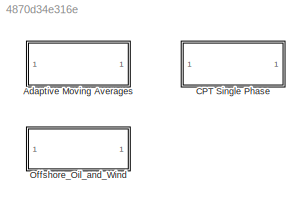
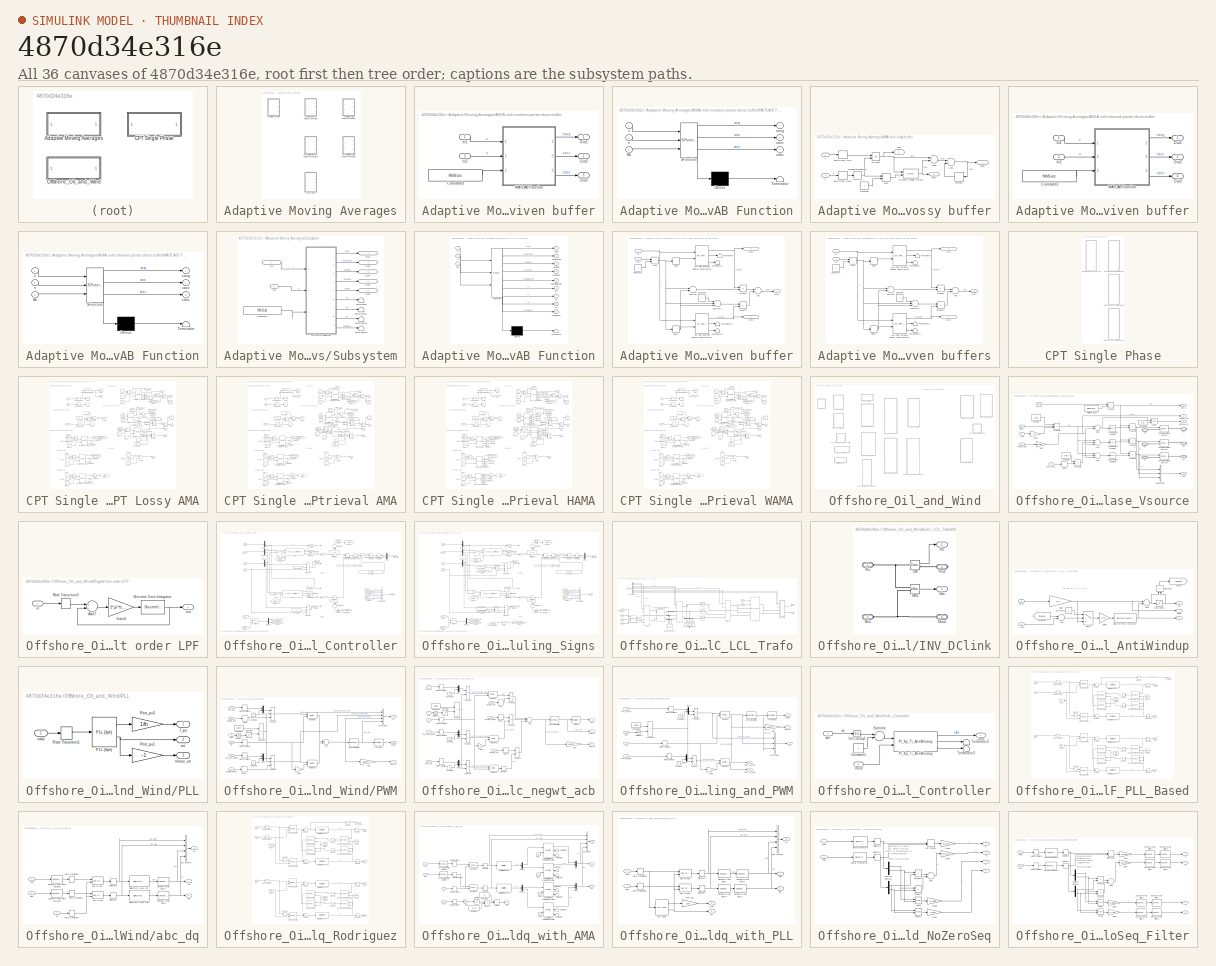
[diagram: thumbnail index - all 36 canvases of the model, root first then tree order]
MODEL slx_4870d34e316e
KIND library
CONFIG AbsTol = auto
CONFIG EnableMultiTasking = off
CONFIG FixedStep = auto
CONFIG MaxStep = auto
CONFIG MinStep = auto
CONFIG RelTol = 1e-3
CONFIG SampleTimeConstraint = Unconstrained
CONFIG Solver = VariableStepAuto
CONFIG SolverName = VariableStepAuto
CONFIG StartTime = 0.0
CONFIG StopTime = 10.0
BLOCK [SubSystem] Adaptive Moving Averages
  Ports = []
  RequestExecContextInheritance = off
BLOCK [SubSystem] Adaptive Moving Averages/AMA with insertion pointer driven buffer
  Ports = [2, 3]
  RequestExecContextInheritance = off
  SystemSampleTime = Ts
  TreatAsAtomicUnit = on
BLOCK [Constant] Adaptive Moving Averages/AMA with insertion pointer driven buffer/Constant3
  Value = NbSize
BLOCK [Inport] Adaptive Moving Averages/AMA with insertion pointer driven buffer/In1
  IconDisplay = Port number and signal name
BLOCK [Inport] Adaptive Moving Averages/AMA with insertion pointer driven buffer/In2
  IconDisplay = Port number and signal name
  Port = 2
BLOCK [SubSystem] Adaptive Moving Averages/AMA with insertion pointer driven buffer/MATLAB Function
  ErrorFcn = Stateflow.Translate.translate
  PermitHierarchicalResolution = ExplicitOnly
  Ports = [3, 3]
  RequestExecContextInheritance = off
  SFBlockType = MATLAB Function
  TreatAsAtomicUnit = on
BLOCK [Demux] Adaptive Moving Averages/AMA with insertion pointer driven buffer/MATLAB Function/ Demux 
  Outputs = 1
  Ports = [1, 1]
BLOCK [S-Function] Adaptive Moving Averages/AMA with insertion pointer driven buffer/MATLAB Function/ SFunction 
  EnableBusSupport = off
  FunctionName = sf_sfun
  PortCounts = [3 4]
  Ports = [3, 4]
  SFcnIsStateOwnerBlock = off
  SFunctionDeploymentMode = off
  Tag = Stateflow S-Function PhD_Library 1
BLOCK [Terminator] Adaptive Moving Averages/AMA with insertion pointer driven buffer/MATLAB Function/ Terminator 
BLOCK [Inport] Adaptive Moving Averages/AMA with insertion pointer driven buffer/MATLAB Function/Nb
  IconDisplay = Port number
  Port = 3
BLOCK [Inport] Adaptive Moving Averages/AMA with insertion pointer driven buffer/MATLAB Function/n
  IconDisplay = Port number
  Port = 2
BLOCK [Inport] Adaptive Moving Averages/AMA with insertion pointer driven buffer/MATLAB Function/x
  IconDisplay = Port number
BLOCK [Outport] Adaptive Moving Averages/AMA with insertion pointer driven buffer/MATLAB Function/xacc
  IconDisplay = Port number
  Port = 2
BLOCK [Outport] Adaptive Moving Averages/AMA with insertion pointer driven buffer/MATLAB Function/xavg
  IconDisplay = Port number
BLOCK [Outport] Adaptive Moving Averages/AMA with insertion pointer driven buffer/MATLAB Function/xdec
  IconDisplay = Port number
  Port = 3
BLOCK [Outport] Adaptive Moving Averages/AMA with insertion pointer driven buffer/Out1
  IconDisplay = Port number and signal name
BLOCK [Outport] Adaptive Moving Averages/AMA with insertion pointer driven buffer/Out2
  IconDisplay = Port number and signal name
  Port = 2
BLOCK [Outport] Adaptive Moving Averages/AMA with insertion pointer driven buffer/Out3
  IconDisplay = Port number and signal name
  Port = 3
BLOCK [SubSystem] Adaptive Moving Averages/AMA with lossy buffer
  Ports = [2, 3]
  RequestExecContextInheritance = off
  SystemSampleTime = Ts
  TreatAsAtomicUnit = on
BLOCK [Sum] Adaptive Moving Averages/AMA with lossy buffer/Add1
  InputSameDT = off
  OutDataTypeStr = Inherit: Inherit via internal rule
  Ports = [2, 1]
  SaturateOnIntegerOverflow = off
BLOCK [Sum] Adaptive Moving Averages/AMA with lossy buffer/Add4
  InputSameDT = off
  Inputs = +-
  OutDataTypeStr = Inherit: Inherit via internal rule
  Ports = [2, 1]
  SaturateOnIntegerOverflow = off
BLOCK [Constant] Adaptive Moving Averages/AMA with lossy buffer/Constant
BLOCK [Delay] Adaptive Moving Averages/AMA with lossy buffer/Delay2
  DelayLength = 1
  InitialCondition = 0
  InputPortMap = u0
  Ports = [1, 1]
  SampleTime = Ts
  UseCircularBuffer = on
BLOCK [Product] Adaptive Moving Averages/AMA with lossy buffer/Divide1
  InputSameDT = off
  Inputs = */
  OutDataTypeStr = Inherit: Inherit via internal rule
  Ports = [2, 1]
  RndMeth = Floor
  SaturateOnIntegerOverflow = off
BLOCK [MinMax] Adaptive Moving Averages/AMA with lossy buffer/Max
  Function = max
  InputSameDT = off
  Inputs = 2
  Ports = [2, 1]
  SaturateOnIntegerOverflow = off
BLOCK [Rounding] Adaptive Moving Averages/AMA with lossy buffer/Rounding Function
  Operator = round
BLOCK [Delay] Adaptive Moving Averages/AMA with lossy buffer/Variable Integer Delay2
  DelayLengthSource = Input port
  DelayLengthUpperLimit = NbSize
  InputPortMap = u0,p1
  Ports = [2, 1]
  SampleTime = Ts
  UseCircularBuffer = on
BLOCK [ZeroOrderHold] Adaptive Moving Averages/AMA with lossy buffer/Zero-Order Hold
  Commented = through
  SampleTime = Ts
BLOCK [ZeroOrderHold] Adaptive Moving Averages/AMA with lossy buffer/Zero-Order Hold1
  Commented = through
  SampleTime = Ts
BLOCK [Inport] Adaptive Moving Averages/AMA with lossy buffer/n
  IconDisplay = Port number and signal name
  Port = 2
BLOCK [Inport] Adaptive Moving Averages/AMA with lossy buffer/x
  IconDisplay = Port number and signal name
BLOCK [Outport] Adaptive Moving Averages/AMA with lossy buffer/xacc
  IconDisplay = Port number and signal name
  Port = 2
BLOCK [Outport] Adaptive Moving Averages/AMA with lossy buffer/xavg
  IconDisplay = Port number and signal name
BLOCK [Outport] Adaptive Moving Averages/AMA with lossy buffer/xdec
  IconDisplay = Port number and signal name
  Port = 3
BLOCK [SubSystem] Adaptive Moving Averages/AMA with retrieval pointer driven buffer
  Ports = [2, 3]
  RequestExecContextInheritance = off
  SystemSampleTime = Ts
  TreatAsAtomicUnit = on
BLOCK [Constant] Adaptive Moving Averages/AMA with retrieval pointer driven buffer/Constant3
  Value = NbSize
BLOCK [Inport] Adaptive Moving Averages/AMA with retrieval pointer driven buffer/In1
  IconDisplay = Port number and signal name
BLOCK [Inport] Adaptive Moving Averages/AMA with retrieval pointer driven buffer/In2
  IconDisplay = Port number and signal name
  Port = 2
BLOCK [SubSystem] Adaptive Moving Averages/AMA with retrieval pointer driven buffer/MATLAB Function
  ErrorFcn = Stateflow.Translate.translate
  PermitHierarchicalResolution = ExplicitOnly
  Ports = [3, 3]
  RequestExecContextInheritance = off
  SFBlockType = MATLAB Function
  TreatAsAtomicUnit = on
BLOCK [Demux] Adaptive Moving Averages/AMA with retrieval pointer driven buffer/MATLAB Function/ Demux 
  Outputs = 1
  Ports = [1, 1]
BLOCK [S-Function] Adaptive Moving Averages/AMA with retrieval pointer driven buffer/MATLAB Function/ SFunction 
  EnableBusSupport = off
  FunctionName = sf_sfun
  PortCounts = [3 4]
  Ports = [3, 4]
  SFcnIsStateOwnerBlock = off
  SFunctionDeploymentMode = off
  Tag = Stateflow S-Function PhD_Library 2
BLOCK [Terminator] Adaptive Moving Averages/AMA with retrieval pointer driven buffer/MATLAB Function/ Terminator 
BLOCK [Inport] Adaptive Moving Averages/AMA with retrieval pointer driven buffer/MATLAB Function/Nb
  IconDisplay = Port number
  Port = 3
BLOCK [Inport] Adaptive Moving Averages/AMA with retrieval pointer driven buffer/MATLAB Function/n
  IconDisplay = Port number
  Port = 2
BLOCK [Inport] Adaptive Moving Averages/AMA with retrieval pointer driven buffer/MATLAB Function/x
  IconDisplay = Port number
BLOCK [Outport] Adaptive Moving Averages/AMA with retrieval pointer driven buffer/MATLAB Function/xacc
  IconDisplay = Port number
  Port = 2
BLOCK [Outport] Adaptive Moving Averages/AMA with retrieval pointer driven buffer/MATLAB Function/xavg
  IconDisplay = Port number
BLOCK [Outport] Adaptive Moving Averages/AMA with retrieval pointer driven buffer/MATLAB Function/xdec
  IconDisplay = Port number
  Port = 3
BLOCK [Outport] Adaptive Moving Averages/AMA with retrieval pointer driven buffer/Out1
  IconDisplay = Port number and signal name
BLOCK [Outport] Adaptive Moving Averages/AMA with retrieval pointer driven buffer/Out2
  IconDisplay = Port number and signal name
  Port = 2
BLOCK [Outport] Adaptive Moving Averages/AMA with retrieval pointer driven buffer/Out3
  IconDisplay = Port number and signal name
  Port = 3
BLOCK [SubSystem] Adaptive Moving Averages/Subsystem
  Ports = [2, 5]
  RequestExecContextInheritance = off
  SystemSampleTime = Ts
  TreatAsAtomicUnit = on
BLOCK [Constant] Adaptive Moving Averages/Subsystem/Constant3
  Value = NbSize
BLOCK [Inport] Adaptive Moving Averages/Subsystem/In1
  IconDisplay = Port number and signal name
BLOCK [Inport] Adaptive Moving Averages/Subsystem/In2
  IconDisplay = Port number and signal name
  Port = 2
BLOCK [SubSystem] Adaptive Moving Averages/Subsystem/MATLAB Function
  ErrorFcn = Stateflow.Translate.translate
  PermitHierarchicalResolution = ExplicitOnly
  Ports = [3, 9]
  RequestExecContextInheritance = off
  SFBlockType = MATLAB Function
  TreatAsAtomicUnit = on
BLOCK [Demux] Adaptive Moving Averages/Subsystem/MATLAB Function/ Demux 
  Outputs = 1
  Ports = [1, 1]
BLOCK [S-Function] Adaptive Moving Averages/Subsystem/MATLAB Function/ SFunction 
  EnableBusSupport = off
  FunctionName = sf_sfun
  PortCounts = [3 10]
  Ports = [3, 10]
  SFcnIsStateOwnerBlock = off
  SFunctionDeploymentMode = off
  Tag = Stateflow S-Function PhD_Library 3
BLOCK [Terminator] Adaptive Moving Averages/Subsystem/MATLAB Function/ Terminator 
BLOCK [Inport] Adaptive Moving Averages/Subsystem/MATLAB Function/Nb
  IconDisplay = Port number
  Port = 3
BLOCK [Outport] Adaptive Moving Averages/Subsystem/MATLAB Function/changecnt
  IconDisplay = Port number
  Port = 9
BLOCK [Inport] Adaptive Moving Averages/Subsystem/MATLAB Function/n
  IconDisplay = Port number
  Port = 2
BLOCK [Outport] Adaptive Moving Averages/Subsystem/MATLAB Function/nc
  IconDisplay = Port number
  Port = 8
BLOCK [Outport] Adaptive Moving Averages/Subsystem/MATLAB Function/nf
  IconDisplay = Port number
  Port = 7
BLOCK [Outport] Adaptive Moving Averages/Subsystem/MATLAB Function/nr
  IconDisplay = Port number
  Port = 6
BLOCK [Inport] Adaptive Moving Averages/Subsystem/MATLAB Function/x
  IconDisplay = Port number
BLOCK [Outport] Adaptive Moving Averages/Subsystem/MATLAB Function/xavg
  IconDisplay = Port number
BLOCK [Outport] Adaptive Moving Averages/Subsystem/MATLAB Function/xavgceil
  IconDisplay = Port number
  Port = 3
BLOCK [Outport] Adaptive Moving Averages/Subsystem/MATLAB Function/xavgfloor
  IconDisplay = Port number
  Port = 4
BLOCK [Outport] Adaptive Moving Averages/Subsystem/MATLAB Function/xavground
  IconDisplay = Port number
  Port = 2
BLOCK [Outport] Adaptive Moving Averages/Subsystem/MATLAB Function/xavgweigthed
  IconDisplay = Port number
  Port = 5
BLOCK [Outport] Adaptive Moving Averages/Subsystem/Out1
  IconDisplay = Port number and signal name
BLOCK [Outport] Adaptive Moving Averages/Subsystem/Out2
  IconDisplay = Port number and signal name
  Port = 4
BLOCK [Outport] Adaptive Moving Averages/Subsystem/Out3
  IconDisplay = Port number and signal name
  Port = 2
BLOCK [Outport] Adaptive Moving Averages/Subsystem/Out4
  IconDisplay = Port number and signal name
  Port = 3
BLOCK [Outport] Adaptive Moving Averages/Subsystem/Out5
  IconDisplay = Port number and signal name
  Port = 5
BLOCK [Terminator] Adaptive Moving Averages/Subsystem/Terminator
BLOCK [Terminator] Adaptive Moving Averages/Subsystem/Terminator1
BLOCK [Terminator] Adaptive Moving Averages/Subsystem/Terminator2
BLOCK [Terminator] Adaptive Moving Averages/Subsystem/Terminator3
BLOCK [SubSystem] Adaptive Moving Averages/WAMA with insertion pointer driven buffer
  Ports = [2, 3]
  RequestExecContextInheritance = off
  SystemSampleTime = Ts
  TreatAsAtomicUnit = on
BLOCK [Reference] Adaptive Moving Averages/WAMA with insertion pointer driven buffer/AMA with insertion pointer driven buffer  REF=$bdroot/Adaptive Moving Averages/AMA with insertion pointer driven buffer
  Ports = [2, 3]
  SourceBlock = $bdroot/Adaptive Moving Averages/AMA with insertion pointer driven buffer
  SourceType = AMA with insertion pointer driven
BLOCK [Reference] Adaptive Moving Averages/WAMA with insertion pointer driven buffer/AMA with insertion pointer driven buffer1  REF=$bdroot/Adaptive Moving Averages/AMA with insertion pointer driven buffer
  Ports = [2, 3]
  SourceBlock = $bdroot/Adaptive Moving Averages/AMA with insertion pointer driven buffer
  SourceType = AMA with insertion pointer driven
BLOCK [Sum] Adaptive Moving Averages/WAMA with insertion pointer driven buffer/Add
  InputSameDT = off
  OutDataTypeStr = Inherit: Inherit via internal rule
  Ports = [2, 1]
  SaturateOnIntegerOverflow = off
BLOCK [Constant] Adaptive Moving Averages/WAMA with insertion pointer driven buffer/Constant
BLOCK [Constant] Adaptive Moving Averages/WAMA with insertion pointer driven buffer/Constant1
BLOCK [Rounding] Adaptive Moving Averages/WAMA with insertion pointer driven buffer/Floor
  Operator = ceil
BLOCK [Rounding] Adaptive Moving Averages/WAMA with insertion pointer driven buffer/Floor1
BLOCK [Inport] Adaptive Moving Averages/WAMA with insertion pointer driven buffer/In1
  IconDisplay = Port number and signal name
BLOCK [Inport] Adaptive Moving Averages/WAMA with insertion pointer driven buffer/In2
  IconDisplay = Port number and signal name
  Port = 2
BLOCK [MinMax] Adaptive Moving Averages/WAMA with insertion pointer driven buffer/Max
  Function = max
  InputSameDT = off
  Inputs = 2
  Ports = [2, 1]
  SaturateOnIntegerOverflow = off
BLOCK [Outport] Adaptive Moving Averages/WAMA with insertion pointer driven buffer/Out1
  IconDisplay = Port number and signal name
BLOCK [Outport] Adaptive Moving Averages/WAMA with insertion pointer driven buffer/Out2
  IconDisplay = Port number and signal name
  Port = 2
BLOCK [Outport] Adaptive Moving Averages/WAMA with insertion pointer driven buffer/Out3
  IconDisplay = Port number and signal name
  Port = 3
BLOCK [Product] Adaptive Moving Averages/WAMA with insertion pointer driven buffer/Product
  InputSameDT = off
  OutDataTypeStr = Inherit: Inherit via internal rule
  Ports = [2, 1]
  RndMeth = Floor
  SaturateOnIntegerOverflow = off
BLOCK [Product] Adaptive Moving Averages/WAMA with insertion pointer driven buffer/Product1
  InputSameDT = off
  OutDataTypeStr = Inherit: Inherit via internal rule
  Ports = [2, 1]
  RndMeth = Floor
  SaturateOnIntegerOverflow = off
BLOCK [Sum] Adaptive Moving Averages/WAMA with insertion pointer driven buffer/Subtract
  InputSameDT = off
  Inputs = +-
  OutDataTypeStr = Inherit: Inherit via internal rule
  Ports = [2, 1]
  SaturateOnIntegerOverflow = off
BLOCK [Sum] Adaptive Moving Averages/WAMA with insertion pointer driven buffer/Subtract1
  InputSameDT = off
  Inputs = +-+
  OutDataTypeStr = Inherit: Inherit via internal rule
  Ports = [3, 1]
  SaturateOnIntegerOverflow = off
BLOCK [Terminator] Adaptive Moving Averages/WAMA with insertion pointer driven buffer/Terminator
BLOCK [Terminator] Adaptive Moving Averages/WAMA with insertion pointer driven buffer/Terminator1
BLOCK [Terminator] Adaptive Moving Averages/WAMA with insertion pointer driven buffer/Terminator2
BLOCK [Terminator] Adaptive Moving Averages/WAMA with insertion pointer driven buffer/Terminator3
BLOCK [SubSystem] Adaptive Moving Averages/WAMA with retrieval pointer driven buffers
  Ports = [2, 3]
  RequestExecContextInheritance = off
  SystemSampleTime = Ts
  TreatAsAtomicUnit = on
BLOCK [Reference] Adaptive Moving Averages/WAMA with retrieval pointer driven buffers/AMA with retrieval pointer driven buffer  REF=$bdroot/Adaptive Moving Averages/AMA with retrieval pointer driven buffer
  Ports = [2, 3]
  SourceBlock = $bdroot/Adaptive Moving Averages/AMA with retrieval pointer driven buffer
  SourceType = AMA with retrieval pointer driven buffer
BLOCK [Reference] Adaptive Moving Averages/WAMA with retrieval pointer driven buffers/AMA with retrieval pointer driven buffer1  REF=$bdroot/Adaptive Moving Averages/AMA with retrieval pointer driven buffer
  Ports = [2, 3]
  SourceBlock = $bdroot/Adaptive Moving Averages/AMA with retrieval pointer driven buffer
  SourceType = AMA with retrieval pointer driven buffer
BLOCK [Sum] Adaptive Moving Averages/WAMA with retrieval pointer driven buffers/Add
  InputSameDT = off
  OutDataTypeStr = Inherit: Inherit via internal rule
  Ports = [2, 1]
  SaturateOnIntegerOverflow = off
BLOCK [Constant] Adaptive Moving Averages/WAMA with retrieval pointer driven buffers/Constant
BLOCK [Constant] Adaptive Moving Averages/WAMA with retrieval pointer driven buffers/Constant1
BLOCK [Rounding] Adaptive Moving Averages/WAMA with retrieval pointer driven buffers/Floor
  Operator = ceil
BLOCK [Rounding] Adaptive Moving Averages/WAMA with retrieval pointer driven buffers/Floor1
BLOCK [Inport] Adaptive Moving Averages/WAMA with retrieval pointer driven buffers/In1
  IconDisplay = Port number and signal name
BLOCK [Inport] Adaptive Moving Averages/WAMA with retrieval pointer driven buffers/In2
  IconDisplay = Port number and signal name
  Port = 2
BLOCK [MinMax] Adaptive Moving Averages/WAMA with retrieval pointer driven buffers/Max
  Function = max
  InputSameDT = off
  Inputs = 2
  Ports = [2, 1]
  SaturateOnIntegerOverflow = off
BLOCK [Outport] Adaptive Moving Averages/WAMA with retrieval pointer driven buffers/Out1
  IconDisplay = Port number and signal name
BLOCK [Outport] Adaptive Moving Averages/WAMA with retrieval pointer driven buffers/Out2
  IconDisplay = Port number and signal name
  Port = 2
BLOCK [Outport] Adaptive Moving Averages/WAMA with retrieval pointer driven buffers/Out3
  IconDisplay = Port number and signal name
  Port = 3
BLOCK [Product] Adaptive Moving Averages/WAMA with retrieval pointer driven buffers/Product
  InputSameDT = off
  OutDataTypeStr = Inherit: Inherit via internal rule
  Ports = [2, 1]
  RndMeth = Floor
  SaturateOnIntegerOverflow = off
BLOCK [Product] Adaptive Moving Averages/WAMA with retrieval pointer driven buffers/Product1
  InputSameDT = off
  OutDataTypeStr = Inherit: Inherit via internal rule
  Ports = [2, 1]
  RndMeth = Floor
  SaturateOnIntegerOverflow = off
BLOCK [Sum] Adaptive Moving Averages/WAMA with retrieval pointer driven buffers/Subtract
  InputSameDT = off
  Inputs = +-
  OutDataTypeStr = Inherit: Inherit via internal rule
  Ports = [2, 1]
  SaturateOnIntegerOverflow = off
BLOCK [Sum] Adaptive Moving Averages/WAMA with retrieval pointer driven buffers/Subtract1
  InputSameDT = off
  Inputs = +-+
  OutDataTypeStr = Inherit: Inherit via internal rule
  Ports = [3, 1]
  SaturateOnIntegerOverflow = off
BLOCK [Terminator] Adaptive Moving Averages/WAMA with retrieval pointer driven buffers/Terminator
BLOCK [Terminator] Adaptive Moving Averages/WAMA with retrieval pointer driven buffers/Terminator1
BLOCK [Terminator] Adaptive Moving Averages/WAMA with retrieval pointer driven buffers/Terminator2
BLOCK [Terminator] Adaptive Moving Averages/WAMA with retrieval pointer driven buffers/Terminator3
BLOCK [SubSystem] CPT Single Phase
  Ports = []
  RequestExecContextInheritance = off
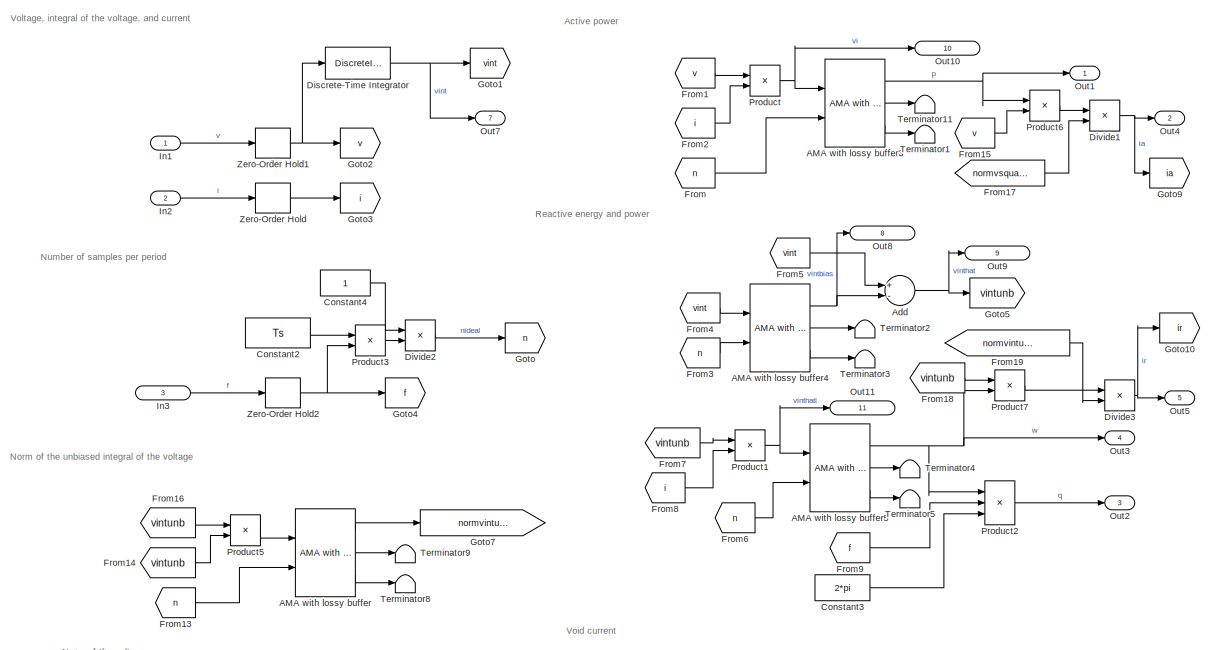
[diagram: CPT Single Phase/Single phase CPT Lossy AMA - part 1/2, full width, middle band]
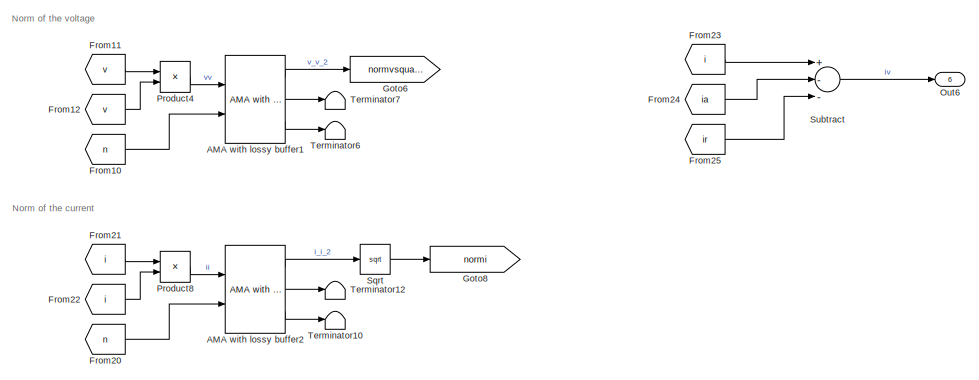
[diagram: CPT Single Phase/Single phase CPT Lossy AMA - part 2/2, full width, bottom band]
BLOCK [SubSystem] CPT Single Phase/Single phase CPT Lossy AMA
  Ports = [3, 11]
  RequestExecContextInheritance = off
  SystemSampleTime = Ts
  TreatAsAtomicUnit = on
BLOCK [Reference] CPT Single Phase/Single phase CPT Lossy AMA/AMA with lossy buffer  REF=$bdroot/Adaptive Moving Averages/AMA with lossy buffer
  Ports = [2, 3]
  SourceBlock = $bdroot/Adaptive Moving Averages/AMA with lossy buffer
  SourceType = AMA with a skipping circular buffer.
BLOCK [Reference] CPT Single Phase/Single phase CPT Lossy AMA/AMA with lossy buffer1  REF=$bdroot/Adaptive Moving Averages/AMA with lossy buffer
  Ports = [2, 3]
  SourceBlock = $bdroot/Adaptive Moving Averages/AMA with lossy buffer
  SourceType = AMA with a skipping circular buffer.
BLOCK [Reference] CPT Single Phase/Single phase CPT Lossy AMA/AMA with lossy buffer2  REF=$bdroot/Adaptive Moving Averages/AMA with lossy buffer
  Commented = on
  Ports = [2, 3]
  SourceBlock = $bdroot/Adaptive Moving Averages/AMA with lossy buffer
  SourceType = AMA with a skipping circular buffer.
BLOCK [Reference] CPT Single Phase/Single phase CPT Lossy AMA/AMA with lossy buffer3  REF=$bdroot/Adaptive Moving Averages/AMA with lossy buffer
  Ports = [2, 3]
  SourceBlock = $bdroot/Adaptive Moving Averages/AMA with lossy buffer
  SourceType = AMA with a skipping circular buffer.
BLOCK [Reference] CPT Single Phase/Single phase CPT Lossy AMA/AMA with lossy buffer4  REF=$bdroot/Adaptive Moving Averages/AMA with lossy buffer
  Ports = [2, 3]
  SourceBlock = $bdroot/Adaptive Moving Averages/AMA with lossy buffer
  SourceType = AMA with a skipping circular buffer.
BLOCK [Reference] CPT Single Phase/Single phase CPT Lossy AMA/AMA with lossy buffer5  REF=$bdroot/Adaptive Moving Averages/AMA with lossy buffer
  Ports = [2, 3]
  SourceBlock = $bdroot/Adaptive Moving Averages/AMA with lossy buffer
  SourceType = AMA with a skipping circular buffer.
BLOCK [Sum] CPT Single Phase/Single phase CPT Lossy AMA/Add
  InputSameDT = off
  Inputs = +-
  OutDataTypeStr = Inherit: Inherit via internal rule
  Ports = [2, 1]
  SaturateOnIntegerOverflow = off
BLOCK [Constant] CPT Single Phase/Single phase CPT Lossy AMA/Constant2
  Value = Ts
BLOCK [Constant] CPT Single Phase/Single phase CPT Lossy AMA/Constant3
  Value = 2*pi
BLOCK [Constant] CPT Single Phase/Single phase CPT Lossy AMA/Constant4
BLOCK [DiscreteIntegrator] CPT Single Phase/Single phase CPT Lossy AMA/Discrete-Time Integrator
  ICPrevOutput = DiscIntNeverNeededParam
  ICPrevScaledInput = DiscIntNeverNeededParam
  InitialConditionSetting = Auto
  IntegratorMethod = Integration: Trapezoidal
  Ports = [1, 1]
  SampleTime = Ts
BLOCK [Product] CPT Single Phase/Single phase CPT Lossy AMA/Divide1
  InputSameDT = off
  Inputs = */
  OutDataTypeStr = Inherit: Inherit via internal rule
  Ports = [2, 1]
  RndMeth = Floor
  SaturateOnIntegerOverflow = off
BLOCK [Product] CPT Single Phase/Single phase CPT Lossy AMA/Divide2
  InputSameDT = off
  Inputs = */
  OutDataTypeStr = Inherit: Inherit via internal rule
  Ports = [2, 1]
  RndMeth = Floor
  SaturateOnIntegerOverflow = off
BLOCK [Product] CPT Single Phase/Single phase CPT Lossy AMA/Divide3
  InputSameDT = off
  Inputs = */
  OutDataTypeStr = Inherit: Inherit via internal rule
  Ports = [2, 1]
  RndMeth = Floor
  SaturateOnIntegerOverflow = off
BLOCK [From] CPT Single Phase/Single phase CPT Lossy AMA/From
  GotoTag = n
BLOCK [From] CPT Single Phase/Single phase CPT Lossy AMA/From1
  GotoTag = v
BLOCK [From] CPT Single Phase/Single phase CPT Lossy AMA/From10
  GotoTag = n
BLOCK [From] CPT Single Phase/Single phase CPT Lossy AMA/From11
  GotoTag = v
BLOCK [From] CPT Single Phase/Single phase CPT Lossy AMA/From12
  GotoTag = v
BLOCK [From] CPT Single Phase/Single phase CPT Lossy AMA/From13
  GotoTag = n
BLOCK [From] CPT Single Phase/Single phase CPT Lossy AMA/From14
  GotoTag = vintunb
BLOCK [From] CPT Single Phase/Single phase CPT Lossy AMA/From15
  GotoTag = v
BLOCK [From] CPT Single Phase/Single phase CPT Lossy AMA/From16
  GotoTag = vintunb
BLOCK [From] CPT Single Phase/Single phase CPT Lossy AMA/From17
  GotoTag = normvsquared
BLOCK [From] CPT Single Phase/Single phase CPT Lossy AMA/From18
  GotoTag = vintunb
BLOCK [From] CPT Single Phase/Single phase CPT Lossy AMA/From19
  GotoTag = normvintunbsquared
BLOCK [From] CPT Single Phase/Single phase CPT Lossy AMA/From2
  GotoTag = i
BLOCK [From] CPT Single Phase/Single phase CPT Lossy AMA/From20
  Commented = on
  GotoTag = n
BLOCK [From] CPT Single Phase/Single phase CPT Lossy AMA/From21
  Commented = on
  GotoTag = i
BLOCK [From] CPT Single Phase/Single phase CPT Lossy AMA/From22
  Commented = on
  GotoTag = i
BLOCK [From] CPT Single Phase/Single phase CPT Lossy AMA/From23
  GotoTag = i
BLOCK [From] CPT Single Phase/Single phase CPT Lossy AMA/From24
  GotoTag = ia
BLOCK [From] CPT Single Phase/Single phase CPT Lossy AMA/From25
  GotoTag = ir
BLOCK [From] CPT Single Phase/Single phase CPT Lossy AMA/From3
  GotoTag = n
BLOCK [From] CPT Single Phase/Single phase CPT Lossy AMA/From4
  GotoTag = vint
BLOCK [From] CPT Single Phase/Single phase CPT Lossy AMA/From5
  GotoTag = vint
BLOCK [From] CPT Single Phase/Single phase CPT Lossy AMA/From6
  GotoTag = n
BLOCK [From] CPT Single Phase/Single phase CPT Lossy AMA/From7
  GotoTag = vintunb
BLOCK [From] CPT Single Phase/Single phase CPT Lossy AMA/From8
  GotoTag = i
BLOCK [From] CPT Single Phase/Single phase CPT Lossy AMA/From9
  GotoTag = f
BLOCK [Goto] CPT Single Phase/Single phase CPT Lossy AMA/Goto
  GotoTag = n
BLOCK [Goto] CPT Single Phase/Single phase CPT Lossy AMA/Goto1
  GotoTag = vint
BLOCK [Goto] CPT Single Phase/Single phase CPT Lossy AMA/Goto10
  GotoTag = ir
BLOCK [Goto] CPT Single Phase/Single phase CPT Lossy AMA/Goto2
  GotoTag = v
BLOCK [Goto] CPT Single Phase/Single phase CPT Lossy AMA/Goto3
  GotoTag = i
BLOCK [Goto] CPT Single Phase/Single phase CPT Lossy AMA/Goto4
  GotoTag = f
BLOCK [Goto] CPT Single Phase/Single phase CPT Lossy AMA/Goto5
  GotoTag = vintunb
BLOCK [Goto] CPT Single Phase/Single phase CPT Lossy AMA/Goto6
  GotoTag = normvsquared
BLOCK [Goto] CPT Single Phase/Single phase CPT Lossy AMA/Goto7
  GotoTag = normvintunbsquared
BLOCK [Goto] CPT Single Phase/Single phase CPT Lossy AMA/Goto8
  Commented = on
  GotoTag = normi
BLOCK [Goto] CPT Single Phase/Single phase CPT Lossy AMA/Goto9
  GotoTag = ia
BLOCK [Inport] CPT Single Phase/Single phase CPT Lossy AMA/In1
  IconDisplay = Port number and signal name
BLOCK [Inport] CPT Single Phase/Single phase CPT Lossy AMA/In2
  IconDisplay = Port number and signal name
  Port = 2
BLOCK [Inport] CPT Single Phase/Single phase CPT Lossy AMA/In3
  IconDisplay = Port number and signal name
  Port = 3
BLOCK [Outport] CPT Single Phase/Single phase CPT Lossy AMA/Out1
  IconDisplay = Port number and signal name
BLOCK [Outport] CPT Single Phase/Single phase CPT Lossy AMA/Out10
  IconDisplay = Port number and signal name
  Port = 10
BLOCK [Outport] CPT Single Phase/Single phase CPT Lossy AMA/Out11
  IconDisplay = Port number and signal name
  Port = 11
BLOCK [Outport] CPT Single Phase/Single phase CPT Lossy AMA/Out2
  IconDisplay = Port number and signal name
  Port = 3
BLOCK [Outport] CPT Single Phase/Single phase CPT Lossy AMA/Out3
  IconDisplay = Port number and signal name
  Port = 4
BLOCK [Outport] CPT Single Phase/Single phase CPT Lossy AMA/Out4
  IconDisplay = Port number and signal name
  Port = 2
BLOCK [Outport] CPT Single Phase/Single phase CPT Lossy AMA/Out5
  IconDisplay = Port number and signal name
  Port = 5
BLOCK [Outport] CPT Single Phase/Single phase CPT Lossy AMA/Out6
  IconDisplay = Port number and signal name
  Port = 6
BLOCK [Outport] CPT Single Phase/Single phase CPT Lossy AMA/Out7
  IconDisplay = Port number and signal name
  Port = 7
BLOCK [Outport] CPT Single Phase/Single phase CPT Lossy AMA/Out8
  IconDisplay = Port number and signal name
  Port = 8
BLOCK [Outport] CPT Single Phase/Single phase CPT Lossy AMA/Out9
  IconDisplay = Port number and signal name
  Port = 9
BLOCK [Product] CPT Single Phase/Single phase CPT Lossy AMA/Product
  InputSameDT = off
  OutDataTypeStr = Inherit: Inherit via internal rule
  Ports = [2, 1]
  RndMeth = Floor
  SaturateOnIntegerOverflow = off
BLOCK [Product] CPT Single Phase/Single phase CPT Lossy AMA/Product1
  InputSameDT = off
  OutDataTypeStr = Inherit: Inherit via internal rule
  Ports = [2, 1]
  RndMeth = Floor
  SaturateOnIntegerOverflow = off
BLOCK [Product] CPT Single Phase/Single phase CPT Lossy AMA/Product2
  InputSameDT = off
  Inputs = 3
  OutDataTypeStr = Inherit: Inherit via internal rule
  Ports = [3, 1]
  RndMeth = Floor
  SaturateOnIntegerOverflow = off
BLOCK [Product] CPT Single Phase/Single phase CPT Lossy AMA/Product3
  InputSameDT = off
  OutDataTypeStr = Inherit: Inherit via internal rule
  Ports = [2, 1]
  RndMeth = Floor
  SaturateOnIntegerOverflow = off
BLOCK [Product] CPT Single Phase/Single phase CPT Lossy AMA/Product4
  InputSameDT = off
  OutDataTypeStr = Inherit: Inherit via internal rule
  Ports = [2, 1]
  RndMeth = Floor
  SaturateOnIntegerOverflow = off
BLOCK [Product] CPT Single Phase/Single phase CPT Lossy AMA/Product5
  InputSameDT = off
  OutDataTypeStr = Inherit: Inherit via internal rule
  Ports = [2, 1]
  RndMeth = Floor
  SaturateOnIntegerOverflow = off
BLOCK [Product] CPT Single Phase/Single phase CPT Lossy AMA/Product6
  InputSameDT = off
  OutDataTypeStr = Inherit: Inherit via internal rule
  Ports = [2, 1]
  RndMeth = Floor
  SaturateOnIntegerOverflow = off
BLOCK [Product] CPT Single Phase/Single phase CPT Lossy AMA/Product7
  InputSameDT = off
  OutDataTypeStr = Inherit: Inherit via internal rule
  Ports = [2, 1]
  RndMeth = Floor
  SaturateOnIntegerOverflow = off
BLOCK [Product] CPT Single Phase/Single phase CPT Lossy AMA/Product8
  Commented = on
  InputSameDT = off
  OutDataTypeStr = Inherit: Inherit via internal rule
  Ports = [2, 1]
  RndMeth = Floor
  SaturateOnIntegerOverflow = off
BLOCK [Sqrt] CPT Single Phase/Single phase CPT Lossy AMA/Sqrt
  Commented = on
BLOCK [Sum] CPT Single Phase/Single phase CPT Lossy AMA/Subtract
  InputSameDT = off
  Inputs = +--
  OutDataTypeStr = Inherit: Inherit via internal rule
  Ports = [3, 1]
  SaturateOnIntegerOverflow = off
BLOCK [Terminator] CPT Single Phase/Single phase CPT Lossy AMA/Terminator1
BLOCK [Terminator] CPT Single Phase/Single phase CPT Lossy AMA/Terminator10
  Commented = on
BLOCK [Terminator] CPT Single Phase/Single phase CPT Lossy AMA/Terminator11
BLOCK [Terminator] CPT Single Phase/Single phase CPT Lossy AMA/Terminator12
  Commented = on
BLOCK [Terminator] CPT Single Phase/Single phase CPT Lossy AMA/Terminator2
BLOCK [Terminator] CPT Single Phase/Single phase CPT Lossy AMA/Terminator3
BLOCK [Terminator] CPT Single Phase/Single phase CPT Lossy AMA/Terminator4
BLOCK [Terminator] CPT Single Phase/Single phase CPT Lossy AMA/Terminator5
BLOCK [Terminator] CPT Single Phase/Single phase CPT Lossy AMA/Terminator6
BLOCK [Terminator] CPT Single Phase/Single phase CPT Lossy AMA/Terminator7
BLOCK [Terminator] CPT Single Phase/Single phase CPT Lossy AMA/Terminator8
BLOCK [Terminator] CPT Single Phase/Single phase CPT Lossy AMA/Terminator9
BLOCK [ZeroOrderHold] CPT Single Phase/Single phase CPT Lossy AMA/Zero-Order Hold
  SampleTime = Ts
BLOCK [ZeroOrderHold] CPT Single Phase/Single phase CPT Lossy AMA/Zero-Order Hold1
  SampleTime = Ts
BLOCK [ZeroOrderHold] CPT Single Phase/Single phase CPT Lossy AMA/Zero-Order Hold2
  SampleTime = Ts
BLOCK [SubSystem] CPT Single Phase/Single phase CPT Retrieval AMA
  Ports = [3, 11]
  RequestExecContextInheritance = off
  SystemSampleTime = Ts
  TreatAsAtomicUnit = on
BLOCK [Reference] CPT Single Phase/Single phase CPT Retrieval AMA/AMA with retrieval pointer driven buffer  REF=$bdroot/Adaptive Moving Averages/AMA with retrieval pointer driven buffer
  Ports = [2, 3]
  SourceBlock = $bdroot/Adaptive Moving Averages/AMA with retrieval pointer driven buffer
  SourceType = AMA with retrieval pointer driven buffer
BLOCK [Reference] CPT Single Phase/Single phase CPT Retrieval AMA/AMA with retrieval pointer driven buffer1  REF=$bdroot/Adaptive Moving Averages/AMA with retrieval pointer driven buffer
  Ports = [2, 3]
  SourceBlock = $bdroot/Adaptive Moving Averages/AMA with retrieval pointer driven buffer
  SourceType = AMA with retrieval pointer driven buffer
BLOCK [Reference] CPT Single Phase/Single phase CPT Retrieval AMA/AMA with retrieval pointer driven buffer2  REF=$bdroot/Adaptive Moving Averages/AMA with retrieval pointer driven buffer
  Ports = [2, 3]
  SourceBlock = $bdroot/Adaptive Moving Averages/AMA with retrieval pointer driven buffer
  SourceType = AMA with retrieval pointer driven buffer
BLOCK [Reference] CPT Single Phase/Single phase CPT Retrieval AMA/AMA with retrieval pointer driven buffer3  REF=$bdroot/Adaptive Moving Averages/AMA with retrieval pointer driven buffer
  Ports = [2, 3]
  SourceBlock = $bdroot/Adaptive Moving Averages/AMA with retrieval pointer driven buffer
  SourceType = AMA with retrieval pointer driven buffer
BLOCK [Reference] CPT Single Phase/Single phase CPT Retrieval AMA/AMA with retrieval pointer driven buffer4  REF=$bdroot/Adaptive Moving Averages/AMA with retrieval pointer driven buffer
  Ports = [2, 3]
  SourceBlock = $bdroot/Adaptive Moving Averages/AMA with retrieval pointer driven buffer
  SourceType = AMA with retrieval pointer driven buffer
BLOCK [Reference] CPT Single Phase/Single phase CPT Retrieval AMA/AMA with retrieval pointer driven buffer5  REF=$bdroot/Adaptive Moving Averages/AMA with retrieval pointer driven buffer
  Commented = on
  Ports = [2, 3]
  SourceBlock = $bdroot/Adaptive Moving Averages/AMA with retrieval pointer driven buffer
  SourceType = AMA with retrieval pointer driven buffer
BLOCK [Sum] CPT Single Phase/Single phase CPT Retrieval AMA/Add
  InputSameDT = off
  Inputs = +-
  OutDataTypeStr = Inherit: Inherit via internal rule
  Ports = [2, 1]
  SaturateOnIntegerOverflow = off
BLOCK [Constant] CPT Single Phase/Single phase CPT Retrieval AMA/Constant2
  Value = Ts
BLOCK [Constant] CPT Single Phase/Single phase CPT Retrieval AMA/Constant3
  Value = 2*pi
BLOCK [Constant] CPT Single Phase/Single phase CPT Retrieval AMA/Constant4
BLOCK [DiscreteIntegrator] CPT Single Phase/Single phase CPT Retrieval AMA/Discrete-Time Integrator
  ICPrevOutput = DiscIntNeverNeededParam
  ICPrevScaledInput = DiscIntNeverNeededParam
  InitialConditionSetting = Auto
  IntegratorMethod = Integration: Trapezoidal
  Ports = [1, 1]
  SampleTime = Ts
BLOCK [Product] CPT Single Phase/Single phase CPT Retrieval AMA/Divide1
  InputSameDT = off
  Inputs = */
  OutDataTypeStr = Inherit: Inherit via internal rule
  Ports = [2, 1]
  RndMeth = Floor
  SaturateOnIntegerOverflow = off
BLOCK [Product] CPT Single Phase/Single phase CPT Retrieval AMA/Divide2
  InputSameDT = off
  Inputs = */
  OutDataTypeStr = Inherit: Inherit via internal rule
  Ports = [2, 1]
  RndMeth = Floor
  SaturateOnIntegerOverflow = off
BLOCK [Product] CPT Single Phase/Single phase CPT Retrieval AMA/Divide3
  InputSameDT = off
  Inputs = */
  OutDataTypeStr = Inherit: Inherit via internal rule
  Ports = [2, 1]
  RndMeth = Floor
  SaturateOnIntegerOverflow = off
BLOCK [From] CPT Single Phase/Single phase CPT Retrieval AMA/From
  GotoTag = n
BLOCK [From] CPT Single Phase/Single phase CPT Retrieval AMA/From1
  GotoTag = v
BLOCK [From] CPT Single Phase/Single phase CPT Retrieval AMA/From10
  GotoTag = n
BLOCK [From] CPT Single Phase/Single phase CPT Retrieval AMA/From11
  GotoTag = v
BLOCK [From] CPT Single Phase/Single phase CPT Retrieval AMA/From12
  GotoTag = v
BLOCK [From] CPT Single Phase/Single phase CPT Retrieval AMA/From13
  GotoTag = n
BLOCK [From] CPT Single Phase/Single phase CPT Retrieval AMA/From14
  GotoTag = vintunb
BLOCK [From] CPT Single Phase/Single phase CPT Retrieval AMA/From15
  GotoTag = v
BLOCK [From] CPT Single Phase/Single phase CPT Retrieval AMA/From16
  GotoTag = vintunb
BLOCK [From] CPT Single Phase/Single phase CPT Retrieval AMA/From17
  GotoTag = normvsquared
BLOCK [From] CPT Single Phase/Single phase CPT Retrieval AMA/From18
  GotoTag = vintunb
BLOCK [From] CPT Single Phase/Single phase CPT Retrieval AMA/From19
  GotoTag = normvintunbsquared
BLOCK [From] CPT Single Phase/Single phase CPT Retrieval AMA/From2
  GotoTag = i
BLOCK [From] CPT Single Phase/Single phase CPT Retrieval AMA/From20
  Commented = on
  GotoTag = n
BLOCK [From] CPT Single Phase/Single phase CPT Retrieval AMA/From21
  Commented = on
  GotoTag = i
BLOCK [From] CPT Single Phase/Single phase CPT Retrieval AMA/From22
  Commented = on
  GotoTag = i
BLOCK [From] CPT Single Phase/Single phase CPT Retrieval AMA/From23
  GotoTag = i
BLOCK [From] CPT Single Phase/Single phase CPT Retrieval AMA/From24
  GotoTag = ia
BLOCK [From] CPT Single Phase/Single phase CPT Retrieval AMA/From25
  GotoTag = ir
BLOCK [From] CPT Single Phase/Single phase CPT Retrieval AMA/From3
  GotoTag = n
BLOCK [From] CPT Single Phase/Single phase CPT Retrieval AMA/From4
  GotoTag = vint
BLOCK [From] CPT Single Phase/Single phase CPT Retrieval AMA/From5
  GotoTag = vint
BLOCK [From] CPT Single Phase/Single phase CPT Retrieval AMA/From6
  GotoTag = n
BLOCK [From] CPT Single Phase/Single phase CPT Retrieval AMA/From7
  GotoTag = vintunb
BLOCK [From] CPT Single Phase/Single phase CPT Retrieval AMA/From8
  GotoTag = i
BLOCK [From] CPT Single Phase/Single phase CPT Retrieval AMA/From9
  GotoTag = f
BLOCK [Goto] CPT Single Phase/Single phase CPT Retrieval AMA/Goto
  GotoTag = n
BLOCK [Goto] CPT Single Phase/Single phase CPT Retrieval AMA/Goto1
  GotoTag = vint
BLOCK [Goto] CPT Single Phase/Single phase CPT Retrieval AMA/Goto10
  GotoTag = ir
BLOCK [Goto] CPT Single Phase/Single phase CPT Retrieval AMA/Goto2
  GotoTag = v
BLOCK [Goto] CPT Single Phase/Single phase CPT Retrieval AMA/Goto3
  GotoTag = i
BLOCK [Goto] CPT Single Phase/Single phase CPT Retrieval AMA/Goto4
  GotoTag = f
BLOCK [Goto] CPT Single Phase/Single phase CPT Retrieval AMA/Goto5
  GotoTag = vintunb
BLOCK [Goto] CPT Single Phase/Single phase CPT Retrieval AMA/Goto6
  GotoTag = normvsquared
BLOCK [Goto] CPT Single Phase/Single phase CPT Retrieval AMA/Goto7
  GotoTag = normvintunbsquared
BLOCK [Goto] CPT Single Phase/Single phase CPT Retrieval AMA/Goto8
  Commented = on
  GotoTag = normi
BLOCK [Goto] CPT Single Phase/Single phase CPT Retrieval AMA/Goto9
  GotoTag = ia
BLOCK [Inport] CPT Single Phase/Single phase CPT Retrieval AMA/In1
  IconDisplay = Port number and signal name
BLOCK [Inport] CPT Single Phase/Single phase CPT Retrieval AMA/In2
  IconDisplay = Port number and signal name
  Port = 2
BLOCK [Inport] CPT Single Phase/Single phase CPT Retrieval AMA/In3
  IconDisplay = Port number and signal name
  Port = 3
BLOCK [Outport] CPT Single Phase/Single phase CPT Retrieval AMA/Out1
  IconDisplay = Port number and signal name
BLOCK [Outport] CPT Single Phase/Single phase CPT Retrieval AMA/Out10
  IconDisplay = Port number and signal name
  Port = 10
BLOCK [Outport] CPT Single Phase/Single phase CPT Retrieval AMA/Out11
  IconDisplay = Port number and signal name
  Port = 11
BLOCK [Outport] CPT Single Phase/Single phase CPT Retrieval AMA/Out2
  IconDisplay = Port number and signal name
  Port = 3
BLOCK [Outport] CPT Single Phase/Single phase CPT Retrieval AMA/Out3
  IconDisplay = Port number and signal name
  Port = 4
BLOCK [Outport] CPT Single Phase/Single phase CPT Retrieval AMA/Out4
  IconDisplay = Port number and signal name
  Port = 2
BLOCK [Outport] CPT Single Phase/Single phase CPT Retrieval AMA/Out5
  IconDisplay = Port number and signal name
  Port = 5
BLOCK [Outport] CPT Single Phase/Single phase CPT Retrieval AMA/Out6
  IconDisplay = Port number and signal name
  Port = 6
BLOCK [Outport] CPT Single Phase/Single phase CPT Retrieval AMA/Out7
  IconDisplay = Port number and signal name
  Port = 7
BLOCK [Outport] CPT Single Phase/Single phase CPT Retrieval AMA/Out8
  IconDisplay = Port number and signal name
  Port = 8
BLOCK [Outport] CPT Single Phase/Single phase CPT Retrieval AMA/Out9
  IconDisplay = Port number and signal name
  Port = 9
BLOCK [Product] CPT Single Phase/Single phase CPT Retrieval AMA/Product
  InputSameDT = off
  OutDataTypeStr = Inherit: Inherit via internal rule
  Ports = [2, 1]
  RndMeth = Floor
  SaturateOnIntegerOverflow = off
BLOCK [Product] CPT Single Phase/Single phase CPT Retrieval AMA/Product1
  InputSameDT = off
  OutDataTypeStr = Inherit: Inherit via internal rule
  Ports = [2, 1]
  RndMeth = Floor
  SaturateOnIntegerOverflow = off
BLOCK [Product] CPT Single Phase/Single phase CPT Retrieval AMA/Product2
  InputSameDT = off
  Inputs = 3
  OutDataTypeStr = Inherit: Inherit via internal rule
  Ports = [3, 1]
  RndMeth = Floor
  SaturateOnIntegerOverflow = off
BLOCK [Product] CPT Single Phase/Single phase CPT Retrieval AMA/Product3
  InputSameDT = off
  OutDataTypeStr = Inherit: Inherit via internal rule
  Ports = [2, 1]
  RndMeth = Floor
  SaturateOnIntegerOverflow = off
BLOCK [Product] CPT Single Phase/Single phase CPT Retrieval AMA/Product4
  InputSameDT = off
  OutDataTypeStr = Inherit: Inherit via internal rule
  Ports = [2, 1]
  RndMeth = Floor
  SaturateOnIntegerOverflow = off
BLOCK [Product] CPT Single Phase/Single phase CPT Retrieval AMA/Product5
  InputSameDT = off
  OutDataTypeStr = Inherit: Inherit via internal rule
  Ports = [2, 1]
  RndMeth = Floor
  SaturateOnIntegerOverflow = off
BLOCK [Product] CPT Single Phase/Single phase CPT Retrieval AMA/Product6
  InputSameDT = off
  OutDataTypeStr = Inherit: Inherit via internal rule
  Ports = [2, 1]
  RndMeth = Floor
  SaturateOnIntegerOverflow = off
BLOCK [Product] CPT Single Phase/Single phase CPT Retrieval AMA/Product7
  InputSameDT = off
  OutDataTypeStr = Inherit: Inherit via internal rule
  Ports = [2, 1]
  RndMeth = Floor
  SaturateOnIntegerOverflow = off
BLOCK [Product] CPT Single Phase/Single phase CPT Retrieval AMA/Product8
  Commented = on
  InputSameDT = off
  OutDataTypeStr = Inherit: Inherit via internal rule
  Ports = [2, 1]
  RndMeth = Floor
  SaturateOnIntegerOverflow = off
BLOCK [Sqrt] CPT Single Phase/Single phase CPT Retrieval AMA/Sqrt
  Commented = on
BLOCK [Sum] CPT Single Phase/Single phase CPT Retrieval AMA/Subtract
  InputSameDT = off
  Inputs = +--
  OutDataTypeStr = Inherit: Inherit via internal rule
  Ports = [3, 1]
  SaturateOnIntegerOverflow = off
BLOCK [Terminator] CPT Single Phase/Single phase CPT Retrieval AMA/Terminator1
BLOCK [Terminator] CPT Single Phase/Single phase CPT Retrieval AMA/Terminator10
  Commented = on
BLOCK [Terminator] CPT Single Phase/Single phase CPT Retrieval AMA/Terminator11
BLOCK [Terminator] CPT Single Phase/Single phase CPT Retrieval AMA/Terminator12
  Commented = on
BLOCK [Terminator] CPT Single Phase/Single phase CPT Retrieval AMA/Terminator2
BLOCK [Terminator] CPT Single Phase/Single phase CPT Retrieval AMA/Terminator3
BLOCK [Terminator] CPT Single Phase/Single phase CPT Retrieval AMA/Terminator4
BLOCK [Terminator] CPT Single Phase/Single phase CPT Retrieval AMA/Terminator5
BLOCK [Terminator] CPT Single Phase/Single phase CPT Retrieval AMA/Terminator6
BLOCK [Terminator] CPT Single Phase/Single phase CPT Retrieval AMA/Terminator7
BLOCK [Terminator] CPT Single Phase/Single phase CPT Retrieval AMA/Terminator8
BLOCK [Terminator] CPT Single Phase/Single phase CPT Retrieval AMA/Terminator9
BLOCK [ZeroOrderHold] CPT Single Phase/Single phase CPT Retrieval AMA/Zero-Order Hold
  SampleTime = Ts
BLOCK [ZeroOrderHold] CPT Single Phase/Single phase CPT Retrieval AMA/Zero-Order Hold1
  SampleTime = Ts
BLOCK [ZeroOrderHold] CPT Single Phase/Single phase CPT Retrieval AMA/Zero-Order Hold2
  SampleTime = Ts
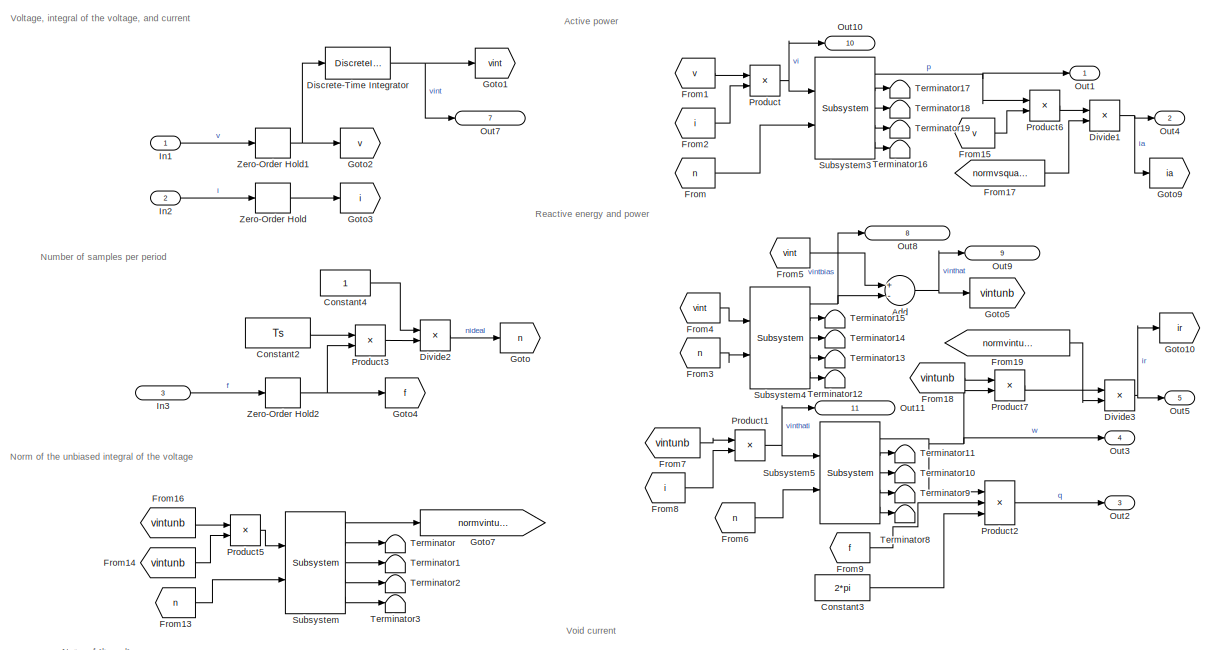
[diagram: CPT Single Phase/Single phase CPT Retrieval HAMA - part 1/2, full width, middle band]
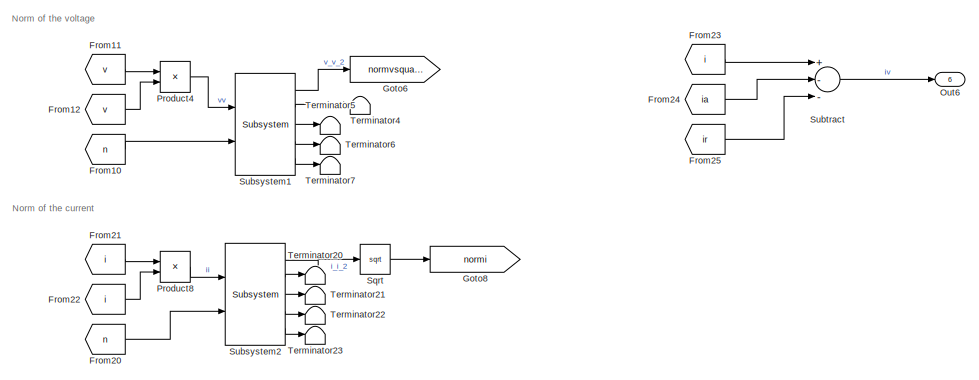
[diagram: CPT Single Phase/Single phase CPT Retrieval HAMA - part 2/2, full width, bottom band]
BLOCK [SubSystem] CPT Single Phase/Single phase CPT Retrieval HAMA
  Ports = [3, 11]
  RequestExecContextInheritance = off
  SystemSampleTime = Ts
  TreatAsAtomicUnit = on
BLOCK [Sum] CPT Single Phase/Single phase CPT Retrieval HAMA/Add
  InputSameDT = off
  Inputs = +-
  OutDataTypeStr = Inherit: Inherit via internal rule
  Ports = [2, 1]
  SaturateOnIntegerOverflow = off
BLOCK [Constant] CPT Single Phase/Single phase CPT Retrieval HAMA/Constant2
  Value = Ts
BLOCK [Constant] CPT Single Phase/Single phase CPT Retrieval HAMA/Constant3
  Value = 2*pi
BLOCK [Constant] CPT Single Phase/Single phase CPT Retrieval HAMA/Constant4
BLOCK [DiscreteIntegrator] CPT Single Phase/Single phase CPT Retrieval HAMA/Discrete-Time Integrator
  ICPrevOutput = DiscIntNeverNeededParam
  ICPrevScaledInput = DiscIntNeverNeededParam
  InitialConditionSetting = Auto
  IntegratorMethod = Integration: Trapezoidal
  Ports = [1, 1]
  SampleTime = Ts
BLOCK [Product] CPT Single Phase/Single phase CPT Retrieval HAMA/Divide1
  InputSameDT = off
  Inputs = */
  OutDataTypeStr = Inherit: Inherit via internal rule
  Ports = [2, 1]
  RndMeth = Floor
  SaturateOnIntegerOverflow = off
BLOCK [Product] CPT Single Phase/Single phase CPT Retrieval HAMA/Divide2
  InputSameDT = off
  Inputs = */
  OutDataTypeStr = Inherit: Inherit via internal rule
  Ports = [2, 1]
  RndMeth = Floor
  SaturateOnIntegerOverflow = off
BLOCK [Product] CPT Single Phase/Single phase CPT Retrieval HAMA/Divide3
  InputSameDT = off
  Inputs = */
  OutDataTypeStr = Inherit: Inherit via internal rule
  Ports = [2, 1]
  RndMeth = Floor
  SaturateOnIntegerOverflow = off
BLOCK [From] CPT Single Phase/Single phase CPT Retrieval HAMA/From
  GotoTag = n
BLOCK [From] CPT Single Phase/Single phase CPT Retrieval HAMA/From1
  GotoTag = v
BLOCK [From] CPT Single Phase/Single phase CPT Retrieval HAMA/From10
  GotoTag = n
BLOCK [From] CPT Single Phase/Single phase CPT Retrieval HAMA/From11
  GotoTag = v
BLOCK [From] CPT Single Phase/Single phase CPT Retrieval HAMA/From12
  GotoTag = v
BLOCK [From] CPT Single Phase/Single phase CPT Retrieval HAMA/From13
  GotoTag = n
BLOCK [From] CPT Single Phase/Single phase CPT Retrieval HAMA/From14
  GotoTag = vintunb
BLOCK [From] CPT Single Phase/Single phase CPT Retrieval HAMA/From15
  GotoTag = v
BLOCK [From] CPT Single Phase/Single phase CPT Retrieval HAMA/From16
  GotoTag = vintunb
BLOCK [From] CPT Single Phase/Single phase CPT Retrieval HAMA/From17
  GotoTag = normvsquared
BLOCK [From] CPT Single Phase/Single phase CPT Retrieval HAMA/From18
  GotoTag = vintunb
BLOCK [From] CPT Single Phase/Single phase CPT Retrieval HAMA/From19
  GotoTag = normvintunbsquared
BLOCK [From] CPT Single Phase/Single phase CPT Retrieval HAMA/From2
  GotoTag = i
BLOCK [From] CPT Single Phase/Single phase CPT Retrieval HAMA/From20
  Commented = on
  GotoTag = n
BLOCK [From] CPT Single Phase/Single phase CPT Retrieval HAMA/From21
  Commented = on
  GotoTag = i
BLOCK [From] CPT Single Phase/Single phase CPT Retrieval HAMA/From22
  Commented = on
  GotoTag = i
BLOCK [From] CPT Single Phase/Single phase CPT Retrieval HAMA/From23
  GotoTag = i
BLOCK [From] CPT Single Phase/Single phase CPT Retrieval HAMA/From24
  GotoTag = ia
BLOCK [From] CPT Single Phase/Single phase CPT Retrieval HAMA/From25
  GotoTag = ir
BLOCK [From] CPT Single Phase/Single phase CPT Retrieval HAMA/From3
  GotoTag = n
BLOCK [From] CPT Single Phase/Single phase CPT Retrieval HAMA/From4
  GotoTag = vint
BLOCK [From] CPT Single Phase/Single phase CPT Retrieval HAMA/From5
  GotoTag = vint
BLOCK [From] CPT Single Phase/Single phase CPT Retrieval HAMA/From6
  GotoTag = n
BLOCK [From] CPT Single Phase/Single phase CPT Retrieval HAMA/From7
  GotoTag = vintunb
BLOCK [From] CPT Single Phase/Single phase CPT Retrieval HAMA/From8
  GotoTag = i
BLOCK [From] CPT Single Phase/Single phase CPT Retrieval HAMA/From9
  GotoTag = f
BLOCK [Goto] CPT Single Phase/Single phase CPT Retrieval HAMA/Goto
  GotoTag = n
BLOCK [Goto] CPT Single Phase/Single phase CPT Retrieval HAMA/Goto1
  GotoTag = vint
BLOCK [Goto] CPT Single Phase/Single phase CPT Retrieval HAMA/Goto10
  GotoTag = ir
BLOCK [Goto] CPT Single Phase/Single phase CPT Retrieval HAMA/Goto2
  GotoTag = v
BLOCK [Goto] CPT Single Phase/Single phase CPT Retrieval HAMA/Goto3
  GotoTag = i
BLOCK [Goto] CPT Single Phase/Single phase CPT Retrieval HAMA/Goto4
  GotoTag = f
BLOCK [Goto] CPT Single Phase/Single phase CPT Retrieval HAMA/Goto5
  GotoTag = vintunb
BLOCK [Goto] CPT Single Phase/Single phase CPT Retrieval HAMA/Goto6
  GotoTag = normvsquared
BLOCK [Goto] CPT Single Phase/Single phase CPT Retrieval HAMA/Goto7
  GotoTag = normvintunbsquared
BLOCK [Goto] CPT Single Phase/Single phase CPT Retrieval HAMA/Goto8
  Commented = on
  GotoTag = normi
BLOCK [Goto] CPT Single Phase/Single phase CPT Retrieval HAMA/Goto9
  GotoTag = ia
BLOCK [Inport] CPT Single Phase/Single phase CPT Retrieval HAMA/In1
  IconDisplay = Port number and signal name
BLOCK [Inport] CPT Single Phase/Single phase CPT Retrieval HAMA/In2
  IconDisplay = Port number and signal name
  Port = 2
BLOCK [Inport] CPT Single Phase/Single phase CPT Retrieval HAMA/In3
  IconDisplay = Port number and signal name
  Port = 3
BLOCK [Outport] CPT Single Phase/Single phase CPT Retrieval HAMA/Out1
  IconDisplay = Port number and signal name
BLOCK [Outport] CPT Single Phase/Single phase CPT Retrieval HAMA/Out10
  IconDisplay = Port number and signal name
  Port = 10
BLOCK [Outport] CPT Single Phase/Single phase CPT Retrieval HAMA/Out11
  IconDisplay = Port number and signal name
  Port = 11
BLOCK [Outport] CPT Single Phase/Single phase CPT Retrieval HAMA/Out2
  IconDisplay = Port number and signal name
  Port = 3
BLOCK [Outport] CPT Single Phase/Single phase CPT Retrieval HAMA/Out3
  IconDisplay = Port number and signal name
  Port = 4
BLOCK [Outport] CPT Single Phase/Single phase CPT Retrieval HAMA/Out4
  IconDisplay = Port number and signal name
  Port = 2
BLOCK [Outport] CPT Single Phase/Single phase CPT Retrieval HAMA/Out5
  IconDisplay = Port number and signal name
  Port = 5
BLOCK [Outport] CPT Single Phase/Single phase CPT Retrieval HAMA/Out6
  IconDisplay = Port number and signal name
  Port = 6
BLOCK [Outport] CPT Single Phase/Single phase CPT Retrieval HAMA/Out7
  IconDisplay = Port number and signal name
  Port = 7
BLOCK [Outport] CPT Single Phase/Single phase CPT Retrieval HAMA/Out8
  IconDisplay = Port number and signal name
  Port = 8
BLOCK [Outport] CPT Single Phase/Single phase CPT Retrieval HAMA/Out9
  IconDisplay = Port number and signal name
  Port = 9
BLOCK [Product] CPT Single Phase/Single phase CPT Retrieval HAMA/Product
  InputSameDT = off
  OutDataTypeStr = Inherit: Inherit via internal rule
  Ports = [2, 1]
  RndMeth = Floor
  SaturateOnIntegerOverflow = off
BLOCK [Product] CPT Single Phase/Single phase CPT Retrieval HAMA/Product1
  InputSameDT = off
  OutDataTypeStr = Inherit: Inherit via internal rule
  Ports = [2, 1]
  RndMeth = Floor
  SaturateOnIntegerOverflow = off
BLOCK [Product] CPT Single Phase/Single phase CPT Retrieval HAMA/Product2
  InputSameDT = off
  Inputs = 3
  OutDataTypeStr = Inherit: Inherit via internal rule
  Ports = [3, 1]
  RndMeth = Floor
  SaturateOnIntegerOverflow = off
BLOCK [Product] CPT Single Phase/Single phase CPT Retrieval HAMA/Product3
  InputSameDT = off
  OutDataTypeStr = Inherit: Inherit via internal rule
  Ports = [2, 1]
  RndMeth = Floor
  SaturateOnIntegerOverflow = off
BLOCK [Product] CPT Single Phase/Single phase CPT Retrieval HAMA/Product4
  InputSameDT = off
  OutDataTypeStr = Inherit: Inherit via internal rule
  Ports = [2, 1]
  RndMeth = Floor
  SaturateOnIntegerOverflow = off
BLOCK [Product] CPT Single Phase/Single phase CPT Retrieval HAMA/Product5
  InputSameDT = off
  OutDataTypeStr = Inherit: Inherit via internal rule
  Ports = [2, 1]
  RndMeth = Floor
  SaturateOnIntegerOverflow = off
BLOCK [Product] CPT Single Phase/Single phase CPT Retrieval HAMA/Product6
  InputSameDT = off
  OutDataTypeStr = Inherit: Inherit via internal rule
  Ports = [2, 1]
  RndMeth = Floor
  SaturateOnIntegerOverflow = off
BLOCK [Product] CPT Single Phase/Single phase CPT Retrieval HAMA/Product7
  InputSameDT = off
  OutDataTypeStr = Inherit: Inherit via internal rule
  Ports = [2, 1]
  RndMeth = Floor
  SaturateOnIntegerOverflow = off
BLOCK [Product] CPT Single Phase/Single phase CPT Retrieval HAMA/Product8
  Commented = on
  InputSameDT = off
  OutDataTypeStr = Inherit: Inherit via internal rule
  Ports = [2, 1]
  RndMeth = Floor
  SaturateOnIntegerOverflow = off
BLOCK [Sqrt] CPT Single Phase/Single phase CPT Retrieval HAMA/Sqrt
  Commented = on
BLOCK [Reference] CPT Single Phase/Single phase CPT Retrieval HAMA/Subsystem  REF=$bdroot/Adaptive Moving Averages/Subsystem
  Ports = [2, 5]
  SourceBlock = $bdroot/Adaptive Moving Averages/Subsystem
  SourceType = HAMA with retrieval pointer driven buffer
BLOCK [Reference] CPT Single Phase/Single phase CPT Retrieval HAMA/Subsystem1  REF=$bdroot/Adaptive Moving Averages/Subsystem
  Ports = [2, 5]
  SourceBlock = $bdroot/Adaptive Moving Averages/Subsystem
  SourceType = HAMA with retrieval pointer driven buffer
BLOCK [Reference] CPT Single Phase/Single phase CPT Retrieval HAMA/Subsystem2  REF=$bdroot/Adaptive Moving Averages/Subsystem
  Commented = on
  Ports = [2, 5]
  SourceBlock = $bdroot/Adaptive Moving Averages/Subsystem
  SourceType = HAMA with retrieval pointer driven buffer
BLOCK [Reference] CPT Single Phase/Single phase CPT Retrieval HAMA/Subsystem3  REF=$bdroot/Adaptive Moving Averages/Subsystem
  Ports = [2, 5]
  SourceBlock = $bdroot/Adaptive Moving Averages/Subsystem
  SourceType = HAMA with retrieval pointer driven buffer
BLOCK [Reference] CPT Single Phase/Single phase CPT Retrieval HAMA/Subsystem4  REF=$bdroot/Adaptive Moving Averages/Subsystem
  Ports = [2, 5]
  SourceBlock = $bdroot/Adaptive Moving Averages/Subsystem
  SourceType = HAMA with retrieval pointer driven buffer
BLOCK [Reference] CPT Single Phase/Single phase CPT Retrieval HAMA/Subsystem5  REF=$bdroot/Adaptive Moving Averages/Subsystem
  Ports = [2, 5]
  SourceBlock = $bdroot/Adaptive Moving Averages/Subsystem
  SourceType = HAMA with retrieval pointer driven buffer
BLOCK [Sum] CPT Single Phase/Single phase CPT Retrieval HAMA/Subtract
  InputSameDT = off
  Inputs = +--
  OutDataTypeStr = Inherit: Inherit via internal rule
  Ports = [3, 1]
  SaturateOnIntegerOverflow = off
BLOCK [Terminator] CPT Single Phase/Single phase CPT Retrieval HAMA/Terminator
BLOCK [Terminator] CPT Single Phase/Single phase CPT Retrieval HAMA/Terminator1
BLOCK [Terminator] CPT Single Phase/Single phase CPT Retrieval HAMA/Terminator10
BLOCK [Terminator] CPT Single Phase/Single phase CPT Retrieval HAMA/Terminator11
BLOCK [Terminator] CPT Single Phase/Single phase CPT Retrieval HAMA/Terminator12
BLOCK [Terminator] CPT Single Phase/Single phase CPT Retrieval HAMA/Terminator13
BLOCK [Terminator] CPT Single Phase/Single phase CPT Retrieval HAMA/Terminator14
BLOCK [Terminator] CPT Single Phase/Single phase CPT Retrieval HAMA/Terminator15
BLOCK [Terminator] CPT Single Phase/Single phase CPT Retrieval HAMA/Terminator16
BLOCK [Terminator] CPT Single Phase/Single phase CPT Retrieval HAMA/Terminator17
BLOCK [Terminator] CPT Single Phase/Single phase CPT Retrieval HAMA/Terminator18
BLOCK [Terminator] CPT Single Phase/Single phase CPT Retrieval HAMA/Terminator19
BLOCK [Terminator] CPT Single Phase/Single phase CPT Retrieval HAMA/Terminator2
BLOCK [Terminator] CPT Single Phase/Single phase CPT Retrieval HAMA/Terminator20
  Commented = on
BLOCK [Terminator] CPT Single Phase/Single phase CPT Retrieval HAMA/Terminator21
  Commented = on
BLOCK [Terminator] CPT Single Phase/Single phase CPT Retrieval HAMA/Terminator22
  Commented = on
BLOCK [Terminator] CPT Single Phase/Single phase CPT Retrieval HAMA/Terminator23
  Commented = on
BLOCK [Terminator] CPT Single Phase/Single phase CPT Retrieval HAMA/Terminator3
BLOCK [Terminator] CPT Single Phase/Single phase CPT Retrieval HAMA/Terminator4
BLOCK [Terminator] CPT Single Phase/Single phase CPT Retrieval HAMA/Terminator5
BLOCK [Terminator] CPT Single Phase/Single phase CPT Retrieval HAMA/Terminator6
BLOCK [Terminator] CPT Single Phase/Single phase CPT Retrieval HAMA/Terminator7
BLOCK [Terminator] CPT Single Phase/Single phase CPT Retrieval HAMA/Terminator8
BLOCK [Terminator] CPT Single Phase/Single phase CPT Retrieval HAMA/Terminator9
BLOCK [ZeroOrderHold] CPT Single Phase/Single phase CPT Retrieval HAMA/Zero-Order Hold
  SampleTime = Ts
BLOCK [ZeroOrderHold] CPT Single Phase/Single phase CPT Retrieval HAMA/Zero-Order Hold1
  SampleTime = Ts
BLOCK [ZeroOrderHold] CPT Single Phase/Single phase CPT Retrieval HAMA/Zero-Order Hold2
  SampleTime = Ts
BLOCK [SubSystem] CPT Single Phase/Single phase CPT Retrieval WAMA
  Ports = [3, 11]
  RequestExecContextInheritance = off
  SystemSampleTime = Ts
  TreatAsAtomicUnit = on
BLOCK [Sum] CPT Single Phase/Single phase CPT Retrieval WAMA/Add
  InputSameDT = off
  Inputs = +-
  OutDataTypeStr = Inherit: Inherit via internal rule
  Ports = [2, 1]
  SaturateOnIntegerOverflow = off
BLOCK [Constant] CPT Single Phase/Single phase CPT Retrieval WAMA/Constant2
  Value = Ts
BLOCK [Constant] CPT Single Phase/Single phase CPT Retrieval WAMA/Constant3
  Value = 2*pi
BLOCK [Constant] CPT Single Phase/Single phase CPT Retrieval WAMA/Constant4
BLOCK [DiscreteIntegrator] CPT Single Phase/Single phase CPT Retrieval WAMA/Discrete-Time Integrator
  ICPrevOutput = DiscIntNeverNeededParam
  ICPrevScaledInput = DiscIntNeverNeededParam
  InitialConditionSetting = Auto
  IntegratorMethod = Integration: Trapezoidal
  Ports = [1, 1]
  SampleTime = Ts
BLOCK [Product] CPT Single Phase/Single phase CPT Retrieval WAMA/Divide1
  InputSameDT = off
  Inputs = */
  OutDataTypeStr = Inherit: Inherit via internal rule
  Ports = [2, 1]
  RndMeth = Floor
  SaturateOnIntegerOverflow = off
BLOCK [Product] CPT Single Phase/Single phase CPT Retrieval WAMA/Divide2
  InputSameDT = off
  Inputs = */
  OutDataTypeStr = Inherit: Inherit via internal rule
  Ports = [2, 1]
  RndMeth = Floor
  SaturateOnIntegerOverflow = off
BLOCK [Product] CPT Single Phase/Single phase CPT Retrieval WAMA/Divide3
  InputSameDT = off
  Inputs = */
  OutDataTypeStr = Inherit: Inherit via internal rule
  Ports = [2, 1]
  RndMeth = Floor
  SaturateOnIntegerOverflow = off
BLOCK [From] CPT Single Phase/Single phase CPT Retrieval WAMA/From
  GotoTag = n
BLOCK [From] CPT Single Phase/Single phase CPT Retrieval WAMA/From1
  GotoTag = v
BLOCK [From] CPT Single Phase/Single phase CPT Retrieval WAMA/From10
  GotoTag = n
BLOCK [From] CPT Single Phase/Single phase CPT Retrieval WAMA/From11
  GotoTag = v
BLOCK [From] CPT Single Phase/Single phase CPT Retrieval WAMA/From12
  GotoTag = v
BLOCK [From] CPT Single Phase/Single phase CPT Retrieval WAMA/From13
  GotoTag = n
BLOCK [From] CPT Single Phase/Single phase CPT Retrieval WAMA/From14
  GotoTag = vintunb
BLOCK [From] CPT Single Phase/Single phase CPT Retrieval WAMA/From15
  GotoTag = v
BLOCK [From] CPT Single Phase/Single phase CPT Retrieval WAMA/From16
  GotoTag = vintunb
BLOCK [From] CPT Single Phase/Single phase CPT Retrieval WAMA/From17
  GotoTag = normvsquared
BLOCK [From] CPT Single Phase/Single phase CPT Retrieval WAMA/From18
  GotoTag = vintunb
BLOCK [From] CPT Single Phase/Single phase CPT Retrieval WAMA/From19
  GotoTag = normvintunbsquared
BLOCK [From] CPT Single Phase/Single phase CPT Retrieval WAMA/From2
  GotoTag = i
BLOCK [From] CPT Single Phase/Single phase CPT Retrieval WAMA/From20
  Commented = on
  GotoTag = n
BLOCK [From] CPT Single Phase/Single phase CPT Retrieval WAMA/From21
  Commented = on
  GotoTag = i
BLOCK [From] CPT Single Phase/Single phase CPT Retrieval WAMA/From22
  Commented = on
  GotoTag = i
BLOCK [From] CPT Single Phase/Single phase CPT Retrieval WAMA/From23
  GotoTag = i
BLOCK [From] CPT Single Phase/Single phase CPT Retrieval WAMA/From24
  GotoTag = ia
BLOCK [From] CPT Single Phase/Single phase CPT Retrieval WAMA/From25
  GotoTag = ir
BLOCK [From] CPT Single Phase/Single phase CPT Retrieval WAMA/From3
  GotoTag = n
BLOCK [From] CPT Single Phase/Single phase CPT Retrieval WAMA/From4
  GotoTag = vint
BLOCK [From] CPT Single Phase/Single phase CPT Retrieval WAMA/From5
  GotoTag = vint
BLOCK [From] CPT Single Phase/Single phase CPT Retrieval WAMA/From6
  GotoTag = n
BLOCK [From] CPT Single Phase/Single phase CPT Retrieval WAMA/From7
  GotoTag = vintunb
BLOCK [From] CPT Single Phase/Single phase CPT Retrieval WAMA/From8
  GotoTag = i
BLOCK [From] CPT Single Phase/Single phase CPT Retrieval WAMA/From9
  GotoTag = f
BLOCK [Goto] CPT Single Phase/Single phase CPT Retrieval WAMA/Goto
  GotoTag = n
BLOCK [Goto] CPT Single Phase/Single phase CPT Retrieval WAMA/Goto1
  GotoTag = vint
BLOCK [Goto] CPT Single Phase/Single phase CPT Retrieval WAMA/Goto10
  GotoTag = ir
BLOCK [Goto] CPT Single Phase/Single phase CPT Retrieval WAMA/Goto2
  GotoTag = v
BLOCK [Goto] CPT Single Phase/Single phase CPT Retrieval WAMA/Goto3
  GotoTag = i
BLOCK [Goto] CPT Single Phase/Single phase CPT Retrieval WAMA/Goto4
  GotoTag = f
BLOCK [Goto] CPT Single Phase/Single phase CPT Retrieval WAMA/Goto5
  GotoTag = vintunb
BLOCK [Goto] CPT Single Phase/Single phase CPT Retrieval WAMA/Goto6
  GotoTag = normvsquared
BLOCK [Goto] CPT Single Phase/Single phase CPT Retrieval WAMA/Goto7
  GotoTag = normvintunbsquared
BLOCK [Goto] CPT Single Phase/Single phase CPT Retrieval WAMA/Goto8
  Commented = on
  GotoTag = normi
BLOCK [Goto] CPT Single Phase/Single phase CPT Retrieval WAMA/Goto9
  GotoTag = ia
BLOCK [Inport] CPT Single Phase/Single phase CPT Retrieval WAMA/In1
  IconDisplay = Port number and signal name
BLOCK [Inport] CPT Single Phase/Single phase CPT Retrieval WAMA/In2
  IconDisplay = Port number and signal name
  Port = 2
BLOCK [Inport] CPT Single Phase/Single phase CPT Retrieval WAMA/In3
  IconDisplay = Port number and signal name
  Port = 3
BLOCK [Outport] CPT Single Phase/Single phase CPT Retrieval WAMA/Out1
  IconDisplay = Port number and signal name
BLOCK [Outport] CPT Single Phase/Single phase CPT Retrieval WAMA/Out10
  IconDisplay = Port number and signal name
  Port = 10
BLOCK [Outport] CPT Single Phase/Single phase CPT Retrieval WAMA/Out11
  IconDisplay = Port number and signal name
  Port = 11
BLOCK [Outport] CPT Single Phase/Single phase CPT Retrieval WAMA/Out2
  IconDisplay = Port number and signal name
  Port = 3
BLOCK [Outport] CPT Single Phase/Single phase CPT Retrieval WAMA/Out3
  IconDisplay = Port number and signal name
  Port = 4
BLOCK [Outport] CPT Single Phase/Single phase CPT Retrieval WAMA/Out4
  IconDisplay = Port number and signal name
  Port = 2
BLOCK [Outport] CPT Single Phase/Single phase CPT Retrieval WAMA/Out5
  IconDisplay = Port number and signal name
  Port = 5
BLOCK [Outport] CPT Single Phase/Single phase CPT Retrieval WAMA/Out6
  IconDisplay = Port number and signal name
  Port = 6
BLOCK [Outport] CPT Single Phase/Single phase CPT Retrieval WAMA/Out7
  IconDisplay = Port number and signal name
  Port = 7
BLOCK [Outport] CPT Single Phase/Single phase CPT Retrieval WAMA/Out8
  IconDisplay = Port number and signal name
  Port = 8
BLOCK [Outport] CPT Single Phase/Single phase CPT Retrieval WAMA/Out9
  IconDisplay = Port number and signal name
  Port = 9
BLOCK [Product] CPT Single Phase/Single phase CPT Retrieval WAMA/Product
  InputSameDT = off
  OutDataTypeStr = Inherit: Inherit via internal rule
  Ports = [2, 1]
  RndMeth = Floor
  SaturateOnIntegerOverflow = off
BLOCK [Product] CPT Single Phase/Single phase CPT Retrieval WAMA/Product1
  InputSameDT = off
  OutDataTypeStr = Inherit: Inherit via internal rule
  Ports = [2, 1]
  RndMeth = Floor
  SaturateOnIntegerOverflow = off
BLOCK [Product] CPT Single Phase/Single phase CPT Retrieval WAMA/Product2
  InputSameDT = off
  Inputs = 3
  OutDataTypeStr = Inherit: Inherit via internal rule
  Ports = [3, 1]
  RndMeth = Floor
  SaturateOnIntegerOverflow = off
BLOCK [Product] CPT Single Phase/Single phase CPT Retrieval WAMA/Product3
  InputSameDT = off
  OutDataTypeStr = Inherit: Inherit via internal rule
  Ports = [2, 1]
  RndMeth = Floor
  SaturateOnIntegerOverflow = off
BLOCK [Product] CPT Single Phase/Single phase CPT Retrieval WAMA/Product4
  InputSameDT = off
  OutDataTypeStr = Inherit: Inherit via internal rule
  Ports = [2, 1]
  RndMeth = Floor
  SaturateOnIntegerOverflow = off
BLOCK [Product] CPT Single Phase/Single phase CPT Retrieval WAMA/Product5
  InputSameDT = off
  OutDataTypeStr = Inherit: Inherit via internal rule
  Ports = [2, 1]
  RndMeth = Floor
  SaturateOnIntegerOverflow = off
BLOCK [Product] CPT Single Phase/Single phase CPT Retrieval WAMA/Product6
  InputSameDT = off
  OutDataTypeStr = Inherit: Inherit via internal rule
  Ports = [2, 1]
  RndMeth = Floor
  SaturateOnIntegerOverflow = off
BLOCK [Product] CPT Single Phase/Single phase CPT Retrieval WAMA/Product7
  InputSameDT = off
  OutDataTypeStr = Inherit: Inherit via internal rule
  Ports = [2, 1]
  RndMeth = Floor
  SaturateOnIntegerOverflow = off
BLOCK [Product] CPT Single Phase/Single phase CPT Retrieval WAMA/Product8
  Commented = on
  InputSameDT = off
  OutDataTypeStr = Inherit: Inherit via internal rule
  Ports = [2, 1]
  RndMeth = Floor
  SaturateOnIntegerOverflow = off
BLOCK [Sqrt] CPT Single Phase/Single phase CPT Retrieval WAMA/Sqrt
  Commented = on
BLOCK [Sum] CPT Single Phase/Single phase CPT Retrieval WAMA/Subtract
  InputSameDT = off
  Inputs = +--
  OutDataTypeStr = Inherit: Inherit via internal rule
  Ports = [3, 1]
  SaturateOnIntegerOverflow = off
BLOCK [Terminator] CPT Single Phase/Single phase CPT Retrieval WAMA/Terminator1
BLOCK [Terminator] CPT Single Phase/Single phase CPT Retrieval WAMA/Terminator10
  Commented = on
BLOCK [Terminator] CPT Single Phase/Single phase CPT Retrieval WAMA/Terminator11
BLOCK [Terminator] CPT Single Phase/Single phase CPT Retrieval WAMA/Terminator12
  Commented = on
BLOCK [Terminator] CPT Single Phase/Single phase CPT Retrieval WAMA/Terminator2
BLOCK [Terminator] CPT Single Phase/Single phase CPT Retrieval WAMA/Terminator3
BLOCK [Terminator] CPT Single Phase/Single phase CPT Retrieval WAMA/Terminator4
BLOCK [Terminator] CPT Single Phase/Single phase CPT Retrieval WAMA/Terminator5
BLOCK [Terminator] CPT Single Phase/Single phase CPT Retrieval WAMA/Terminator6
BLOCK [Terminator] CPT Single Phase/Single phase CPT Retrieval WAMA/Terminator7
BLOCK [Terminator] CPT Single Phase/Single phase CPT Retrieval WAMA/Terminator8
BLOCK [Terminator] CPT Single Phase/Single phase CPT Retrieval WAMA/Terminator9
BLOCK [Reference] CPT Single Phase/Single phase CPT Retrieval WAMA/WAMA with retrieval pointer driven buffers  REF=$bdroot/Adaptive Moving Averages/WAMA with retrieval pointer driven buffers
  Ports = [2, 3]
  SourceBlock = $bdroot/Adaptive Moving Averages/WAMA with retrieval pointer driven buffers
  SourceType = WAMA with retrieval pointer driven buffer
BLOCK [Reference] CPT Single Phase/Single phase CPT Retrieval WAMA/WAMA with retrieval pointer driven buffers1  REF=$bdroot/Adaptive Moving Averages/WAMA with retrieval pointer driven buffers
  Ports = [2, 3]
  SourceBlock = $bdroot/Adaptive Moving Averages/WAMA with retrieval pointer driven buffers
  SourceType = WAMA with retrieval pointer driven buffer
BLOCK [Reference] CPT Single Phase/Single phase CPT Retrieval WAMA/WAMA with retrieval pointer driven buffers2  REF=$bdroot/Adaptive Moving Averages/WAMA with retrieval pointer driven buffers
  Ports = [2, 3]
  SourceBlock = $bdroot/Adaptive Moving Averages/WAMA with retrieval pointer driven buffers
  SourceType = WAMA with retrieval pointer driven buffer
BLOCK [Reference] CPT Single Phase/Single phase CPT Retrieval WAMA/WAMA with retrieval pointer driven buffers3  REF=$bdroot/Adaptive Moving Averages/WAMA with retrieval pointer driven buffers
  Ports = [2, 3]
  SourceBlock = $bdroot/Adaptive Moving Averages/WAMA with retrieval pointer driven buffers
  SourceType = WAMA with retrieval pointer driven buffer
BLOCK [Reference] CPT Single Phase/Single phase CPT Retrieval WAMA/WAMA with retrieval pointer driven buffers4  REF=$bdroot/Adaptive Moving Averages/WAMA with retrieval pointer driven buffers
  Ports = [2, 3]
  SourceBlock = $bdroot/Adaptive Moving Averages/WAMA with retrieval pointer driven buffers
  SourceType = WAMA with retrieval pointer driven buffer
BLOCK [Reference] CPT Single Phase/Single phase CPT Retrieval WAMA/WAMA with retrieval pointer driven buffers5  REF=$bdroot/Adaptive Moving Averages/WAMA with retrieval pointer driven buffers
  Commented = on
  Ports = [2, 3]
  SourceBlock = $bdroot/Adaptive Moving Averages/WAMA with retrieval pointer driven buffers
  SourceType = WAMA with retrieval pointer driven buffer
BLOCK [ZeroOrderHold] CPT Single Phase/Single phase CPT Retrieval WAMA/Zero-Order Hold
  SampleTime = Ts
BLOCK [ZeroOrderHold] CPT Single Phase/Single phase CPT Retrieval WAMA/Zero-Order Hold1
  SampleTime = Ts
BLOCK [ZeroOrderHold] CPT Single Phase/Single phase CPT Retrieval WAMA/Zero-Order Hold2
  SampleTime = Ts
BLOCK [SubSystem] Offshore_Oil_and_Wind
  Ports = []
  RequestExecContextInheritance = off
BLOCK [SubSystem] Offshore_Oil_and_Wind/Balanced_3_phase_Vsource
  Ports = [5, 4, 0, 0, 0, 0, 6]
  RequestExecContextInheritance = off
BLOCK [Sum] Offshore_Oil_and_Wind/Balanced_3_phase_Vsource/Add3
  InputSameDT = off
  Inputs = +-+
  OutDataTypeStr = Inherit: Inherit via internal rule
  Ports = [3, 1]
  SaturateOnIntegerOverflow = off
BLOCK [Sum] Offshore_Oil_and_Wind/Balanced_3_phase_Vsource/Add4
  InputSameDT = off
  Inputs = +++
  OutDataTypeStr = Inherit: Inherit via internal rule
  Ports = [3, 1]
  SaturateOnIntegerOverflow = off
BLOCK [Sum] Offshore_Oil_and_Wind/Balanced_3_phase_Vsource/Add5
  InputSameDT = off
  OutDataTypeStr = Inherit: Inherit via internal rule
  Ports = [2, 1]
  SaturateOnIntegerOverflow = off
BLOCK [Outport] Offshore_Oil_and_Wind/Balanced_3_phase_Vsource/Amp_V
  IconDisplay = Port number
BLOCK [Constant] Offshore_Oil_and_Wind/Balanced_3_phase_Vsource/Amplitude_Base
  Value = BaseAmp
BLOCK [BusCreator] Offshore_Oil_and_Wind/Balanced_3_phase_Vsource/Bus Creator
  DisplayOption = bar
  InheritFromInputs = on
  Inputs = 3
  Ports = [3, 1]
BLOCK [Constant] Offshore_Oil_and_Wind/Balanced_3_phase_Vsource/Constant
  Value = 2*pi
BLOCK [Constant] Offshore_Oil_and_Wind/Balanced_3_phase_Vsource/Constant4
  Value = 2*pi/3
BLOCK [Constant] Offshore_Oil_and_Wind/Balanced_3_phase_Vsource/Constant6
  Value = 2*pi
BLOCK [Reference] Offshore_Oil_and_Wind/Balanced_3_phase_Vsource/Controlled Voltage Source  REF=powerlib/Electrical
Sources/Controlled Voltage Source
  Ports = [1, 0, 0, 0, 0, 1, 1]
  SourceBlock = powerlib/Electrical\nSources/Controlled Voltage Source
  SourceProductBaseCode = PS
  SourceProductName = Simscape Power Systems
  SourceType = Controlled Voltage Source
BLOCK [Reference] Offshore_Oil_and_Wind/Balanced_3_phase_Vsource/Controlled Voltage Source1  REF=powerlib/Electrical
Sources/Controlled Voltage Source
  Ports = [1, 0, 0, 0, 0, 1, 1]
  SourceBlock = powerlib/Electrical\nSources/Controlled Voltage Source
  SourceProductBaseCode = PS
  SourceProductName = Simscape Power Systems
  SourceType = Controlled Voltage Source
BLOCK [Reference] Offshore_Oil_and_Wind/Balanced_3_phase_Vsource/Controlled Voltage Source2  REF=powerlib/Electrical
Sources/Controlled Voltage Source
  Ports = [1, 0, 0, 0, 0, 1, 1]
  SourceBlock = powerlib/Electrical\nSources/Controlled Voltage Source
  SourceProductBaseCode = PS
  SourceProductName = Simscape Power Systems
  SourceType = Controlled Voltage Source
BLOCK [Gain] Offshore_Oil_and_Wind/Balanced_3_phase_Vsource/Gain
  Gain = pi/180
  OutDataTypeStr = Inherit: Inherit via internal rule
  ParamDataTypeStr = Inherit: Inherit via internal rule
  SaturateOnIntegerOverflow = off
BLOCK [Gain] Offshore_Oil_and_Wind/Balanced_3_phase_Vsource/Gain1
  Gain = fn
  OutDataTypeStr = Inherit: Inherit via internal rule
  ParamDataTypeStr = Inherit: Inherit via internal rule
  SaturateOnIntegerOverflow = off
BLOCK [Product] Offshore_Oil_and_Wind/Balanced_3_phase_Vsource/Product1
  InputSameDT = off
  OutDataTypeStr = Inherit: Inherit via internal rule
  Ports = [2, 1]
  RndMeth = Floor
  SaturateOnIntegerOverflow = off
BLOCK [Product] Offshore_Oil_and_Wind/Balanced_3_phase_Vsource/Product2
  InputSameDT = off
  Inputs = 3
  OutDataTypeStr = Inherit: Inherit via internal rule
  Ports = [3, 1]
  RndMeth = Floor
  SaturateOnIntegerOverflow = off
BLOCK [Product] Offshore_Oil_and_Wind/Balanced_3_phase_Vsource/Product3
  InputSameDT = off
  OutDataTypeStr = Inherit: Inherit via internal rule
  Ports = [2, 1]
  RndMeth = Floor
  SaturateOnIntegerOverflow = off
BLOCK [Product] Offshore_Oil_and_Wind/Balanced_3_phase_Vsource/Product4
  InputSameDT = off
  OutDataTypeStr = Inherit: Inherit via internal rule
  Ports = [2, 1]
  RndMeth = Floor
  SaturateOnIntegerOverflow = off
BLOCK [Product] Offshore_Oil_and_Wind/Balanced_3_phase_Vsource/Product5
  InputSameDT = off
  OutDataTypeStr = Inherit: Inherit via internal rule
  Ports = [2, 1]
  RndMeth = Floor
  SaturateOnIntegerOverflow = off
BLOCK [Product] Offshore_Oil_and_Wind/Balanced_3_phase_Vsource/Product8
  InputSameDT = off
  OutDataTypeStr = Inherit: Inherit via internal rule
  Ports = [2, 1]
  RndMeth = Floor
  SaturateOnIntegerOverflow = off
BLOCK [Relay] Offshore_Oil_and_Wind/Balanced_3_phase_Vsource/Relay
  InputProcessing = Elements as channels (sample based)
  OffOutputValue = -1
  OffSwitchValue = -0.1
  OnSwitchValue = 0
BLOCK [Trigonometry] Offshore_Oil_and_Wind/Balanced_3_phase_Vsource/Trigonometric Function3
  Ports = [1, 1]
BLOCK [Trigonometry] Offshore_Oil_and_Wind/Balanced_3_phase_Vsource/Trigonometric Function4
  Ports = [1, 1]
BLOCK [Trigonometry] Offshore_Oil_and_Wind/Balanced_3_phase_Vsource/Trigonometric Function5
  Ports = [1, 1]
BLOCK [PMIOPort] Offshore_Oil_and_Wind/Balanced_3_phase_Vsource/Va+
  Side = Right
BLOCK [PMIOPort] Offshore_Oil_and_Wind/Balanced_3_phase_Vsource/Va-
  Port = 4
  Side = Right
BLOCK [Outport] Offshore_Oil_and_Wind/Balanced_3_phase_Vsource/Vabc
  IconDisplay = Port number
  Port = 4
BLOCK [PMIOPort] Offshore_Oil_and_Wind/Balanced_3_phase_Vsource/Vb+
  Port = 2
  Side = Right
BLOCK [PMIOPort] Offshore_Oil_and_Wind/Balanced_3_phase_Vsource/Vb-
  Port = 5
  Side = Right
BLOCK [PMIOPort] Offshore_Oil_and_Wind/Balanced_3_phase_Vsource/Vc+
  Port = 3
  Side = Right
BLOCK [PMIOPort] Offshore_Oil_and_Wind/Balanced_3_phase_Vsource/Vc-
  Port = 6
  Side = Right
BLOCK [Inport] Offshore_Oil_and_Wind/Balanced_3_phase_Vsource/amp_pu
  IconDisplay = Port number
BLOCK [Inport] Offshore_Oil_and_Wind/Balanced_3_phase_Vsource/f_pu
  IconDisplay = Port number
  Port = 5
BLOCK [Math] Offshore_Oil_and_Wind/Balanced_3_phase_Vsource/mod
  Operator = mod
  Ports = [2, 1]
BLOCK [Inport] Offshore_Oil_and_Wind/Balanced_3_phase_Vsource/phase_deg
  IconDisplay = Port number
  Port = 3
BLOCK [Outport] Offshore_Oil_and_Wind/Balanced_3_phase_Vsource/phase_rad
  IconDisplay = Port number
  Port = 2
BLOCK [Inport] Offshore_Oil_and_Wind/Balanced_3_phase_Vsource/pos1_neg-1
  IconDisplay = Port number
  Port = 4
BLOCK [Inport] Offshore_Oil_and_Wind/Balanced_3_phase_Vsource/time_s
  IconDisplay = Port number
  Port = 2
BLOCK [Outport] Offshore_Oil_and_Wind/Balanced_3_phase_Vsource/wt_phase_a
  IconDisplay = Port number
  Port = 3
BLOCK [SubSystem] Offshore_Oil_and_Wind/Digital first order LPF
  Ports = [1, 1]
  RequestExecContextInheritance = off
BLOCK [Sum] Offshore_Oil_and_Wind/Digital first order LPF/Add7
  InputSameDT = off
  Inputs = +-
  OutDataTypeStr = Inherit: Inherit via internal rule
  Ports = [2, 1]
  SaturateOnIntegerOverflow = off
BLOCK [DiscreteIntegrator] Offshore_Oil_and_Wind/Digital first order LPF/Discrete-Time Integrator
  ICPrevOutput = DiscIntNeverNeededParam
  ICPrevScaledInput = DiscIntNeverNeededParam
  InitialConditionSetting = Auto
  IntegratorMethod = Integration: Trapezoidal
  Ports = [1, 1]
  SampleTime = Ts
BLOCK [Gain] Offshore_Oil_and_Wind/Digital first order LPF/Gain6
  Gain = 2*pi*fcutout
  OutDataTypeStr = Inherit: Inherit via internal rule
  ParamDataTypeStr = Inherit: Inherit via internal rule
  SaturateOnIntegerOverflow = off
BLOCK [RateTransition] Offshore_Oil_and_Wind/Digital first order LPF/Rate Transition3
  OutPortSampleTime = Ts
BLOCK [Inport] Offshore_Oil_and_Wind/Digital first order LPF/in
  IconDisplay = Port number
BLOCK [Outport] Offshore_Oil_and_Wind/Digital first order LPF/out
  IconDisplay = Port number
BLOCK [SubSystem] Offshore_Oil_and_Wind/Idq_Controller
  Ports = [4, 2]
  RequestExecContextInheritance = off
BLOCK [Sum] Offshore_Oil_and_Wind/Idq_Controller/Add6
  InputSameDT = off
  Inputs = +++
  OutDataTypeStr = Inherit: Inherit via internal rule
  Ports = [3, 1]
  SaturateOnIntegerOverflow = off
BLOCK [Sum] Offshore_Oil_and_Wind/Idq_Controller/Add7
  InputSameDT = off
  Inputs = +-
  OutDataTypeStr = Inherit: Inherit via internal rule
  Ports = [2, 1]
  SaturateOnIntegerOverflow = off
BLOCK [Sum] Offshore_Oil_and_Wind/Idq_Controller/Add8
  InputSameDT = off
  Inputs = +++
  OutDataTypeStr = Inherit: Inherit via internal rule
  Ports = [3, 1]
  SaturateOnIntegerOverflow = off
BLOCK [Sum] Offshore_Oil_and_Wind/Idq_Controller/Add9
  InputSameDT = off
  Inputs = +-
  OutDataTypeStr = Inherit: Inherit via internal rule
  Ports = [2, 1]
  SaturateOnIntegerOverflow = off
BLOCK [BusCreator] Offshore_Oil_and_Wind/Idq_Controller/Bus Creator
  DisplayOption = bar
  InheritFromInputs = on
  Inputs = 4
  Ports = [4, 1]
BLOCK [ComplexToMagnitudeAngle] Offshore_Oil_and_Wind/Idq_Controller/Complex to Magnitude-Angle
  Ports = [1, 2]
BLOCK [ComplexToRealImag] Offshore_Oil_and_Wind/Idq_Controller/Complex to Real-Imag
  Ports = [1, 2]
BLOCK [Constant] Offshore_Oil_and_Wind/Idq_Controller/Constant3
  SampleTime = Ts
  Value = (1.0*Ts*fn*2*pi+TrafoPhaseComp)
BLOCK [Constant] Offshore_Oil_and_Wind/Idq_Controller/Constant6
  SampleTime = Ts_control
  Value = -L
BLOCK [Constant] Offshore_Oil_and_Wind/Idq_Controller/Constant7
  SampleTime = Ts_control
  Value = L
BLOCK [Demux] Offshore_Oil_and_Wind/Idq_Controller/Demux1
  DisplayOption = bar
  Outputs = 2
  Ports = [1, 2]
BLOCK [Demux] Offshore_Oil_and_Wind/Idq_Controller/Demux2
  Commented = on
  DisplayOption = bar
  Outputs = 2
  Ports = [1, 2]
BLOCK [Demux] Offshore_Oil_and_Wind/Idq_Controller/Demux3
  DisplayOption = bar
  Outputs = 2
  Ports = [1, 2]
BLOCK [Demux] Offshore_Oil_and_Wind/Idq_Controller/Demux4
  DisplayOption = bar
  Outputs = 2
  Ports = [1, 2]
BLOCK [From] Offshore_Oil_and_Wind/Idq_Controller/From
  GotoTag = dHold
BLOCK [From] Offshore_Oil_and_Wind/Idq_Controller/From1
  GotoTag = qHold
BLOCK [From] Offshore_Oil_and_Wind/Idq_Controller/From2
  Commented = on
  GotoTag = idq_ref
BLOCK [From] Offshore_Oil_and_Wind/Idq_Controller/From3
  Commented = on
  GotoTag = idq
BLOCK [From] Offshore_Oil_and_Wind/Idq_Controller/From4
  GotoTag = PId
BLOCK [From] Offshore_Oil_and_Wind/Idq_Controller/From5
  GotoTag = D_decoup
BLOCK [From] Offshore_Oil_and_Wind/Idq_Controller/From6
  GotoTag = PIq
BLOCK [From] Offshore_Oil_and_Wind/Idq_Controller/From7
  GotoTag = Q_decoup
BLOCK [Goto] Offshore_Oil_and_Wind/Idq_Controller/Goto1
  Commented = on
  GotoTag = id_decoup
BLOCK [Goto] Offshore_Oil_and_Wind/Idq_Controller/Goto2
  Commented = on
  GotoTag = iq_decoup
BLOCK [Goto] Offshore_Oil_and_Wind/Idq_Controller/Goto3
  GotoTag = PIq
BLOCK [Goto] Offshore_Oil_and_Wind/Idq_Controller/Goto4
  GotoTag = dHold
BLOCK [Goto] Offshore_Oil_and_Wind/Idq_Controller/Goto5
  GotoTag = qHold
BLOCK [Goto] Offshore_Oil_and_Wind/Idq_Controller/Goto6
  GotoTag = D_decoup
BLOCK [Goto] Offshore_Oil_and_Wind/Idq_Controller/Goto7
  GotoTag = PId
BLOCK [Goto] Offshore_Oil_and_Wind/Idq_Controller/Goto8
  GotoTag = Q_decoup
BLOCK [MagnitudeAngleToComplex] Offshore_Oil_and_Wind/Idq_Controller/Magnitude-Angle to Complex
  Ports = [2, 1]
BLOCK [Mux] Offshore_Oil_and_Wind/Idq_Controller/Mux2
  DisplayOption = bar
  Inputs = 2
  Ports = [2, 1]
BLOCK [RelationalOperator] Offshore_Oil_and_Wind/Idq_Controller/NotEqual
  InputSameDT = off
  Operator = ~=
  OutDataTypeStr = boolean
  Ports = [2, 1]
  RndMeth = Simplest
BLOCK [RelationalOperator] Offshore_Oil_and_Wind/Idq_Controller/NotEqual1
  InputSameDT = off
  Operator = ~=
  OutDataTypeStr = boolean
  Ports = [2, 1]
  RndMeth = Simplest
BLOCK [Reference] Offshore_Oil_and_Wind/Idq_Controller/PI_id  REF=$bdroot/Offshore_Oil_and_Wind/PI_Kp_Ti_AntiWindup
  Ports = [2, 3]
  SourceBlock = $bdroot/Offshore_Oil_and_Wind/PI_Kp_Ti_AntiWindup
  SourceType = PI regulator with anti-windup
BLOCK [Reference] Offshore_Oil_and_Wind/Idq_Controller/PI_iq  REF=$bdroot/Offshore_Oil_and_Wind/PI_Kp_Ti_AntiWindup
  Ports = [2, 3]
  SourceBlock = $bdroot/Offshore_Oil_and_Wind/PI_Kp_Ti_AntiWindup
  SourceType = PI regulator with anti-windup
BLOCK [Product] Offshore_Oil_and_Wind/Idq_Controller/Product6
  InputSameDT = off
  Inputs = 3
  OutDataTypeStr = Inherit: Inherit via internal rule
  Ports = [3, 1]
  SaturateOnIntegerOverflow = off
BLOCK [Product] Offshore_Oil_and_Wind/Idq_Controller/Product7
  InputSameDT = off
  Inputs = 3
  OutDataTypeStr = Inherit: Inherit via internal rule
  Ports = [3, 1]
  SaturateOnIntegerOverflow = off
BLOCK [RealImagToComplex] Offshore_Oil_and_Wind/Idq_Controller/Real-Imag to Complex
  Ports = [2, 1]
BLOCK [Saturate] Offshore_Oil_and_Wind/Idq_Controller/Saturation1
  InputPortMap = u0
  LowerLimit = PI_min
  Ports = [1, 1]
  UpperLimit = PI_max
BLOCK [Saturate] Offshore_Oil_and_Wind/Idq_Controller/Saturation2
  InputPortMap = u0
  LowerLimit = PI_min
  Ports = [1, 1]
  UpperLimit = PI_max
BLOCK [Sum] Offshore_Oil_and_Wind/Idq_Controller/Sum2
  IconShape = round
  InputSameDT = off
  Inputs = |++
  OutDataTypeStr = Inherit: Inherit via internal rule
  Ports = [2, 1]
  SaturateOnIntegerOverflow = off
BLOCK [Switch] Offshore_Oil_and_Wind/Idq_Controller/Switch
  Commented = on
  Criteria = u2 > Threshold
  InputSameDT = off
  SaturateOnIntegerOverflow = off
BLOCK [Terminator] Offshore_Oil_and_Wind/Idq_Controller/Terminator
BLOCK [Terminator] Offshore_Oil_and_Wind/Idq_Controller/Terminator1
BLOCK [Terminator] Offshore_Oil_and_Wind/Idq_Controller/Terminator2
BLOCK [Terminator] Offshore_Oil_and_Wind/Idq_Controller/Terminator3
BLOCK [UnitDelay] Offshore_Oil_and_Wind/Idq_Controller/Unit Delay1
  InputProcessing = Elements as channels (sample based)
  SampleTime = Ts
BLOCK [UnitDelay] Offshore_Oil_and_Wind/Idq_Controller/Unit Delay2
  InputProcessing = Elements as channels (sample based)
  SampleTime = Ts
BLOCK [Inport] Offshore_Oil_and_Wind/Idq_Controller/idq
  IconDisplay = Port number
  Port = 3
BLOCK [Inport] Offshore_Oil_and_Wind/Idq_Controller/idq_ref
  IconDisplay = Port number
BLOCK [Outport] Offshore_Oil_and_Wind/Idq_Controller/m
  IconDisplay = Port number
  Port = 2
BLOCK [Inport] Offshore_Oil_and_Wind/Idq_Controller/vdq
  IconDisplay = Port number
  Port = 2
BLOCK [Outport] Offshore_Oil_and_Wind/Idq_Controller/vdq_ref
  IconDisplay = Port number
BLOCK [Inport] Offshore_Oil_and_Wind/Idq_Controller/w_pu
  IconDisplay = Port number
  Port = 4
BLOCK [SubSystem] Offshore_Oil_and_Wind/Idq_Decouling_Signs
  Ports = [5, 2]
  RequestExecContextInheritance = off
BLOCK [Inport] Offshore_Oil_and_Wind/Idq_Decouling_Signs/1=-wLiq,+wLid_-1=+wLiq,-wLid
  IconDisplay = Port number
  Port = 5
BLOCK [Sum] Offshore_Oil_and_Wind/Idq_Decouling_Signs/Add6
  InputSameDT = off
  Inputs = +++
  OutDataTypeStr = Inherit: Inherit via internal rule
  Ports = [3, 1]
  SaturateOnIntegerOverflow = off
BLOCK [Sum] Offshore_Oil_and_Wind/Idq_Decouling_Signs/Add7
  InputSameDT = off
  Inputs = +-
  OutDataTypeStr = Inherit: Inherit via internal rule
  Ports = [2, 1]
  SaturateOnIntegerOverflow = off
BLOCK [Sum] Offshore_Oil_and_Wind/Idq_Decouling_Signs/Add8
  InputSameDT = off
  Inputs = +++
  OutDataTypeStr = Inherit: Inherit via internal rule
  Ports = [3, 1]
  SaturateOnIntegerOverflow = off
BLOCK [Sum] Offshore_Oil_and_Wind/Idq_Decouling_Signs/Add9
  InputSameDT = off
  Inputs = +-
  OutDataTypeStr = Inherit: Inherit via internal rule
  Ports = [2, 1]
  SaturateOnIntegerOverflow = off
BLOCK [BusCreator] Offshore_Oil_and_Wind/Idq_Decouling_Signs/Bus Creator
  DisplayOption = bar
  InheritFromInputs = on
  Inputs = 4
  Ports = [4, 1]
BLOCK [ComplexToMagnitudeAngle] Offshore_Oil_and_Wind/Idq_Decouling_Signs/Complex to Magnitude-Angle
  Ports = [1, 2]
BLOCK [ComplexToRealImag] Offshore_Oil_and_Wind/Idq_Decouling_Signs/Complex to Real-Imag
  Ports = [1, 2]
BLOCK [Constant] Offshore_Oil_and_Wind/Idq_Decouling_Signs/Constant3
  SampleTime = Ts
  Value = (1.0*Ts*fn*2*pi+TrafoPhaseComp)
BLOCK [Constant] Offshore_Oil_and_Wind/Idq_Decouling_Signs/Constant6
  SampleTime = Ts_control
  Value = -L
BLOCK [Constant] Offshore_Oil_and_Wind/Idq_Decouling_Signs/Constant7
  SampleTime = Ts_control
  Value = L
BLOCK [Demux] Offshore_Oil_and_Wind/Idq_Decouling_Signs/Demux1
  DisplayOption = bar
  Outputs = 2
  Ports = [1, 2]
BLOCK [Demux] Offshore_Oil_and_Wind/Idq_Decouling_Signs/Demux2
  Commented = on
  DisplayOption = bar
  Outputs = 2
  Ports = [1, 2]
BLOCK [Demux] Offshore_Oil_and_Wind/Idq_Decouling_Signs/Demux3
  DisplayOption = bar
  Outputs = 2
  Ports = [1, 2]
BLOCK [Demux] Offshore_Oil_and_Wind/Idq_Decouling_Signs/Demux4
  DisplayOption = bar
  Outputs = 2
  Ports = [1, 2]
BLOCK [From] Offshore_Oil_and_Wind/Idq_Decouling_Signs/From
  GotoTag = dHold
BLOCK [From] Offshore_Oil_and_Wind/Idq_Decouling_Signs/From1
  GotoTag = qHold
BLOCK [From] Offshore_Oil_and_Wind/Idq_Decouling_Signs/From2
  Commented = on
  GotoTag = idq_ref
BLOCK [From] Offshore_Oil_and_Wind/Idq_Decouling_Signs/From3
  Commented = on
  GotoTag = idq
BLOCK [From] Offshore_Oil_and_Wind/Idq_Decouling_Signs/From4
  GotoTag = PId
BLOCK [From] Offshore_Oil_and_Wind/Idq_Decouling_Signs/From5
  GotoTag = D_decoup
BLOCK [From] Offshore_Oil_and_Wind/Idq_Decouling_Signs/From6
  GotoTag = PIq
BLOCK [From] Offshore_Oil_and_Wind/Idq_Decouling_Signs/From7
  GotoTag = Q_decoup
BLOCK [From] Offshore_Oil_and_Wind/Idq_Decouling_Signs/From8
  GotoTag = DecoupSign
BLOCK [From] Offshore_Oil_and_Wind/Idq_Decouling_Signs/From9
  GotoTag = DecoupSign
BLOCK [Goto] Offshore_Oil_and_Wind/Idq_Decouling_Signs/Goto1
  Commented = on
  GotoTag = id_decoup
BLOCK [Goto] Offshore_Oil_and_Wind/Idq_Decouling_Signs/Goto2
  Commented = on
  GotoTag = iq_decoup
BLOCK [Goto] Offshore_Oil_and_Wind/Idq_Decouling_Signs/Goto3
  GotoTag = PIq
BLOCK [Goto] Offshore_Oil_and_Wind/Idq_Decouling_Signs/Goto4
  GotoTag = dHold
BLOCK [Goto] Offshore_Oil_and_Wind/Idq_Decouling_Signs/Goto5
  GotoTag = qHold
BLOCK [Goto] Offshore_Oil_and_Wind/Idq_Decouling_Signs/Goto6
  GotoTag = D_decoup
BLOCK [Goto] Offshore_Oil_and_Wind/Idq_Decouling_Signs/Goto7
  GotoTag = PId
BLOCK [Goto] Offshore_Oil_and_Wind/Idq_Decouling_Signs/Goto8
  GotoTag = Q_decoup
BLOCK [Goto] Offshore_Oil_and_Wind/Idq_Decouling_Signs/Goto9
  GotoTag = DecoupSign
BLOCK [MagnitudeAngleToComplex] Offshore_Oil_and_Wind/Idq_Decouling_Signs/Magnitude-Angle to Complex
  Ports = [2, 1]
BLOCK [Mux] Offshore_Oil_and_Wind/Idq_Decouling_Signs/Mux2
  DisplayOption = bar
  Inputs = 2
  Ports = [2, 1]
BLOCK [RelationalOperator] Offshore_Oil_and_Wind/Idq_Decouling_Signs/NotEqual
  InputSameDT = off
  Operator = ~=
  OutDataTypeStr = boolean
  Ports = [2, 1]
  RndMeth = Simplest
BLOCK [RelationalOperator] Offshore_Oil_and_Wind/Idq_Decouling_Signs/NotEqual1
  InputSameDT = off
  Operator = ~=
  OutDataTypeStr = boolean
  Ports = [2, 1]
  RndMeth = Simplest
BLOCK [Reference] Offshore_Oil_and_Wind/Idq_Decouling_Signs/PI_id  REF=$bdroot/Offshore_Oil_and_Wind/PI_Kp_Ti_AntiWindup
  Ports = [2, 3]
  SourceBlock = $bdroot/Offshore_Oil_and_Wind/PI_Kp_Ti_AntiWindup
  SourceType = PI regulator with anti-windup
BLOCK [Reference] Offshore_Oil_and_Wind/Idq_Decouling_Signs/PI_iq  REF=$bdroot/Offshore_Oil_and_Wind/PI_Kp_Ti_AntiWindup
  Ports = [2, 3]
  SourceBlock = $bdroot/Offshore_Oil_and_Wind/PI_Kp_Ti_AntiWindup
  SourceType = PI regulator with anti-windup
BLOCK [Product] Offshore_Oil_and_Wind/Idq_Decouling_Signs/Product1
  InputSameDT = off
  OutDataTypeStr = Inherit: Inherit via internal rule
  Ports = [2, 1]
  SaturateOnIntegerOverflow = off
BLOCK [Product] Offshore_Oil_and_Wind/Idq_Decouling_Signs/Product2
  InputSameDT = off
  OutDataTypeStr = Inherit: Inherit via internal rule
  Ports = [2, 1]
  SaturateOnIntegerOverflow = off
BLOCK [Product] Offshore_Oil_and_Wind/Idq_Decouling_Signs/Product6
  InputSameDT = off
  Inputs = 3
  OutDataTypeStr = Inherit: Inherit via internal rule
  Ports = [3, 1]
  SaturateOnIntegerOverflow = off
BLOCK [Product] Offshore_Oil_and_Wind/Idq_Decouling_Signs/Product7
  InputSameDT = off
  Inputs = 3
  OutDataTypeStr = Inherit: Inherit via internal rule
  Ports = [3, 1]
  SaturateOnIntegerOverflow = off
BLOCK [RealImagToComplex] Offshore_Oil_and_Wind/Idq_Decouling_Signs/Real-Imag to Complex
  Ports = [2, 1]
BLOCK [Relay] Offshore_Oil_and_Wind/Idq_Decouling_Signs/Relay
  InputProcessing = Elements as channels (sample based)
  OffOutputValue = -1
  OffSwitchValue = -0.1
  OnSwitchValue = 0
BLOCK [Saturate] Offshore_Oil_and_Wind/Idq_Decouling_Signs/Saturation1
  InputPortMap = u0
  LowerLimit = PI_min
  Ports = [1, 1]
  UpperLimit = PI_max
BLOCK [Saturate] Offshore_Oil_and_Wind/Idq_Decouling_Signs/Saturation2
  InputPortMap = u0
  LowerLimit = PI_min
  Ports = [1, 1]
  UpperLimit = PI_max
BLOCK [Sum] Offshore_Oil_and_Wind/Idq_Decouling_Signs/Sum2
  IconShape = round
  InputSameDT = off
  Inputs = |++
  OutDataTypeStr = Inherit: Inherit via internal rule
  Ports = [2, 1]
  SaturateOnIntegerOverflow = off
BLOCK [Switch] Offshore_Oil_and_Wind/Idq_Decouling_Signs/Switch
  Commented = on
  Criteria = u2 > Threshold
  InputSameDT = off
  SaturateOnIntegerOverflow = off
BLOCK [Terminator] Offshore_Oil_and_Wind/Idq_Decouling_Signs/Terminator
BLOCK [Terminator] Offshore_Oil_and_Wind/Idq_Decouling_Signs/Terminator1
BLOCK [Terminator] Offshore_Oil_and_Wind/Idq_Decouling_Signs/Terminator2
BLOCK [Terminator] Offshore_Oil_and_Wind/Idq_Decouling_Signs/Terminator3
BLOCK [UnitDelay] Offshore_Oil_and_Wind/Idq_Decouling_Signs/Unit Delay1
  InputProcessing = Elements as channels (sample based)
  SampleTime = Ts
BLOCK [UnitDelay] Offshore_Oil_and_Wind/Idq_Decouling_Signs/Unit Delay2
  InputProcessing = Elements as channels (sample based)
  SampleTime = Ts
BLOCK [Inport] Offshore_Oil_and_Wind/Idq_Decouling_Signs/idq
  IconDisplay = Port number
  Port = 3
BLOCK [Inport] Offshore_Oil_and_Wind/Idq_Decouling_Signs/idq_ref
  IconDisplay = Port number
BLOCK [Outport] Offshore_Oil_and_Wind/Idq_Decouling_Signs/m
  IconDisplay = Port number
  Port = 2
BLOCK [Inport] Offshore_Oil_and_Wind/Idq_Decouling_Signs/vdq
  IconDisplay = Port number
  Port = 2
BLOCK [Outport] Offshore_Oil_and_Wind/Idq_Decouling_Signs/vdq_ref
  IconDisplay = Port number
BLOCK [Inport] Offshore_Oil_and_Wind/Idq_Decouling_Signs/w_pu
  IconDisplay = Port number
  Port = 4
BLOCK [SubSystem] Offshore_Oil_and_Wind/LSC_LCL_Trafo
  Ports = [3, 1, 0, 0, 0, 2, 3]
  RequestExecContextInheritance = off
BLOCK [PMIOPort] Offshore_Oil_and_Wind/LSC_LCL_Trafo/	P
  Side = Left
BLOCK [PMIOPort] Offshore_Oil_and_Wind/LSC_LCL_Trafo/A
  Port = 3
  Side = Right
BLOCK [PMIOPort] Offshore_Oil_and_Wind/LSC_LCL_Trafo/B
  Port = 4
  Side = Right
BLOCK [Inport] Offshore_Oil_and_Wind/LSC_LCL_Trafo/Block_IGBTs
  IconDisplay = Port number
  Port = 2
BLOCK [BusCreator] Offshore_Oil_and_Wind/LSC_LCL_Trafo/Bus Creator
  DisplayOption = bar
  InheritFromInputs = on
  Inputs = 8
  Ports = [8, 1]
BLOCK [PMIOPort] Offshore_Oil_and_Wind/LSC_LCL_Trafo/C
  Port = 5
  Side = Right
BLOCK [Inport] Offshore_Oil_and_Wind/LSC_LCL_Trafo/Gates
  IconDisplay = Port number
BLOCK [Reference] Offshore_Oil_and_Wind/LSC_LCL_Trafo/HV  REF=powerlib/Measurements/Three-Phase
V-I Measurement
  Ports = [0, 2, 0, 0, 0, 3, 3]
  SourceBlock = powerlib/Measurements/Three-Phase\nV-I Measurement
  SourceProductBaseCode = PS
  SourceProductName = Simscape Power Systems
  SourceType = Three-Phase VI Measurement
BLOCK [Reference] Offshore_Oil_and_Wind/LSC_LCL_Trafo/High Res Grounding  REF=powerlib/Elements/Three-Phase
Parallel RLC Load
  AttributesFormatString = \n
  Ports = [0, 0, 0, 0, 0, 3]
  SourceBlock = powerlib/Elements/Three-Phase\nParallel RLC Load
  SourceProductBaseCode = PS
  SourceProductName = Simscape Power Systems
  SourceType = Three-Phase Parallel RLC Load
BLOCK [Reference] Offshore_Oil_and_Wind/LSC_LCL_Trafo/INV  REF=powerlib/Measurements/Three-Phase
V-I Measurement
  Ports = [0, 2, 0, 0, 0, 3, 3]
  SourceBlock = powerlib/Measurements/Three-Phase\nV-I Measurement
  SourceProductBaseCode = PS
  SourceProductName = Simscape Power Systems
  SourceType = Three-Phase VI Measurement
BLOCK [SubSystem] Offshore_Oil_and_Wind/LSC_LCL_Trafo/INV_DClink
  Ports = [0, 2, 0, 0, 0, 2, 2]
  RequestExecContextInheritance = off
BLOCK [Reference] Offshore_Oil_and_Wind/LSC_LCL_Trafo/INV_DClink/CM  REF=powerlib/Measurements/Current Measurement
  Ports = [0, 1, 0, 0, 0, 1, 1]
  SourceBlock = powerlib/Measurements/Current Measurement
  SourceProductBaseCode = PS
  SourceProductName = Simscape Power Systems
  SourceType = Current Measurement
  UserDataPersistent = on
BLOCK [Outport] Offshore_Oil_and_Wind/LSC_LCL_Trafo/INV_DClink/Idc
  IconDisplay = Port number
  Port = 2
BLOCK [PMIOPort] Offshore_Oil_and_Wind/LSC_LCL_Trafo/INV_DClink/Min
  Port = 2
  Side = Left
BLOCK [PMIOPort] Offshore_Oil_and_Wind/LSC_LCL_Trafo/INV_DClink/Mout
  Port = 4
  Side = Right
BLOCK [PMIOPort] Offshore_Oil_and_Wind/LSC_LCL_Trafo/INV_DClink/Pin
  Side = Left
BLOCK [PMIOPort] Offshore_Oil_and_Wind/LSC_LCL_Trafo/INV_DClink/Pout
  Port = 3
  Side = Right
BLOCK [Reference] Offshore_Oil_and_Wind/LSC_LCL_Trafo/INV_DClink/VM1  REF=powerlib/Measurements/Voltage Measurement
  Ports = [0, 1, 0, 0, 0, 2]
  SourceBlock = powerlib/Measurements/Voltage Measurement
  SourceProductBaseCode = PS
  SourceProductName = Simscape Power Systems
  SourceType = Voltage Measurement
  UserDataPersistent = on
BLOCK [Outport] Offshore_Oil_and_Wind/LSC_LCL_Trafo/INV_DClink/Vdc
  IconDisplay = Port number
BLOCK [Reference] Offshore_Oil_and_Wind/LSC_LCL_Trafo/LSC  REF=powerlib/Power
Electronics/Two-Level Converter
  AttributesFormatString = %<ModelType>
  Ports = [2, 0, 0, 0, 0, 3, 2]
  SourceBlock = powerlib/Power\nElectronics/Two-Level Converter
  SourceProductBaseCode = PS
  SourceProductName = Simscape Power Systems
  SourceType = Two-Level Converter
BLOCK [Reference] Offshore_Oil_and_Wind/LSC_LCL_Trafo/LV  REF=powerlib/Measurements/Three-Phase
V-I Measurement
  Ports = [0, 2, 0, 0, 0, 3, 3]
  SourceBlock = powerlib/Measurements/Three-Phase\nV-I Measurement
  SourceProductBaseCode = PS
  SourceProductName = Simscape Power Systems
  SourceType = Three-Phase VI Measurement
BLOCK [Reference] Offshore_Oil_and_Wind/LSC_LCL_Trafo/La_DVR1  REF=powerlib/Elements/Series RLC Branch
  AttributesFormatString = \n
  Ports = [0, 0, 0, 0, 0, 1, 1]
  SourceBlock = powerlib/Elements/Series RLC Branch
  SourceProductBaseCode = PS
  SourceProductName = Simscape Power Systems
  SourceType = Series RLC Branch
BLOCK [Reference] Offshore_Oil_and_Wind/LSC_LCL_Trafo/La_DVR2  REF=powerlib/Elements/Series RLC Branch
  AttributesFormatString = \n
  Ports = [0, 0, 0, 0, 0, 1, 1]
  SourceBlock = powerlib/Elements/Series RLC Branch
  SourceProductBaseCode = PS
  SourceProductName = Simscape Power Systems
  SourceType = Series RLC Branch
BLOCK [Reference] Offshore_Oil_and_Wind/LSC_LCL_Trafo/La_DVR3  REF=powerlib/Elements/Series RLC Branch
  AttributesFormatString = \n
  Ports = [0, 0, 0, 0, 0, 1, 1]
  SourceBlock = powerlib/Elements/Series RLC Branch
  SourceProductBaseCode = PS
  SourceProductName = Simscape Power Systems
  SourceType = Series RLC Branch
BLOCK [Reference] Offshore_Oil_and_Wind/LSC_LCL_Trafo/La_DVR4  REF=powerlib/Elements/Series RLC Branch
  AttributesFormatString = \n
  Ports = [0, 0, 0, 0, 0, 1, 1]
  SourceBlock = powerlib/Elements/Series RLC Branch
  SourceProductBaseCode = PS
  SourceProductName = Simscape Power Systems
  SourceType = Series RLC Branch
BLOCK [Reference] Offshore_Oil_and_Wind/LSC_LCL_Trafo/La_DVR5  REF=powerlib/Elements/Series RLC Branch
  AttributesFormatString = \n
  Ports = [0, 0, 0, 0, 0, 1, 1]
  SourceBlock = powerlib/Elements/Series RLC Branch
  SourceProductBaseCode = PS
  SourceProductName = Simscape Power Systems
  SourceType = Series RLC Branch
BLOCK [Reference] Offshore_Oil_and_Wind/LSC_LCL_Trafo/La_DVR6  REF=powerlib/Elements/Series RLC Branch
  AttributesFormatString = \n
  Ports = [0, 0, 0, 0, 0, 1, 1]
  SourceBlock = powerlib/Elements/Series RLC Branch
  SourceProductBaseCode = PS
  SourceProductName = Simscape Power Systems
  SourceType = Series RLC Branch
BLOCK [PMIOPort] Offshore_Oil_and_Wind/LSC_LCL_Trafo/M
  Port = 2
  Side = Left
BLOCK [Inport] Offshore_Oil_and_Wind/LSC_LCL_Trafo/Open_Close_Breaker
  IconDisplay = Port number
  Port = 3
BLOCK [Reference] Offshore_Oil_and_Wind/LSC_LCL_Trafo/Three-Phase Breaker  REF=powerlib/Elements/Three-Phase Breaker
  Ports = [1, 0, 0, 0, 0, 3, 3]
  SourceBlock = powerlib/Elements/Three-Phase Breaker
  SourceProductBaseCode = PS
  SourceProductName = Simscape Power Systems
  SourceType = Three-Phase Breaker
BLOCK [Reference] Offshore_Oil_and_Wind/LSC_LCL_Trafo/Three-Phase Transformer (Two Windings)  REF=powerlib/Elements/Three-Phase
Transformer
(Two Windings)
  Ports = [0, 0, 0, 0, 0, 3, 3]
  SourceBlock = powerlib/Elements/Three-Phase\nTransformer\n(Two Windings)
  SourceProductBaseCode = PS
  SourceProductName = Simscape Power Systems
  SourceType = Three-Phase Transformer (Two Windings)
BLOCK [Outport] Offshore_Oil_and_Wind/LSC_LCL_Trafo/m
  IconDisplay = Port number
BLOCK [SubSystem] Offshore_Oil_and_Wind/PI_Kp_Ti_AntiWindup
  Ports = [2, 3]
  RequestExecContextInheritance = off
  SystemSampleTime = Ts
  TreatAsAtomicUnit = on
BLOCK [Sum] Offshore_Oil_and_Wind/PI_Kp_Ti_AntiWindup/Add1
  InputSameDT = off
  OutDataTypeStr = Inherit: Inherit via internal rule
  Ports = [2, 1]
  SaturateOnIntegerOverflow = off
BLOCK [Sum] Offshore_Oil_and_Wind/PI_Kp_Ti_AntiWindup/Add9
  InputSameDT = off
  OutDataTypeStr = Inherit: Inherit via internal rule
  Ports = [2, 1]
  SaturateOnIntegerOverflow = off
BLOCK [Constant] Offshore_Oil_and_Wind/PI_Kp_Ti_AntiWindup/Constant8
  Value = 0
BLOCK [DiscreteIntegrator] Offshore_Oil_and_Wind/PI_Kp_Ti_AntiWindup/Discrete-Time Integrator
  ICPrevOutput = DiscIntNeverNeededParam
  ICPrevScaledInput = DiscIntNeverNeededParam
  IgnoreLimit = on
  InitialCondition = I_ini
  InitialConditionSetting = Auto
  LimitOutput = on
  LowerSaturationLimit = PI_min
  Ports = [1, 1]
  SampleTime = Ts
  UpperSaturationLimit = PI_max
BLOCK [From] Offshore_Oil_and_Wind/PI_Kp_Ti_AntiWindup/From18
  GotoTag = StopInt
BLOCK [Gain] Offshore_Oil_and_Wind/PI_Kp_Ti_AntiWindup/Gain7
  Gain = Kp
  OutDataTypeStr = Inherit: Inherit via internal rule
  ParamDataTypeStr = Inherit: Inherit via internal rule
  SaturateOnIntegerOverflow = off
BLOCK [Gain] Offshore_Oil_and_Wind/PI_Kp_Ti_AntiWindup/Gain9
  Gain = 1/Ti
  OutDataTypeStr = Inherit: Inherit via internal rule
  ParamDataTypeStr = Inherit: Inherit via internal rule
  SaturateOnIntegerOverflow = off
BLOCK [Goto] Offshore_Oil_and_Wind/PI_Kp_Ti_AntiWindup/Goto3
  GotoTag = StopInt
BLOCK [Outport] Offshore_Oil_and_Wind/PI_Kp_Ti_AntiWindup/I
  IconDisplay = Port number
  Port = 3
BLOCK [Inport] Offshore_Oil_and_Wind/PI_Kp_Ti_AntiWindup/Ihold
  IconDisplay = Port number
  Port = 2
BLOCK [RelationalOperator] Offshore_Oil_and_Wind/PI_Kp_Ti_AntiWindup/NotEqual
  InputSameDT = off
  Operator = ~=
  OutDataTypeStr = boolean
  Ports = [2, 1]
  RndMeth = Simplest
BLOCK [Outport] Offshore_Oil_and_Wind/PI_Kp_Ti_AntiWindup/Punlim
  IconDisplay = Port number
  Port = 2
BLOCK [Saturate] Offshore_Oil_and_Wind/PI_Kp_Ti_AntiWindup/Saturation1
  InputPortMap = u0
  LowerLimit = PI_min
  Ports = [1, 1]
  UpperLimit = PI_max
BLOCK [Switch] Offshore_Oil_and_Wind/PI_Kp_Ti_AntiWindup/Switch
  Criteria = u2 > Threshold
  InputSameDT = off
  SaturateOnIntegerOverflow = off
BLOCK [Inport] Offshore_Oil_and_Wind/PI_Kp_Ti_AntiWindup/error
  IconDisplay = Port number
BLOCK [Outport] Offshore_Oil_and_Wind/PI_Kp_Ti_AntiWindup/out
  IconDisplay = Port number
BLOCK [SubSystem] Offshore_Oil_and_Wind/PLL
  Ports = [1, 3]
  RequestExecContextInheritance = off
BLOCK [Reference] Offshore_Oil_and_Wind/PLL/PLL (3ph)  REF=powerlib_meascontrol/PLL/PLL
(3ph)
  Ports = [1, 2]
  SourceBlock = powerlib_meascontrol/PLL/PLL\n(3ph)
  SourceProductBaseCode = PS
  SourceProductName = Simscape Power Systems
  SourceType = PLL (3ph)
BLOCK [RateTransition] Offshore_Oil_and_Wind/PLL/Rate Transition1
  OutPortSampleTime = Ts
BLOCK [Gain] Offshore_Oil_and_Wind/PLL/Rtot_pu1
  Gain = -1
BLOCK [Gain] Offshore_Oil_and_Wind/PLL/Rtot_pu3
  Gain = 1/fn
BLOCK [Outport] Offshore_Oil_and_Wind/PLL/f_pu
  IconDisplay = Port number
BLOCK [Outport] Offshore_Oil_and_Wind/PLL/minus_wt
  IconDisplay = Port number
  Port = 3
BLOCK [Inport] Offshore_Oil_and_Wind/PLL/vabc
  IconDisplay = Port number
BLOCK [Outport] Offshore_Oil_and_Wind/PLL/wt
  IconDisplay = Port number
  Port = 2
BLOCK [SubSystem] Offshore_Oil_and_Wind/PWM
  Ports = [6, 3]
  RequestExecContextInheritance = off
BLOCK [Sum] Offshore_Oil_and_Wind/PWM/Add
  InputSameDT = off
  OutDataTypeStr = Inherit: Inherit via internal rule
  Ports = [2, 1]
  SaturateOnIntegerOverflow = off
BLOCK [BusCreator] Offshore_Oil_and_Wind/PWM/Bus Creator
  DisplayOption = bar
  InheritFromInputs = on
  Inputs = 4
  Ports = [4, 1]
BLOCK [Constant] Offshore_Oil_and_Wind/PWM/Constant1
  Value = 0
BLOCK [Constant] Offshore_Oil_and_Wind/PWM/Constant10
  Value = Uabp
BLOCK [Constant] Offshore_Oil_and_Wind/PWM/Constant11
  Value = 0
BLOCK [Inport] Offshore_Oil_and_Wind/PWM/Enable_abc
  IconDisplay = Port number
  Port = 2
BLOCK [Inport] Offshore_Oil_and_Wind/PWM/Enable_negwt
  IconDisplay = Port number
  Port = 4
BLOCK [Gain] Offshore_Oil_and_Wind/PWM/Gain
  Gain = Uabp/3^0.5
  OutDataTypeStr = Inherit: Inherit via internal rule
  ParamDataTypeStr = Inherit: Inherit via internal rule
  SaturateOnIntegerOverflow = off
BLOCK [Gain] Offshore_Oil_and_Wind/PWM/Gain1
  Gain = -1
  OutDataTypeStr = Inherit: Inherit via internal rule
  ParamDataTypeStr = Inherit: Inherit via internal rule
  SaturateOnIntegerOverflow = off
BLOCK [Mux] Offshore_Oil_and_Wind/PWM/Mux1
  DisplayOption = bar
  Inputs = [2 1]
  Ports = [2, 1]
BLOCK [Mux] Offshore_Oil_and_Wind/PWM/Mux3
  DisplayOption = bar
  Inputs = [2 1]
  Ports = [2, 1]
BLOCK [Reference] Offshore_Oil_and_Wind/PWM/Overmodulation  REF=powerlib_meascontrol/Pulse & Signal
Generators/Overmodulation
  Ports = [1, 1]
  SourceBlock = powerlib_meascontrol/Pulse & Signal\nGenerators/Overmodulation
  SourceProductBaseCode = PS
  SourceProductName = Simscape Power Systems
  SourceType = Overmodulation
BLOCK [Reference] Offshore_Oil_and_Wind/PWM/PWM Gen  REF=powerlib_meascontrol/Pulse & Signal
Generators/PWM Generator
(2-Level)
  Ports = [1, 1]
  SourceBlock = powerlib_meascontrol/Pulse & Signal\nGenerators/PWM Generator\n(2-Level)
  SourceProductBaseCode = PS
  SourceProductName = Simscape Power Systems
  SourceType = PWM Generator (2-Level)
BLOCK [Product] Offshore_Oil_and_Wind/PWM/Product1
  InputSameDT = off
  Inputs = ***
  OutDataTypeStr = Inherit: Inherit via internal rule
  Ports = [3, 1]
  RndMeth = Floor
  SaturateOnIntegerOverflow = off
BLOCK [Product] Offshore_Oil_and_Wind/PWM/Product8
  InputSameDT = off
  Inputs = */
  OutDataTypeStr = Inherit: Inherit via internal rule
  Ports = [2, 1]
  RndMeth = Floor
  SaturateOnIntegerOverflow = off
BLOCK [Product] Offshore_Oil_and_Wind/PWM/Product9
  InputSameDT = off
  Inputs = ***
  OutDataTypeStr = Inherit: Inherit via internal rule
  Ports = [3, 1]
  RndMeth = Floor
  SaturateOnIntegerOverflow = off
BLOCK [RateTransition] Offshore_Oil_and_Wind/PWM/Rate Transition1
  OutPortSampleTime = Ts
BLOCK [RateTransition] Offshore_Oil_and_Wind/PWM/Rate Transition3
  OutPortSampleTime = Ts
BLOCK [RateTransition] Offshore_Oil_and_Wind/PWM/Rate Transition5
  OutPortSampleTime = Ts
BLOCK [Relay] Offshore_Oil_and_Wind/PWM/Relay
  InputProcessing = Elements as channels (sample based)
  OffSwitchValue = 0.4
  OnSwitchValue = 0.6
BLOCK [Relay] Offshore_Oil_and_Wind/PWM/Relay1
  InputProcessing = Elements as channels (sample based)
  OffSwitchValue = 0.4
  OnSwitchValue = 0.6
BLOCK [Saturate] Offshore_Oil_and_Wind/PWM/Saturation
  InputPortMap = u0
  LowerLimit = 0.001*Uabp
  Ports = [1, 1]
  UpperLimit = 10*Uabp
BLOCK [Outport] Offshore_Oil_and_Wind/PWM/Uabcref
  IconDisplay = Port number
  Port = 2
BLOCK [Inport] Offshore_Oil_and_Wind/PWM/Udc
  IconDisplay = Port number
  Port = 5
BLOCK [UnitDelay] Offshore_Oil_and_Wind/PWM/Unit Delay2
  InitialCondition = Uabp
  InputProcessing = Elements as channels (sample based)
  SampleTime = Ts
BLOCK [Reference] Offshore_Oil_and_Wind/PWM/dq0 to abc  REF=powerlib_meascontrol/Transformations/dq0 to abc
  Ports = [2, 1]
  SourceBlock = powerlib_meascontrol/Transformations/dq0 to abc
  SourceProductBaseCode = PS
  SourceProductName = Simscape Power Systems
  SourceType = dq0 to abc Transformation
BLOCK [Reference] Offshore_Oil_and_Wind/PWM/dq0 to abc1  REF=powerlib_meascontrol/Transformations/dq0 to abc
  Ports = [2, 1]
  SourceBlock = powerlib_meascontrol/Transformations/dq0 to abc
  SourceProductBaseCode = PS
  SourceProductName = Simscape Power Systems
  SourceType = dq0 to abc Transformation
BLOCK [Outport] Offshore_Oil_and_Wind/PWM/m
  IconDisplay = Port number
  Port = 3
BLOCK [Outport] Offshore_Oil_and_Wind/PWM/pulses
  IconDisplay = Port number
BLOCK [Inport] Offshore_Oil_and_Wind/PWM/vdq_abc
  IconDisplay = Port number
BLOCK [Inport] Offshore_Oil_and_Wind/PWM/vdq_abc_negwt
  IconDisplay = Port number
  Port = 3
BLOCK [Inport] Offshore_Oil_and_Wind/PWM/wt
  IconDisplay = Port number
  Port = 6
BLOCK [SubSystem] Offshore_Oil_and_Wind/PWM_abc_negwt_acb
  Ports = [8, 3]
  RequestExecContextInheritance = off
BLOCK [Sum] Offshore_Oil_and_Wind/PWM_abc_negwt_acb/Add
  InputSameDT = off
  Inputs = +++
  OutDataTypeStr = Inherit: Inherit via internal rule
  Ports = [3, 1]
  SaturateOnIntegerOverflow = off
BLOCK [Constant] Offshore_Oil_and_Wind/PWM_abc_negwt_acb/Constant1
  Value = 0
BLOCK [Constant] Offshore_Oil_and_Wind/PWM_abc_negwt_acb/Constant10
  Value = Uabp
BLOCK [Constant] Offshore_Oil_and_Wind/PWM_abc_negwt_acb/Constant11
  Value = 0
BLOCK [Constant] Offshore_Oil_and_Wind/PWM_abc_negwt_acb/Constant2
  Value = 0
BLOCK [Inport] Offshore_Oil_and_Wind/PWM_abc_negwt_acb/Enable_abc
  IconDisplay = Port number
  Port = 2
BLOCK [Inport] Offshore_Oil_and_Wind/PWM_abc_negwt_acb/Enable_acb
  IconDisplay = Port number
  Port = 6
BLOCK [Inport] Offshore_Oil_and_Wind/PWM_abc_negwt_acb/Enable_negwt
  IconDisplay = Port number
  Port = 4
BLOCK [Gain] Offshore_Oil_and_Wind/PWM_abc_negwt_acb/Gain
  Gain = Uabp/3^0.5
  OutDataTypeStr = Inherit: Inherit via internal rule
  ParamDataTypeStr = Inherit: Inherit via internal rule
  SaturateOnIntegerOverflow = off
BLOCK [Gain] Offshore_Oil_and_Wind/PWM_abc_negwt_acb/Gain1
  Gain = -1
  OutDataTypeStr = Inherit: Inherit via internal rule
  ParamDataTypeStr = Inherit: Inherit via internal rule
  SaturateOnIntegerOverflow = off
BLOCK [Mux] Offshore_Oil_and_Wind/PWM_abc_negwt_acb/Mux1
  DisplayOption = bar
  Inputs = [2 1]
  Ports = [2, 1]
BLOCK [Mux] Offshore_Oil_and_Wind/PWM_abc_negwt_acb/Mux2
  DisplayOption = bar
  Inputs = [2 1]
  Ports = [2, 1]
BLOCK [Mux] Offshore_Oil_and_Wind/PWM_abc_negwt_acb/Mux3
  DisplayOption = bar
  Inputs = [2 1]
  Ports = [2, 1]
BLOCK [Reference] Offshore_Oil_and_Wind/PWM_abc_negwt_acb/Overmodulation  REF=powerlib_meascontrol/Pulse & Signal
Generators/Overmodulation
  Ports = [1, 1]
  SourceBlock = powerlib_meascontrol/Pulse & Signal\nGenerators/Overmodulation
  SourceProductBaseCode = PS
  SourceProductName = Simscape Power Systems
  SourceType = Overmodulation
BLOCK [Reference] Offshore_Oil_and_Wind/PWM_abc_negwt_acb/PWM Gen  REF=powerlib_meascontrol/Pulse & Signal
Generators/PWM Generator
(2-Level)
  Ports = [1, 1]
  SourceBlock = powerlib_meascontrol/Pulse & Signal\nGenerators/PWM Generator\n(2-Level)
  SourceProductBaseCode = PS
  SourceProductName = Simscape Power Systems
  SourceType = PWM Generator (2-Level)
BLOCK [Product] Offshore_Oil_and_Wind/PWM_abc_negwt_acb/Product1
  InputSameDT = off
  Inputs = **
  OutDataTypeStr = Inherit: Inherit via internal rule
  Ports = [2, 1]
  RndMeth = Floor
  SaturateOnIntegerOverflow = off
BLOCK [Product] Offshore_Oil_and_Wind/PWM_abc_negwt_acb/Product2
  InputSameDT = off
  Inputs = **
  OutDataTypeStr = Inherit: Inherit via internal rule
  Ports = [2, 1]
  RndMeth = Floor
  SaturateOnIntegerOverflow = off
BLOCK [Product] Offshore_Oil_and_Wind/PWM_abc_negwt_acb/Product3
  InputSameDT = off
  Inputs = **
  OutDataTypeStr = Inherit: Inherit via internal rule
  Ports = [2, 1]
  RndMeth = Floor
  SaturateOnIntegerOverflow = off
BLOCK [Product] Offshore_Oil_and_Wind/PWM_abc_negwt_acb/Product4
  InputSameDT = off
  Inputs = **
  OutDataTypeStr = Inherit: Inherit via internal rule
  Ports = [2, 1]
  RndMeth = Floor
  SaturateOnIntegerOverflow = off
BLOCK [Product] Offshore_Oil_and_Wind/PWM_abc_negwt_acb/Product5
  InputSameDT = off
  Inputs = **
  OutDataTypeStr = Inherit: Inherit via internal rule
  Ports = [2, 1]
  RndMeth = Floor
  SaturateOnIntegerOverflow = off
BLOCK [Product] Offshore_Oil_and_Wind/PWM_abc_negwt_acb/Product8
  InputSameDT = off
  Inputs = */
  OutDataTypeStr = Inherit: Inherit via internal rule
  Ports = [2, 1]
  RndMeth = Floor
  SaturateOnIntegerOverflow = off
BLOCK [Product] Offshore_Oil_and_Wind/PWM_abc_negwt_acb/Product9
  InputSameDT = off
  Inputs = **
  OutDataTypeStr = Inherit: Inherit via internal rule
  Ports = [2, 1]
  RndMeth = Floor
  SaturateOnIntegerOverflow = off
BLOCK [RateTransition] Offshore_Oil_and_Wind/PWM_abc_negwt_acb/Rate Transition1
  OutPortSampleTime = Ts
BLOCK [RateTransition] Offshore_Oil_and_Wind/PWM_abc_negwt_acb/Rate Transition2
  OutPortSampleTime = Ts
BLOCK [RateTransition] Offshore_Oil_and_Wind/PWM_abc_negwt_acb/Rate Transition3
  OutPortSampleTime = Ts
BLOCK [RateTransition] Offshore_Oil_and_Wind/PWM_abc_negwt_acb/Rate Transition5
  OutPortSampleTime = Ts
BLOCK [Relay] Offshore_Oil_and_Wind/PWM_abc_negwt_acb/Relay
  InputProcessing = Elements as channels (sample based)
  OffSwitchValue = 0.4
  OnSwitchValue = 0.6
BLOCK [Relay] Offshore_Oil_and_Wind/PWM_abc_negwt_acb/Relay1
  InputProcessing = Elements as channels (sample based)
  OffSwitchValue = 0.4
  OnSwitchValue = 0.6
BLOCK [Relay] Offshore_Oil_and_Wind/PWM_abc_negwt_acb/Relay2
  InputProcessing = Elements as channels (sample based)
  OffSwitchValue = 0.4
  OnSwitchValue = 0.6
BLOCK [Saturate] Offshore_Oil_and_Wind/PWM_abc_negwt_acb/Saturation
  InputPortMap = u0
  LowerLimit = 0.001*Uabp
  Ports = [1, 1]
  UpperLimit = 10*Uabp
BLOCK [Selector] Offshore_Oil_and_Wind/PWM_abc_negwt_acb/Selector1
  IndexOptions = Index vector (dialog)
  Indices = [1 3 2]
  InputPortWidth = 3
  OutputSizes = 1
  Ports = [1, 1]
BLOCK [Outport] Offshore_Oil_and_Wind/PWM_abc_negwt_acb/Uabcref
  IconDisplay = Port number
  Port = 2
BLOCK [Inport] Offshore_Oil_and_Wind/PWM_abc_negwt_acb/Udc
  IconDisplay = Port number
  Port = 7
BLOCK [UnitDelay] Offshore_Oil_and_Wind/PWM_abc_negwt_acb/Unit Delay2
  InitialCondition = Uabp
  InputProcessing = Elements as channels (sample based)
  SampleTime = Ts
BLOCK [Reference] Offshore_Oil_and_Wind/PWM_abc_negwt_acb/dq0 to abc  REF=powerlib_meascontrol/Transformations/dq0 to abc
  Ports = [2, 1]
  SourceBlock = powerlib_meascontrol/Transformations/dq0 to abc
  SourceProductBaseCode = PS
  SourceProductName = Simscape Power Systems
  SourceType = dq0 to abc Transformation
BLOCK [Reference] Offshore_Oil_and_Wind/PWM_abc_negwt_acb/dq0 to abc1  REF=powerlib_meascontrol/Transformations/dq0 to abc
  Ports = [2, 1]
  SourceBlock = powerlib_meascontrol/Transformations/dq0 to abc
  SourceProductBaseCode = PS
  SourceProductName = Simscape Power Systems
  SourceType = dq0 to abc Transformation
BLOCK [Reference] Offshore_Oil_and_Wind/PWM_abc_negwt_acb/dq0 to abc2  REF=powerlib_meascontrol/Transformations/dq0 to abc
  Ports = [2, 1]
  SourceBlock = powerlib_meascontrol/Transformations/dq0 to abc
  SourceProductBaseCode = PS
  SourceProductName = Simscape Power Systems
  SourceType = dq0 to abc Transformation
BLOCK [Outport] Offshore_Oil_and_Wind/PWM_abc_negwt_acb/pulses
  IconDisplay = Port number
BLOCK [Outport] Offshore_Oil_and_Wind/PWM_abc_negwt_acb/uabcref
  IconDisplay = Port number
  Port = 3
BLOCK [Inport] Offshore_Oil_and_Wind/PWM_abc_negwt_acb/vdq_abc
  IconDisplay = Port number
BLOCK [Inport] Offshore_Oil_and_Wind/PWM_abc_negwt_acb/vdq_abc_negwt
  IconDisplay = Port number
  Port = 3
BLOCK [Inport] Offshore_Oil_and_Wind/PWM_abc_negwt_acb/vdq_acb
  IconDisplay = Port number
  Port = 5
BLOCK [Inport] Offshore_Oil_and_Wind/PWM_abc_negwt_acb/wt
  IconDisplay = Port number
  Port = 8
BLOCK [SubSystem] Offshore_Oil_and_Wind/Scaling_and_PWM
  Ports = [4, 5]
  RequestExecContextInheritance = off
BLOCK [BusCreator] Offshore_Oil_and_Wind/Scaling_and_PWM/Bus Creator
  DisplayOption = bar
  InheritFromInputs = on
  Inputs = 3
  Ports = [3, 1]
BLOCK [Constant] Offshore_Oil_and_Wind/Scaling_and_PWM/Constant1
  Value = 0
BLOCK [Constant] Offshore_Oil_and_Wind/Scaling_and_PWM/Constant10
  Value = Uabp
BLOCK [Constant] Offshore_Oil_and_Wind/Scaling_and_PWM/Constant11
  Value = 0
BLOCK [Gain] Offshore_Oil_and_Wind/Scaling_and_PWM/Gain
  Gain = Uabp/3^0.5
  OutDataTypeStr = Inherit: Inherit via internal rule
  ParamDataTypeStr = Inherit: Inherit via internal rule
  SaturateOnIntegerOverflow = off
BLOCK [Gain] Offshore_Oil_and_Wind/Scaling_and_PWM/Gain1
  Gain = -1
  OutDataTypeStr = Inherit: Inherit via internal rule
  ParamDataTypeStr = Inherit: Inherit via internal rule
  SaturateOnIntegerOverflow = off
BLOCK [Mux] Offshore_Oil_and_Wind/Scaling_and_PWM/Mux1
  DisplayOption = bar
  Inputs = [2 1]
  Ports = [2, 1]
BLOCK [Mux] Offshore_Oil_and_Wind/Scaling_and_PWM/Mux3
  DisplayOption = bar
  Inputs = [2 1]
  Ports = [2, 1]
BLOCK [Reference] Offshore_Oil_and_Wind/Scaling_and_PWM/Overmodulation  REF=powerlib_meascontrol/Pulse & Signal
Generators/Overmodulation
  Ports = [1, 1]
  SourceBlock = powerlib_meascontrol/Pulse & Signal\nGenerators/Overmodulation
  SourceProductBaseCode = PS
  SourceProductName = Simscape Power Systems
  SourceType = Overmodulation
BLOCK [Reference] Offshore_Oil_and_Wind/Scaling_and_PWM/PWM Gen 1  REF=powerlib_meascontrol/Pulse & Signal
Generators/PWM Generator
(2-Level)
  Ports = [1, 1]
  SourceBlock = powerlib_meascontrol/Pulse & Signal\nGenerators/PWM Generator\n(2-Level)
  SourceProductBaseCode = PS
  SourceProductName = Simscape Power Systems
  SourceType = PWM Generator (2-Level)
BLOCK [Product] Offshore_Oil_and_Wind/Scaling_and_PWM/Product1
  InputSameDT = off
  Inputs = **
  OutDataTypeStr = Inherit: Inherit via internal rule
  Ports = [2, 1]
  RndMeth = Floor
  SaturateOnIntegerOverflow = off
BLOCK [Product] Offshore_Oil_and_Wind/Scaling_and_PWM/Product8
  InputSameDT = off
  Inputs = */
  OutDataTypeStr = Inherit: Inherit via internal rule
  Ports = [2, 1]
  RndMeth = Floor
  SaturateOnIntegerOverflow = off
BLOCK [Product] Offshore_Oil_and_Wind/Scaling_and_PWM/Product9
  InputSameDT = off
  Inputs = **
  OutDataTypeStr = Inherit: Inherit via internal rule
  Ports = [2, 1]
  RndMeth = Floor
  SaturateOnIntegerOverflow = off
BLOCK [RateTransition] Offshore_Oil_and_Wind/Scaling_and_PWM/Rate Transition1
  OutPortSampleTime = Ts
BLOCK [RateTransition] Offshore_Oil_and_Wind/Scaling_and_PWM/Rate Transition3
  OutPortSampleTime = Ts
BLOCK [RateTransition] Offshore_Oil_and_Wind/Scaling_and_PWM/Rate Transition5
  OutPortSampleTime = Ts
BLOCK [Outport] Offshore_Oil_and_Wind/Scaling_and_PWM/Uabcref
  IconDisplay = Port number
  Port = 2
BLOCK [Inport] Offshore_Oil_and_Wind/Scaling_and_PWM/Udc
  IconDisplay = Port number
  Port = 2
BLOCK [UnitDelay] Offshore_Oil_and_Wind/Scaling_and_PWM/Unit Delay2
  InputProcessing = Elements as channels (sample based)
  SampleTime = Ts
BLOCK [Reference] Offshore_Oil_and_Wind/Scaling_and_PWM/dq0 to abc  REF=powerlib_meascontrol/Transformations/dq0 to abc
  Ports = [2, 1]
  SourceBlock = powerlib_meascontrol/Transformations/dq0 to abc
  SourceProductBaseCode = PS
  SourceProductName = Simscape Power Systems
  SourceType = dq0 to abc Transformation
BLOCK [Reference] Offshore_Oil_and_Wind/Scaling_and_PWM/dq0 to abc1  REF=powerlib_meascontrol/Transformations/dq0 to abc
  Ports = [2, 1]
  SourceBlock = powerlib_meascontrol/Transformations/dq0 to abc
  SourceProductBaseCode = PS
  SourceProductName = Simscape Power Systems
  SourceType = dq0 to abc Transformation
BLOCK [Outport] Offshore_Oil_and_Wind/Scaling_and_PWM/m
  IconDisplay = Port number
  Port = 3
BLOCK [Outport] Offshore_Oil_and_Wind/Scaling_and_PWM/pulses
  IconDisplay = Port number
BLOCK [Outport] Offshore_Oil_and_Wind/Scaling_and_PWM/uabc_ref_neg
  IconDisplay = Port number
  Port = 5
BLOCK [Outport] Offshore_Oil_and_Wind/Scaling_and_PWM/uabc_ref_pos
  IconDisplay = Port number
  Port = 4
BLOCK [Inport] Offshore_Oil_and_Wind/Scaling_and_PWM/vdq_ref_neg
  IconDisplay = Port number
  Port = 4
BLOCK [Inport] Offshore_Oil_and_Wind/Scaling_and_PWM/vdq_ref_pos
  IconDisplay = Port number
BLOCK [Inport] Offshore_Oil_and_Wind/Scaling_and_PWM/wt
  IconDisplay = Port number
  Port = 3
BLOCK [SubSystem] Offshore_Oil_and_Wind/Udc_Controller
  Ports = [2, 1]
  RequestExecContextInheritance = off
BLOCK [Constant] Offshore_Oil_and_Wind/Udc_Controller/Constant1
BLOCK [Inport] Offshore_Oil_and_Wind/Udc_Controller/Ihold
  IconDisplay = Port number
  Port = 2
BLOCK [Reference] Offshore_Oil_and_Wind/Udc_Controller/PI_Kp_Ti_AntiWindup  REF=$bdroot/Offshore_Oil_and_Wind/PI_Kp_Ti_AntiWindup
  Ports = [2, 3]
  SourceBlock = $bdroot/Offshore_Oil_and_Wind/PI_Kp_Ti_AntiWindup
  SourceType = PI regulator with anti-windup
BLOCK [Sum] Offshore_Oil_and_Wind/Udc_Controller/Subtract
  InputSameDT = off
  Inputs = +-
  OutDataTypeStr = Inherit: Inherit via internal rule
  Ports = [2, 1]
  SaturateOnIntegerOverflow = off
BLOCK [Terminator] Offshore_Oil_and_Wind/Udc_Controller/Terminator2
BLOCK [Terminator] Offshore_Oil_and_Wind/Udc_Controller/Terminator3
BLOCK [UnitDelay] Offshore_Oil_and_Wind/Udc_Controller/Unit Delay2
  InputProcessing = Elements as channels (sample based)
  SampleTime = Ts
BLOCK [Outport] Offshore_Oil_and_Wind/Udc_Controller/idref
  IconDisplay = Port number
BLOCK [Inport] Offshore_Oil_and_Wind/Udc_Controller/vdc
  IconDisplay = Port number
BLOCK [SubSystem] Offshore_Oil_and_Wind/abc-dq_DDSRF_PLL_Based
  Ports = [3, 5]
  RequestExecContextInheritance = off
BLOCK [Reference] Offshore_Oil_and_Wind/abc-dq_DDSRF_PLL_Based/Digital first order LPF1  REF=$bdroot/Offshore_Oil_and_Wind/Digital first order LPF
  Ports = [1, 1]
  SourceBlock = $bdroot/Offshore_Oil_and_Wind/Digital first order LPF
  SourceType = Digital first order low pass filter
BLOCK [Reference] Offshore_Oil_and_Wind/abc-dq_DDSRF_PLL_Based/Digital first order LPF2  REF=$bdroot/Offshore_Oil_and_Wind/Digital first order LPF
  Ports = [1, 1]
  SourceBlock = $bdroot/Offshore_Oil_and_Wind/Digital first order LPF
  SourceType = Digital first order low pass filter
BLOCK [Reference] Offshore_Oil_and_Wind/abc-dq_DDSRF_PLL_Based/Digital first order LPF3  REF=$bdroot/Offshore_Oil_and_Wind/Digital first order LPF
  Ports = [1, 1]
  SourceBlock = $bdroot/Offshore_Oil_and_Wind/Digital first order LPF
  SourceType = Digital first order low pass filter
BLOCK [Reference] Offshore_Oil_and_Wind/abc-dq_DDSRF_PLL_Based/Digital first order LPF4  REF=$bdroot/Offshore_Oil_and_Wind/Digital first order LPF
  Ports = [1, 1]
  SourceBlock = $bdroot/Offshore_Oil_and_Wind/Digital first order LPF
  SourceType = Digital first order low pass filter
BLOCK [From] Offshore_Oil_and_Wind/abc-dq_DDSRF_PLL_Based/From29
  GotoTag = teta
BLOCK [From] Offshore_Oil_and_Wind/abc-dq_DDSRF_PLL_Based/From30
  GotoTag = teta
BLOCK [From] Offshore_Oil_and_Wind/abc-dq_DDSRF_PLL_Based/From31
  GotoTag = teta
BLOCK [From] Offshore_Oil_and_Wind/abc-dq_DDSRF_PLL_Based/From32
  GotoTag = teta
BLOCK [From] Offshore_Oil_and_Wind/abc-dq_DDSRF_PLL_Based/From33
  GotoTag = teta
BLOCK [Goto] Offshore_Oil_and_Wind/abc-dq_DDSRF_PLL_Based/Goto7
  GotoTag = teta
BLOCK [Inport] Offshore_Oil_and_Wind/abc-dq_DDSRF_PLL_Based/Iabc
  IconDisplay = Port number
  Port = 3
BLOCK [Reference] Offshore_Oil_and_Wind/abc-dq_DDSRF_PLL_Based/Inverse Park Transform  REF=peTransforms/Inverse
Park Transform
  Ports = [2, 1]
  SourceBlock = peTransforms/Inverse\nPark Transform
  SourceType = Inverse Park Transform
BLOCK [Reference] Offshore_Oil_and_Wind/abc-dq_DDSRF_PLL_Based/Inverse Park Transform1  REF=peTransforms/Inverse
Park Transform
  Ports = [2, 1]
  SourceBlock = peTransforms/Inverse\nPark Transform
  SourceType = Inverse Park Transform
BLOCK [Reference] Offshore_Oil_and_Wind/abc-dq_DDSRF_PLL_Based/Inverse Park Transform2  REF=peTransforms/Inverse
Park Transform
  Ports = [2, 1]
  SourceBlock = peTransforms/Inverse\nPark Transform
  SourceType = Inverse Park Transform
BLOCK [Reference] Offshore_Oil_and_Wind/abc-dq_DDSRF_PLL_Based/Inverse Park Transform3  REF=peTransforms/Inverse
Park Transform
  Ports = [2, 1]
  SourceBlock = peTransforms/Inverse\nPark Transform
  SourceType = Inverse Park Transform
BLOCK [Reference] Offshore_Oil_and_Wind/abc-dq_DDSRF_PLL_Based/Park Transform  REF=peTransforms/Park Transform
  Ports = [2, 1]
  SourceBlock = peTransforms/Park Transform
  SourceType = Park Transform
BLOCK [Reference] Offshore_Oil_and_Wind/abc-dq_DDSRF_PLL_Based/Park Transform1  REF=peTransforms/Park Transform
  Ports = [2, 1]
  SourceBlock = peTransforms/Park Transform
  SourceType = Park Transform
BLOCK [Reference] Offshore_Oil_and_Wind/abc-dq_DDSRF_PLL_Based/Park Transform2  REF=peTransforms/Park Transform
  Ports = [2, 1]
  SourceBlock = peTransforms/Park Transform
  SourceType = Park Transform
BLOCK [Reference] Offshore_Oil_and_Wind/abc-dq_DDSRF_PLL_Based/Park Transform3  REF=peTransforms/Park Transform
  Ports = [2, 1]
  SourceBlock = peTransforms/Park Transform
  SourceType = Park Transform
BLOCK [Reference] Offshore_Oil_and_Wind/abc-dq_DDSRF_PLL_Based/Park Transform4  REF=peTransforms/Park Transform
  Ports = [2, 1]
  SourceBlock = peTransforms/Park Transform
  SourceType = Park Transform
BLOCK [Reference] Offshore_Oil_and_Wind/abc-dq_DDSRF_PLL_Based/Park Transform5  REF=peTransforms/Park Transform
  Ports = [2, 1]
  SourceBlock = peTransforms/Park Transform
  SourceType = Park Transform
BLOCK [Reference] Offshore_Oil_and_Wind/abc-dq_DDSRF_PLL_Based/Park Transform6  REF=peTransforms/Park Transform
  Ports = [2, 1]
  SourceBlock = peTransforms/Park Transform
  SourceType = Park Transform
BLOCK [Reference] Offshore_Oil_and_Wind/abc-dq_DDSRF_PLL_Based/Park Transform7  REF=peTransforms/Park Transform
  Ports = [2, 1]
  SourceBlock = peTransforms/Park Transform
  SourceType = Park Transform
BLOCK [RateTransition] Offshore_Oil_and_Wind/abc-dq_DDSRF_PLL_Based/Rate Transition1
  OutPortSampleTime = Ts
BLOCK [RateTransition] Offshore_Oil_and_Wind/abc-dq_DDSRF_PLL_Based/Rate Transition2
  OutPortSampleTime = Ts
BLOCK [RateTransition] Offshore_Oil_and_Wind/abc-dq_DDSRF_PLL_Based/Rate Transition3
  OutPortSampleTime = Ts
BLOCK [Selector] Offshore_Oil_and_Wind/abc-dq_DDSRF_PLL_Based/Selector
  IndexOptions = Index vector (dialog)
  Indices = 2
  InputPortWidth = 3
  OutputSizes = 1
  Ports = [1, 1]
BLOCK [Selector] Offshore_Oil_and_Wind/abc-dq_DDSRF_PLL_Based/Selector10
  IndexOptions = Index vector (dialog)
  Indices = [1 2]
  InputPortWidth = 3
  OutputSizes = 1
  Ports = [1, 1]
BLOCK [Selector] Offshore_Oil_and_Wind/abc-dq_DDSRF_PLL_Based/Selector11
  IndexOptions = Index vector (dialog)
  Indices = [1 2]
  InputPortWidth = 3
  OutputSizes = 1
  Ports = [1, 1]
BLOCK [Selector] Offshore_Oil_and_Wind/abc-dq_DDSRF_PLL_Based/Selector12
  IndexOptions = Index vector (dialog)
  Indices = [1 2]
  InputPortWidth = 3
  OutputSizes = 1
  Ports = [1, 1]
BLOCK [Selector] Offshore_Oil_and_Wind/abc-dq_DDSRF_PLL_Based/Selector2
  IndexOptions = Index vector (dialog)
  Indices = [1 3 2]
  InputPortWidth = 3
  OutputSizes = 1
  Ports = [1, 1]
BLOCK [Selector] Offshore_Oil_and_Wind/abc-dq_DDSRF_PLL_Based/Selector3
  IndexOptions = Index vector (dialog)
  Indices = [1 3 2]
  InputPortWidth = 3
  OutputSizes = 1
  Ports = [1, 1]
BLOCK [Selector] Offshore_Oil_and_Wind/abc-dq_DDSRF_PLL_Based/Selector4
  IndexOptions = Index vector (dialog)
  Indices = [1 3 2]
  InputPortWidth = 3
  OutputSizes = 1
  Ports = [1, 1]
BLOCK [Selector] Offshore_Oil_and_Wind/abc-dq_DDSRF_PLL_Based/Selector6
  IndexOptions = Index vector (dialog)
  Indices = [1 3 2]
  InputPortWidth = 3
  OutputSizes = 1
  Ports = [1, 1]
BLOCK [Selector] Offshore_Oil_and_Wind/abc-dq_DDSRF_PLL_Based/Selector7
  IndexOptions = Index vector (dialog)
  Indices = [1 3 2]
  InputPortWidth = 3
  OutputSizes = 1
  Ports = [1, 1]
BLOCK [Selector] Offshore_Oil_and_Wind/abc-dq_DDSRF_PLL_Based/Selector8
  IndexOptions = Index vector (dialog)
  Indices = [1 3 2]
  InputPortWidth = 3
  OutputSizes = 1
  Ports = [1, 1]
BLOCK [Selector] Offshore_Oil_and_Wind/abc-dq_DDSRF_PLL_Based/Selector9
  IndexOptions = Index vector (dialog)
  Indices = [1 2]
  InputPortWidth = 3
  OutputSizes = 1
  Ports = [1, 1]
BLOCK [Sum] Offshore_Oil_and_Wind/abc-dq_DDSRF_PLL_Based/Subtract
  InputSameDT = off
  Inputs = +-
  OutDataTypeStr = Inherit: Inherit via internal rule
  Ports = [2, 1]
  SaturateOnIntegerOverflow = off
BLOCK [Sum] Offshore_Oil_and_Wind/abc-dq_DDSRF_PLL_Based/Subtract1
  InputSameDT = off
  Inputs = -+
  OutDataTypeStr = Inherit: Inherit via internal rule
  Ports = [2, 1]
  SaturateOnIntegerOverflow = off
BLOCK [Sum] Offshore_Oil_and_Wind/abc-dq_DDSRF_PLL_Based/Subtract2
  InputSameDT = off
  Inputs = +-
  OutDataTypeStr = Inherit: Inherit via internal rule
  Ports = [2, 1]
  SaturateOnIntegerOverflow = off
BLOCK [Sum] Offshore_Oil_and_Wind/abc-dq_DDSRF_PLL_Based/Subtract3
  InputSameDT = off
  Inputs = -+
  OutDataTypeStr = Inherit: Inherit via internal rule
  Ports = [2, 1]
  SaturateOnIntegerOverflow = off
BLOCK [Inport] Offshore_Oil_and_Wind/abc-dq_DDSRF_PLL_Based/Vabc
  IconDisplay = Port number
BLOCK [Outport] Offshore_Oil_and_Wind/abc-dq_DDSRF_PLL_Based/idq+
  IconDisplay = Port number
  Port = 4
BLOCK [Outport] Offshore_Oil_and_Wind/abc-dq_DDSRF_PLL_Based/idq-
  IconDisplay = Port number
  Port = 5
BLOCK [Outport] Offshore_Oil_and_Wind/abc-dq_DDSRF_PLL_Based/q+_forPLL
  IconDisplay = Port number
BLOCK [Outport] Offshore_Oil_and_Wind/abc-dq_DDSRF_PLL_Based/vdq+
  IconDisplay = Port number
  Port = 2
BLOCK [Outport] Offshore_Oil_and_Wind/abc-dq_DDSRF_PLL_Based/vdq-
  IconDisplay = Port number
  Port = 3
BLOCK [Inport] Offshore_Oil_and_Wind/abc-dq_DDSRF_PLL_Based/wt
  IconDisplay = Port number
  Port = 2
BLOCK [SubSystem] Offshore_Oil_and_Wind/abc_dq
  Ports = [3, 3]
  RequestExecContextInheritance = off
BLOCK [BusCreator] Offshore_Oil_and_Wind/abc_dq/Bus Creator
  DisplayOption = bar
  InheritFromInputs = on
  Inputs = 4
  Ports = [4, 1]
BLOCK [Reference] Offshore_Oil_and_Wind/abc_dq/Digital first order LPF  REF=$bdroot/Offshore_Oil_and_Wind/Digital first order LPF
  Ports = [1, 1]
  SourceBlock = $bdroot/Offshore_Oil_and_Wind/Digital first order LPF
  SourceType = Digital first order low pass filter
BLOCK [Reference] Offshore_Oil_and_Wind/abc_dq/Digital first order LPF1  REF=$bdroot/Offshore_Oil_and_Wind/Digital first order LPF
  Ports = [1, 1]
  SourceBlock = $bdroot/Offshore_Oil_and_Wind/Digital first order LPF
  SourceType = Digital first order low pass filter
BLOCK [RateTransition] Offshore_Oil_and_Wind/abc_dq/Rate Transition1
  OutPortSampleTime = Ts
BLOCK [RateTransition] Offshore_Oil_and_Wind/abc_dq/Rate Transition2
  OutPortSampleTime = Ts
BLOCK [RateTransition] Offshore_Oil_and_Wind/abc_dq/Rate Transition4
  OutPortSampleTime = Ts
BLOCK [Reference] Offshore_Oil_and_Wind/abc_dq/Second-Order Filter Currents  REF=powerlib_meascontrol/Filters/Second-Order
Filter
  Commented = through
  Ports = [1, 1]
  SourceBlock = powerlib_meascontrol/Filters/Second-Order\nFilter
  SourceProductBaseCode = PS
  SourceProductName = Simscape Power Systems
  SourceType = Second-Order Filter
BLOCK [Reference] Offshore_Oil_and_Wind/abc_dq/Second-Order Filter Voltages  REF=powerlib_meascontrol/Filters/Second-Order
Filter
  Commented = through
  Ports = [1, 1]
  SourceBlock = powerlib_meascontrol/Filters/Second-Order\nFilter
  SourceProductBaseCode = PS
  SourceProductName = Simscape Power Systems
  SourceType = Second-Order Filter
BLOCK [Reference] Offshore_Oil_and_Wind/abc_dq/Second-Order Filter1  REF=powerlib_meascontrol/Filters/Second-Order
Filter
  Ports = [1, 1]
  SourceBlock = powerlib_meascontrol/Filters/Second-Order\nFilter
  SourceProductBaseCode = PS
  SourceProductName = Simscape Power Systems
  SourceType = Second-Order Filter
BLOCK [Reference] Offshore_Oil_and_Wind/abc_dq/Second-Order Filter5  REF=powerlib_meascontrol/Filters/Second-Order
Filter
  Ports = [1, 1]
  SourceBlock = powerlib_meascontrol/Filters/Second-Order\nFilter
  SourceProductBaseCode = PS
  SourceProductName = Simscape Power Systems
  SourceType = Second-Order Filter
BLOCK [Selector] Offshore_Oil_and_Wind/abc_dq/Selector4
  IndexOptions = Index vector (dialog)
  Indices = [1 2]
  InputPortWidth = 3
  OutputSizes = 1
  Ports = [1, 1]
BLOCK [Selector] Offshore_Oil_and_Wind/abc_dq/Selector5
  IndexOptions = Index vector (dialog)
  Indices = [1 2]
  InputPortWidth = 3
  OutputSizes = 1
  Ports = [1, 1]
BLOCK [Reference] Offshore_Oil_and_Wind/abc_dq/abc to dq0  REF=powerlib_meascontrol/Transformations/abc to dq0
  Ports = [2, 1]
  SourceBlock = powerlib_meascontrol/Transformations/abc to dq0
  SourceProductBaseCode = PS
  SourceProductName = Simscape Power Systems
  SourceType = abc to dq0 Transformation
BLOCK [Reference] Offshore_Oil_and_Wind/abc_dq/abc to dq1  REF=powerlib_meascontrol/Transformations/abc to dq0
  Ports = [2, 1]
  SourceBlock = powerlib_meascontrol/Transformations/abc to dq0
  SourceProductBaseCode = PS
  SourceProductName = Simscape Power Systems
  SourceType = abc to dq0 Transformation
BLOCK [Inport] Offshore_Oil_and_Wind/abc_dq/iabc
  IconDisplay = Port number
  Port = 2
BLOCK [Outport] Offshore_Oil_and_Wind/abc_dq/idq
  IconDisplay = Port number
  Port = 2
BLOCK [Outport] Offshore_Oil_and_Wind/abc_dq/m
  IconDisplay = Port number
  Port = 3
BLOCK [Inport] Offshore_Oil_and_Wind/abc_dq/vabc
  IconDisplay = Port number
BLOCK [Outport] Offshore_Oil_and_Wind/abc_dq/vdq
  IconDisplay = Port number
BLOCK [Inport] Offshore_Oil_and_Wind/abc_dq/wt
  IconDisplay = Port number
  Port = 3
BLOCK [SubSystem] Offshore_Oil_and_Wind/abc_dq_Rodriguez
  Ports = [3, 5]
  RequestExecContextInheritance = off
BLOCK [Reference] Offshore_Oil_and_Wind/abc_dq_Rodriguez/Digital first order LPF1  REF=$bdroot/Offshore_Oil_and_Wind/Digital first order LPF
  Ports = [1, 1]
  SourceBlock = $bdroot/Offshore_Oil_and_Wind/Digital first order LPF
  SourceType = Digital first order low pass filter
BLOCK [Reference] Offshore_Oil_and_Wind/abc_dq_Rodriguez/Digital first order LPF2  REF=$bdroot/Offshore_Oil_and_Wind/Digital first order LPF
  Ports = [1, 1]
  SourceBlock = $bdroot/Offshore_Oil_and_Wind/Digital first order LPF
  SourceType = Digital first order low pass filter
BLOCK [Reference] Offshore_Oil_and_Wind/abc_dq_Rodriguez/Digital first order LPF3  REF=$bdroot/Offshore_Oil_and_Wind/Digital first order LPF
  Ports = [1, 1]
  SourceBlock = $bdroot/Offshore_Oil_and_Wind/Digital first order LPF
  SourceType = Digital first order low pass filter
BLOCK [Reference] Offshore_Oil_and_Wind/abc_dq_Rodriguez/Digital first order LPF4  REF=$bdroot/Offshore_Oil_and_Wind/Digital first order LPF
  Ports = [1, 1]
  SourceBlock = $bdroot/Offshore_Oil_and_Wind/Digital first order LPF
  SourceType = Digital first order low pass filter
BLOCK [From] Offshore_Oil_and_Wind/abc_dq_Rodriguez/From
  GotoTag = teta
BLOCK [From] Offshore_Oil_and_Wind/abc_dq_Rodriguez/From1
  GotoTag = teta
BLOCK [From] Offshore_Oil_and_Wind/abc_dq_Rodriguez/From2
  GotoTag = teta
BLOCK [From] Offshore_Oil_and_Wind/abc_dq_Rodriguez/From3
  GotoTag = teta
BLOCK [From] Offshore_Oil_and_Wind/abc_dq_Rodriguez/From8
  GotoTag = teta
BLOCK [Goto] Offshore_Oil_and_Wind/abc_dq_Rodriguez/Goto3
  GotoTag = teta
BLOCK [Reference] Offshore_Oil_and_Wind/abc_dq_Rodriguez/Inverse Park Transform  REF=peTransforms/Inverse
Park Transform
  Ports = [2, 1]
  SourceBlock = peTransforms/Inverse\nPark Transform
  SourceType = Inverse Park Transform
BLOCK [Reference] Offshore_Oil_and_Wind/abc_dq_Rodriguez/Inverse Park Transform1  REF=peTransforms/Inverse
Park Transform
  Ports = [2, 1]
  SourceBlock = peTransforms/Inverse\nPark Transform
  SourceType = Inverse Park Transform
BLOCK [Reference] Offshore_Oil_and_Wind/abc_dq_Rodriguez/Inverse Park Transform2  REF=peTransforms/Inverse
Park Transform
  Ports = [2, 1]
  SourceBlock = peTransforms/Inverse\nPark Transform
  SourceType = Inverse Park Transform
BLOCK [Reference] Offshore_Oil_and_Wind/abc_dq_Rodriguez/Inverse Park Transform3  REF=peTransforms/Inverse
Park Transform
  Ports = [2, 1]
  SourceBlock = peTransforms/Inverse\nPark Transform
  SourceType = Inverse Park Transform
BLOCK [Reference] Offshore_Oil_and_Wind/abc_dq_Rodriguez/Park Transform  REF=peTransforms/Park Transform
  Ports = [2, 1]
  SourceBlock = peTransforms/Park Transform
  SourceType = Park Transform
BLOCK [Reference] Offshore_Oil_and_Wind/abc_dq_Rodriguez/Park Transform1  REF=peTransforms/Park Transform
  Ports = [2, 1]
  SourceBlock = peTransforms/Park Transform
  SourceType = Park Transform
BLOCK [Reference] Offshore_Oil_and_Wind/abc_dq_Rodriguez/Park Transform2  REF=peTransforms/Park Transform
  Ports = [2, 1]
  SourceBlock = peTransforms/Park Transform
  SourceType = Park Transform
BLOCK [Reference] Offshore_Oil_and_Wind/abc_dq_Rodriguez/Park Transform3  REF=peTransforms/Park Transform
  Ports = [2, 1]
  SourceBlock = peTransforms/Park Transform
  SourceType = Park Transform
BLOCK [Reference] Offshore_Oil_and_Wind/abc_dq_Rodriguez/Park Transform4  REF=peTransforms/Park Transform
  Ports = [2, 1]
  SourceBlock = peTransforms/Park Transform
  SourceType = Park Transform
BLOCK [Reference] Offshore_Oil_and_Wind/abc_dq_Rodriguez/Park Transform5  REF=peTransforms/Park Transform
  Ports = [2, 1]
  SourceBlock = peTransforms/Park Transform
  SourceType = Park Transform
BLOCK [Reference] Offshore_Oil_and_Wind/abc_dq_Rodriguez/Park Transform6  REF=peTransforms/Park Transform
  Ports = [2, 1]
  SourceBlock = peTransforms/Park Transform
  SourceType = Park Transform
BLOCK [Reference] Offshore_Oil_and_Wind/abc_dq_Rodriguez/Park Transform7  REF=peTransforms/Park Transform
  Ports = [2, 1]
  SourceBlock = peTransforms/Park Transform
  SourceType = Park Transform
BLOCK [RateTransition] Offshore_Oil_and_Wind/abc_dq_Rodriguez/Rate Transition1
  OutPortSampleTime = Ts
BLOCK [RateTransition] Offshore_Oil_and_Wind/abc_dq_Rodriguez/Rate Transition2
  OutPortSampleTime = Ts
BLOCK [RateTransition] Offshore_Oil_and_Wind/abc_dq_Rodriguez/Rate Transition3
  OutPortSampleTime = Ts
BLOCK [Selector] Offshore_Oil_and_Wind/abc_dq_Rodriguez/Selector
  IndexOptions = Index vector (dialog)
  Indices = 2
  InputPortWidth = 3
  OutputSizes = 1
  Ports = [1, 1]
BLOCK [Selector] Offshore_Oil_and_Wind/abc_dq_Rodriguez/Selector1
  IndexOptions = Index vector (dialog)
  Indices = [1 3 2]
  InputPortWidth = 3
  OutputSizes = 1
  Ports = [1, 1]
BLOCK [Selector] Offshore_Oil_and_Wind/abc_dq_Rodriguez/Selector10
  IndexOptions = Index vector (dialog)
  Indices = [1 2]
  InputPortWidth = 3
  OutputSizes = 1
  Ports = [1, 1]
BLOCK [Selector] Offshore_Oil_and_Wind/abc_dq_Rodriguez/Selector2
  IndexOptions = Index vector (dialog)
  Indices = [1 3 2]
  InputPortWidth = 3
  OutputSizes = 1
  Ports = [1, 1]
BLOCK [Selector] Offshore_Oil_and_Wind/abc_dq_Rodriguez/Selector3
  IndexOptions = Index vector (dialog)
  Indices = [1 3 2]
  InputPortWidth = 3
  OutputSizes = 1
  Ports = [1, 1]
BLOCK [Selector] Offshore_Oil_and_Wind/abc_dq_Rodriguez/Selector4
  IndexOptions = Index vector (dialog)
  Indices = [1 3 2]
  InputPortWidth = 3
  OutputSizes = 1
  Ports = [1, 1]
BLOCK [Selector] Offshore_Oil_and_Wind/abc_dq_Rodriguez/Selector5
  IndexOptions = Index vector (dialog)
  Indices = [1 3 2]
  InputPortWidth = 3
  OutputSizes = 1
  Ports = [1, 1]
BLOCK [Selector] Offshore_Oil_and_Wind/abc_dq_Rodriguez/Selector6
  IndexOptions = Index vector (dialog)
  Indices = [1 3 2]
  InputPortWidth = 3
  OutputSizes = 1
  Ports = [1, 1]
BLOCK [Selector] Offshore_Oil_and_Wind/abc_dq_Rodriguez/Selector7
  IndexOptions = Index vector (dialog)
  Indices = [1 2]
  InputPortWidth = 3
  OutputSizes = 1
  Ports = [1, 1]
BLOCK [Selector] Offshore_Oil_and_Wind/abc_dq_Rodriguez/Selector8
  IndexOptions = Index vector (dialog)
  Indices = [1 2]
  InputPortWidth = 3
  OutputSizes = 1
  Ports = [1, 1]
BLOCK [Selector] Offshore_Oil_and_Wind/abc_dq_Rodriguez/Selector9
  IndexOptions = Index vector (dialog)
  Indices = [1 2]
  InputPortWidth = 3
  OutputSizes = 1
  Ports = [1, 1]
BLOCK [Sum] Offshore_Oil_and_Wind/abc_dq_Rodriguez/Subtract
  InputSameDT = off
  Inputs = +-
  OutDataTypeStr = Inherit: Inherit via internal rule
  Ports = [2, 1]
  SaturateOnIntegerOverflow = off
BLOCK [Sum] Offshore_Oil_and_Wind/abc_dq_Rodriguez/Subtract1
  InputSameDT = off
  Inputs = -+
  OutDataTypeStr = Inherit: Inherit via internal rule
  Ports = [2, 1]
  SaturateOnIntegerOverflow = off
BLOCK [Sum] Offshore_Oil_and_Wind/abc_dq_Rodriguez/Subtract2
  InputSameDT = off
  Inputs = +-
  OutDataTypeStr = Inherit: Inherit via internal rule
  Ports = [2, 1]
  SaturateOnIntegerOverflow = off
BLOCK [Sum] Offshore_Oil_and_Wind/abc_dq_Rodriguez/Subtract3
  InputSameDT = off
  Inputs = -+
  OutDataTypeStr = Inherit: Inherit via internal rule
  Ports = [2, 1]
  SaturateOnIntegerOverflow = off
BLOCK [Inport] Offshore_Oil_and_Wind/abc_dq_Rodriguez/iabc
  IconDisplay = Port number
  Port = 3
BLOCK [Outport] Offshore_Oil_and_Wind/abc_dq_Rodriguez/idq+
  IconDisplay = Port number
  Port = 4
BLOCK [Outport] Offshore_Oil_and_Wind/abc_dq_Rodriguez/idq-
  IconDisplay = Port number
  Port = 5
BLOCK [Inport] Offshore_Oil_and_Wind/abc_dq_Rodriguez/vabc
  IconDisplay = Port number
BLOCK [Outport] Offshore_Oil_and_Wind/abc_dq_Rodriguez/vdq+
  IconDisplay = Port number
  Port = 2
BLOCK [Outport] Offshore_Oil_and_Wind/abc_dq_Rodriguez/vdq-
  IconDisplay = Port number
  Port = 3
BLOCK [Outport] Offshore_Oil_and_Wind/abc_dq_Rodriguez/vq+_forPLL
  IconDisplay = Port number
BLOCK [Inport] Offshore_Oil_and_Wind/abc_dq_Rodriguez/wt
  IconDisplay = Port number
  Port = 2
BLOCK [SubSystem] Offshore_Oil_and_Wind/abc_dq_with_AMA
  Ports = [4, 3]
  RequestExecContextInheritance = off
BLOCK [Reference] Offshore_Oil_and_Wind/abc_dq_with_AMA/AMA with retrieval pointer driven buffer1  REF=$bdroot/Adaptive Moving Averages/AMA with retrieval pointer driven buffer
  Ports = [2, 3]
  SourceBlock = $bdroot/Adaptive Moving Averages/AMA with retrieval pointer driven buffer
  SourceType = AMA with retrieval pointer driven buffer
BLOCK [Reference] Offshore_Oil_and_Wind/abc_dq_with_AMA/AMA with retrieval pointer driven buffer2  REF=$bdroot/Adaptive Moving Averages/AMA with retrieval pointer driven buffer
  Ports = [2, 3]
  SourceBlock = $bdroot/Adaptive Moving Averages/AMA with retrieval pointer driven buffer
  SourceType = AMA with retrieval pointer driven buffer
BLOCK [Reference] Offshore_Oil_and_Wind/abc_dq_with_AMA/AMA with retrieval pointer driven buffer3  REF=$bdroot/Adaptive Moving Averages/AMA with retrieval pointer driven buffer
  Ports = [2, 3]
  SourceBlock = $bdroot/Adaptive Moving Averages/AMA with retrieval pointer driven buffer
  SourceType = AMA with retrieval pointer driven buffer
BLOCK [Reference] Offshore_Oil_and_Wind/abc_dq_with_AMA/AMA with retrieval pointer driven buffer4  REF=$bdroot/Adaptive Moving Averages/AMA with retrieval pointer driven buffer
  Ports = [2, 3]
  SourceBlock = $bdroot/Adaptive Moving Averages/AMA with retrieval pointer driven buffer
  SourceType = AMA with retrieval pointer driven buffer
BLOCK [BusCreator] Offshore_Oil_and_Wind/abc_dq_with_AMA/Bus Creator
  DisplayOption = bar
  InheritFromInputs = on
  Inputs = 4
  Ports = [4, 1]
BLOCK [Constant] Offshore_Oil_and_Wind/abc_dq_with_AMA/Constant
  Value = 2*Ts
BLOCK [Constant] Offshore_Oil_and_Wind/abc_dq_with_AMA/Constant1
BLOCK [Demux] Offshore_Oil_and_Wind/abc_dq_with_AMA/Demux
  DisplayOption = bar
  Outputs = 2
  Ports = [1, 2]
BLOCK [Demux] Offshore_Oil_and_Wind/abc_dq_with_AMA/Demux1
  DisplayOption = bar
  Outputs = 2
  Ports = [1, 2]
BLOCK [Reference] Offshore_Oil_and_Wind/abc_dq_with_AMA/Digital first order LPF  REF=$bdroot/Offshore_Oil_and_Wind/Digital first order LPF
  Ports = [1, 1]
  SourceBlock = $bdroot/Offshore_Oil_and_Wind/Digital first order LPF
  SourceType = Digital first order low pass filter
BLOCK [Reference] Offshore_Oil_and_Wind/abc_dq_with_AMA/Digital first order LPF1  REF=$bdroot/Offshore_Oil_and_Wind/Digital first order LPF
  Ports = [1, 1]
  SourceBlock = $bdroot/Offshore_Oil_and_Wind/Digital first order LPF
  SourceType = Digital first order low pass filter
BLOCK [Product] Offshore_Oil_and_Wind/abc_dq_with_AMA/Divide
  InputSameDT = off
  Inputs = */
  OutDataTypeStr = Inherit: Inherit via internal rule
  Ports = [2, 1]
  RndMeth = Floor
  SaturateOnIntegerOverflow = off
BLOCK [From] Offshore_Oil_and_Wind/abc_dq_with_AMA/From
  GotoTag = N
BLOCK [From] Offshore_Oil_and_Wind/abc_dq_with_AMA/From1
  GotoTag = N
BLOCK [From] Offshore_Oil_and_Wind/abc_dq_with_AMA/From2
  GotoTag = N
BLOCK [From] Offshore_Oil_and_Wind/abc_dq_with_AMA/From3
  GotoTag = N
BLOCK [Gain] Offshore_Oil_and_Wind/abc_dq_with_AMA/Gain
  Gain = fn
  OutDataTypeStr = Inherit: Inherit via internal rule
  ParamDataTypeStr = Inherit: Inherit via internal rule
  SaturateOnIntegerOverflow = off
BLOCK [Goto] Offshore_Oil_and_Wind/abc_dq_with_AMA/Goto
  GotoTag = N
BLOCK [Mux] Offshore_Oil_and_Wind/abc_dq_with_AMA/Mux
  DisplayOption = bar
  Inputs = 2
  Ports = [2, 1]
BLOCK [Mux] Offshore_Oil_and_Wind/abc_dq_with_AMA/Mux1
  DisplayOption = bar
  Inputs = 2
  Ports = [2, 1]
BLOCK [Product] Offshore_Oil_and_Wind/abc_dq_with_AMA/Product
  InputSameDT = off
  OutDataTypeStr = Inherit: Inherit via internal rule
  Ports = [2, 1]
  RndMeth = Floor
  SaturateOnIntegerOverflow = off
BLOCK [RateTransition] Offshore_Oil_and_Wind/abc_dq_with_AMA/Rate Transition1
  OutPortSampleTime = Ts
BLOCK [RateTransition] Offshore_Oil_and_Wind/abc_dq_with_AMA/Rate Transition2
  OutPortSampleTime = Ts
BLOCK [RateTransition] Offshore_Oil_and_Wind/abc_dq_with_AMA/Rate Transition3
  InitialCondition = 1
  OutPortSampleTime = Ts
BLOCK [RateTransition] Offshore_Oil_and_Wind/abc_dq_with_AMA/Rate Transition4
  OutPortSampleTime = Ts
BLOCK [Saturate] Offshore_Oil_and_Wind/abc_dq_with_AMA/Saturation
  InputPortMap = u0
  LowerLimit = fmin
  Ports = [1, 1]
  UpperLimit = fmax
BLOCK [Reference] Offshore_Oil_and_Wind/abc_dq_with_AMA/Second-Order Filter Currents  REF=powerlib_meascontrol/Filters/Second-Order
Filter
  Commented = through
  Ports = [1, 1]
  SourceBlock = powerlib_meascontrol/Filters/Second-Order\nFilter
  SourceProductBaseCode = PS
  SourceProductName = Simscape Power Systems
  SourceType = Second-Order Filter
BLOCK [Reference] Offshore_Oil_and_Wind/abc_dq_with_AMA/Second-Order Filter Voltages  REF=powerlib_meascontrol/Filters/Second-Order
Filter
  Commented = through
  Ports = [1, 1]
  SourceBlock = powerlib_meascontrol/Filters/Second-Order\nFilter
  SourceProductBaseCode = PS
  SourceProductName = Simscape Power Systems
  SourceType = Second-Order Filter
BLOCK [Selector] Offshore_Oil_and_Wind/abc_dq_with_AMA/Selector4
  IndexOptions = Index vector (dialog)
  Indices = [1 2]
  InputPortWidth = 3
  OutputSizes = 1
  Ports = [1, 1]
BLOCK [Selector] Offshore_Oil_and_Wind/abc_dq_with_AMA/Selector5
  IndexOptions = Index vector (dialog)
  Indices = [1 2]
  InputPortWidth = 3
  OutputSizes = 1
  Ports = [1, 1]
BLOCK [Terminator] Offshore_Oil_and_Wind/abc_dq_with_AMA/Terminator1
BLOCK [Terminator] Offshore_Oil_and_Wind/abc_dq_with_AMA/Terminator2
BLOCK [Terminator] Offshore_Oil_and_Wind/abc_dq_with_AMA/Terminator3
BLOCK [Terminator] Offshore_Oil_and_Wind/abc_dq_with_AMA/Terminator4
BLOCK [Terminator] Offshore_Oil_and_Wind/abc_dq_with_AMA/Terminator5
BLOCK [Terminator] Offshore_Oil_and_Wind/abc_dq_with_AMA/Terminator6
BLOCK [Terminator] Offshore_Oil_and_Wind/abc_dq_with_AMA/Terminator7
BLOCK [Terminator] Offshore_Oil_and_Wind/abc_dq_with_AMA/Terminator8
BLOCK [Reference] Offshore_Oil_and_Wind/abc_dq_with_AMA/abc to dq0  REF=powerlib_meascontrol/Transformations/abc to dq0
  Ports = [2, 1]
  SourceBlock = powerlib_meascontrol/Transformations/abc to dq0
  SourceProductBaseCode = PS
  SourceProductName = Simscape Power Systems
  SourceType = abc to dq0 Transformation
BLOCK [Reference] Offshore_Oil_and_Wind/abc_dq_with_AMA/abc to dq1  REF=powerlib_meascontrol/Transformations/abc to dq0
  Ports = [2, 1]
  SourceBlock = powerlib_meascontrol/Transformations/abc to dq0
  SourceProductBaseCode = PS
  SourceProductName = Simscape Power Systems
  SourceType = abc to dq0 Transformation
BLOCK [Inport] Offshore_Oil_and_Wind/abc_dq_with_AMA/iabc
  IconDisplay = Port number
  Port = 2
BLOCK [Outport] Offshore_Oil_and_Wind/abc_dq_with_AMA/idq
  IconDisplay = Port number
  Port = 2
BLOCK [Outport] Offshore_Oil_and_Wind/abc_dq_with_AMA/m
  IconDisplay = Port number
  Port = 3
BLOCK [Inport] Offshore_Oil_and_Wind/abc_dq_with_AMA/vabc
  IconDisplay = Port number
BLOCK [Outport] Offshore_Oil_and_Wind/abc_dq_with_AMA/vdq
  IconDisplay = Port number
BLOCK [Inport] Offshore_Oil_and_Wind/abc_dq_with_AMA/w_pu
  IconDisplay = Port number
  Port = 4
BLOCK [Inport] Offshore_Oil_and_Wind/abc_dq_with_AMA/wt
  IconDisplay = Port number
  Port = 3
BLOCK [SubSystem] Offshore_Oil_and_Wind/abc_dq_with_PLL
  Ports = [2, 5]
  RequestExecContextInheritance = off
BLOCK [BusCreator] Offshore_Oil_and_Wind/abc_dq_with_PLL/Bus Creator
  DisplayOption = bar
  InheritFromInputs = on
  Inputs = 4
  Ports = [4, 1]
BLOCK [Reference] Offshore_Oil_and_Wind/abc_dq_with_PLL/PLL (3ph)  REF=powerlib_meascontrol/PLL/PLL
(3ph)
  Ports = [1, 2]
  SourceBlock = powerlib_meascontrol/PLL/PLL\n(3ph)
  SourceProductBaseCode = PS
  SourceProductName = Simscape Power Systems
  SourceType = PLL (3ph)
BLOCK [RateTransition] Offshore_Oil_and_Wind/abc_dq_with_PLL/Rate Transition1
  OutPortSampleTime = Ts
BLOCK [RateTransition] Offshore_Oil_and_Wind/abc_dq_with_PLL/Rate Transition4
  OutPortSampleTime = Ts
BLOCK [Gain] Offshore_Oil_and_Wind/abc_dq_with_PLL/Rtot_pu3
  Gain = 1/fn
BLOCK [Reference] Offshore_Oil_and_Wind/abc_dq_with_PLL/Second-Order Filter1  REF=powerlib_meascontrol/Filters/Second-Order
Filter
  Ports = [1, 1]
  SourceBlock = powerlib_meascontrol/Filters/Second-Order\nFilter
  SourceProductBaseCode = PS
  SourceProductName = Simscape Power Systems
  SourceType = Second-Order Filter
BLOCK [Reference] Offshore_Oil_and_Wind/abc_dq_with_PLL/Second-Order Filter2  REF=powerlib_meascontrol/Filters/Second-Order
Filter
  Ports = [1, 1]
  SourceBlock = powerlib_meascontrol/Filters/Second-Order\nFilter
  SourceProductBaseCode = PS
  SourceProductName = Simscape Power Systems
  SourceType = Second-Order Filter
BLOCK [Reference] Offshore_Oil_and_Wind/abc_dq_with_PLL/Second-Order Filter3  REF=powerlib_meascontrol/Filters/Second-Order
Filter
  Ports = [1, 1]
  SourceBlock = powerlib_meascontrol/Filters/Second-Order\nFilter
  SourceProductBaseCode = PS
  SourceProductName = Simscape Power Systems
  SourceType = Second-Order Filter
BLOCK [Reference] Offshore_Oil_and_Wind/abc_dq_with_PLL/Second-Order Filter5  REF=powerlib_meascontrol/Filters/Second-Order
Filter
  Ports = [1, 1]
  SourceBlock = powerlib_meascontrol/Filters/Second-Order\nFilter
  SourceProductBaseCode = PS
  SourceProductName = Simscape Power Systems
  SourceType = Second-Order Filter
BLOCK [Selector] Offshore_Oil_and_Wind/abc_dq_with_PLL/Selector4
  IndexOptions = Index vector (dialog)
  Indices = [1 2]
  InputPortWidth = 3
  OutputSizes = 1
  Ports = [1, 1]
BLOCK [Selector] Offshore_Oil_and_Wind/abc_dq_with_PLL/Selector5
  IndexOptions = Index vector (dialog)
  Indices = [1 2]
  InputPortWidth = 3
  OutputSizes = 1
  Ports = [1, 1]
BLOCK [Reference] Offshore_Oil_and_Wind/abc_dq_with_PLL/abc to dq0  REF=powerlib_meascontrol/Transformations/abc to dq0
  Ports = [2, 1]
  SourceBlock = powerlib_meascontrol/Transformations/abc to dq0
  SourceProductBaseCode = PS
  SourceProductName = Simscape Power Systems
  SourceType = abc to dq0 Transformation
BLOCK [Reference] Offshore_Oil_and_Wind/abc_dq_with_PLL/abc to dq1  REF=powerlib_meascontrol/Transformations/abc to dq0
  Ports = [2, 1]
  SourceBlock = powerlib_meascontrol/Transformations/abc to dq0
  SourceProductBaseCode = PS
  SourceProductName = Simscape Power Systems
  SourceType = abc to dq0 Transformation
BLOCK [Outport] Offshore_Oil_and_Wind/abc_dq_with_PLL/f_pu
  IconDisplay = Port number
  Port = 3
BLOCK [Inport] Offshore_Oil_and_Wind/abc_dq_with_PLL/iabc
  IconDisplay = Port number
  Port = 2
BLOCK [Outport] Offshore_Oil_and_Wind/abc_dq_with_PLL/idq
  IconDisplay = Port number
  Port = 2
BLOCK [Outport] Offshore_Oil_and_Wind/abc_dq_with_PLL/m
  IconDisplay = Port number
  Port = 5
BLOCK [Inport] Offshore_Oil_and_Wind/abc_dq_with_PLL/vabc
  IconDisplay = Port number
BLOCK [Outport] Offshore_Oil_and_Wind/abc_dq_with_PLL/vdq
  IconDisplay = Port number
BLOCK [Outport] Offshore_Oil_and_Wind/abc_dq_with_PLL/wt
  IconDisplay = Port number
  Port = 4
BLOCK [SubSystem] Offshore_Oil_and_Wind/pqui_Transd_NoZeroSeq
  Ports = [2, 4]
  RequestExecContextInheritance = off
BLOCK [Sum] Offshore_Oil_and_Wind/pqui_Transd_NoZeroSeq/Add3
  InputSameDT = off
  Inputs = +-
  OutDataTypeStr = Inherit: Inherit via internal rule
  Ports = [2, 1]
  SaturateOnIntegerOverflow = off
BLOCK [Reference] Offshore_Oil_and_Wind/pqui_Transd_NoZeroSeq/Clarke Transform  REF=peTransforms/Clarke Transform
  Ports = [1, 1]
  SourceBlock = peTransforms/Clarke Transform
  SourceType = Clarke Transform
BLOCK [Reference] Offshore_Oil_and_Wind/pqui_Transd_NoZeroSeq/Clarke Transform1  REF=peTransforms/Clarke Transform
  Ports = [1, 1]
  SourceBlock = peTransforms/Clarke Transform
  SourceType = Clarke Transform
BLOCK [Demux] Offshore_Oil_and_Wind/pqui_Transd_NoZeroSeq/Demux1
  DisplayOption = bar
  Outputs = 2
  Ports = [1, 2]
BLOCK [Demux] Offshore_Oil_and_Wind/pqui_Transd_NoZeroSeq/Demux4
  DisplayOption = bar
  Outputs = 2
  Ports = [1, 2]
BLOCK [DotProduct] Offshore_Oil_and_Wind/pqui_Transd_NoZeroSeq/Dot Product
  OutDataTypeStr = Inherit: Inherit via internal rule
BLOCK [Gain] Offshore_Oil_and_Wind/pqui_Transd_NoZeroSeq/Gain1
  Gain = 3/2/Sn
  OutDataTypeStr = Inherit: Inherit via internal rule
  ParamDataTypeStr = Inherit: Inherit via internal rule
  SaturateOnIntegerOverflow = off
BLOCK [Gain] Offshore_Oil_and_Wind/pqui_Transd_NoZeroSeq/Gain2
  Gain = 3/2/Sn
  OutDataTypeStr = Inherit: Inherit via internal rule
  ParamDataTypeStr = Inherit: Inherit via internal rule
  SaturateOnIntegerOverflow = off
BLOCK [Gain] Offshore_Oil_and_Wind/pqui_Transd_NoZeroSeq/Gain3
  Gain = 1/Uanp
  OutDataTypeStr = Inherit: Inherit via internal rule
  ParamDataTypeStr = Inherit: Inherit via internal rule
  SaturateOnIntegerOverflow = off
BLOCK [Gain] Offshore_Oil_and_Wind/pqui_Transd_NoZeroSeq/Gain4
  Gain = 1/Iap
  OutDataTypeStr = Inherit: Inherit via internal rule
  ParamDataTypeStr = Inherit: Inherit via internal rule
  SaturateOnIntegerOverflow = off
BLOCK [Math] Offshore_Oil_and_Wind/pqui_Transd_NoZeroSeq/Hypot
  Operator = hypot
  Ports = [2, 1]
  RndMeth = Zero
BLOCK [Math] Offshore_Oil_and_Wind/pqui_Transd_NoZeroSeq/Hypot1
  Operator = hypot
  Ports = [2, 1]
  RndMeth = Zero
BLOCK [Inport] Offshore_Oil_and_Wind/pqui_Transd_NoZeroSeq/Iabc
  IconDisplay = Port number
  Port = 2
BLOCK [Product] Offshore_Oil_and_Wind/pqui_Transd_NoZeroSeq/Product3
  InputSameDT = off
  OutDataTypeStr = Inherit: Inherit via internal rule
  Ports = [2, 1]
  RndMeth = Floor
  SaturateOnIntegerOverflow = off
BLOCK [Product] Offshore_Oil_and_Wind/pqui_Transd_NoZeroSeq/Product4
  InputSameDT = off
  OutDataTypeStr = Inherit: Inherit via internal rule
  Ports = [2, 1]
  RndMeth = Floor
  SaturateOnIntegerOverflow = off
BLOCK [Selector] Offshore_Oil_and_Wind/pqui_Transd_NoZeroSeq/Selector1
  IndexOptions = Index vector (dialog)
  Indices = [1 2]
  InputPortWidth = 3
  OutputSizes = 1
  Ports = [1, 1]
BLOCK [Selector] Offshore_Oil_and_Wind/pqui_Transd_NoZeroSeq/Selector5
  IndexOptions = Index vector (dialog)
  Indices = [1 2]
  InputPortWidth = 3
  OutputSizes = 1
  Ports = [1, 1]
BLOCK [Inport] Offshore_Oil_and_Wind/pqui_Transd_NoZeroSeq/Vabc
  IconDisplay = Port number
BLOCK [Outport] Offshore_Oil_and_Wind/pqui_Transd_NoZeroSeq/i
  IconDisplay = Port number
  Port = 4
BLOCK [Outport] Offshore_Oil_and_Wind/pqui_Transd_NoZeroSeq/p
  IconDisplay = Port number
BLOCK [Outport] Offshore_Oil_and_Wind/pqui_Transd_NoZeroSeq/q
  IconDisplay = Port number
  Port = 2
BLOCK [Outport] Offshore_Oil_and_Wind/pqui_Transd_NoZeroSeq/v
  IconDisplay = Port number
  Port = 3
BLOCK [SubSystem] Offshore_Oil_and_Wind/pqui_Transd_NoZeroSeq_Filter
  Ports = [2, 4]
  RequestExecContextInheritance = off
BLOCK [Sum] Offshore_Oil_and_Wind/pqui_Transd_NoZeroSeq_Filter/Add3
  InputSameDT = off
  Inputs = +-
  OutDataTypeStr = Inherit: Inherit via internal rule
  Ports = [2, 1]
  SaturateOnIntegerOverflow = off
BLOCK [Reference] Offshore_Oil_and_Wind/pqui_Transd_NoZeroSeq_Filter/Clarke Transform  REF=peTransforms/Clarke Transform
  Ports = [1, 1]
  SourceBlock = peTransforms/Clarke Transform
  SourceType = Clarke Transform
BLOCK [Reference] Offshore_Oil_and_Wind/pqui_Transd_NoZeroSeq_Filter/Clarke Transform1  REF=peTransforms/Clarke Transform
  Ports = [1, 1]
  SourceBlock = peTransforms/Clarke Transform
  SourceType = Clarke Transform
BLOCK [Demux] Offshore_Oil_and_Wind/pqui_Transd_NoZeroSeq_Filter/Demux1
  DisplayOption = bar
  Outputs = 2
  Ports = [1, 2]
BLOCK [Demux] Offshore_Oil_and_Wind/pqui_Transd_NoZeroSeq_Filter/Demux4
  DisplayOption = bar
  Outputs = 2
  Ports = [1, 2]
BLOCK [DotProduct] Offshore_Oil_and_Wind/pqui_Transd_NoZeroSeq_Filter/Dot Product
  OutDataTypeStr = Inherit: Inherit via internal rule
BLOCK [Gain] Offshore_Oil_and_Wind/pqui_Transd_NoZeroSeq_Filter/Gain1
  Gain = 3/2/Sn
  OutDataTypeStr = Inherit: Inherit via internal rule
  ParamDataTypeStr = Inherit: Inherit via internal rule
  SaturateOnIntegerOverflow = off
BLOCK [Gain] Offshore_Oil_and_Wind/pqui_Transd_NoZeroSeq_Filter/Gain2
  Gain = 3/2/Sn
  OutDataTypeStr = Inherit: Inherit via internal rule
  ParamDataTypeStr = Inherit: Inherit via internal rule
  SaturateOnIntegerOverflow = off
BLOCK [Gain] Offshore_Oil_and_Wind/pqui_Transd_NoZeroSeq_Filter/Gain3
  Gain = 1/Uanp
  OutDataTypeStr = Inherit: Inherit via internal rule
  ParamDataTypeStr = Inherit: Inherit via internal rule
  SaturateOnIntegerOverflow = off
BLOCK [Gain] Offshore_Oil_and_Wind/pqui_Transd_NoZeroSeq_Filter/Gain4
  Gain = 1/Iap
  OutDataTypeStr = Inherit: Inherit via internal rule
  ParamDataTypeStr = Inherit: Inherit via internal rule
  SaturateOnIntegerOverflow = off
BLOCK [Math] Offshore_Oil_and_Wind/pqui_Transd_NoZeroSeq_Filter/Hypot
  Operator = hypot
  Ports = [2, 1]
  RndMeth = Zero
BLOCK [Math] Offshore_Oil_and_Wind/pqui_Transd_NoZeroSeq_Filter/Hypot1
  Operator = hypot
  Ports = [2, 1]
  RndMeth = Zero
BLOCK [Inport] Offshore_Oil_and_Wind/pqui_Transd_NoZeroSeq_Filter/Iabc
  IconDisplay = Port number
  Port = 2
BLOCK [Product] Offshore_Oil_and_Wind/pqui_Transd_NoZeroSeq_Filter/Product3
  InputSameDT = off
  OutDataTypeStr = Inherit: Inherit via internal rule
  Ports = [2, 1]
  RndMeth = Floor
  SaturateOnIntegerOverflow = off
BLOCK [Product] Offshore_Oil_and_Wind/pqui_Transd_NoZeroSeq_Filter/Product4
  InputSameDT = off
  OutDataTypeStr = Inherit: Inherit via internal rule
  Ports = [2, 1]
  RndMeth = Floor
  SaturateOnIntegerOverflow = off
BLOCK [RateTransition] Offshore_Oil_and_Wind/pqui_Transd_NoZeroSeq_Filter/Rate Transition1
  OutPortSampleTime = Ts
BLOCK [RateTransition] Offshore_Oil_and_Wind/pqui_Transd_NoZeroSeq_Filter/Rate Transition2
  OutPortSampleTime = Ts
BLOCK [Reference] Offshore_Oil_and_Wind/pqui_Transd_NoZeroSeq_Filter/Second-Order Filter1  REF=powerlib_meascontrol/Filters/Second-Order
Filter
  Ports = [1, 1]
  SourceBlock = powerlib_meascontrol/Filters/Second-Order\nFilter
  SourceProductBaseCode = PS
  SourceProductName = Simscape Power Systems
  SourceType = Second-Order Filter
BLOCK [Reference] Offshore_Oil_and_Wind/pqui_Transd_NoZeroSeq_Filter/Second-Order Filter2  REF=powerlib_meascontrol/Filters/Second-Order
Filter
  Ports = [1, 1]
  SourceBlock = powerlib_meascontrol/Filters/Second-Order\nFilter
  SourceProductBaseCode = PS
  SourceProductName = Simscape Power Systems
  SourceType = Second-Order Filter
BLOCK [Reference] Offshore_Oil_and_Wind/pqui_Transd_NoZeroSeq_Filter/Second-Order Filter3  REF=powerlib_meascontrol/Filters/Second-Order
Filter
  Ports = [1, 1]
  SourceBlock = powerlib_meascontrol/Filters/Second-Order\nFilter
  SourceProductBaseCode = PS
  SourceProductName = Simscape Power Systems
  SourceType = Second-Order Filter
BLOCK [Reference] Offshore_Oil_and_Wind/pqui_Transd_NoZeroSeq_Filter/Second-Order Filter4  REF=powerlib_meascontrol/Filters/Second-Order
Filter
  Ports = [1, 1]
  SourceBlock = powerlib_meascontrol/Filters/Second-Order\nFilter
  SourceProductBaseCode = PS
  SourceProductName = Simscape Power Systems
  SourceType = Second-Order Filter
BLOCK [Reference] Offshore_Oil_and_Wind/pqui_Transd_NoZeroSeq_Filter/Second-Order Filter5  REF=powerlib_meascontrol/Filters/Second-Order
Filter
  Ports = [1, 1]
  SourceBlock = powerlib_meascontrol/Filters/Second-Order\nFilter
  SourceProductBaseCode = PS
  SourceProductName = Simscape Power Systems
  SourceType = Second-Order Filter
BLOCK [Reference] Offshore_Oil_and_Wind/pqui_Transd_NoZeroSeq_Filter/Second-Order Filter6  REF=powerlib_meascontrol/Filters/Second-Order
Filter
  Ports = [1, 1]
  SourceBlock = powerlib_meascontrol/Filters/Second-Order\nFilter
  SourceProductBaseCode = PS
  SourceProductName = Simscape Power Systems
  SourceType = Second-Order Filter
BLOCK [Reference] Offshore_Oil_and_Wind/pqui_Transd_NoZeroSeq_Filter/Second-Order Filter7  REF=powerlib_meascontrol/Filters/Second-Order
Filter
  Ports = [1, 1]
  SourceBlock = powerlib_meascontrol/Filters/Second-Order\nFilter
  SourceProductBaseCode = PS
  SourceProductName = Simscape Power Systems
  SourceType = Second-Order Filter
BLOCK [Reference] Offshore_Oil_and_Wind/pqui_Transd_NoZeroSeq_Filter/Second-Order Filter8  REF=powerlib_meascontrol/Filters/Second-Order
Filter
  Ports = [1, 1]
  SourceBlock = powerlib_meascontrol/Filters/Second-Order\nFilter
  SourceProductBaseCode = PS
  SourceProductName = Simscape Power Systems
  SourceType = Second-Order Filter
BLOCK [Selector] Offshore_Oil_and_Wind/pqui_Transd_NoZeroSeq_Filter/Selector1
  IndexOptions = Index vector (dialog)
  Indices = [1 2]
  InputPortWidth = 3
  OutputSizes = 1
  Ports = [1, 1]
BLOCK [Selector] Offshore_Oil_and_Wind/pqui_Transd_NoZeroSeq_Filter/Selector5
  IndexOptions = Index vector (dialog)
  Indices = [1 2]
  InputPortWidth = 3
  OutputSizes = 1
  Ports = [1, 1]
BLOCK [Inport] Offshore_Oil_and_Wind/pqui_Transd_NoZeroSeq_Filter/Vabc
  IconDisplay = Port number
BLOCK [Outport] Offshore_Oil_and_Wind/pqui_Transd_NoZeroSeq_Filter/i
  IconDisplay = Port number
  Port = 4
BLOCK [Outport] Offshore_Oil_and_Wind/pqui_Transd_NoZeroSeq_Filter/p
  IconDisplay = Port number
BLOCK [Outport] Offshore_Oil_and_Wind/pqui_Transd_NoZeroSeq_Filter/q
  IconDisplay = Port number
  Port = 2
BLOCK [Outport] Offshore_Oil_and_Wind/pqui_Transd_NoZeroSeq_Filter/v
  IconDisplay = Port number
  Port = 3
ANNOTATION CPT Single Phase/Single phase CPT Lossy AMA: Active power
ANNOTATION CPT Single Phase/Single phase CPT Lossy AMA: Norm of the current
ANNOTATION CPT Single Phase/Single phase CPT Lossy AMA: Norm of the unbiased integral of the voltage
ANNOTATION CPT Single Phase/Single phase CPT Lossy AMA: Norm of the voltage
ANNOTATION CPT Single Phase/Single phase CPT Lossy AMA: Number of samples per period
ANNOTATION CPT Single Phase/Single phase CPT Lossy AMA: Reactive energy and power
ANNOTATION CPT Single Phase/Single phase CPT Lossy AMA: Void current
ANNOTATION CPT Single Phase/Single phase CPT Lossy AMA: Voltage, integral of the voltage, and current
ANNOTATION CPT Single Phase/Single phase CPT Retrieval AMA: Active power
ANNOTATION CPT Single Phase/Single phase CPT Retrieval AMA: Norm of the current
ANNOTATION CPT Single Phase/Single phase CPT Retrieval AMA: Norm of the unbiased integral of the voltage
ANNOTATION CPT Single Phase/Single phase CPT Retrieval AMA: Norm of the voltage
ANNOTATION CPT Single Phase/Single phase CPT Retrieval AMA: Number of samples per period
ANNOTATION CPT Single Phase/Single phase CPT Retrieval AMA: Reactive energy and power
ANNOTATION CPT Single Phase/Single phase CPT Retrieval AMA: Void current
ANNOTATION CPT Single Phase/Single phase CPT Retrieval AMA: Voltage, integral of the voltage, and current
ANNOTATION CPT Single Phase/Single phase CPT Retrieval HAMA: Active power
ANNOTATION CPT Single Phase/Single phase CPT Retrieval HAMA: Norm of the current
ANNOTATION CPT Single Phase/Single phase CPT Retrieval HAMA: Norm of the unbiased integral of the voltage
ANNOTATION CPT Single Phase/Single phase CPT Retrieval HAMA: Norm of the voltage
ANNOTATION CPT Single Phase/Single phase CPT Retrieval HAMA: Number of samples per period
ANNOTATION CPT Single Phase/Single phase CPT Retrieval HAMA: Reactive energy and power
ANNOTATION CPT Single Phase/Single phase CPT Retrieval HAMA: Void current
ANNOTATION CPT Single Phase/Single phase CPT Retrieval HAMA: Voltage, integral of the voltage, and current
ANNOTATION CPT Single Phase/Single phase CPT Retrieval WAMA: Active power
ANNOTATION CPT Single Phase/Single phase CPT Retrieval WAMA: Norm of the current
ANNOTATION CPT Single Phase/Single phase CPT Retrieval WAMA: Norm of the unbiased integral of the voltage
ANNOTATION CPT Single Phase/Single phase CPT Retrieval WAMA: Norm of the voltage
ANNOTATION CPT Single Phase/Single phase CPT Retrieval WAMA: Number of samples per period
ANNOTATION CPT Single Phase/Single phase CPT Retrieval WAMA: Reactive energy and power
ANNOTATION CPT Single Phase/Single phase CPT Retrieval WAMA: Void current
ANNOTATION CPT Single Phase/Single phase CPT Retrieval WAMA: Voltage, integral of the voltage, and current
ANNOTATION Offshore_Oil_and_Wind: WILL MOST LIKELY BE ABANDONED
ANNOTATION Offshore_Oil_and_Wind/Idq_Controller: 2021-03-16 The idea of decoupling with the reference was abandoned due to som bad results
ANNOTATION Offshore_Oil_and_Wind/Idq_Controller: LV Feedback: (1.0*Ts_Control*Fnom*2*pi) HV Feedback: (1.0*Ts_Control*Fnom*2*pi) - pi/6
ANNOTATION Offshore_Oil_and_Wind/Idq_Decouling_Signs: 2021-03-16 The idea of decoupling with the reference was abandoned due to som bad results
ANNOTATION Offshore_Oil_and_Wind/Idq_Decouling_Signs: LV Feedback: (1.0*Ts_Control*Fnom*2*pi) HV Feedback: (1.0*Ts_Control*Fnom*2*pi) - pi/6
ANNOTATION Offshore_Oil_and_Wind/PI_Kp_Ti_AntiWindup: PI: Kp (s Ti + 1) / (s Ti)
ANNOTATION Offshore_Oil_and_Wind/pqui_Transd_NoZeroSeq: Akagi 1984 for p and q calc. without zero seq, factor 3/2 compensates for amplitude invariant Clarke transformation
ANNOTATION Offshore_Oil_and_Wind/pqui_Transd_NoZeroSeq_Filter: Akagi 1984 for p and q calc. without zero seq, factor 3/2 compensates for amplitude invariant Clarke transformation
LINE Adaptive Moving Averages/AMA with insertion pointer driven buffer/Constant3:1 -> Adaptive Moving Averages/AMA with insertion pointer driven buffer/MATLAB Function:3
LINE Adaptive Moving Averages/AMA with insertion pointer driven buffer/In1:1 -> Adaptive Moving Averages/AMA with insertion pointer driven buffer/MATLAB Function:1
LINE Adaptive Moving Averages/AMA with insertion pointer driven buffer/In2:1 -> Adaptive Moving Averages/AMA with insertion pointer driven buffer/MATLAB Function:2
LINE Adaptive Moving Averages/AMA with insertion pointer driven buffer/MATLAB Function:1 -> Adaptive Moving Averages/AMA with insertion pointer driven buffer/Out1:1
LINE Adaptive Moving Averages/AMA with insertion pointer driven buffer/MATLAB Function:2 -> Adaptive Moving Averages/AMA with insertion pointer driven buffer/Out2:1
LINE Adaptive Moving Averages/AMA with insertion pointer driven buffer/MATLAB Function:3 -> Adaptive Moving Averages/AMA with insertion pointer driven buffer/Out3:1
NET Adaptive Moving Averages/AMA with lossy buffer/Add1:1 -> Adaptive Moving Averages/AMA with lossy buffer/Delay2:1, Adaptive Moving Averages/AMA with lossy buffer/xavg:1
LINE Adaptive Moving Averages/AMA with lossy buffer/Add4:1 -> Adaptive Moving Averages/AMA with lossy buffer/Add1:1
LINE Adaptive Moving Averages/AMA with lossy buffer/Constant:1 -> Adaptive Moving Averages/AMA with lossy buffer/Max:2
LINE Adaptive Moving Averages/AMA with lossy buffer/Delay2:1 -> Adaptive Moving Averages/AMA with lossy buffer/Add1:2
NET Adaptive Moving Averages/AMA with lossy buffer/Divide1:1 -> Adaptive Moving Averages/AMA with lossy buffer/Add4:1, Adaptive Moving Averages/AMA with lossy buffer/Variable Integer Delay2:1, Adaptive Moving Averages/AMA with lossy buffer/xacc:1
LINE Adaptive Moving Averages/AMA with lossy buffer/Max:1 -> Adaptive Moving Averages/AMA with lossy buffer/Variable Integer Delay2:2
NET Adaptive Moving Averages/AMA with lossy buffer/Rounding Function:1 -> Adaptive Moving Averages/AMA with lossy buffer/Divide1:2, Adaptive Moving Averages/AMA with lossy buffer/Max:1
NET Adaptive Moving Averages/AMA with lossy buffer/Variable Integer Delay2:1 -> Adaptive Moving Averages/AMA with lossy buffer/Add4:2, Adaptive Moving Averages/AMA with lossy buffer/xdec:1
LINE Adaptive Moving Averages/AMA with lossy buffer/Zero-Order Hold1:1 -> Adaptive Moving Averages/AMA with lossy buffer/Rounding Function:1
LINE Adaptive Moving Averages/AMA with lossy buffer/Zero-Order Hold:1 -> Adaptive Moving Averages/AMA with lossy buffer/Divide1:1
LINE Adaptive Moving Averages/AMA with lossy buffer/n:1 -> Adaptive Moving Averages/AMA with lossy buffer/Zero-Order Hold1:1
LINE Adaptive Moving Averages/AMA with lossy buffer/x:1 -> Adaptive Moving Averages/AMA with lossy buffer/Zero-Order Hold:1
LINE Adaptive Moving Averages/AMA with retrieval pointer driven buffer/Constant3:1 -> Adaptive Moving Averages/AMA with retrieval pointer driven buffer/MATLAB Function:3
LINE Adaptive Moving Averages/AMA with retrieval pointer driven buffer/In1:1 -> Adaptive Moving Averages/AMA with retrieval pointer driven buffer/MATLAB Function:1
LINE Adaptive Moving Averages/AMA with retrieval pointer driven buffer/In2:1 -> Adaptive Moving Averages/AMA with retrieval pointer driven buffer/MATLAB Function:2
LINE Adaptive Moving Averages/AMA with retrieval pointer driven buffer/MATLAB Function:1 -> Adaptive Moving Averages/AMA with retrieval pointer driven buffer/Out1:1
LINE Adaptive Moving Averages/AMA with retrieval pointer driven buffer/MATLAB Function:2 -> Adaptive Moving Averages/AMA with retrieval pointer driven buffer/Out2:1
LINE Adaptive Moving Averages/AMA with retrieval pointer driven buffer/MATLAB Function:3 -> Adaptive Moving Averages/AMA with retrieval pointer driven buffer/Out3:1
LINE Adaptive Moving Averages/Subsystem/Constant3:1 -> Adaptive Moving Averages/Subsystem/MATLAB Function:3
LINE Adaptive Moving Averages/Subsystem/In1:1 -> Adaptive Moving Averages/Subsystem/MATLAB Function:1
LINE Adaptive Moving Averages/Subsystem/In2:1 -> Adaptive Moving Averages/Subsystem/MATLAB Function:2
LINE Adaptive Moving Averages/Subsystem/MATLAB Function:1 -> Adaptive Moving Averages/Subsystem/Out1:1
LINE Adaptive Moving Averages/Subsystem/MATLAB Function:2 -> Adaptive Moving Averages/Subsystem/Out3:1
LINE Adaptive Moving Averages/Subsystem/MATLAB Function:3 -> Adaptive Moving Averages/Subsystem/Out4:1
LINE Adaptive Moving Averages/Subsystem/MATLAB Function:4 -> Adaptive Moving Averages/Subsystem/Out2:1
LINE Adaptive Moving Averages/Subsystem/MATLAB Function:5 -> Adaptive Moving Averages/Subsystem/Out5:1
LINE Adaptive Moving Averages/Subsystem/MATLAB Function:6 -> Adaptive Moving Averages/Subsystem/Terminator:1
LINE Adaptive Moving Averages/Subsystem/MATLAB Function:7 -> Adaptive Moving Averages/Subsystem/Terminator1:1
LINE Adaptive Moving Averages/Subsystem/MATLAB Function:8 -> Adaptive Moving Averages/Subsystem/Terminator2:1
LINE Adaptive Moving Averages/Subsystem/MATLAB Function:9 -> Adaptive Moving Averages/Subsystem/Terminator3:1
NET Adaptive Moving Averages/WAMA with insertion pointer driven buffer/AMA with insertion pointer driven buffer1:1 -> Adaptive Moving Averages/WAMA with insertion pointer driven buffer/Out3:1, Adaptive Moving Averages/WAMA with insertion pointer driven buffer/Product1:2
LINE Adaptive Moving Averages/WAMA with insertion pointer driven buffer/AMA with insertion pointer driven buffer1:2 -> Adaptive Moving Averages/WAMA with insertion pointer driven buffer/Terminator2:1
LINE Adaptive Moving Averages/WAMA with insertion pointer driven buffer/AMA with insertion pointer driven buffer1:3 -> Adaptive Moving Averages/WAMA with insertion pointer driven buffer/Terminator3:1
NET Adaptive Moving Averages/WAMA with insertion pointer driven buffer/AMA with insertion pointer driven buffer:1 -> Adaptive Moving Averages/WAMA with insertion pointer driven buffer/Out2:1, Adaptive Moving Averages/WAMA with insertion pointer driven buffer/Product:1
LINE Adaptive Moving Averages/WAMA with insertion pointer driven buffer/AMA with insertion pointer driven buffer:2 -> Adaptive Moving Averages/WAMA with insertion pointer driven buffer/Terminator:1
LINE Adaptive Moving Averages/WAMA with insertion pointer driven buffer/AMA with insertion pointer driven buffer:3 -> Adaptive Moving Averages/WAMA with insertion pointer driven buffer/Terminator1:1
LINE Adaptive Moving Averages/WAMA with insertion pointer driven buffer/Add:1 -> Adaptive Moving Averages/WAMA with insertion pointer driven buffer/Out1:1
LINE Adaptive Moving Averages/WAMA with insertion pointer driven buffer/Constant1:1 -> Adaptive Moving Averages/WAMA with insertion pointer driven buffer/Max:2
LINE Adaptive Moving Averages/WAMA with insertion pointer driven buffer/Constant:1 -> Adaptive Moving Averages/WAMA with insertion pointer driven buffer/Subtract1:1
NET Adaptive Moving Averages/WAMA with insertion pointer driven buffer/Floor1:1 -> Adaptive Moving Averages/WAMA with insertion pointer driven buffer/AMA with insertion pointer driven buffer1:2, Adaptive Moving Averages/WAMA with insertion pointer driven buffer/Subtract1:3, Adaptive Moving Averages/WAMA with insertion pointer driven buffer/Subtract:2
LINE Adaptive Moving Averages/WAMA with insertion pointer driven buffer/Floor:1 -> Adaptive Moving Averages/WAMA with insertion pointer driven buffer/AMA with insertion pointer driven buffer:2
NET Adaptive Moving Averages/WAMA with insertion pointer driven buffer/In1:1 -> Adaptive Moving Averages/WAMA with insertion pointer driven buffer/AMA with insertion pointer driven buffer1:1, Adaptive Moving Averages/WAMA with insertion pointer driven buffer/AMA with insertion pointer driven buffer:1
LINE Adaptive Moving Averages/WAMA with insertion pointer driven buffer/In2:1 -> Adaptive Moving Averages/WAMA with insertion pointer driven buffer/Max:1
NET Adaptive Moving Averages/WAMA with insertion pointer driven buffer/Max:1 -> Adaptive Moving Averages/WAMA with insertion pointer driven buffer/Floor1:1, Adaptive Moving Averages/WAMA with insertion pointer driven buffer/Floor:1, Adaptive Moving Averages/WAMA with insertion pointer driven buffer/Subtract1:2, Adaptive Moving Averages/WAMA with insertion pointer driven buffer/Subtract:1
LINE Adaptive Moving Averages/WAMA with insertion pointer driven buffer/Product1:1 -> Adaptive Moving Averages/WAMA with insertion pointer driven buffer/Add:2
LINE Adaptive Moving Averages/WAMA with insertion pointer driven buffer/Product:1 -> Adaptive Moving Averages/WAMA with insertion pointer driven buffer/Add:1
LINE Adaptive Moving Averages/WAMA with insertion pointer driven buffer/Subtract1:1 -> Adaptive Moving Averages/WAMA with insertion pointer driven buffer/Product1:1
LINE Adaptive Moving Averages/WAMA with insertion pointer driven buffer/Subtract:1 -> Adaptive Moving Averages/WAMA with insertion pointer driven buffer/Product:2
NET Adaptive Moving Averages/WAMA with retrieval pointer driven buffers/AMA with retrieval pointer driven buffer1:1 -> Adaptive Moving Averages/WAMA with retrieval pointer driven buffers/Out3:1, Adaptive Moving Averages/WAMA with retrieval pointer driven buffers/Product1:2
LINE Adaptive Moving Averages/WAMA with retrieval pointer driven buffers/AMA with retrieval pointer driven buffer1:2 -> Adaptive Moving Averages/WAMA with retrieval pointer driven buffers/Terminator2:1
LINE Adaptive Moving Averages/WAMA with retrieval pointer driven buffers/AMA with retrieval pointer driven buffer1:3 -> Adaptive Moving Averages/WAMA with retrieval pointer driven buffers/Terminator3:1
NET Adaptive Moving Averages/WAMA with retrieval pointer driven buffers/AMA with retrieval pointer driven buffer:1 -> Adaptive Moving Averages/WAMA with retrieval pointer driven buffers/Out2:1, Adaptive Moving Averages/WAMA with retrieval pointer driven buffers/Product:1
LINE Adaptive Moving Averages/WAMA with retrieval pointer driven buffers/AMA with retrieval pointer driven buffer:2 -> Adaptive Moving Averages/WAMA with retrieval pointer driven buffers/Terminator:1
LINE Adaptive Moving Averages/WAMA with retrieval pointer driven buffers/AMA with retrieval pointer driven buffer:3 -> Adaptive Moving Averages/WAMA with retrieval pointer driven buffers/Terminator1:1
LINE Adaptive Moving Averages/WAMA with retrieval pointer driven buffers/Add:1 -> Adaptive Moving Averages/WAMA with retrieval pointer driven buffers/Out1:1
LINE Adaptive Moving Averages/WAMA with retrieval pointer driven buffers/Constant1:1 -> Adaptive Moving Averages/WAMA with retrieval pointer driven buffers/Max:2
LINE Adaptive Moving Averages/WAMA with retrieval pointer driven buffers/Constant:1 -> Adaptive Moving Averages/WAMA with retrieval pointer driven buffers/Subtract1:1
NET Adaptive Moving Averages/WAMA with retrieval pointer driven buffers/Floor1:1 -> Adaptive Moving Averages/WAMA with retrieval pointer driven buffers/AMA with retrieval pointer driven buffer1:2, Adaptive Moving Averages/WAMA with retrieval pointer driven buffers/Subtract1:3, Adaptive Moving Averages/WAMA with retrieval pointer driven buffers/Subtract:2
LINE Adaptive Moving Averages/WAMA with retrieval pointer driven buffers/Floor:1 -> Adaptive Moving Averages/WAMA with retrieval pointer driven buffers/AMA with retrieval pointer driven buffer:2
NET Adaptive Moving Averages/WAMA with retrieval pointer driven buffers/In1:1 -> Adaptive Moving Averages/WAMA with retrieval pointer driven buffers/AMA with retrieval pointer driven buffer1:1, Adaptive Moving Averages/WAMA with retrieval pointer driven buffers/AMA with retrieval pointer driven buffer:1
LINE Adaptive Moving Averages/WAMA with retrieval pointer driven buffers/In2:1 -> Adaptive Moving Averages/WAMA with retrieval pointer driven buffers/Max:1
NET Adaptive Moving Averages/WAMA with retrieval pointer driven buffers/Max:1 -> Adaptive Moving Averages/WAMA with retrieval pointer driven buffers/Floor1:1, Adaptive Moving Averages/WAMA with retrieval pointer driven buffers/Floor:1, Adaptive Moving Averages/WAMA with retrieval pointer driven buffers/Subtract1:2, Adaptive Moving Averages/WAMA with retrieval pointer driven buffers/Subtract:1
LINE Adaptive Moving Averages/WAMA with retrieval pointer driven buffers/Product1:1 -> Adaptive Moving Averages/WAMA with retrieval pointer driven buffers/Add:2
LINE Adaptive Moving Averages/WAMA with retrieval pointer driven buffers/Product:1 -> Adaptive Moving Averages/WAMA with retrieval pointer driven buffers/Add:1
LINE Adaptive Moving Averages/WAMA with retrieval pointer driven buffers/Subtract1:1 -> Adaptive Moving Averages/WAMA with retrieval pointer driven buffers/Product1:1
LINE Adaptive Moving Averages/WAMA with retrieval pointer driven buffers/Subtract:1 -> Adaptive Moving Averages/WAMA with retrieval pointer driven buffers/Product:2
LINE CPT Single Phase/Single phase CPT Lossy AMA/AMA with lossy buffer1:1 -> CPT Single Phase/Single phase CPT Lossy AMA/Goto6:1
LINE CPT Single Phase/Single phase CPT Lossy AMA/AMA with lossy buffer1:2 -> CPT Single Phase/Single phase CPT Lossy AMA/Terminator7:1
LINE CPT Single Phase/Single phase CPT Lossy AMA/AMA with lossy buffer1:3 -> CPT Single Phase/Single phase CPT Lossy AMA/Terminator6:1
LINE CPT Single Phase/Single phase CPT Lossy AMA/AMA with lossy buffer2:1 -> CPT Single Phase/Single phase CPT Lossy AMA/Sqrt:1
LINE CPT Single Phase/Single phase CPT Lossy AMA/AMA with lossy buffer2:2 -> CPT Single Phase/Single phase CPT Lossy AMA/Terminator12:1
LINE CPT Single Phase/Single phase CPT Lossy AMA/AMA with lossy buffer2:3 -> CPT Single Phase/Single phase CPT Lossy AMA/Terminator10:1
NET CPT Single Phase/Single phase CPT Lossy AMA/AMA with lossy buffer3:1 -> CPT Single Phase/Single phase CPT Lossy AMA/Out1:1, CPT Single Phase/Single phase CPT Lossy AMA/Product6:1
LINE CPT Single Phase/Single phase CPT Lossy AMA/AMA with lossy buffer3:2 -> CPT Single Phase/Single phase CPT Lossy AMA/Terminator11:1
LINE CPT Single Phase/Single phase CPT Lossy AMA/AMA with lossy buffer3:3 -> CPT Single Phase/Single phase CPT Lossy AMA/Terminator1:1
NET CPT Single Phase/Single phase CPT Lossy AMA/AMA with lossy buffer4:1 -> CPT Single Phase/Single phase CPT Lossy AMA/Add:2, CPT Single Phase/Single phase CPT Lossy AMA/Out8:1
LINE CPT Single Phase/Single phase CPT Lossy AMA/AMA with lossy buffer4:2 -> CPT Single Phase/Single phase CPT Lossy AMA/Terminator2:1
LINE CPT Single Phase/Single phase CPT Lossy AMA/AMA with lossy buffer4:3 -> CPT Single Phase/Single phase CPT Lossy AMA/Terminator3:1
NET CPT Single Phase/Single phase CPT Lossy AMA/AMA with lossy buffer5:1 -> CPT Single Phase/Single phase CPT Lossy AMA/Out3:1, CPT Single Phase/Single phase CPT Lossy AMA/Product2:1, CPT Single Phase/Single phase CPT Lossy AMA/Product7:2
LINE CPT Single Phase/Single phase CPT Lossy AMA/AMA with lossy buffer5:2 -> CPT Single Phase/Single phase CPT Lossy AMA/Terminator4:1
LINE CPT Single Phase/Single phase CPT Lossy AMA/AMA with lossy buffer5:3 -> CPT Single Phase/Single phase CPT Lossy AMA/Terminator5:1
LINE CPT Single Phase/Single phase CPT Lossy AMA/AMA with lossy buffer:1 -> CPT Single Phase/Single phase CPT Lossy AMA/Goto7:1
LINE CPT Single Phase/Single phase CPT Lossy AMA/AMA with lossy buffer:2 -> CPT Single Phase/Single phase CPT Lossy AMA/Terminator9:1
LINE CPT Single Phase/Single phase CPT Lossy AMA/AMA with lossy buffer:3 -> CPT Single Phase/Single phase CPT Lossy AMA/Terminator8:1
NET CPT Single Phase/Single phase CPT Lossy AMA/Add:1 -> CPT Single Phase/Single phase CPT Lossy AMA/Goto5:1, CPT Single Phase/Single phase CPT Lossy AMA/Out9:1
LINE CPT Single Phase/Single phase CPT Lossy AMA/Constant2:1 -> CPT Single Phase/Single phase CPT Lossy AMA/Product3:1
LINE CPT Single Phase/Single phase CPT Lossy AMA/Constant3:1 -> CPT Single Phase/Single phase CPT Lossy AMA/Product2:3
LINE CPT Single Phase/Single phase CPT Lossy AMA/Constant4:1 -> CPT Single Phase/Single phase CPT Lossy AMA/Divide2:1
NET CPT Single Phase/Single phase CPT Lossy AMA/Discrete-Time Integrator:1 -> CPT Single Phase/Single phase CPT Lossy AMA/Goto1:1, CPT Single Phase/Single phase CPT Lossy AMA/Out7:1
NET CPT Single Phase/Single phase CPT Lossy AMA/Divide1:1 -> CPT Single Phase/Single phase CPT Lossy AMA/Goto9:1, CPT Single Phase/Single phase CPT Lossy AMA/Out4:1
LINE CPT Single Phase/Single phase CPT Lossy AMA/Divide2:1 -> CPT Single Phase/Single phase CPT Lossy AMA/Goto:1
NET CPT Single Phase/Single phase CPT Lossy AMA/Divide3:1 -> CPT Single Phase/Single phase CPT Lossy AMA/Goto10:1, CPT Single Phase/Single phase CPT Lossy AMA/Out5:1
LINE CPT Single Phase/Single phase CPT Lossy AMA/From10:1 -> CPT Single Phase/Single phase CPT Lossy AMA/AMA with lossy buffer1:2
LINE CPT Single Phase/Single phase CPT Lossy AMA/From11:1 -> CPT Single Phase/Single phase CPT Lossy AMA/Product4:1
LINE CPT Single Phase/Single phase CPT Lossy AMA/From12:1 -> CPT Single Phase/Single phase CPT Lossy AMA/Product4:2
LINE CPT Single Phase/Single phase CPT Lossy AMA/From13:1 -> CPT Single Phase/Single phase CPT Lossy AMA/AMA with lossy buffer:2
LINE CPT Single Phase/Single phase CPT Lossy AMA/From14:1 -> CPT Single Phase/Single phase CPT Lossy AMA/Product5:2
LINE CPT Single Phase/Single phase CPT Lossy AMA/From15:1 -> CPT Single Phase/Single phase CPT Lossy AMA/Product6:2
LINE CPT Single Phase/Single phase CPT Lossy AMA/From16:1 -> CPT Single Phase/Single phase CPT Lossy AMA/Product5:1
LINE CPT Single Phase/Single phase CPT Lossy AMA/From17:1 -> CPT Single Phase/Single phase CPT Lossy AMA/Divide1:2
LINE CPT Single Phase/Single phase CPT Lossy AMA/From18:1 -> CPT Single Phase/Single phase CPT Lossy AMA/Product7:1
LINE CPT Single Phase/Single phase CPT Lossy AMA/From19:1 -> CPT Single Phase/Single phase CPT Lossy AMA/Divide3:2
LINE CPT Single Phase/Single phase CPT Lossy AMA/From1:1 -> CPT Single Phase/Single phase CPT Lossy AMA/Product:1
LINE CPT Single Phase/Single phase CPT Lossy AMA/From20:1 -> CPT Single Phase/Single phase CPT Lossy AMA/AMA with lossy buffer2:2
LINE CPT Single Phase/Single phase CPT Lossy AMA/From21:1 -> CPT Single Phase/Single phase CPT Lossy AMA/Product8:1
LINE CPT Single Phase/Single phase CPT Lossy AMA/From22:1 -> CPT Single Phase/Single phase CPT Lossy AMA/Product8:2
LINE CPT Single Phase/Single phase CPT Lossy AMA/From23:1 -> CPT Single Phase/Single phase CPT Lossy AMA/Subtract:1
LINE CPT Single Phase/Single phase CPT Lossy AMA/From24:1 -> CPT Single Phase/Single phase CPT Lossy AMA/Subtract:2
LINE CPT Single Phase/Single phase CPT Lossy AMA/From25:1 -> CPT Single Phase/Single phase CPT Lossy AMA/Subtract:3
LINE CPT Single Phase/Single phase CPT Lossy AMA/From2:1 -> CPT Single Phase/Single phase CPT Lossy AMA/Product:2
LINE CPT Single Phase/Single phase CPT Lossy AMA/From3:1 -> CPT Single Phase/Single phase CPT Lossy AMA/AMA with lossy buffer4:2
LINE CPT Single Phase/Single phase CPT Lossy AMA/From4:1 -> CPT Single Phase/Single phase CPT Lossy AMA/AMA with lossy buffer4:1
LINE CPT Single Phase/Single phase CPT Lossy AMA/From5:1 -> CPT Single Phase/Single phase CPT Lossy AMA/Add:1
LINE CPT Single Phase/Single phase CPT Lossy AMA/From6:1 -> CPT Single Phase/Single phase CPT Lossy AMA/AMA with lossy buffer5:2
LINE CPT Single Phase/Single phase CPT Lossy AMA/From7:1 -> CPT Single Phase/Single phase CPT Lossy AMA/Product1:1
LINE CPT Single Phase/Single phase CPT Lossy AMA/From8:1 -> CPT Single Phase/Single phase CPT Lossy AMA/Product1:2
LINE CPT Single Phase/Single phase CPT Lossy AMA/From9:1 -> CPT Single Phase/Single phase CPT Lossy AMA/Product2:2
LINE CPT Single Phase/Single phase CPT Lossy AMA/From:1 -> CPT Single Phase/Single phase CPT Lossy AMA/AMA with lossy buffer3:2
LINE CPT Single Phase/Single phase CPT Lossy AMA/In1:1 -> CPT Single Phase/Single phase CPT Lossy AMA/Zero-Order Hold1:1
LINE CPT Single Phase/Single phase CPT Lossy AMA/In2:1 -> CPT Single Phase/Single phase CPT Lossy AMA/Zero-Order Hold:1
LINE CPT Single Phase/Single phase CPT Lossy AMA/In3:1 -> CPT Single Phase/Single phase CPT Lossy AMA/Zero-Order Hold2:1
NET CPT Single Phase/Single phase CPT Lossy AMA/Product1:1 -> CPT Single Phase/Single phase CPT Lossy AMA/AMA with lossy buffer5:1, CPT Single Phase/Single phase CPT Lossy AMA/Out11:1
LINE CPT Single Phase/Single phase CPT Lossy AMA/Product2:1 -> CPT Single Phase/Single phase CPT Lossy AMA/Out2:1
LINE CPT Single Phase/Single phase CPT Lossy AMA/Product3:1 -> CPT Single Phase/Single phase CPT Lossy AMA/Divide2:2
LINE CPT Single Phase/Single phase CPT Lossy AMA/Product4:1 -> CPT Single Phase/Single phase CPT Lossy AMA/AMA with lossy buffer1:1
LINE CPT Single Phase/Single phase CPT Lossy AMA/Product5:1 -> CPT Single Phase/Single phase CPT Lossy AMA/AMA with lossy buffer:1
LINE CPT Single Phase/Single phase CPT Lossy AMA/Product6:1 -> CPT Single Phase/Single phase CPT Lossy AMA/Divide1:1
LINE CPT Single Phase/Single phase CPT Lossy AMA/Product7:1 -> CPT Single Phase/Single phase CPT Lossy AMA/Divide3:1
LINE CPT Single Phase/Single phase CPT Lossy AMA/Product8:1 -> CPT Single Phase/Single phase CPT Lossy AMA/AMA with lossy buffer2:1
NET CPT Single Phase/Single phase CPT Lossy AMA/Product:1 -> CPT Single Phase/Single phase CPT Lossy AMA/AMA with lossy buffer3:1, CPT Single Phase/Single phase CPT Lossy AMA/Out10:1
LINE CPT Single Phase/Single phase CPT Lossy AMA/Sqrt:1 -> CPT Single Phase/Single phase CPT Lossy AMA/Goto8:1
LINE CPT Single Phase/Single phase CPT Lossy AMA/Subtract:1 -> CPT Single Phase/Single phase CPT Lossy AMA/Out6:1
NET CPT Single Phase/Single phase CPT Lossy AMA/Zero-Order Hold1:1 -> CPT Single Phase/Single phase CPT Lossy AMA/Discrete-Time Integrator:1, CPT Single Phase/Single phase CPT Lossy AMA/Goto2:1
NET CPT Single Phase/Single phase CPT Lossy AMA/Zero-Order Hold2:1 -> CPT Single Phase/Single phase CPT Lossy AMA/Goto4:1, CPT Single Phase/Single phase CPT Lossy AMA/Product3:2
LINE CPT Single Phase/Single phase CPT Lossy AMA/Zero-Order Hold:1 -> CPT Single Phase/Single phase CPT Lossy AMA/Goto3:1
NET CPT Single Phase/Single phase CPT Retrieval AMA/AMA with retrieval pointer driven buffer1:1 -> CPT Single Phase/Single phase CPT Retrieval AMA/Add:2, CPT Single Phase/Single phase CPT Retrieval AMA/Out8:1
LINE CPT Single Phase/Single phase CPT Retrieval AMA/AMA with retrieval pointer driven buffer1:2 -> CPT Single Phase/Single phase CPT Retrieval AMA/Terminator2:1
LINE CPT Single Phase/Single phase CPT Retrieval AMA/AMA with retrieval pointer driven buffer1:3 -> CPT Single Phase/Single phase CPT Retrieval AMA/Terminator3:1
NET CPT Single Phase/Single phase CPT Retrieval AMA/AMA with retrieval pointer driven buffer2:1 -> CPT Single Phase/Single phase CPT Retrieval AMA/Out3:1, CPT Single Phase/Single phase CPT Retrieval AMA/Product2:1, CPT Single Phase/Single phase CPT Retrieval AMA/Product7:2
LINE CPT Single Phase/Single phase CPT Retrieval AMA/AMA with retrieval pointer driven buffer2:2 -> CPT Single Phase/Single phase CPT Retrieval AMA/Terminator4:1
LINE CPT Single Phase/Single phase CPT Retrieval AMA/AMA with retrieval pointer driven buffer2:3 -> CPT Single Phase/Single phase CPT Retrieval AMA/Terminator5:1
LINE CPT Single Phase/Single phase CPT Retrieval AMA/AMA with retrieval pointer driven buffer3:1 -> CPT Single Phase/Single phase CPT Retrieval AMA/Goto7:1
LINE CPT Single Phase/Single phase CPT Retrieval AMA/AMA with retrieval pointer driven buffer3:2 -> CPT Single Phase/Single phase CPT Retrieval AMA/Terminator9:1
LINE CPT Single Phase/Single phase CPT Retrieval AMA/AMA with retrieval pointer driven buffer3:3 -> CPT Single Phase/Single phase CPT Retrieval AMA/Terminator8:1
LINE CPT Single Phase/Single phase CPT Retrieval AMA/AMA with retrieval pointer driven buffer4:1 -> CPT Single Phase/Single phase CPT Retrieval AMA/Goto6:1
LINE CPT Single Phase/Single phase CPT Retrieval AMA/AMA with retrieval pointer driven buffer4:2 -> CPT Single Phase/Single phase CPT Retrieval AMA/Terminator7:1
LINE CPT Single Phase/Single phase CPT Retrieval AMA/AMA with retrieval pointer driven buffer4:3 -> CPT Single Phase/Single phase CPT Retrieval AMA/Terminator6:1
LINE CPT Single Phase/Single phase CPT Retrieval AMA/AMA with retrieval pointer driven buffer5:1 -> CPT Single Phase/Single phase CPT Retrieval AMA/Sqrt:1
LINE CPT Single Phase/Single phase CPT Retrieval AMA/AMA with retrieval pointer driven buffer5:2 -> CPT Single Phase/Single phase CPT Retrieval AMA/Terminator12:1
LINE CPT Single Phase/Single phase CPT Retrieval AMA/AMA with retrieval pointer driven buffer5:3 -> CPT Single Phase/Single phase CPT Retrieval AMA/Terminator10:1
NET CPT Single Phase/Single phase CPT Retrieval AMA/AMA with retrieval pointer driven buffer:1 -> CPT Single Phase/Single phase CPT Retrieval AMA/Out1:1, CPT Single Phase/Single phase CPT Retrieval AMA/Product6:1
LINE CPT Single Phase/Single phase CPT Retrieval AMA/AMA with retrieval pointer driven buffer:2 -> CPT Single Phase/Single phase CPT Retrieval AMA/Terminator11:1
LINE CPT Single Phase/Single phase CPT Retrieval AMA/AMA with retrieval pointer driven buffer:3 -> CPT Single Phase/Single phase CPT Retrieval AMA/Terminator1:1
NET CPT Single Phase/Single phase CPT Retrieval AMA/Add:1 -> CPT Single Phase/Single phase CPT Retrieval AMA/Goto5:1, CPT Single Phase/Single phase CPT Retrieval AMA/Out9:1
LINE CPT Single Phase/Single phase CPT Retrieval AMA/Constant2:1 -> CPT Single Phase/Single phase CPT Retrieval AMA/Product3:1
LINE CPT Single Phase/Single phase CPT Retrieval AMA/Constant3:1 -> CPT Single Phase/Single phase CPT Retrieval AMA/Product2:3
LINE CPT Single Phase/Single phase CPT Retrieval AMA/Constant4:1 -> CPT Single Phase/Single phase CPT Retrieval AMA/Divide2:1
NET CPT Single Phase/Single phase CPT Retrieval AMA/Discrete-Time Integrator:1 -> CPT Single Phase/Single phase CPT Retrieval AMA/Goto1:1, CPT Single Phase/Single phase CPT Retrieval AMA/Out7:1
NET CPT Single Phase/Single phase CPT Retrieval AMA/Divide1:1 -> CPT Single Phase/Single phase CPT Retrieval AMA/Goto9:1, CPT Single Phase/Single phase CPT Retrieval AMA/Out4:1
LINE CPT Single Phase/Single phase CPT Retrieval AMA/Divide2:1 -> CPT Single Phase/Single phase CPT Retrieval AMA/Goto:1
NET CPT Single Phase/Single phase CPT Retrieval AMA/Divide3:1 -> CPT Single Phase/Single phase CPT Retrieval AMA/Goto10:1, CPT Single Phase/Single phase CPT Retrieval AMA/Out5:1
LINE CPT Single Phase/Single phase CPT Retrieval AMA/From10:1 -> CPT Single Phase/Single phase CPT Retrieval AMA/AMA with retrieval pointer driven buffer4:2
LINE CPT Single Phase/Single phase CPT Retrieval AMA/From11:1 -> CPT Single Phase/Single phase CPT Retrieval AMA/Product4:1
LINE CPT Single Phase/Single phase CPT Retrieval AMA/From12:1 -> CPT Single Phase/Single phase CPT Retrieval AMA/Product4:2
LINE CPT Single Phase/Single phase CPT Retrieval AMA/From13:1 -> CPT Single Phase/Single phase CPT Retrieval AMA/AMA with retrieval pointer driven buffer3:2
LINE CPT Single Phase/Single phase CPT Retrieval AMA/From14:1 -> CPT Single Phase/Single phase CPT Retrieval AMA/Product5:2
LINE CPT Single Phase/Single phase CPT Retrieval AMA/From15:1 -> CPT Single Phase/Single phase CPT Retrieval AMA/Product6:2
LINE CPT Single Phase/Single phase CPT Retrieval AMA/From16:1 -> CPT Single Phase/Single phase CPT Retrieval AMA/Product5:1
LINE CPT Single Phase/Single phase CPT Retrieval AMA/From17:1 -> CPT Single Phase/Single phase CPT Retrieval AMA/Divide1:2
LINE CPT Single Phase/Single phase CPT Retrieval AMA/From18:1 -> CPT Single Phase/Single phase CPT Retrieval AMA/Product7:1
LINE CPT Single Phase/Single phase CPT Retrieval AMA/From19:1 -> CPT Single Phase/Single phase CPT Retrieval AMA/Divide3:2
LINE CPT Single Phase/Single phase CPT Retrieval AMA/From1:1 -> CPT Single Phase/Single phase CPT Retrieval AMA/Product:1
LINE CPT Single Phase/Single phase CPT Retrieval AMA/From20:1 -> CPT Single Phase/Single phase CPT Retrieval AMA/AMA with retrieval pointer driven buffer5:2
LINE CPT Single Phase/Single phase CPT Retrieval AMA/From21:1 -> CPT Single Phase/Single phase CPT Retrieval AMA/Product8:1
LINE CPT Single Phase/Single phase CPT Retrieval AMA/From22:1 -> CPT Single Phase/Single phase CPT Retrieval AMA/Product8:2
LINE CPT Single Phase/Single phase CPT Retrieval AMA/From23:1 -> CPT Single Phase/Single phase CPT Retrieval AMA/Subtract:1
LINE CPT Single Phase/Single phase CPT Retrieval AMA/From24:1 -> CPT Single Phase/Single phase CPT Retrieval AMA/Subtract:2
LINE CPT Single Phase/Single phase CPT Retrieval AMA/From25:1 -> CPT Single Phase/Single phase CPT Retrieval AMA/Subtract:3
LINE CPT Single Phase/Single phase CPT Retrieval AMA/From2:1 -> CPT Single Phase/Single phase CPT Retrieval AMA/Product:2
LINE CPT Single Phase/Single phase CPT Retrieval AMA/From3:1 -> CPT Single Phase/Single phase CPT Retrieval AMA/AMA with retrieval pointer driven buffer1:2
LINE CPT Single Phase/Single phase CPT Retrieval AMA/From4:1 -> CPT Single Phase/Single phase CPT Retrieval AMA/AMA with retrieval pointer driven buffer1:1
LINE CPT Single Phase/Single phase CPT Retrieval AMA/From5:1 -> CPT Single Phase/Single phase CPT Retrieval AMA/Add:1
LINE CPT Single Phase/Single phase CPT Retrieval AMA/From6:1 -> CPT Single Phase/Single phase CPT Retrieval AMA/AMA with retrieval pointer driven buffer2:2
LINE CPT Single Phase/Single phase CPT Retrieval AMA/From7:1 -> CPT Single Phase/Single phase CPT Retrieval AMA/Product1:1
LINE CPT Single Phase/Single phase CPT Retrieval AMA/From8:1 -> CPT Single Phase/Single phase CPT Retrieval AMA/Product1:2
LINE CPT Single Phase/Single phase CPT Retrieval AMA/From9:1 -> CPT Single Phase/Single phase CPT Retrieval AMA/Product2:2
LINE CPT Single Phase/Single phase CPT Retrieval AMA/From:1 -> CPT Single Phase/Single phase CPT Retrieval AMA/AMA with retrieval pointer driven buffer:2
LINE CPT Single Phase/Single phase CPT Retrieval AMA/In1:1 -> CPT Single Phase/Single phase CPT Retrieval AMA/Zero-Order Hold1:1
LINE CPT Single Phase/Single phase CPT Retrieval AMA/In2:1 -> CPT Single Phase/Single phase CPT Retrieval AMA/Zero-Order Hold:1
LINE CPT Single Phase/Single phase CPT Retrieval AMA/In3:1 -> CPT Single Phase/Single phase CPT Retrieval AMA/Zero-Order Hold2:1
NET CPT Single Phase/Single phase CPT Retrieval AMA/Product1:1 -> CPT Single Phase/Single phase CPT Retrieval AMA/AMA with retrieval pointer driven buffer2:1, CPT Single Phase/Single phase CPT Retrieval AMA/Out11:1
LINE CPT Single Phase/Single phase CPT Retrieval AMA/Product2:1 -> CPT Single Phase/Single phase CPT Retrieval AMA/Out2:1
LINE CPT Single Phase/Single phase CPT Retrieval AMA/Product3:1 -> CPT Single Phase/Single phase CPT Retrieval AMA/Divide2:2
LINE CPT Single Phase/Single phase CPT Retrieval AMA/Product4:1 -> CPT Single Phase/Single phase CPT Retrieval AMA/AMA with retrieval pointer driven buffer4:1
LINE CPT Single Phase/Single phase CPT Retrieval AMA/Product5:1 -> CPT Single Phase/Single phase CPT Retrieval AMA/AMA with retrieval pointer driven buffer3:1
LINE CPT Single Phase/Single phase CPT Retrieval AMA/Product6:1 -> CPT Single Phase/Single phase CPT Retrieval AMA/Divide1:1
LINE CPT Single Phase/Single phase CPT Retrieval AMA/Product7:1 -> CPT Single Phase/Single phase CPT Retrieval AMA/Divide3:1
LINE CPT Single Phase/Single phase CPT Retrieval AMA/Product8:1 -> CPT Single Phase/Single phase CPT Retrieval AMA/AMA with retrieval pointer driven buffer5:1
NET CPT Single Phase/Single phase CPT Retrieval AMA/Product:1 -> CPT Single Phase/Single phase CPT Retrieval AMA/AMA with retrieval pointer driven buffer:1, CPT Single Phase/Single phase CPT Retrieval AMA/Out10:1
LINE CPT Single Phase/Single phase CPT Retrieval AMA/Sqrt:1 -> CPT Single Phase/Single phase CPT Retrieval AMA/Goto8:1
LINE CPT Single Phase/Single phase CPT Retrieval AMA/Subtract:1 -> CPT Single Phase/Single phase CPT Retrieval AMA/Out6:1
NET CPT Single Phase/Single phase CPT Retrieval AMA/Zero-Order Hold1:1 -> CPT Single Phase/Single phase CPT Retrieval AMA/Discrete-Time Integrator:1, CPT Single Phase/Single phase CPT Retrieval AMA/Goto2:1
NET CPT Single Phase/Single phase CPT Retrieval AMA/Zero-Order Hold2:1 -> CPT Single Phase/Single phase CPT Retrieval AMA/Goto4:1, CPT Single Phase/Single phase CPT Retrieval AMA/Product3:2
LINE CPT Single Phase/Single phase CPT Retrieval AMA/Zero-Order Hold:1 -> CPT Single Phase/Single phase CPT Retrieval AMA/Goto3:1
NET CPT Single Phase/Single phase CPT Retrieval HAMA/Add:1 -> CPT Single Phase/Single phase CPT Retrieval HAMA/Goto5:1, CPT Single Phase/Single phase CPT Retrieval HAMA/Out9:1
LINE CPT Single Phase/Single phase CPT Retrieval HAMA/Constant2:1 -> CPT Single Phase/Single phase CPT Retrieval HAMA/Product3:1
LINE CPT Single Phase/Single phase CPT Retrieval HAMA/Constant3:1 -> CPT Single Phase/Single phase CPT Retrieval HAMA/Product2:3
LINE CPT Single Phase/Single phase CPT Retrieval HAMA/Constant4:1 -> CPT Single Phase/Single phase CPT Retrieval HAMA/Divide2:1
NET CPT Single Phase/Single phase CPT Retrieval HAMA/Discrete-Time Integrator:1 -> CPT Single Phase/Single phase CPT Retrieval HAMA/Goto1:1, CPT Single Phase/Single phase CPT Retrieval HAMA/Out7:1
NET CPT Single Phase/Single phase CPT Retrieval HAMA/Divide1:1 -> CPT Single Phase/Single phase CPT Retrieval HAMA/Goto9:1, CPT Single Phase/Single phase CPT Retrieval HAMA/Out4:1
LINE CPT Single Phase/Single phase CPT Retrieval HAMA/Divide2:1 -> CPT Single Phase/Single phase CPT Retrieval HAMA/Goto:1
NET CPT Single Phase/Single phase CPT Retrieval HAMA/Divide3:1 -> CPT Single Phase/Single phase CPT Retrieval HAMA/Goto10:1, CPT Single Phase/Single phase CPT Retrieval HAMA/Out5:1
LINE CPT Single Phase/Single phase CPT Retrieval HAMA/From10:1 -> CPT Single Phase/Single phase CPT Retrieval HAMA/Subsystem1:2
LINE CPT Single Phase/Single phase CPT Retrieval HAMA/From11:1 -> CPT Single Phase/Single phase CPT Retrieval HAMA/Product4:1
LINE CPT Single Phase/Single phase CPT Retrieval HAMA/From12:1 -> CPT Single Phase/Single phase CPT Retrieval HAMA/Product4:2
LINE CPT Single Phase/Single phase CPT Retrieval HAMA/From13:1 -> CPT Single Phase/Single phase CPT Retrieval HAMA/Subsystem:2
LINE CPT Single Phase/Single phase CPT Retrieval HAMA/From14:1 -> CPT Single Phase/Single phase CPT Retrieval HAMA/Product5:2
LINE CPT Single Phase/Single phase CPT Retrieval HAMA/From15:1 -> CPT Single Phase/Single phase CPT Retrieval HAMA/Product6:2
LINE CPT Single Phase/Single phase CPT Retrieval HAMA/From16:1 -> CPT Single Phase/Single phase CPT Retrieval HAMA/Product5:1
LINE CPT Single Phase/Single phase CPT Retrieval HAMA/From17:1 -> CPT Single Phase/Single phase CPT Retrieval HAMA/Divide1:2
LINE CPT Single Phase/Single phase CPT Retrieval HAMA/From18:1 -> CPT Single Phase/Single phase CPT Retrieval HAMA/Product7:1
LINE CPT Single Phase/Single phase CPT Retrieval HAMA/From19:1 -> CPT Single Phase/Single phase CPT Retrieval HAMA/Divide3:2
LINE CPT Single Phase/Single phase CPT Retrieval HAMA/From1:1 -> CPT Single Phase/Single phase CPT Retrieval HAMA/Product:1
LINE CPT Single Phase/Single phase CPT Retrieval HAMA/From20:1 -> CPT Single Phase/Single phase CPT Retrieval HAMA/Subsystem2:2
LINE CPT Single Phase/Single phase CPT Retrieval HAMA/From21:1 -> CPT Single Phase/Single phase CPT Retrieval HAMA/Product8:1
LINE CPT Single Phase/Single phase CPT Retrieval HAMA/From22:1 -> CPT Single Phase/Single phase CPT Retrieval HAMA/Product8:2
LINE CPT Single Phase/Single phase CPT Retrieval HAMA/From23:1 -> CPT Single Phase/Single phase CPT Retrieval HAMA/Subtract:1
LINE CPT Single Phase/Single phase CPT Retrieval HAMA/From24:1 -> CPT Single Phase/Single phase CPT Retrieval HAMA/Subtract:2
LINE CPT Single Phase/Single phase CPT Retrieval HAMA/From25:1 -> CPT Single Phase/Single phase CPT Retrieval HAMA/Subtract:3
LINE CPT Single Phase/Single phase CPT Retrieval HAMA/From2:1 -> CPT Single Phase/Single phase CPT Retrieval HAMA/Product:2
LINE CPT Single Phase/Single phase CPT Retrieval HAMA/From3:1 -> CPT Single Phase/Single phase CPT Retrieval HAMA/Subsystem4:2
LINE CPT Single Phase/Single phase CPT Retrieval HAMA/From4:1 -> CPT Single Phase/Single phase CPT Retrieval HAMA/Subsystem4:1
LINE CPT Single Phase/Single phase CPT Retrieval HAMA/From5:1 -> CPT Single Phase/Single phase CPT Retrieval HAMA/Add:1
LINE CPT Single Phase/Single phase CPT Retrieval HAMA/From6:1 -> CPT Single Phase/Single phase CPT Retrieval HAMA/Subsystem5:2
LINE CPT Single Phase/Single phase CPT Retrieval HAMA/From7:1 -> CPT Single Phase/Single phase CPT Retrieval HAMA/Product1:1
LINE CPT Single Phase/Single phase CPT Retrieval HAMA/From8:1 -> CPT Single Phase/Single phase CPT Retrieval HAMA/Product1:2
LINE CPT Single Phase/Single phase CPT Retrieval HAMA/From9:1 -> CPT Single Phase/Single phase CPT Retrieval HAMA/Product2:2
LINE CPT Single Phase/Single phase CPT Retrieval HAMA/From:1 -> CPT Single Phase/Single phase CPT Retrieval HAMA/Subsystem3:2
LINE CPT Single Phase/Single phase CPT Retrieval HAMA/In1:1 -> CPT Single Phase/Single phase CPT Retrieval HAMA/Zero-Order Hold1:1
LINE CPT Single Phase/Single phase CPT Retrieval HAMA/In2:1 -> CPT Single Phase/Single phase CPT Retrieval HAMA/Zero-Order Hold:1
LINE CPT Single Phase/Single phase CPT Retrieval HAMA/In3:1 -> CPT Single Phase/Single phase CPT Retrieval HAMA/Zero-Order Hold2:1
NET CPT Single Phase/Single phase CPT Retrieval HAMA/Product1:1 -> CPT Single Phase/Single phase CPT Retrieval HAMA/Out11:1, CPT Single Phase/Single phase CPT Retrieval HAMA/Subsystem5:1
LINE CPT Single Phase/Single phase CPT Retrieval HAMA/Product2:1 -> CPT Single Phase/Single phase CPT Retrieval HAMA/Out2:1
LINE CPT Single Phase/Single phase CPT Retrieval HAMA/Product3:1 -> CPT Single Phase/Single phase CPT Retrieval HAMA/Divide2:2
LINE CPT Single Phase/Single phase CPT Retrieval HAMA/Product4:1 -> CPT Single Phase/Single phase CPT Retrieval HAMA/Subsystem1:1
LINE CPT Single Phase/Single phase CPT Retrieval HAMA/Product5:1 -> CPT Single Phase/Single phase CPT Retrieval HAMA/Subsystem:1
LINE CPT Single Phase/Single phase CPT Retrieval HAMA/Product6:1 -> CPT Single Phase/Single phase CPT Retrieval HAMA/Divide1:1
LINE CPT Single Phase/Single phase CPT Retrieval HAMA/Product7:1 -> CPT Single Phase/Single phase CPT Retrieval HAMA/Divide3:1
LINE CPT Single Phase/Single phase CPT Retrieval HAMA/Product8:1 -> CPT Single Phase/Single phase CPT Retrieval HAMA/Subsystem2:1
NET CPT Single Phase/Single phase CPT Retrieval HAMA/Product:1 -> CPT Single Phase/Single phase CPT Retrieval HAMA/Out10:1, CPT Single Phase/Single phase CPT Retrieval HAMA/Subsystem3:1
LINE CPT Single Phase/Single phase CPT Retrieval HAMA/Sqrt:1 -> CPT Single Phase/Single phase CPT Retrieval HAMA/Goto8:1
LINE CPT Single Phase/Single phase CPT Retrieval HAMA/Subsystem1:1 -> CPT Single Phase/Single phase CPT Retrieval HAMA/Goto6:1
LINE CPT Single Phase/Single phase CPT Retrieval HAMA/Subsystem1:2 -> CPT Single Phase/Single phase CPT Retrieval HAMA/Terminator4:1
LINE CPT Single Phase/Single phase CPT Retrieval HAMA/Subsystem1:3 -> CPT Single Phase/Single phase CPT Retrieval HAMA/Terminator5:1
LINE CPT Single Phase/Single phase CPT Retrieval HAMA/Subsystem1:4 -> CPT Single Phase/Single phase CPT Retrieval HAMA/Terminator6:1
LINE CPT Single Phase/Single phase CPT Retrieval HAMA/Subsystem1:5 -> CPT Single Phase/Single phase CPT Retrieval HAMA/Terminator7:1
LINE CPT Single Phase/Single phase CPT Retrieval HAMA/Subsystem2:1 -> CPT Single Phase/Single phase CPT Retrieval HAMA/Sqrt:1
LINE CPT Single Phase/Single phase CPT Retrieval HAMA/Subsystem2:2 -> CPT Single Phase/Single phase CPT Retrieval HAMA/Terminator20:1
LINE CPT Single Phase/Single phase CPT Retrieval HAMA/Subsystem2:3 -> CPT Single Phase/Single phase CPT Retrieval HAMA/Terminator21:1
LINE CPT Single Phase/Single phase CPT Retrieval HAMA/Subsystem2:4 -> CPT Single Phase/Single phase CPT Retrieval HAMA/Terminator22:1
LINE CPT Single Phase/Single phase CPT Retrieval HAMA/Subsystem2:5 -> CPT Single Phase/Single phase CPT Retrieval HAMA/Terminator23:1
NET CPT Single Phase/Single phase CPT Retrieval HAMA/Subsystem3:1 -> CPT Single Phase/Single phase CPT Retrieval HAMA/Out1:1, CPT Single Phase/Single phase CPT Retrieval HAMA/Product6:1
LINE CPT Single Phase/Single phase CPT Retrieval HAMA/Subsystem3:2 -> CPT Single Phase/Single phase CPT Retrieval HAMA/Terminator17:1
LINE CPT Single Phase/Single phase CPT Retrieval HAMA/Subsystem3:3 -> CPT Single Phase/Single phase CPT Retrieval HAMA/Terminator18:1
LINE CPT Single Phase/Single phase CPT Retrieval HAMA/Subsystem3:4 -> CPT Single Phase/Single phase CPT Retrieval HAMA/Terminator19:1
LINE CPT Single Phase/Single phase CPT Retrieval HAMA/Subsystem3:5 -> CPT Single Phase/Single phase CPT Retrieval HAMA/Terminator16:1
NET CPT Single Phase/Single phase CPT Retrieval HAMA/Subsystem4:1 -> CPT Single Phase/Single phase CPT Retrieval HAMA/Add:2, CPT Single Phase/Single phase CPT Retrieval HAMA/Out8:1
LINE CPT Single Phase/Single phase CPT Retrieval HAMA/Subsystem4:2 -> CPT Single Phase/Single phase CPT Retrieval HAMA/Terminator15:1
LINE CPT Single Phase/Single phase CPT Retrieval HAMA/Subsystem4:3 -> CPT Single Phase/Single phase CPT Retrieval HAMA/Terminator14:1
LINE CPT Single Phase/Single phase CPT Retrieval HAMA/Subsystem4:4 -> CPT Single Phase/Single phase CPT Retrieval HAMA/Terminator13:1
LINE CPT Single Phase/Single phase CPT Retrieval HAMA/Subsystem4:5 -> CPT Single Phase/Single phase CPT Retrieval HAMA/Terminator12:1
NET CPT Single Phase/Single phase CPT Retrieval HAMA/Subsystem5:1 -> CPT Single Phase/Single phase CPT Retrieval HAMA/Out3:1, CPT Single Phase/Single phase CPT Retrieval HAMA/Product2:1, CPT Single Phase/Single phase CPT Retrieval HAMA/Product7:2
LINE CPT Single Phase/Single phase CPT Retrieval HAMA/Subsystem5:2 -> CPT Single Phase/Single phase CPT Retrieval HAMA/Terminator11:1
LINE CPT Single Phase/Single phase CPT Retrieval HAMA/Subsystem5:3 -> CPT Single Phase/Single phase CPT Retrieval HAMA/Terminator10:1
LINE CPT Single Phase/Single phase CPT Retrieval HAMA/Subsystem5:4 -> CPT Single Phase/Single phase CPT Retrieval HAMA/Terminator9:1
LINE CPT Single Phase/Single phase CPT Retrieval HAMA/Subsystem5:5 -> CPT Single Phase/Single phase CPT Retrieval HAMA/Terminator8:1
LINE CPT Single Phase/Single phase CPT Retrieval HAMA/Subsystem:1 -> CPT Single Phase/Single phase CPT Retrieval HAMA/Goto7:1
LINE CPT Single Phase/Single phase CPT Retrieval HAMA/Subsystem:2 -> CPT Single Phase/Single phase CPT Retrieval HAMA/Terminator:1
LINE CPT Single Phase/Single phase CPT Retrieval HAMA/Subsystem:3 -> CPT Single Phase/Single phase CPT Retrieval HAMA/Terminator1:1
LINE CPT Single Phase/Single phase CPT Retrieval HAMA/Subsystem:4 -> CPT Single Phase/Single phase CPT Retrieval HAMA/Terminator2:1
LINE CPT Single Phase/Single phase CPT Retrieval HAMA/Subsystem:5 -> CPT Single Phase/Single phase CPT Retrieval HAMA/Terminator3:1
LINE CPT Single Phase/Single phase CPT Retrieval HAMA/Subtract:1 -> CPT Single Phase/Single phase CPT Retrieval HAMA/Out6:1
NET CPT Single Phase/Single phase CPT Retrieval HAMA/Zero-Order Hold1:1 -> CPT Single Phase/Single phase CPT Retrieval HAMA/Discrete-Time Integrator:1, CPT Single Phase/Single phase CPT Retrieval HAMA/Goto2:1
NET CPT Single Phase/Single phase CPT Retrieval HAMA/Zero-Order Hold2:1 -> CPT Single Phase/Single phase CPT Retrieval HAMA/Goto4:1, CPT Single Phase/Single phase CPT Retrieval HAMA/Product3:2
LINE CPT Single Phase/Single phase CPT Retrieval HAMA/Zero-Order Hold:1 -> CPT Single Phase/Single phase CPT Retrieval HAMA/Goto3:1
NET CPT Single Phase/Single phase CPT Retrieval WAMA/Add:1 -> CPT Single Phase/Single phase CPT Retrieval WAMA/Goto5:1, CPT Single Phase/Single phase CPT Retrieval WAMA/Out9:1
LINE CPT Single Phase/Single phase CPT Retrieval WAMA/Constant2:1 -> CPT Single Phase/Single phase CPT Retrieval WAMA/Product3:1
LINE CPT Single Phase/Single phase CPT Retrieval WAMA/Constant3:1 -> CPT Single Phase/Single phase CPT Retrieval WAMA/Product2:3
LINE CPT Single Phase/Single phase CPT Retrieval WAMA/Constant4:1 -> CPT Single Phase/Single phase CPT Retrieval WAMA/Divide2:1
NET CPT Single Phase/Single phase CPT Retrieval WAMA/Discrete-Time Integrator:1 -> CPT Single Phase/Single phase CPT Retrieval WAMA/Goto1:1, CPT Single Phase/Single phase CPT Retrieval WAMA/Out7:1
NET CPT Single Phase/Single phase CPT Retrieval WAMA/Divide1:1 -> CPT Single Phase/Single phase CPT Retrieval WAMA/Goto9:1, CPT Single Phase/Single phase CPT Retrieval WAMA/Out4:1
LINE CPT Single Phase/Single phase CPT Retrieval WAMA/Divide2:1 -> CPT Single Phase/Single phase CPT Retrieval WAMA/Goto:1
NET CPT Single Phase/Single phase CPT Retrieval WAMA/Divide3:1 -> CPT Single Phase/Single phase CPT Retrieval WAMA/Goto10:1, CPT Single Phase/Single phase CPT Retrieval WAMA/Out5:1
LINE CPT Single Phase/Single phase CPT Retrieval WAMA/From10:1 -> CPT Single Phase/Single phase CPT Retrieval WAMA/WAMA with retrieval pointer driven buffers4:2
LINE CPT Single Phase/Single phase CPT Retrieval WAMA/From11:1 -> CPT Single Phase/Single phase CPT Retrieval WAMA/Product4:1
LINE CPT Single Phase/Single phase CPT Retrieval WAMA/From12:1 -> CPT Single Phase/Single phase CPT Retrieval WAMA/Product4:2
LINE CPT Single Phase/Single phase CPT Retrieval WAMA/From13:1 -> CPT Single Phase/Single phase CPT Retrieval WAMA/WAMA with retrieval pointer driven buffers3:2
LINE CPT Single Phase/Single phase CPT Retrieval WAMA/From14:1 -> CPT Single Phase/Single phase CPT Retrieval WAMA/Product5:2
LINE CPT Single Phase/Single phase CPT Retrieval WAMA/From15:1 -> CPT Single Phase/Single phase CPT Retrieval WAMA/Product6:2
LINE CPT Single Phase/Single phase CPT Retrieval WAMA/From16:1 -> CPT Single Phase/Single phase CPT Retrieval WAMA/Product5:1
LINE CPT Single Phase/Single phase CPT Retrieval WAMA/From17:1 -> CPT Single Phase/Single phase CPT Retrieval WAMA/Divide1:2
LINE CPT Single Phase/Single phase CPT Retrieval WAMA/From18:1 -> CPT Single Phase/Single phase CPT Retrieval WAMA/Product7:1
LINE CPT Single Phase/Single phase CPT Retrieval WAMA/From19:1 -> CPT Single Phase/Single phase CPT Retrieval WAMA/Divide3:2
LINE CPT Single Phase/Single phase CPT Retrieval WAMA/From1:1 -> CPT Single Phase/Single phase CPT Retrieval WAMA/Product:1
LINE CPT Single Phase/Single phase CPT Retrieval WAMA/From20:1 -> CPT Single Phase/Single phase CPT Retrieval WAMA/WAMA with retrieval pointer driven buffers5:2
LINE CPT Single Phase/Single phase CPT Retrieval WAMA/From21:1 -> CPT Single Phase/Single phase CPT Retrieval WAMA/Product8:1
LINE CPT Single Phase/Single phase CPT Retrieval WAMA/From22:1 -> CPT Single Phase/Single phase CPT Retrieval WAMA/Product8:2
LINE CPT Single Phase/Single phase CPT Retrieval WAMA/From23:1 -> CPT Single Phase/Single phase CPT Retrieval WAMA/Subtract:1
LINE CPT Single Phase/Single phase CPT Retrieval WAMA/From24:1 -> CPT Single Phase/Single phase CPT Retrieval WAMA/Subtract:2
LINE CPT Single Phase/Single phase CPT Retrieval WAMA/From25:1 -> CPT Single Phase/Single phase CPT Retrieval WAMA/Subtract:3
LINE CPT Single Phase/Single phase CPT Retrieval WAMA/From2:1 -> CPT Single Phase/Single phase CPT Retrieval WAMA/Product:2
LINE CPT Single Phase/Single phase CPT Retrieval WAMA/From3:1 -> CPT Single Phase/Single phase CPT Retrieval WAMA/WAMA with retrieval pointer driven buffers1:2
LINE CPT Single Phase/Single phase CPT Retrieval WAMA/From4:1 -> CPT Single Phase/Single phase CPT Retrieval WAMA/WAMA with retrieval pointer driven buffers1:1
LINE CPT Single Phase/Single phase CPT Retrieval WAMA/From5:1 -> CPT Single Phase/Single phase CPT Retrieval WAMA/Add:1
LINE CPT Single Phase/Single phase CPT Retrieval WAMA/From6:1 -> CPT Single Phase/Single phase CPT Retrieval WAMA/WAMA with retrieval pointer driven buffers2:2
LINE CPT Single Phase/Single phase CPT Retrieval WAMA/From7:1 -> CPT Single Phase/Single phase CPT Retrieval WAMA/Product1:1
LINE CPT Single Phase/Single phase CPT Retrieval WAMA/From8:1 -> CPT Single Phase/Single phase CPT Retrieval WAMA/Product1:2
LINE CPT Single Phase/Single phase CPT Retrieval WAMA/From9:1 -> CPT Single Phase/Single phase CPT Retrieval WAMA/Product2:2
LINE CPT Single Phase/Single phase CPT Retrieval WAMA/From:1 -> CPT Single Phase/Single phase CPT Retrieval WAMA/WAMA with retrieval pointer driven buffers:2
LINE CPT Single Phase/Single phase CPT Retrieval WAMA/In1:1 -> CPT Single Phase/Single phase CPT Retrieval WAMA/Zero-Order Hold1:1
LINE CPT Single Phase/Single phase CPT Retrieval WAMA/In2:1 -> CPT Single Phase/Single phase CPT Retrieval WAMA/Zero-Order Hold:1
LINE CPT Single Phase/Single phase CPT Retrieval WAMA/In3:1 -> CPT Single Phase/Single phase CPT Retrieval WAMA/Zero-Order Hold2:1
NET CPT Single Phase/Single phase CPT Retrieval WAMA/Product1:1 -> CPT Single Phase/Single phase CPT Retrieval WAMA/Out11:1, CPT Single Phase/Single phase CPT Retrieval WAMA/WAMA with retrieval pointer driven buffers2:1
LINE CPT Single Phase/Single phase CPT Retrieval WAMA/Product2:1 -> CPT Single Phase/Single phase CPT Retrieval WAMA/Out2:1
LINE CPT Single Phase/Single phase CPT Retrieval WAMA/Product3:1 -> CPT Single Phase/Single phase CPT Retrieval WAMA/Divide2:2
LINE CPT Single Phase/Single phase CPT Retrieval WAMA/Product4:1 -> CPT Single Phase/Single phase CPT Retrieval WAMA/WAMA with retrieval pointer driven buffers4:1
LINE CPT Single Phase/Single phase CPT Retrieval WAMA/Product5:1 -> CPT Single Phase/Single phase CPT Retrieval WAMA/WAMA with retrieval pointer driven buffers3:1
LINE CPT Single Phase/Single phase CPT Retrieval WAMA/Product6:1 -> CPT Single Phase/Single phase CPT Retrieval WAMA/Divide1:1
LINE CPT Single Phase/Single phase CPT Retrieval WAMA/Product7:1 -> CPT Single Phase/Single phase CPT Retrieval WAMA/Divide3:1
LINE CPT Single Phase/Single phase CPT Retrieval WAMA/Product8:1 -> CPT Single Phase/Single phase CPT Retrieval WAMA/WAMA with retrieval pointer driven buffers5:1
NET CPT Single Phase/Single phase CPT Retrieval WAMA/Product:1 -> CPT Single Phase/Single phase CPT Retrieval WAMA/Out10:1, CPT Single Phase/Single phase CPT Retrieval WAMA/WAMA with retrieval pointer driven buffers:1
LINE CPT Single Phase/Single phase CPT Retrieval WAMA/Sqrt:1 -> CPT Single Phase/Single phase CPT Retrieval WAMA/Goto8:1
LINE CPT Single Phase/Single phase CPT Retrieval WAMA/Subtract:1 -> CPT Single Phase/Single phase CPT Retrieval WAMA/Out6:1
NET CPT Single Phase/Single phase CPT Retrieval WAMA/WAMA with retrieval pointer driven buffers1:1 -> CPT Single Phase/Single phase CPT Retrieval WAMA/Add:2, CPT Single Phase/Single phase CPT Retrieval WAMA/Out8:1
LINE CPT Single Phase/Single phase CPT Retrieval WAMA/WAMA with retrieval pointer driven buffers1:2 -> CPT Single Phase/Single phase CPT Retrieval WAMA/Terminator2:1
LINE CPT Single Phase/Single phase CPT Retrieval WAMA/WAMA with retrieval pointer driven buffers1:3 -> CPT Single Phase/Single phase CPT Retrieval WAMA/Terminator3:1
NET CPT Single Phase/Single phase CPT Retrieval WAMA/WAMA with retrieval pointer driven buffers2:1 -> CPT Single Phase/Single phase CPT Retrieval WAMA/Out3:1, CPT Single Phase/Single phase CPT Retrieval WAMA/Product2:1, CPT Single Phase/Single phase CPT Retrieval WAMA/Product7:2
LINE CPT Single Phase/Single phase CPT Retrieval WAMA/WAMA with retrieval pointer driven buffers2:2 -> CPT Single Phase/Single phase CPT Retrieval WAMA/Terminator4:1
LINE CPT Single Phase/Single phase CPT Retrieval WAMA/WAMA with retrieval pointer driven buffers2:3 -> CPT Single Phase/Single phase CPT Retrieval WAMA/Terminator5:1
LINE CPT Single Phase/Single phase CPT Retrieval WAMA/WAMA with retrieval pointer driven buffers3:1 -> CPT Single Phase/Single phase CPT Retrieval WAMA/Goto7:1
LINE CPT Single Phase/Single phase CPT Retrieval WAMA/WAMA with retrieval pointer driven buffers3:2 -> CPT Single Phase/Single phase CPT Retrieval WAMA/Terminator9:1
LINE CPT Single Phase/Single phase CPT Retrieval WAMA/WAMA with retrieval pointer driven buffers3:3 -> CPT Single Phase/Single phase CPT Retrieval WAMA/Terminator8:1
LINE CPT Single Phase/Single phase CPT Retrieval WAMA/WAMA with retrieval pointer driven buffers4:1 -> CPT Single Phase/Single phase CPT Retrieval WAMA/Goto6:1
LINE CPT Single Phase/Single phase CPT Retrieval WAMA/WAMA with retrieval pointer driven buffers4:2 -> CPT Single Phase/Single phase CPT Retrieval WAMA/Terminator7:1
LINE CPT Single Phase/Single phase CPT Retrieval WAMA/WAMA with retrieval pointer driven buffers4:3 -> CPT Single Phase/Single phase CPT Retrieval WAMA/Terminator6:1
LINE CPT Single Phase/Single phase CPT Retrieval WAMA/WAMA with retrieval pointer driven buffers5:1 -> CPT Single Phase/Single phase CPT Retrieval WAMA/Sqrt:1
LINE CPT Single Phase/Single phase CPT Retrieval WAMA/WAMA with retrieval pointer driven buffers5:2 -> CPT Single Phase/Single phase CPT Retrieval WAMA/Terminator12:1
LINE CPT Single Phase/Single phase CPT Retrieval WAMA/WAMA with retrieval pointer driven buffers5:3 -> CPT Single Phase/Single phase CPT Retrieval WAMA/Terminator10:1
NET CPT Single Phase/Single phase CPT Retrieval WAMA/WAMA with retrieval pointer driven buffers:1 -> CPT Single Phase/Single phase CPT Retrieval WAMA/Out1:1, CPT Single Phase/Single phase CPT Retrieval WAMA/Product6:1
LINE CPT Single Phase/Single phase CPT Retrieval WAMA/WAMA with retrieval pointer driven buffers:2 -> CPT Single Phase/Single phase CPT Retrieval WAMA/Terminator11:1
LINE CPT Single Phase/Single phase CPT Retrieval WAMA/WAMA with retrieval pointer driven buffers:3 -> CPT Single Phase/Single phase CPT Retrieval WAMA/Terminator1:1
NET CPT Single Phase/Single phase CPT Retrieval WAMA/Zero-Order Hold1:1 -> CPT Single Phase/Single phase CPT Retrieval WAMA/Discrete-Time Integrator:1, CPT Single Phase/Single phase CPT Retrieval WAMA/Goto2:1
NET CPT Single Phase/Single phase CPT Retrieval WAMA/Zero-Order Hold2:1 -> CPT Single Phase/Single phase CPT Retrieval WAMA/Goto4:1, CPT Single Phase/Single phase CPT Retrieval WAMA/Product3:2
LINE CPT Single Phase/Single phase CPT Retrieval WAMA/Zero-Order Hold:1 -> CPT Single Phase/Single phase CPT Retrieval WAMA/Goto3:1
LINE Offshore_Oil_and_Wind/Balanced_3_phase_Vsource/Add3:1 -> Offshore_Oil_and_Wind/Balanced_3_phase_Vsource/Trigonometric Function4:1
LINE Offshore_Oil_and_Wind/Balanced_3_phase_Vsource/Add4:1 -> Offshore_Oil_and_Wind/Balanced_3_phase_Vsource/Trigonometric Function5:1
NET Offshore_Oil_and_Wind/Balanced_3_phase_Vsource/Add5:1 -> Offshore_Oil_and_Wind/Balanced_3_phase_Vsource/Trigonometric Function3:1, Offshore_Oil_and_Wind/Balanced_3_phase_Vsource/mod:1
LINE Offshore_Oil_and_Wind/Balanced_3_phase_Vsource/Amplitude_Base:1 -> Offshore_Oil_and_Wind/Balanced_3_phase_Vsource/Product1:2
LINE Offshore_Oil_and_Wind/Balanced_3_phase_Vsource/Bus Creator:1 -> Offshore_Oil_and_Wind/Balanced_3_phase_Vsource/Vabc:1
LINE Offshore_Oil_and_Wind/Balanced_3_phase_Vsource/Constant4:1 -> Offshore_Oil_and_Wind/Balanced_3_phase_Vsource/Product8:1
LINE Offshore_Oil_and_Wind/Balanced_3_phase_Vsource/Constant6:1 -> Offshore_Oil_and_Wind/Balanced_3_phase_Vsource/mod:2
LINE Offshore_Oil_and_Wind/Balanced_3_phase_Vsource/Constant:1 -> Offshore_Oil_and_Wind/Balanced_3_phase_Vsource/Product2:1
LINE Offshore_Oil_and_Wind/Balanced_3_phase_Vsource/Gain1:1 -> Offshore_Oil_and_Wind/Balanced_3_phase_Vsource/Product2:3
NET Offshore_Oil_and_Wind/Balanced_3_phase_Vsource/Gain:1 -> Offshore_Oil_and_Wind/Balanced_3_phase_Vsource/Add3:3, Offshore_Oil_and_Wind/Balanced_3_phase_Vsource/Add4:3, Offshore_Oil_and_Wind/Balanced_3_phase_Vsource/Add5:2, Offshore_Oil_and_Wind/Balanced_3_phase_Vsource/phase_rad:1
NET Offshore_Oil_and_Wind/Balanced_3_phase_Vsource/Product1:1 -> Offshore_Oil_and_Wind/Balanced_3_phase_Vsource/Amp_V:1, Offshore_Oil_and_Wind/Balanced_3_phase_Vsource/Product3:1, Offshore_Oil_and_Wind/Balanced_3_phase_Vsource/Product4:1, Offshore_Oil_and_Wind/Balanced_3_phase_Vsource/Product5:1
NET Offshore_Oil_and_Wind/Balanced_3_phase_Vsource/Product2:1 -> Offshore_Oil_and_Wind/Balanced_3_phase_Vsource/Add3:1, Offshore_Oil_and_Wind/Balanced_3_phase_Vsource/Add4:1, Offshore_Oil_and_Wind/Balanced_3_phase_Vsource/Add5:1
NET Offshore_Oil_and_Wind/Balanced_3_phase_Vsource/Product3:1 -> Offshore_Oil_and_Wind/Balanced_3_phase_Vsource/Bus Creator:1, Offshore_Oil_and_Wind/Balanced_3_phase_Vsource/Controlled Voltage Source:1
NET Offshore_Oil_and_Wind/Balanced_3_phase_Vsource/Product4:1 -> Offshore_Oil_and_Wind/Balanced_3_phase_Vsource/Bus Creator:2, Offshore_Oil_and_Wind/Balanced_3_phase_Vsource/Controlled Voltage Source1:1
NET Offshore_Oil_and_Wind/Balanced_3_phase_Vsource/Product5:1 -> Offshore_Oil_and_Wind/Balanced_3_phase_Vsource/Bus Creator:3, Offshore_Oil_and_Wind/Balanced_3_phase_Vsource/Controlled Voltage Source2:1
NET Offshore_Oil_and_Wind/Balanced_3_phase_Vsource/Product8:1 -> Offshore_Oil_and_Wind/Balanced_3_phase_Vsource/Add3:2, Offshore_Oil_and_Wind/Balanced_3_phase_Vsource/Add4:2
LINE Offshore_Oil_and_Wind/Balanced_3_phase_Vsource/Relay:1 -> Offshore_Oil_and_Wind/Balanced_3_phase_Vsource/Product8:2
LINE Offshore_Oil_and_Wind/Balanced_3_phase_Vsource/Trigonometric Function3:1 -> Offshore_Oil_and_Wind/Balanced_3_phase_Vsource/Product3:2
LINE Offshore_Oil_and_Wind/Balanced_3_phase_Vsource/Trigonometric Function4:1 -> Offshore_Oil_and_Wind/Balanced_3_phase_Vsource/Product4:2
LINE Offshore_Oil_and_Wind/Balanced_3_phase_Vsource/Trigonometric Function5:1 -> Offshore_Oil_and_Wind/Balanced_3_phase_Vsource/Product5:2
LINE Offshore_Oil_and_Wind/Balanced_3_phase_Vsource/amp_pu:1 -> Offshore_Oil_and_Wind/Balanced_3_phase_Vsource/Product1:1
LINE Offshore_Oil_and_Wind/Balanced_3_phase_Vsource/f_pu:1 -> Offshore_Oil_and_Wind/Balanced_3_phase_Vsource/Gain1:1
LINE Offshore_Oil_and_Wind/Balanced_3_phase_Vsource/mod:1 -> Offshore_Oil_and_Wind/Balanced_3_phase_Vsource/wt_phase_a:1
LINE Offshore_Oil_and_Wind/Balanced_3_phase_Vsource/phase_deg:1 -> Offshore_Oil_and_Wind/Balanced_3_phase_Vsource/Gain:1
LINE Offshore_Oil_and_Wind/Balanced_3_phase_Vsource/pos1_neg-1:1 -> Offshore_Oil_and_Wind/Balanced_3_phase_Vsource/Relay:1
LINE Offshore_Oil_and_Wind/Balanced_3_phase_Vsource/time_s:1 -> Offshore_Oil_and_Wind/Balanced_3_phase_Vsource/Product2:2
LINE Offshore_Oil_and_Wind/Digital first order LPF/Add7:1 -> Offshore_Oil_and_Wind/Digital first order LPF/Gain6:1
NET Offshore_Oil_and_Wind/Digital first order LPF/Discrete-Time Integrator:1 -> Offshore_Oil_and_Wind/Digital first order LPF/Add7:2, Offshore_Oil_and_Wind/Digital first order LPF/out:1
LINE Offshore_Oil_and_Wind/Digital first order LPF/Gain6:1 -> Offshore_Oil_and_Wind/Digital first order LPF/Discrete-Time Integrator:1
LINE Offshore_Oil_and_Wind/Digital first order LPF/Rate Transition3:1 -> Offshore_Oil_and_Wind/Digital first order LPF/Add7:1
LINE Offshore_Oil_and_Wind/Digital first order LPF/in:1 -> Offshore_Oil_and_Wind/Digital first order LPF/Rate Transition3:1
NET Offshore_Oil_and_Wind/Idq_Controller/Add6:1 -> Offshore_Oil_and_Wind/Idq_Controller/NotEqual:1, Offshore_Oil_and_Wind/Idq_Controller/Saturation1:1
LINE Offshore_Oil_and_Wind/Idq_Controller/Add7:1 -> Offshore_Oil_and_Wind/Idq_Controller/PI_id:1
NET Offshore_Oil_and_Wind/Idq_Controller/Add8:1 -> Offshore_Oil_and_Wind/Idq_Controller/NotEqual1:1, Offshore_Oil_and_Wind/Idq_Controller/Saturation2:1
LINE Offshore_Oil_and_Wind/Idq_Controller/Add9:1 -> Offshore_Oil_and_Wind/Idq_Controller/PI_iq:1
LINE Offshore_Oil_and_Wind/Idq_Controller/Bus Creator:1 -> Offshore_Oil_and_Wind/Idq_Controller/m:1
LINE Offshore_Oil_and_Wind/Idq_Controller/Complex to Magnitude-Angle:1 -> Offshore_Oil_and_Wind/Idq_Controller/Magnitude-Angle to Complex:1
LINE Offshore_Oil_and_Wind/Idq_Controller/Complex to Magnitude-Angle:2 -> Offshore_Oil_and_Wind/Idq_Controller/Sum2:1
LINE Offshore_Oil_and_Wind/Idq_Controller/Complex to Real-Imag:1 -> Offshore_Oil_and_Wind/Idq_Controller/Mux2:1
LINE Offshore_Oil_and_Wind/Idq_Controller/Complex to Real-Imag:2 -> Offshore_Oil_and_Wind/Idq_Controller/Mux2:2
LINE Offshore_Oil_and_Wind/Idq_Controller/Constant3:1 -> Offshore_Oil_and_Wind/Idq_Controller/Sum2:2
LINE Offshore_Oil_and_Wind/Idq_Controller/Constant6:1 -> Offshore_Oil_and_Wind/Idq_Controller/Product6:2
LINE Offshore_Oil_and_Wind/Idq_Controller/Constant7:1 -> Offshore_Oil_and_Wind/Idq_Controller/Product7:2
NET Offshore_Oil_and_Wind/Idq_Controller/Demux1:1 -> Offshore_Oil_and_Wind/Idq_Controller/Add7:2, Offshore_Oil_and_Wind/Idq_Controller/Product7:1
NET Offshore_Oil_and_Wind/Idq_Controller/Demux1:2 -> Offshore_Oil_and_Wind/Idq_Controller/Add9:2, Offshore_Oil_and_Wind/Idq_Controller/Product6:1
LINE Offshore_Oil_and_Wind/Idq_Controller/Demux2:1 -> Offshore_Oil_and_Wind/Idq_Controller/Goto1:1
LINE Offshore_Oil_and_Wind/Idq_Controller/Demux2:2 -> Offshore_Oil_and_Wind/Idq_Controller/Goto2:1
LINE Offshore_Oil_and_Wind/Idq_Controller/Demux3:1 -> Offshore_Oil_and_Wind/Idq_Controller/Add7:1
LINE Offshore_Oil_and_Wind/Idq_Controller/Demux3:2 -> Offshore_Oil_and_Wind/Idq_Controller/Add9:1
LINE Offshore_Oil_and_Wind/Idq_Controller/Demux4:1 -> Offshore_Oil_and_Wind/Idq_Controller/Add6:1
LINE Offshore_Oil_and_Wind/Idq_Controller/Demux4:2 -> Offshore_Oil_and_Wind/Idq_Controller/Add8:1
LINE Offshore_Oil_and_Wind/Idq_Controller/From1:1 -> Offshore_Oil_and_Wind/Idq_Controller/PI_iq:2
LINE Offshore_Oil_and_Wind/Idq_Controller/From2:1 -> Offshore_Oil_and_Wind/Idq_Controller/Switch:3
LINE Offshore_Oil_and_Wind/Idq_Controller/From3:1 -> Offshore_Oil_and_Wind/Idq_Controller/Switch:1
LINE Offshore_Oil_and_Wind/Idq_Controller/From4:1 -> Offshore_Oil_and_Wind/Idq_Controller/Bus Creator:1
LINE Offshore_Oil_and_Wind/Idq_Controller/From5:1 -> Offshore_Oil_and_Wind/Idq_Controller/Bus Creator:2
LINE Offshore_Oil_and_Wind/Idq_Controller/From6:1 -> Offshore_Oil_and_Wind/Idq_Controller/Bus Creator:3
LINE Offshore_Oil_and_Wind/Idq_Controller/From7:1 -> Offshore_Oil_and_Wind/Idq_Controller/Bus Creator:4
LINE Offshore_Oil_and_Wind/Idq_Controller/From:1 -> Offshore_Oil_and_Wind/Idq_Controller/PI_id:2
LINE Offshore_Oil_and_Wind/Idq_Controller/Magnitude-Angle to Complex:1 -> Offshore_Oil_and_Wind/Idq_Controller/Complex to Real-Imag:1
LINE Offshore_Oil_and_Wind/Idq_Controller/Mux2:1 -> Offshore_Oil_and_Wind/Idq_Controller/vdq_ref:1
LINE Offshore_Oil_and_Wind/Idq_Controller/NotEqual1:1 -> Offshore_Oil_and_Wind/Idq_Controller/Unit Delay1:1
LINE Offshore_Oil_and_Wind/Idq_Controller/NotEqual:1 -> Offshore_Oil_and_Wind/Idq_Controller/Unit Delay2:1
NET Offshore_Oil_and_Wind/Idq_Controller/PI_id:1 -> Offshore_Oil_and_Wind/Idq_Controller/Add6:2, Offshore_Oil_and_Wind/Idq_Controller/Goto7:1
LINE Offshore_Oil_and_Wind/Idq_Controller/PI_id:2 -> Offshore_Oil_and_Wind/Idq_Controller/Terminator1:1
LINE Offshore_Oil_and_Wind/Idq_Controller/PI_id:3 -> Offshore_Oil_and_Wind/Idq_Controller/Terminator:1
NET Offshore_Oil_and_Wind/Idq_Controller/PI_iq:1 -> Offshore_Oil_and_Wind/Idq_Controller/Add8:2, Offshore_Oil_and_Wind/Idq_Controller/Goto3:1
LINE Offshore_Oil_and_Wind/Idq_Controller/PI_iq:2 -> Offshore_Oil_and_Wind/Idq_Controller/Terminator2:1
LINE Offshore_Oil_and_Wind/Idq_Controller/PI_iq:3 -> Offshore_Oil_and_Wind/Idq_Controller/Terminator3:1
NET Offshore_Oil_and_Wind/Idq_Controller/Product6:1 -> Offshore_Oil_and_Wind/Idq_Controller/Add6:3, Offshore_Oil_and_Wind/Idq_Controller/Goto6:1
NET Offshore_Oil_and_Wind/Idq_Controller/Product7:1 -> Offshore_Oil_and_Wind/Idq_Controller/Add8:3, Offshore_Oil_and_Wind/Idq_Controller/Goto8:1
LINE Offshore_Oil_and_Wind/Idq_Controller/Real-Imag to Complex:1 -> Offshore_Oil_and_Wind/Idq_Controller/Complex to Magnitude-Angle:1
NET Offshore_Oil_and_Wind/Idq_Controller/Saturation1:1 -> Offshore_Oil_and_Wind/Idq_Controller/NotEqual:2, Offshore_Oil_and_Wind/Idq_Controller/Real-Imag to Complex:1
NET Offshore_Oil_and_Wind/Idq_Controller/Saturation2:1 -> Offshore_Oil_and_Wind/Idq_Controller/NotEqual1:2, Offshore_Oil_and_Wind/Idq_Controller/Real-Imag to Complex:2
LINE Offshore_Oil_and_Wind/Idq_Controller/Sum2:1 -> Offshore_Oil_and_Wind/Idq_Controller/Magnitude-Angle to Complex:2
LINE Offshore_Oil_and_Wind/Idq_Controller/Switch:1 -> Offshore_Oil_and_Wind/Idq_Controller/Demux2:1
LINE Offshore_Oil_and_Wind/Idq_Controller/Unit Delay1:1 -> Offshore_Oil_and_Wind/Idq_Controller/Goto5:1
LINE Offshore_Oil_and_Wind/Idq_Controller/Unit Delay2:1 -> Offshore_Oil_and_Wind/Idq_Controller/Goto4:1
LINE Offshore_Oil_and_Wind/Idq_Controller/idq:1 -> Offshore_Oil_and_Wind/Idq_Controller/Demux1:1
LINE Offshore_Oil_and_Wind/Idq_Controller/idq_ref:1 -> Offshore_Oil_and_Wind/Idq_Controller/Demux3:1
LINE Offshore_Oil_and_Wind/Idq_Controller/vdq:1 -> Offshore_Oil_and_Wind/Idq_Controller/Demux4:1
NET Offshore_Oil_and_Wind/Idq_Controller/w_pu:1 -> Offshore_Oil_and_Wind/Idq_Controller/Product6:3, Offshore_Oil_and_Wind/Idq_Controller/Product7:3
LINE Offshore_Oil_and_Wind/Idq_Decouling_Signs/1=-wLiq,+wLid_-1=+wLiq,-wLid:1 -> Offshore_Oil_and_Wind/Idq_Decouling_Signs/Relay:1
NET Offshore_Oil_and_Wind/Idq_Decouling_Signs/Add6:1 -> Offshore_Oil_and_Wind/Idq_Decouling_Signs/NotEqual:1, Offshore_Oil_and_Wind/Idq_Decouling_Signs/Saturation1:1
LINE Offshore_Oil_and_Wind/Idq_Decouling_Signs/Add7:1 -> Offshore_Oil_and_Wind/Idq_Decouling_Signs/PI_id:1
NET Offshore_Oil_and_Wind/Idq_Decouling_Signs/Add8:1 -> Offshore_Oil_and_Wind/Idq_Decouling_Signs/NotEqual1:1, Offshore_Oil_and_Wind/Idq_Decouling_Signs/Saturation2:1
LINE Offshore_Oil_and_Wind/Idq_Decouling_Signs/Add9:1 -> Offshore_Oil_and_Wind/Idq_Decouling_Signs/PI_iq:1
LINE Offshore_Oil_and_Wind/Idq_Decouling_Signs/Bus Creator:1 -> Offshore_Oil_and_Wind/Idq_Decouling_Signs/m:1
LINE Offshore_Oil_and_Wind/Idq_Decouling_Signs/Complex to Magnitude-Angle:1 -> Offshore_Oil_and_Wind/Idq_Decouling_Signs/Magnitude-Angle to Complex:1
LINE Offshore_Oil_and_Wind/Idq_Decouling_Signs/Complex to Magnitude-Angle:2 -> Offshore_Oil_and_Wind/Idq_Decouling_Signs/Sum2:1
LINE Offshore_Oil_and_Wind/Idq_Decouling_Signs/Complex to Real-Imag:1 -> Offshore_Oil_and_Wind/Idq_Decouling_Signs/Mux2:1
LINE Offshore_Oil_and_Wind/Idq_Decouling_Signs/Complex to Real-Imag:2 -> Offshore_Oil_and_Wind/Idq_Decouling_Signs/Mux2:2
LINE Offshore_Oil_and_Wind/Idq_Decouling_Signs/Constant3:1 -> Offshore_Oil_and_Wind/Idq_Decouling_Signs/Sum2:2
LINE Offshore_Oil_and_Wind/Idq_Decouling_Signs/Constant6:1 -> Offshore_Oil_and_Wind/Idq_Decouling_Signs/Product1:1
LINE Offshore_Oil_and_Wind/Idq_Decouling_Signs/Constant7:1 -> Offshore_Oil_and_Wind/Idq_Decouling_Signs/Product2:1
NET Offshore_Oil_and_Wind/Idq_Decouling_Signs/Demux1:1 -> Offshore_Oil_and_Wind/Idq_Decouling_Signs/Add7:2, Offshore_Oil_and_Wind/Idq_Decouling_Signs/Product7:1
NET Offshore_Oil_and_Wind/Idq_Decouling_Signs/Demux1:2 -> Offshore_Oil_and_Wind/Idq_Decouling_Signs/Add9:2, Offshore_Oil_and_Wind/Idq_Decouling_Signs/Product6:1
LINE Offshore_Oil_and_Wind/Idq_Decouling_Signs/Demux2:1 -> Offshore_Oil_and_Wind/Idq_Decouling_Signs/Goto1:1
LINE Offshore_Oil_and_Wind/Idq_Decouling_Signs/Demux2:2 -> Offshore_Oil_and_Wind/Idq_Decouling_Signs/Goto2:1
LINE Offshore_Oil_and_Wind/Idq_Decouling_Signs/Demux3:1 -> Offshore_Oil_and_Wind/Idq_Decouling_Signs/Add7:1
LINE Offshore_Oil_and_Wind/Idq_Decouling_Signs/Demux3:2 -> Offshore_Oil_and_Wind/Idq_Decouling_Signs/Add9:1
LINE Offshore_Oil_and_Wind/Idq_Decouling_Signs/Demux4:1 -> Offshore_Oil_and_Wind/Idq_Decouling_Signs/Add6:1
LINE Offshore_Oil_and_Wind/Idq_Decouling_Signs/Demux4:2 -> Offshore_Oil_and_Wind/Idq_Decouling_Signs/Add8:1
LINE Offshore_Oil_and_Wind/Idq_Decouling_Signs/From1:1 -> Offshore_Oil_and_Wind/Idq_Decouling_Signs/PI_iq:2
LINE Offshore_Oil_and_Wind/Idq_Decouling_Signs/From2:1 -> Offshore_Oil_and_Wind/Idq_Decouling_Signs/Switch:3
LINE Offshore_Oil_and_Wind/Idq_Decouling_Signs/From3:1 -> Offshore_Oil_and_Wind/Idq_Decouling_Signs/Switch:1
LINE Offshore_Oil_and_Wind/Idq_Decouling_Signs/From4:1 -> Offshore_Oil_and_Wind/Idq_Decouling_Signs/Bus Creator:1
LINE Offshore_Oil_and_Wind/Idq_Decouling_Signs/From5:1 -> Offshore_Oil_and_Wind/Idq_Decouling_Signs/Bus Creator:2
LINE Offshore_Oil_and_Wind/Idq_Decouling_Signs/From6:1 -> Offshore_Oil_and_Wind/Idq_Decouling_Signs/Bus Creator:3
LINE Offshore_Oil_and_Wind/Idq_Decouling_Signs/From7:1 -> Offshore_Oil_and_Wind/Idq_Decouling_Signs/Bus Creator:4
LINE Offshore_Oil_and_Wind/Idq_Decouling_Signs/From8:1 -> Offshore_Oil_and_Wind/Idq_Decouling_Signs/Product1:2
LINE Offshore_Oil_and_Wind/Idq_Decouling_Signs/From9:1 -> Offshore_Oil_and_Wind/Idq_Decouling_Signs/Product2:2
LINE Offshore_Oil_and_Wind/Idq_Decouling_Signs/From:1 -> Offshore_Oil_and_Wind/Idq_Decouling_Signs/PI_id:2
LINE Offshore_Oil_and_Wind/Idq_Decouling_Signs/Magnitude-Angle to Complex:1 -> Offshore_Oil_and_Wind/Idq_Decouling_Signs/Complex to Real-Imag:1
LINE Offshore_Oil_and_Wind/Idq_Decouling_Signs/Mux2:1 -> Offshore_Oil_and_Wind/Idq_Decouling_Signs/vdq_ref:1
LINE Offshore_Oil_and_Wind/Idq_Decouling_Signs/NotEqual1:1 -> Offshore_Oil_and_Wind/Idq_Decouling_Signs/Unit Delay1:1
LINE Offshore_Oil_and_Wind/Idq_Decouling_Signs/NotEqual:1 -> Offshore_Oil_and_Wind/Idq_Decouling_Signs/Unit Delay2:1
NET Offshore_Oil_and_Wind/Idq_Decouling_Signs/PI_id:1 -> Offshore_Oil_and_Wind/Idq_Decouling_Signs/Add6:2, Offshore_Oil_and_Wind/Idq_Decouling_Signs/Goto7:1
LINE Offshore_Oil_and_Wind/Idq_Decouling_Signs/PI_id:2 -> Offshore_Oil_and_Wind/Idq_Decouling_Signs/Terminator1:1
LINE Offshore_Oil_and_Wind/Idq_Decouling_Signs/PI_id:3 -> Offshore_Oil_and_Wind/Idq_Decouling_Signs/Terminator:1
NET Offshore_Oil_and_Wind/Idq_Decouling_Signs/PI_iq:1 -> Offshore_Oil_and_Wind/Idq_Decouling_Signs/Add8:2, Offshore_Oil_and_Wind/Idq_Decouling_Signs/Goto3:1
LINE Offshore_Oil_and_Wind/Idq_Decouling_Signs/PI_iq:2 -> Offshore_Oil_and_Wind/Idq_Decouling_Signs/Terminator2:1
LINE Offshore_Oil_and_Wind/Idq_Decouling_Signs/PI_iq:3 -> Offshore_Oil_and_Wind/Idq_Decouling_Signs/Terminator3:1
LINE Offshore_Oil_and_Wind/Idq_Decouling_Signs/Product1:1 -> Offshore_Oil_and_Wind/Idq_Decouling_Signs/Product6:2
LINE Offshore_Oil_and_Wind/Idq_Decouling_Signs/Product2:1 -> Offshore_Oil_and_Wind/Idq_Decouling_Signs/Product7:2
NET Offshore_Oil_and_Wind/Idq_Decouling_Signs/Product6:1 -> Offshore_Oil_and_Wind/Idq_Decouling_Signs/Add6:3, Offshore_Oil_and_Wind/Idq_Decouling_Signs/Goto6:1
NET Offshore_Oil_and_Wind/Idq_Decouling_Signs/Product7:1 -> Offshore_Oil_and_Wind/Idq_Decouling_Signs/Add8:3, Offshore_Oil_and_Wind/Idq_Decouling_Signs/Goto8:1
LINE Offshore_Oil_and_Wind/Idq_Decouling_Signs/Real-Imag to Complex:1 -> Offshore_Oil_and_Wind/Idq_Decouling_Signs/Complex to Magnitude-Angle:1
LINE Offshore_Oil_and_Wind/Idq_Decouling_Signs/Relay:1 -> Offshore_Oil_and_Wind/Idq_Decouling_Signs/Goto9:1
NET Offshore_Oil_and_Wind/Idq_Decouling_Signs/Saturation1:1 -> Offshore_Oil_and_Wind/Idq_Decouling_Signs/NotEqual:2, Offshore_Oil_and_Wind/Idq_Decouling_Signs/Real-Imag to Complex:1
NET Offshore_Oil_and_Wind/Idq_Decouling_Signs/Saturation2:1 -> Offshore_Oil_and_Wind/Idq_Decouling_Signs/NotEqual1:2, Offshore_Oil_and_Wind/Idq_Decouling_Signs/Real-Imag to Complex:2
LINE Offshore_Oil_and_Wind/Idq_Decouling_Signs/Sum2:1 -> Offshore_Oil_and_Wind/Idq_Decouling_Signs/Magnitude-Angle to Complex:2
LINE Offshore_Oil_and_Wind/Idq_Decouling_Signs/Switch:1 -> Offshore_Oil_and_Wind/Idq_Decouling_Signs/Demux2:1
LINE Offshore_Oil_and_Wind/Idq_Decouling_Signs/Unit Delay1:1 -> Offshore_Oil_and_Wind/Idq_Decouling_Signs/Goto5:1
LINE Offshore_Oil_and_Wind/Idq_Decouling_Signs/Unit Delay2:1 -> Offshore_Oil_and_Wind/Idq_Decouling_Signs/Goto4:1
LINE Offshore_Oil_and_Wind/Idq_Decouling_Signs/idq:1 -> Offshore_Oil_and_Wind/Idq_Decouling_Signs/Demux1:1
LINE Offshore_Oil_and_Wind/Idq_Decouling_Signs/idq_ref:1 -> Offshore_Oil_and_Wind/Idq_Decouling_Signs/Demux3:1
LINE Offshore_Oil_and_Wind/Idq_Decouling_Signs/vdq:1 -> Offshore_Oil_and_Wind/Idq_Decouling_Signs/Demux4:1
NET Offshore_Oil_and_Wind/Idq_Decouling_Signs/w_pu:1 -> Offshore_Oil_and_Wind/Idq_Decouling_Signs/Product6:3, Offshore_Oil_and_Wind/Idq_Decouling_Signs/Product7:3
LINE Offshore_Oil_and_Wind/LSC_LCL_Trafo/Block_IGBTs:1 -> Offshore_Oil_and_Wind/LSC_LCL_Trafo/LSC:2
LINE Offshore_Oil_and_Wind/LSC_LCL_Trafo/Bus Creator:1 -> Offshore_Oil_and_Wind/LSC_LCL_Trafo/m:1
LINE Offshore_Oil_and_Wind/LSC_LCL_Trafo/Gates:1 -> Offshore_Oil_and_Wind/LSC_LCL_Trafo/LSC:1
LINE Offshore_Oil_and_Wind/LSC_LCL_Trafo/HV:1 -> Offshore_Oil_and_Wind/LSC_LCL_Trafo/Bus Creator:1
LINE Offshore_Oil_and_Wind/LSC_LCL_Trafo/HV:2 -> Offshore_Oil_and_Wind/LSC_LCL_Trafo/Bus Creator:2
LINE Offshore_Oil_and_Wind/LSC_LCL_Trafo/INV:1 -> Offshore_Oil_and_Wind/LSC_LCL_Trafo/Bus Creator:5
LINE Offshore_Oil_and_Wind/LSC_LCL_Trafo/INV:2 -> Offshore_Oil_and_Wind/LSC_LCL_Trafo/Bus Creator:6
LINE Offshore_Oil_and_Wind/LSC_LCL_Trafo/INV_DClink/CM:1 -> Offshore_Oil_and_Wind/LSC_LCL_Trafo/INV_DClink/Idc:1
LINE Offshore_Oil_and_Wind/LSC_LCL_Trafo/INV_DClink/VM1:1 -> Offshore_Oil_and_Wind/LSC_LCL_Trafo/INV_DClink/Vdc:1
LINE Offshore_Oil_and_Wind/LSC_LCL_Trafo/INV_DClink:1 -> Offshore_Oil_and_Wind/LSC_LCL_Trafo/Bus Creator:7
LINE Offshore_Oil_and_Wind/LSC_LCL_Trafo/INV_DClink:2 -> Offshore_Oil_and_Wind/LSC_LCL_Trafo/Bus Creator:8
LINE Offshore_Oil_and_Wind/LSC_LCL_Trafo/LV:1 -> Offshore_Oil_and_Wind/LSC_LCL_Trafo/Bus Creator:3
LINE Offshore_Oil_and_Wind/LSC_LCL_Trafo/LV:2 -> Offshore_Oil_and_Wind/LSC_LCL_Trafo/Bus Creator:4
LINE Offshore_Oil_and_Wind/LSC_LCL_Trafo/Open_Close_Breaker:1 -> Offshore_Oil_and_Wind/LSC_LCL_Trafo/Three-Phase Breaker:1
LINE Offshore_Oil_and_Wind/PI_Kp_Ti_AntiWindup/Add1:1 -> Offshore_Oil_and_Wind/PI_Kp_Ti_AntiWindup/Switch:2
NET Offshore_Oil_and_Wind/PI_Kp_Ti_AntiWindup/Add9:1 -> Offshore_Oil_and_Wind/PI_Kp_Ti_AntiWindup/NotEqual:1, Offshore_Oil_and_Wind/PI_Kp_Ti_AntiWindup/Saturation1:1
LINE Offshore_Oil_and_Wind/PI_Kp_Ti_AntiWindup/Constant8:1 -> Offshore_Oil_and_Wind/PI_Kp_Ti_AntiWindup/Switch:1
NET Offshore_Oil_and_Wind/PI_Kp_Ti_AntiWindup/Discrete-Time Integrator:1 -> Offshore_Oil_and_Wind/PI_Kp_Ti_AntiWindup/Add9:2, Offshore_Oil_and_Wind/PI_Kp_Ti_AntiWindup/I:1
LINE Offshore_Oil_and_Wind/PI_Kp_Ti_AntiWindup/From18:1 -> Offshore_Oil_and_Wind/PI_Kp_Ti_AntiWindup/Add1:1
NET Offshore_Oil_and_Wind/PI_Kp_Ti_AntiWindup/Gain7:1 -> Offshore_Oil_and_Wind/PI_Kp_Ti_AntiWindup/Add9:1, Offshore_Oil_and_Wind/PI_Kp_Ti_AntiWindup/Punlim:1, Offshore_Oil_and_Wind/PI_Kp_Ti_AntiWindup/Switch:3
LINE Offshore_Oil_and_Wind/PI_Kp_Ti_AntiWindup/Gain9:1 -> Offshore_Oil_and_Wind/PI_Kp_Ti_AntiWindup/Discrete-Time Integrator:1
LINE Offshore_Oil_and_Wind/PI_Kp_Ti_AntiWindup/Ihold:1 -> Offshore_Oil_and_Wind/PI_Kp_Ti_AntiWindup/Add1:2
LINE Offshore_Oil_and_Wind/PI_Kp_Ti_AntiWindup/NotEqual:1 -> Offshore_Oil_and_Wind/PI_Kp_Ti_AntiWindup/Goto3:1
NET Offshore_Oil_and_Wind/PI_Kp_Ti_AntiWindup/Saturation1:1 -> Offshore_Oil_and_Wind/PI_Kp_Ti_AntiWindup/NotEqual:2, Offshore_Oil_and_Wind/PI_Kp_Ti_AntiWindup/out:1
LINE Offshore_Oil_and_Wind/PI_Kp_Ti_AntiWindup/Switch:1 -> Offshore_Oil_and_Wind/PI_Kp_Ti_AntiWindup/Gain9:1
LINE Offshore_Oil_and_Wind/PI_Kp_Ti_AntiWindup/error:1 -> Offshore_Oil_and_Wind/PI_Kp_Ti_AntiWindup/Gain7:1
LINE Offshore_Oil_and_Wind/PLL/PLL (3ph):1 -> Offshore_Oil_and_Wind/PLL/Rtot_pu3:1
NET Offshore_Oil_and_Wind/PLL/PLL (3ph):2 -> Offshore_Oil_and_Wind/PLL/Rtot_pu1:1, Offshore_Oil_and_Wind/PLL/wt:1
LINE Offshore_Oil_and_Wind/PLL/Rate Transition1:1 -> Offshore_Oil_and_Wind/PLL/PLL (3ph):1
LINE Offshore_Oil_and_Wind/PLL/Rtot_pu1:1 -> Offshore_Oil_and_Wind/PLL/minus_wt:1
LINE Offshore_Oil_and_Wind/PLL/Rtot_pu3:1 -> Offshore_Oil_and_Wind/PLL/f_pu:1
LINE Offshore_Oil_and_Wind/PLL/vabc:1 -> Offshore_Oil_and_Wind/PLL/Rate Transition1:1
NET Offshore_Oil_and_Wind/PWM/Add:1 -> Offshore_Oil_and_Wind/PWM/Bus Creator:3, Offshore_Oil_and_Wind/PWM/Gain:1, Offshore_Oil_and_Wind/PWM/Overmodulation:1
LINE Offshore_Oil_and_Wind/PWM/Bus Creator:1 -> Offshore_Oil_and_Wind/PWM/m:1
LINE Offshore_Oil_and_Wind/PWM/Constant10:1 -> Offshore_Oil_and_Wind/PWM/Product8:1
LINE Offshore_Oil_and_Wind/PWM/Constant11:1 -> Offshore_Oil_and_Wind/PWM/Mux3:2
LINE Offshore_Oil_and_Wind/PWM/Constant1:1 -> Offshore_Oil_and_Wind/PWM/Mux1:2
LINE Offshore_Oil_and_Wind/PWM/Enable_abc:1 -> Offshore_Oil_and_Wind/PWM/Relay:1
LINE Offshore_Oil_and_Wind/PWM/Enable_negwt:1 -> Offshore_Oil_and_Wind/PWM/Relay1:1
LINE Offshore_Oil_and_Wind/PWM/Gain1:1 -> Offshore_Oil_and_Wind/PWM/dq0 to abc1:2
LINE Offshore_Oil_and_Wind/PWM/Gain:1 -> Offshore_Oil_and_Wind/PWM/Uabcref:1
LINE Offshore_Oil_and_Wind/PWM/Mux1:1 -> Offshore_Oil_and_Wind/PWM/Product1:1
LINE Offshore_Oil_and_Wind/PWM/Mux3:1 -> Offshore_Oil_and_Wind/PWM/Product9:1
NET Offshore_Oil_and_Wind/PWM/Overmodulation:1 -> Offshore_Oil_and_Wind/PWM/Bus Creator:4, Offshore_Oil_and_Wind/PWM/PWM Gen:1
LINE Offshore_Oil_and_Wind/PWM/PWM Gen:1 -> Offshore_Oil_and_Wind/PWM/pulses:1
NET Offshore_Oil_and_Wind/PWM/Product1:1 -> Offshore_Oil_and_Wind/PWM/Bus Creator:2, Offshore_Oil_and_Wind/PWM/dq0 to abc1:1
NET Offshore_Oil_and_Wind/PWM/Product8:1 -> Offshore_Oil_and_Wind/PWM/Product1:2, Offshore_Oil_and_Wind/PWM/Product9:2
NET Offshore_Oil_and_Wind/PWM/Product9:1 -> Offshore_Oil_and_Wind/PWM/Bus Creator:1, Offshore_Oil_and_Wind/PWM/dq0 to abc:1
LINE Offshore_Oil_and_Wind/PWM/Rate Transition1:1 -> Offshore_Oil_and_Wind/PWM/Mux1:1
LINE Offshore_Oil_and_Wind/PWM/Rate Transition3:1 -> Offshore_Oil_and_Wind/PWM/Mux3:1
NET Offshore_Oil_and_Wind/PWM/Rate Transition5:1 -> Offshore_Oil_and_Wind/PWM/Gain1:1, Offshore_Oil_and_Wind/PWM/dq0 to abc:2
LINE Offshore_Oil_and_Wind/PWM/Relay1:1 -> Offshore_Oil_and_Wind/PWM/Product1:3
LINE Offshore_Oil_and_Wind/PWM/Relay:1 -> Offshore_Oil_and_Wind/PWM/Product9:3
LINE Offshore_Oil_and_Wind/PWM/Saturation:1 -> Offshore_Oil_and_Wind/PWM/Product8:2
LINE Offshore_Oil_and_Wind/PWM/Udc:1 -> Offshore_Oil_and_Wind/PWM/Unit Delay2:1
LINE Offshore_Oil_and_Wind/PWM/Unit Delay2:1 -> Offshore_Oil_and_Wind/PWM/Saturation:1
LINE Offshore_Oil_and_Wind/PWM/dq0 to abc1:1 -> Offshore_Oil_and_Wind/PWM/Add:2
LINE Offshore_Oil_and_Wind/PWM/dq0 to abc:1 -> Offshore_Oil_and_Wind/PWM/Add:1
LINE Offshore_Oil_and_Wind/PWM/vdq_abc:1 -> Offshore_Oil_and_Wind/PWM/Rate Transition3:1
LINE Offshore_Oil_and_Wind/PWM/vdq_abc_negwt:1 -> Offshore_Oil_and_Wind/PWM/Rate Transition1:1
LINE Offshore_Oil_and_Wind/PWM/wt:1 -> Offshore_Oil_and_Wind/PWM/Rate Transition5:1
NET Offshore_Oil_and_Wind/PWM_abc_negwt_acb/Add:1 -> Offshore_Oil_and_Wind/PWM_abc_negwt_acb/Gain:1, Offshore_Oil_and_Wind/PWM_abc_negwt_acb/Overmodulation:1
LINE Offshore_Oil_and_Wind/PWM_abc_negwt_acb/Constant10:1 -> Offshore_Oil_and_Wind/PWM_abc_negwt_acb/Product8:1
LINE Offshore_Oil_and_Wind/PWM_abc_negwt_acb/Constant11:1 -> Offshore_Oil_and_Wind/PWM_abc_negwt_acb/Mux3:2
LINE Offshore_Oil_and_Wind/PWM_abc_negwt_acb/Constant1:1 -> Offshore_Oil_and_Wind/PWM_abc_negwt_acb/Mux1:2
LINE Offshore_Oil_and_Wind/PWM_abc_negwt_acb/Constant2:1 -> Offshore_Oil_and_Wind/PWM_abc_negwt_acb/Mux2:2
LINE Offshore_Oil_and_Wind/PWM_abc_negwt_acb/Enable_abc:1 -> Offshore_Oil_and_Wind/PWM_abc_negwt_acb/Relay:1
LINE Offshore_Oil_and_Wind/PWM_abc_negwt_acb/Enable_acb:1 -> Offshore_Oil_and_Wind/PWM_abc_negwt_acb/Relay2:1
LINE Offshore_Oil_and_Wind/PWM_abc_negwt_acb/Enable_negwt:1 -> Offshore_Oil_and_Wind/PWM_abc_negwt_acb/Relay1:1
LINE Offshore_Oil_and_Wind/PWM_abc_negwt_acb/Gain1:1 -> Offshore_Oil_and_Wind/PWM_abc_negwt_acb/dq0 to abc1:2
LINE Offshore_Oil_and_Wind/PWM_abc_negwt_acb/Gain:1 -> Offshore_Oil_and_Wind/PWM_abc_negwt_acb/Uabcref:1
LINE Offshore_Oil_and_Wind/PWM_abc_negwt_acb/Mux1:1 -> Offshore_Oil_and_Wind/PWM_abc_negwt_acb/Product1:1
LINE Offshore_Oil_and_Wind/PWM_abc_negwt_acb/Mux2:1 -> Offshore_Oil_and_Wind/PWM_abc_negwt_acb/Product2:1
LINE Offshore_Oil_and_Wind/PWM_abc_negwt_acb/Mux3:1 -> Offshore_Oil_and_Wind/PWM_abc_negwt_acb/Product9:1
NET Offshore_Oil_and_Wind/PWM_abc_negwt_acb/Overmodulation:1 -> Offshore_Oil_and_Wind/PWM_abc_negwt_acb/PWM Gen:1, Offshore_Oil_and_Wind/PWM_abc_negwt_acb/uabcref:1
LINE Offshore_Oil_and_Wind/PWM_abc_negwt_acb/PWM Gen:1 -> Offshore_Oil_and_Wind/PWM_abc_negwt_acb/pulses:1
LINE Offshore_Oil_and_Wind/PWM_abc_negwt_acb/Product1:1 -> Offshore_Oil_and_Wind/PWM_abc_negwt_acb/dq0 to abc1:1
LINE Offshore_Oil_and_Wind/PWM_abc_negwt_acb/Product2:1 -> Offshore_Oil_and_Wind/PWM_abc_negwt_acb/dq0 to abc2:1
LINE Offshore_Oil_and_Wind/PWM_abc_negwt_acb/Product3:1 -> Offshore_Oil_and_Wind/PWM_abc_negwt_acb/Add:1
LINE Offshore_Oil_and_Wind/PWM_abc_negwt_acb/Product4:1 -> Offshore_Oil_and_Wind/PWM_abc_negwt_acb/Add:2
LINE Offshore_Oil_and_Wind/PWM_abc_negwt_acb/Product5:1 -> Offshore_Oil_and_Wind/PWM_abc_negwt_acb/Add:3
NET Offshore_Oil_and_Wind/PWM_abc_negwt_acb/Product8:1 -> Offshore_Oil_and_Wind/PWM_abc_negwt_acb/Product1:2, Offshore_Oil_and_Wind/PWM_abc_negwt_acb/Product2:2, Offshore_Oil_and_Wind/PWM_abc_negwt_acb/Product9:2
LINE Offshore_Oil_and_Wind/PWM_abc_negwt_acb/Product9:1 -> Offshore_Oil_and_Wind/PWM_abc_negwt_acb/dq0 to abc:1
LINE Offshore_Oil_and_Wind/PWM_abc_negwt_acb/Rate Transition1:1 -> Offshore_Oil_and_Wind/PWM_abc_negwt_acb/Mux1:1
LINE Offshore_Oil_and_Wind/PWM_abc_negwt_acb/Rate Transition2:1 -> Offshore_Oil_and_Wind/PWM_abc_negwt_acb/Mux2:1
LINE Offshore_Oil_and_Wind/PWM_abc_negwt_acb/Rate Transition3:1 -> Offshore_Oil_and_Wind/PWM_abc_negwt_acb/Mux3:1
NET Offshore_Oil_and_Wind/PWM_abc_negwt_acb/Rate Transition5:1 -> Offshore_Oil_and_Wind/PWM_abc_negwt_acb/Gain1:1, Offshore_Oil_and_Wind/PWM_abc_negwt_acb/dq0 to abc2:2, Offshore_Oil_and_Wind/PWM_abc_negwt_acb/dq0 to abc:2
LINE Offshore_Oil_and_Wind/PWM_abc_negwt_acb/Relay1:1 -> Offshore_Oil_and_Wind/PWM_abc_negwt_acb/Product4:1
LINE Offshore_Oil_and_Wind/PWM_abc_negwt_acb/Relay2:1 -> Offshore_Oil_and_Wind/PWM_abc_negwt_acb/Product5:1
LINE Offshore_Oil_and_Wind/PWM_abc_negwt_acb/Relay:1 -> Offshore_Oil_and_Wind/PWM_abc_negwt_acb/Product3:2
LINE Offshore_Oil_and_Wind/PWM_abc_negwt_acb/Saturation:1 -> Offshore_Oil_and_Wind/PWM_abc_negwt_acb/Product8:2
LINE Offshore_Oil_and_Wind/PWM_abc_negwt_acb/Selector1:1 -> Offshore_Oil_and_Wind/PWM_abc_negwt_acb/Product5:2
LINE Offshore_Oil_and_Wind/PWM_abc_negwt_acb/Udc:1 -> Offshore_Oil_and_Wind/PWM_abc_negwt_acb/Unit Delay2:1
LINE Offshore_Oil_and_Wind/PWM_abc_negwt_acb/Unit Delay2:1 -> Offshore_Oil_and_Wind/PWM_abc_negwt_acb/Saturation:1
LINE Offshore_Oil_and_Wind/PWM_abc_negwt_acb/dq0 to abc1:1 -> Offshore_Oil_and_Wind/PWM_abc_negwt_acb/Product4:2
LINE Offshore_Oil_and_Wind/PWM_abc_negwt_acb/dq0 to abc2:1 -> Offshore_Oil_and_Wind/PWM_abc_negwt_acb/Selector1:1
LINE Offshore_Oil_and_Wind/PWM_abc_negwt_acb/dq0 to abc:1 -> Offshore_Oil_and_Wind/PWM_abc_negwt_acb/Product3:1
LINE Offshore_Oil_and_Wind/PWM_abc_negwt_acb/vdq_abc:1 -> Offshore_Oil_and_Wind/PWM_abc_negwt_acb/Rate Transition3:1
LINE Offshore_Oil_and_Wind/PWM_abc_negwt_acb/vdq_abc_negwt:1 -> Offshore_Oil_and_Wind/PWM_abc_negwt_acb/Rate Transition1:1
LINE Offshore_Oil_and_Wind/PWM_abc_negwt_acb/vdq_acb:1 -> Offshore_Oil_and_Wind/PWM_abc_negwt_acb/Rate Transition2:1
LINE Offshore_Oil_and_Wind/PWM_abc_negwt_acb/wt:1 -> Offshore_Oil_and_Wind/PWM_abc_negwt_acb/Rate Transition5:1
LINE Offshore_Oil_and_Wind/Scaling_and_PWM/Bus Creator:1 -> Offshore_Oil_and_Wind/Scaling_and_PWM/m:1
LINE Offshore_Oil_and_Wind/Scaling_and_PWM/Constant10:1 -> Offshore_Oil_and_Wind/Scaling_and_PWM/Product8:1
LINE Offshore_Oil_and_Wind/Scaling_and_PWM/Constant11:1 -> Offshore_Oil_and_Wind/Scaling_and_PWM/Mux3:2
LINE Offshore_Oil_and_Wind/Scaling_and_PWM/Constant1:1 -> Offshore_Oil_and_Wind/Scaling_and_PWM/Mux1:2
LINE Offshore_Oil_and_Wind/Scaling_and_PWM/Gain1:1 -> Offshore_Oil_and_Wind/Scaling_and_PWM/dq0 to abc1:2
LINE Offshore_Oil_and_Wind/Scaling_and_PWM/Gain:1 -> Offshore_Oil_and_Wind/Scaling_and_PWM/Uabcref:1
LINE Offshore_Oil_and_Wind/Scaling_and_PWM/Mux1:1 -> Offshore_Oil_and_Wind/Scaling_and_PWM/Product1:1
LINE Offshore_Oil_and_Wind/Scaling_and_PWM/Mux3:1 -> Offshore_Oil_and_Wind/Scaling_and_PWM/Product9:1
NET Offshore_Oil_and_Wind/Scaling_and_PWM/Overmodulation:1 -> Offshore_Oil_and_Wind/Scaling_and_PWM/Bus Creator:3, Offshore_Oil_and_Wind/Scaling_and_PWM/PWM Gen 1:1
LINE Offshore_Oil_and_Wind/Scaling_and_PWM/PWM Gen 1:1 -> Offshore_Oil_and_Wind/Scaling_and_PWM/pulses:1
LINE Offshore_Oil_and_Wind/Scaling_and_PWM/Product1:1 -> Offshore_Oil_and_Wind/Scaling_and_PWM/dq0 to abc1:1
NET Offshore_Oil_and_Wind/Scaling_and_PWM/Product8:1 -> Offshore_Oil_and_Wind/Scaling_and_PWM/Product1:2, Offshore_Oil_and_Wind/Scaling_and_PWM/Product9:2
NET Offshore_Oil_and_Wind/Scaling_and_PWM/Product9:1 -> Offshore_Oil_and_Wind/Scaling_and_PWM/Bus Creator:1, Offshore_Oil_and_Wind/Scaling_and_PWM/dq0 to abc:1
LINE Offshore_Oil_and_Wind/Scaling_and_PWM/Rate Transition1:1 -> Offshore_Oil_and_Wind/Scaling_and_PWM/Mux1:1
LINE Offshore_Oil_and_Wind/Scaling_and_PWM/Rate Transition3:1 -> Offshore_Oil_and_Wind/Scaling_and_PWM/Mux3:1
NET Offshore_Oil_and_Wind/Scaling_and_PWM/Rate Transition5:1 -> Offshore_Oil_and_Wind/Scaling_and_PWM/Gain1:1, Offshore_Oil_and_Wind/Scaling_and_PWM/dq0 to abc:2
LINE Offshore_Oil_and_Wind/Scaling_and_PWM/Udc:1 -> Offshore_Oil_and_Wind/Scaling_and_PWM/Unit Delay2:1
LINE Offshore_Oil_and_Wind/Scaling_and_PWM/Unit Delay2:1 -> Offshore_Oil_and_Wind/Scaling_and_PWM/Product8:2
LINE Offshore_Oil_and_Wind/Scaling_and_PWM/dq0 to abc1:1 -> Offshore_Oil_and_Wind/Scaling_and_PWM/uabc_ref_neg:1
NET Offshore_Oil_and_Wind/Scaling_and_PWM/dq0 to abc:1 -> Offshore_Oil_and_Wind/Scaling_and_PWM/Bus Creator:2, Offshore_Oil_and_Wind/Scaling_and_PWM/Gain:1, Offshore_Oil_and_Wind/Scaling_and_PWM/Overmodulation:1, Offshore_Oil_and_Wind/Scaling_and_PWM/uabc_ref_pos:1
LINE Offshore_Oil_and_Wind/Scaling_and_PWM/vdq_ref_neg:1 -> Offshore_Oil_and_Wind/Scaling_and_PWM/Rate Transition1:1
LINE Offshore_Oil_and_Wind/Scaling_and_PWM/vdq_ref_pos:1 -> Offshore_Oil_and_Wind/Scaling_and_PWM/Rate Transition3:1
LINE Offshore_Oil_and_Wind/Scaling_and_PWM/wt:1 -> Offshore_Oil_and_Wind/Scaling_and_PWM/Rate Transition5:1
LINE Offshore_Oil_and_Wind/Udc_Controller/Constant1:1 -> Offshore_Oil_and_Wind/Udc_Controller/Subtract:2
LINE Offshore_Oil_and_Wind/Udc_Controller/Ihold:1 -> Offshore_Oil_and_Wind/Udc_Controller/PI_Kp_Ti_AntiWindup:2
LINE Offshore_Oil_and_Wind/Udc_Controller/PI_Kp_Ti_AntiWindup:1 -> Offshore_Oil_and_Wind/Udc_Controller/idref:1
LINE Offshore_Oil_and_Wind/Udc_Controller/PI_Kp_Ti_AntiWindup:2 -> Offshore_Oil_and_Wind/Udc_Controller/Terminator2:1
LINE Offshore_Oil_and_Wind/Udc_Controller/PI_Kp_Ti_AntiWindup:3 -> Offshore_Oil_and_Wind/Udc_Controller/Terminator3:1
LINE Offshore_Oil_and_Wind/Udc_Controller/Subtract:1 -> Offshore_Oil_and_Wind/Udc_Controller/PI_Kp_Ti_AntiWindup:1
LINE Offshore_Oil_and_Wind/Udc_Controller/Unit Delay2:1 -> Offshore_Oil_and_Wind/Udc_Controller/Subtract:1
LINE Offshore_Oil_and_Wind/Udc_Controller/vdc:1 -> Offshore_Oil_and_Wind/Udc_Controller/Unit Delay2:1
NET Offshore_Oil_and_Wind/abc-dq_DDSRF_PLL_Based/Digital first order LPF1:1 -> Offshore_Oil_and_Wind/abc-dq_DDSRF_PLL_Based/Inverse Park Transform:1, Offshore_Oil_and_Wind/abc-dq_DDSRF_PLL_Based/Selector9:1
NET Offshore_Oil_and_Wind/abc-dq_DDSRF_PLL_Based/Digital first order LPF2:1 -> Offshore_Oil_and_Wind/abc-dq_DDSRF_PLL_Based/Inverse Park Transform1:1, Offshore_Oil_and_Wind/abc-dq_DDSRF_PLL_Based/Selector11:1
NET Offshore_Oil_and_Wind/abc-dq_DDSRF_PLL_Based/Digital first order LPF3:1 -> Offshore_Oil_and_Wind/abc-dq_DDSRF_PLL_Based/Inverse Park Transform2:1, Offshore_Oil_and_Wind/abc-dq_DDSRF_PLL_Based/Selector12:1
NET Offshore_Oil_and_Wind/abc-dq_DDSRF_PLL_Based/Digital first order LPF4:1 -> Offshore_Oil_and_Wind/abc-dq_DDSRF_PLL_Based/Inverse Park Transform3:1, Offshore_Oil_and_Wind/abc-dq_DDSRF_PLL_Based/Selector10:1
NET Offshore_Oil_and_Wind/abc-dq_DDSRF_PLL_Based/From29:1 -> Offshore_Oil_and_Wind/abc-dq_DDSRF_PLL_Based/Park Transform4:2, Offshore_Oil_and_Wind/abc-dq_DDSRF_PLL_Based/Park Transform5:2
NET Offshore_Oil_and_Wind/abc-dq_DDSRF_PLL_Based/From30:1 -> Offshore_Oil_and_Wind/abc-dq_DDSRF_PLL_Based/Park Transform6:2, Offshore_Oil_and_Wind/abc-dq_DDSRF_PLL_Based/Park Transform7:2
NET Offshore_Oil_and_Wind/abc-dq_DDSRF_PLL_Based/From31:1 -> Offshore_Oil_and_Wind/abc-dq_DDSRF_PLL_Based/Inverse Park Transform2:2, Offshore_Oil_and_Wind/abc-dq_DDSRF_PLL_Based/Inverse Park Transform3:2
NET Offshore_Oil_and_Wind/abc-dq_DDSRF_PLL_Based/From32:1 -> Offshore_Oil_and_Wind/abc-dq_DDSRF_PLL_Based/Park Transform2:2, Offshore_Oil_and_Wind/abc-dq_DDSRF_PLL_Based/Park Transform3:2
NET Offshore_Oil_and_Wind/abc-dq_DDSRF_PLL_Based/From33:1 -> Offshore_Oil_and_Wind/abc-dq_DDSRF_PLL_Based/Inverse Park Transform1:2, Offshore_Oil_and_Wind/abc-dq_DDSRF_PLL_Based/Inverse Park Transform:2
LINE Offshore_Oil_and_Wind/abc-dq_DDSRF_PLL_Based/Iabc:1 -> Offshore_Oil_and_Wind/abc-dq_DDSRF_PLL_Based/Rate Transition3:1
LINE Offshore_Oil_and_Wind/abc-dq_DDSRF_PLL_Based/Inverse Park Transform1:1 -> Offshore_Oil_and_Wind/abc-dq_DDSRF_PLL_Based/Selector4:1
LINE Offshore_Oil_and_Wind/abc-dq_DDSRF_PLL_Based/Inverse Park Transform2:1 -> Offshore_Oil_and_Wind/abc-dq_DDSRF_PLL_Based/Selector2:1
LINE Offshore_Oil_and_Wind/abc-dq_DDSRF_PLL_Based/Inverse Park Transform3:1 -> Offshore_Oil_and_Wind/abc-dq_DDSRF_PLL_Based/Selector6:1
LINE Offshore_Oil_and_Wind/abc-dq_DDSRF_PLL_Based/Inverse Park Transform:1 -> Offshore_Oil_and_Wind/abc-dq_DDSRF_PLL_Based/Selector3:1
LINE Offshore_Oil_and_Wind/abc-dq_DDSRF_PLL_Based/Park Transform1:1 -> Offshore_Oil_and_Wind/abc-dq_DDSRF_PLL_Based/Subtract1:2
LINE Offshore_Oil_and_Wind/abc-dq_DDSRF_PLL_Based/Park Transform2:1 -> Offshore_Oil_and_Wind/abc-dq_DDSRF_PLL_Based/Subtract1:1
LINE Offshore_Oil_and_Wind/abc-dq_DDSRF_PLL_Based/Park Transform3:1 -> Offshore_Oil_and_Wind/abc-dq_DDSRF_PLL_Based/Subtract:2
LINE Offshore_Oil_and_Wind/abc-dq_DDSRF_PLL_Based/Park Transform4:1 -> Offshore_Oil_and_Wind/abc-dq_DDSRF_PLL_Based/Subtract2:1
LINE Offshore_Oil_and_Wind/abc-dq_DDSRF_PLL_Based/Park Transform5:1 -> Offshore_Oil_and_Wind/abc-dq_DDSRF_PLL_Based/Subtract3:2
LINE Offshore_Oil_and_Wind/abc-dq_DDSRF_PLL_Based/Park Transform6:1 -> Offshore_Oil_and_Wind/abc-dq_DDSRF_PLL_Based/Subtract3:1
LINE Offshore_Oil_and_Wind/abc-dq_DDSRF_PLL_Based/Park Transform7:1 -> Offshore_Oil_and_Wind/abc-dq_DDSRF_PLL_Based/Subtract2:2
LINE Offshore_Oil_and_Wind/abc-dq_DDSRF_PLL_Based/Park Transform:1 -> Offshore_Oil_and_Wind/abc-dq_DDSRF_PLL_Based/Subtract:1
NET Offshore_Oil_and_Wind/abc-dq_DDSRF_PLL_Based/Rate Transition1:1 -> Offshore_Oil_and_Wind/abc-dq_DDSRF_PLL_Based/Park Transform:1, Offshore_Oil_and_Wind/abc-dq_DDSRF_PLL_Based/Selector7:1
NET Offshore_Oil_and_Wind/abc-dq_DDSRF_PLL_Based/Rate Transition2:1 -> Offshore_Oil_and_Wind/abc-dq_DDSRF_PLL_Based/Goto7:1, Offshore_Oil_and_Wind/abc-dq_DDSRF_PLL_Based/Park Transform1:2, Offshore_Oil_and_Wind/abc-dq_DDSRF_PLL_Based/Park Transform:2
NET Offshore_Oil_and_Wind/abc-dq_DDSRF_PLL_Based/Rate Transition3:1 -> Offshore_Oil_and_Wind/abc-dq_DDSRF_PLL_Based/Park Transform4:1, Offshore_Oil_and_Wind/abc-dq_DDSRF_PLL_Based/Selector8:1
LINE Offshore_Oil_and_Wind/abc-dq_DDSRF_PLL_Based/Selector10:1 -> Offshore_Oil_and_Wind/abc-dq_DDSRF_PLL_Based/idq-:1
LINE Offshore_Oil_and_Wind/abc-dq_DDSRF_PLL_Based/Selector11:1 -> Offshore_Oil_and_Wind/abc-dq_DDSRF_PLL_Based/vdq-:1
LINE Offshore_Oil_and_Wind/abc-dq_DDSRF_PLL_Based/Selector12:1 -> Offshore_Oil_and_Wind/abc-dq_DDSRF_PLL_Based/idq+:1
LINE Offshore_Oil_and_Wind/abc-dq_DDSRF_PLL_Based/Selector2:1 -> Offshore_Oil_and_Wind/abc-dq_DDSRF_PLL_Based/Park Transform6:1
LINE Offshore_Oil_and_Wind/abc-dq_DDSRF_PLL_Based/Selector3:1 -> Offshore_Oil_and_Wind/abc-dq_DDSRF_PLL_Based/Park Transform2:1
LINE Offshore_Oil_and_Wind/abc-dq_DDSRF_PLL_Based/Selector4:1 -> Offshore_Oil_and_Wind/abc-dq_DDSRF_PLL_Based/Park Transform3:1
LINE Offshore_Oil_and_Wind/abc-dq_DDSRF_PLL_Based/Selector6:1 -> Offshore_Oil_and_Wind/abc-dq_DDSRF_PLL_Based/Park Transform7:1
LINE Offshore_Oil_and_Wind/abc-dq_DDSRF_PLL_Based/Selector7:1 -> Offshore_Oil_and_Wind/abc-dq_DDSRF_PLL_Based/Park Transform1:1
LINE Offshore_Oil_and_Wind/abc-dq_DDSRF_PLL_Based/Selector8:1 -> Offshore_Oil_and_Wind/abc-dq_DDSRF_PLL_Based/Park Transform5:1
LINE Offshore_Oil_and_Wind/abc-dq_DDSRF_PLL_Based/Selector9:1 -> Offshore_Oil_and_Wind/abc-dq_DDSRF_PLL_Based/vdq+:1
LINE Offshore_Oil_and_Wind/abc-dq_DDSRF_PLL_Based/Selector:1 -> Offshore_Oil_and_Wind/abc-dq_DDSRF_PLL_Based/q+_forPLL:1
LINE Offshore_Oil_and_Wind/abc-dq_DDSRF_PLL_Based/Subtract1:1 -> Offshore_Oil_and_Wind/abc-dq_DDSRF_PLL_Based/Digital first order LPF2:1
LINE Offshore_Oil_and_Wind/abc-dq_DDSRF_PLL_Based/Subtract2:1 -> Offshore_Oil_and_Wind/abc-dq_DDSRF_PLL_Based/Digital first order LPF3:1
LINE Offshore_Oil_and_Wind/abc-dq_DDSRF_PLL_Based/Subtract3:1 -> Offshore_Oil_and_Wind/abc-dq_DDSRF_PLL_Based/Digital first order LPF4:1
NET Offshore_Oil_and_Wind/abc-dq_DDSRF_PLL_Based/Subtract:1 -> Offshore_Oil_and_Wind/abc-dq_DDSRF_PLL_Based/Digital first order LPF1:1, Offshore_Oil_and_Wind/abc-dq_DDSRF_PLL_Based/Selector:1
LINE Offshore_Oil_and_Wind/abc-dq_DDSRF_PLL_Based/Vabc:1 -> Offshore_Oil_and_Wind/abc-dq_DDSRF_PLL_Based/Rate Transition1:1
LINE Offshore_Oil_and_Wind/abc-dq_DDSRF_PLL_Based/wt:1 -> Offshore_Oil_and_Wind/abc-dq_DDSRF_PLL_Based/Rate Transition2:1
LINE Offshore_Oil_and_Wind/abc_dq/Bus Creator:1 -> Offshore_Oil_and_Wind/abc_dq/m:1
LINE Offshore_Oil_and_Wind/abc_dq/Digital first order LPF1:1 -> Offshore_Oil_and_Wind/abc_dq/Second-Order Filter1:1
LINE Offshore_Oil_and_Wind/abc_dq/Digital first order LPF:1 -> Offshore_Oil_and_Wind/abc_dq/Second-Order Filter5:1
LINE Offshore_Oil_and_Wind/abc_dq/Rate Transition1:1 -> Offshore_Oil_and_Wind/abc_dq/abc to dq0:1
NET Offshore_Oil_and_Wind/abc_dq/Rate Transition2:1 -> Offshore_Oil_and_Wind/abc_dq/abc to dq0:2, Offshore_Oil_and_Wind/abc_dq/abc to dq1:2
LINE Offshore_Oil_and_Wind/abc_dq/Rate Transition4:1 -> Offshore_Oil_and_Wind/abc_dq/abc to dq1:1
LINE Offshore_Oil_and_Wind/abc_dq/Second-Order Filter Currents:1 -> Offshore_Oil_and_Wind/abc_dq/Rate Transition4:1
LINE Offshore_Oil_and_Wind/abc_dq/Second-Order Filter Voltages:1 -> Offshore_Oil_and_Wind/abc_dq/Rate Transition1:1
NET Offshore_Oil_and_Wind/abc_dq/Second-Order Filter1:1 -> Offshore_Oil_and_Wind/abc_dq/Bus Creator:4, Offshore_Oil_and_Wind/abc_dq/idq:1
NET Offshore_Oil_and_Wind/abc_dq/Second-Order Filter5:1 -> Offshore_Oil_and_Wind/abc_dq/Bus Creator:3, Offshore_Oil_and_Wind/abc_dq/vdq:1
NET Offshore_Oil_and_Wind/abc_dq/Selector4:1 -> Offshore_Oil_and_Wind/abc_dq/Bus Creator:2, Offshore_Oil_and_Wind/abc_dq/Digital first order LPF1:1
NET Offshore_Oil_and_Wind/abc_dq/Selector5:1 -> Offshore_Oil_and_Wind/abc_dq/Bus Creator:1, Offshore_Oil_and_Wind/abc_dq/Digital first order LPF:1
LINE Offshore_Oil_and_Wind/abc_dq/abc to dq0:1 -> Offshore_Oil_and_Wind/abc_dq/Selector5:1
LINE Offshore_Oil_and_Wind/abc_dq/abc to dq1:1 -> Offshore_Oil_and_Wind/abc_dq/Selector4:1
LINE Offshore_Oil_and_Wind/abc_dq/iabc:1 -> Offshore_Oil_and_Wind/abc_dq/Second-Order Filter Currents:1
LINE Offshore_Oil_and_Wind/abc_dq/vabc:1 -> Offshore_Oil_and_Wind/abc_dq/Second-Order Filter Voltages:1
LINE Offshore_Oil_and_Wind/abc_dq/wt:1 -> Offshore_Oil_and_Wind/abc_dq/Rate Transition2:1
NET Offshore_Oil_and_Wind/abc_dq_Rodriguez/Digital first order LPF1:1 -> Offshore_Oil_and_Wind/abc_dq_Rodriguez/Inverse Park Transform:1, Offshore_Oil_and_Wind/abc_dq_Rodriguez/Selector7:1
NET Offshore_Oil_and_Wind/abc_dq_Rodriguez/Digital first order LPF2:1 -> Offshore_Oil_and_Wind/abc_dq_Rodriguez/Inverse Park Transform1:1, Offshore_Oil_and_Wind/abc_dq_Rodriguez/Selector8:1
NET Offshore_Oil_and_Wind/abc_dq_Rodriguez/Digital first order LPF3:1 -> Offshore_Oil_and_Wind/abc_dq_Rodriguez/Inverse Park Transform2:1, Offshore_Oil_and_Wind/abc_dq_Rodriguez/Selector9:1
NET Offshore_Oil_and_Wind/abc_dq_Rodriguez/Digital first order LPF4:1 -> Offshore_Oil_and_Wind/abc_dq_Rodriguez/Inverse Park Transform3:1, Offshore_Oil_and_Wind/abc_dq_Rodriguez/Selector10:1
NET Offshore_Oil_and_Wind/abc_dq_Rodriguez/From1:1 -> Offshore_Oil_and_Wind/abc_dq_Rodriguez/Park Transform6:2, Offshore_Oil_and_Wind/abc_dq_Rodriguez/Park Transform7:2
NET Offshore_Oil_and_Wind/abc_dq_Rodriguez/From2:1 -> Offshore_Oil_and_Wind/abc_dq_Rodriguez/Inverse Park Transform2:2, Offshore_Oil_and_Wind/abc_dq_Rodriguez/Inverse Park Transform3:2
NET Offshore_Oil_and_Wind/abc_dq_Rodriguez/From3:1 -> Offshore_Oil_and_Wind/abc_dq_Rodriguez/Park Transform2:2, Offshore_Oil_and_Wind/abc_dq_Rodriguez/Park Transform3:2
NET Offshore_Oil_and_Wind/abc_dq_Rodriguez/From8:1 -> Offshore_Oil_and_Wind/abc_dq_Rodriguez/Inverse Park Transform1:2, Offshore_Oil_and_Wind/abc_dq_Rodriguez/Inverse Park Transform:2
NET Offshore_Oil_and_Wind/abc_dq_Rodriguez/From:1 -> Offshore_Oil_and_Wind/abc_dq_Rodriguez/Park Transform4:2, Offshore_Oil_and_Wind/abc_dq_Rodriguez/Park Transform5:2
LINE Offshore_Oil_and_Wind/abc_dq_Rodriguez/Inverse Park Transform1:1 -> Offshore_Oil_and_Wind/abc_dq_Rodriguez/Selector3:1
LINE Offshore_Oil_and_Wind/abc_dq_Rodriguez/Inverse Park Transform2:1 -> Offshore_Oil_and_Wind/abc_dq_Rodriguez/Selector1:1
LINE Offshore_Oil_and_Wind/abc_dq_Rodriguez/Inverse Park Transform3:1 -> Offshore_Oil_and_Wind/abc_dq_Rodriguez/Selector4:1
LINE Offshore_Oil_and_Wind/abc_dq_Rodriguez/Inverse Park Transform:1 -> Offshore_Oil_and_Wind/abc_dq_Rodriguez/Selector2:1
LINE Offshore_Oil_and_Wind/abc_dq_Rodriguez/Park Transform1:1 -> Offshore_Oil_and_Wind/abc_dq_Rodriguez/Subtract1:2
LINE Offshore_Oil_and_Wind/abc_dq_Rodriguez/Park Transform2:1 -> Offshore_Oil_and_Wind/abc_dq_Rodriguez/Subtract1:1
LINE Offshore_Oil_and_Wind/abc_dq_Rodriguez/Park Transform3:1 -> Offshore_Oil_and_Wind/abc_dq_Rodriguez/Subtract:2
LINE Offshore_Oil_and_Wind/abc_dq_Rodriguez/Park Transform4:1 -> Offshore_Oil_and_Wind/abc_dq_Rodriguez/Subtract2:1
LINE Offshore_Oil_and_Wind/abc_dq_Rodriguez/Park Transform5:1 -> Offshore_Oil_and_Wind/abc_dq_Rodriguez/Subtract3:2
LINE Offshore_Oil_and_Wind/abc_dq_Rodriguez/Park Transform6:1 -> Offshore_Oil_and_Wind/abc_dq_Rodriguez/Subtract3:1
LINE Offshore_Oil_and_Wind/abc_dq_Rodriguez/Park Transform7:1 -> Offshore_Oil_and_Wind/abc_dq_Rodriguez/Subtract2:2
LINE Offshore_Oil_and_Wind/abc_dq_Rodriguez/Park Transform:1 -> Offshore_Oil_and_Wind/abc_dq_Rodriguez/Subtract:1
NET Offshore_Oil_and_Wind/abc_dq_Rodriguez/Rate Transition1:1 -> Offshore_Oil_and_Wind/abc_dq_Rodriguez/Park Transform:1, Offshore_Oil_and_Wind/abc_dq_Rodriguez/Selector5:1
NET Offshore_Oil_and_Wind/abc_dq_Rodriguez/Rate Transition2:1 -> Offshore_Oil_and_Wind/abc_dq_Rodriguez/Goto3:1, Offshore_Oil_and_Wind/abc_dq_Rodriguez/Park Transform1:2, Offshore_Oil_and_Wind/abc_dq_Rodriguez/Park Transform:2
NET Offshore_Oil_and_Wind/abc_dq_Rodriguez/Rate Transition3:1 -> Offshore_Oil_and_Wind/abc_dq_Rodriguez/Park Transform4:1, Offshore_Oil_and_Wind/abc_dq_Rodriguez/Selector6:1
LINE Offshore_Oil_and_Wind/abc_dq_Rodriguez/Selector10:1 -> Offshore_Oil_and_Wind/abc_dq_Rodriguez/idq-:1
LINE Offshore_Oil_and_Wind/abc_dq_Rodriguez/Selector1:1 -> Offshore_Oil_and_Wind/abc_dq_Rodriguez/Park Transform6:1
LINE Offshore_Oil_and_Wind/abc_dq_Rodriguez/Selector2:1 -> Offshore_Oil_and_Wind/abc_dq_Rodriguez/Park Transform2:1
LINE Offshore_Oil_and_Wind/abc_dq_Rodriguez/Selector3:1 -> Offshore_Oil_and_Wind/abc_dq_Rodriguez/Park Transform3:1
LINE Offshore_Oil_and_Wind/abc_dq_Rodriguez/Selector4:1 -> Offshore_Oil_and_Wind/abc_dq_Rodriguez/Park Transform7:1
LINE Offshore_Oil_and_Wind/abc_dq_Rodriguez/Selector5:1 -> Offshore_Oil_and_Wind/abc_dq_Rodriguez/Park Transform1:1
LINE Offshore_Oil_and_Wind/abc_dq_Rodriguez/Selector6:1 -> Offshore_Oil_and_Wind/abc_dq_Rodriguez/Park Transform5:1
LINE Offshore_Oil_and_Wind/abc_dq_Rodriguez/Selector7:1 -> Offshore_Oil_and_Wind/abc_dq_Rodriguez/vdq+:1
LINE Offshore_Oil_and_Wind/abc_dq_Rodriguez/Selector8:1 -> Offshore_Oil_and_Wind/abc_dq_Rodriguez/vdq-:1
LINE Offshore_Oil_and_Wind/abc_dq_Rodriguez/Selector9:1 -> Offshore_Oil_and_Wind/abc_dq_Rodriguez/idq+:1
LINE Offshore_Oil_and_Wind/abc_dq_Rodriguez/Selector:1 -> Offshore_Oil_and_Wind/abc_dq_Rodriguez/vq+_forPLL:1
LINE Offshore_Oil_and_Wind/abc_dq_Rodriguez/Subtract1:1 -> Offshore_Oil_and_Wind/abc_dq_Rodriguez/Digital first order LPF2:1
LINE Offshore_Oil_and_Wind/abc_dq_Rodriguez/Subtract2:1 -> Offshore_Oil_and_Wind/abc_dq_Rodriguez/Digital first order LPF3:1
LINE Offshore_Oil_and_Wind/abc_dq_Rodriguez/Subtract3:1 -> Offshore_Oil_and_Wind/abc_dq_Rodriguez/Digital first order LPF4:1
NET Offshore_Oil_and_Wind/abc_dq_Rodriguez/Subtract:1 -> Offshore_Oil_and_Wind/abc_dq_Rodriguez/Digital first order LPF1:1, Offshore_Oil_and_Wind/abc_dq_Rodriguez/Selector:1
LINE Offshore_Oil_and_Wind/abc_dq_Rodriguez/iabc:1 -> Offshore_Oil_and_Wind/abc_dq_Rodriguez/Rate Transition3:1
LINE Offshore_Oil_and_Wind/abc_dq_Rodriguez/vabc:1 -> Offshore_Oil_and_Wind/abc_dq_Rodriguez/Rate Transition1:1
LINE Offshore_Oil_and_Wind/abc_dq_Rodriguez/wt:1 -> Offshore_Oil_and_Wind/abc_dq_Rodriguez/Rate Transition2:1
LINE Offshore_Oil_and_Wind/abc_dq_with_AMA/AMA with retrieval pointer driven buffer1:1 -> Offshore_Oil_and_Wind/abc_dq_with_AMA/Mux:2
LINE Offshore_Oil_and_Wind/abc_dq_with_AMA/AMA with retrieval pointer driven buffer1:2 -> Offshore_Oil_and_Wind/abc_dq_with_AMA/Terminator3:1
LINE Offshore_Oil_and_Wind/abc_dq_with_AMA/AMA with retrieval pointer driven buffer1:3 -> Offshore_Oil_and_Wind/abc_dq_with_AMA/Terminator2:1
LINE Offshore_Oil_and_Wind/abc_dq_with_AMA/AMA with retrieval pointer driven buffer2:1 -> Offshore_Oil_and_Wind/abc_dq_with_AMA/Mux:1
LINE Offshore_Oil_and_Wind/abc_dq_with_AMA/AMA with retrieval pointer driven buffer2:2 -> Offshore_Oil_and_Wind/abc_dq_with_AMA/Terminator5:1
LINE Offshore_Oil_and_Wind/abc_dq_with_AMA/AMA with retrieval pointer driven buffer2:3 -> Offshore_Oil_and_Wind/abc_dq_with_AMA/Terminator4:1
LINE Offshore_Oil_and_Wind/abc_dq_with_AMA/AMA with retrieval pointer driven buffer3:1 -> Offshore_Oil_and_Wind/abc_dq_with_AMA/Mux1:2
LINE Offshore_Oil_and_Wind/abc_dq_with_AMA/AMA with retrieval pointer driven buffer3:2 -> Offshore_Oil_and_Wind/abc_dq_with_AMA/Terminator6:1
LINE Offshore_Oil_and_Wind/abc_dq_with_AMA/AMA with retrieval pointer driven buffer3:3 -> Offshore_Oil_and_Wind/abc_dq_with_AMA/Terminator1:1
LINE Offshore_Oil_and_Wind/abc_dq_with_AMA/AMA with retrieval pointer driven buffer4:1 -> Offshore_Oil_and_Wind/abc_dq_with_AMA/Mux1:1
LINE Offshore_Oil_and_Wind/abc_dq_with_AMA/AMA with retrieval pointer driven buffer4:2 -> Offshore_Oil_and_Wind/abc_dq_with_AMA/Terminator8:1
LINE Offshore_Oil_and_Wind/abc_dq_with_AMA/AMA with retrieval pointer driven buffer4:3 -> Offshore_Oil_and_Wind/abc_dq_with_AMA/Terminator7:1
LINE Offshore_Oil_and_Wind/abc_dq_with_AMA/Bus Creator:1 -> Offshore_Oil_and_Wind/abc_dq_with_AMA/m:1
LINE Offshore_Oil_and_Wind/abc_dq_with_AMA/Constant1:1 -> Offshore_Oil_and_Wind/abc_dq_with_AMA/Divide:1
LINE Offshore_Oil_and_Wind/abc_dq_with_AMA/Constant:1 -> Offshore_Oil_and_Wind/abc_dq_with_AMA/Product:2
LINE Offshore_Oil_and_Wind/abc_dq_with_AMA/Demux1:1 -> Offshore_Oil_and_Wind/abc_dq_with_AMA/AMA with retrieval pointer driven buffer4:1
LINE Offshore_Oil_and_Wind/abc_dq_with_AMA/Demux1:2 -> Offshore_Oil_and_Wind/abc_dq_with_AMA/AMA with retrieval pointer driven buffer3:1
LINE Offshore_Oil_and_Wind/abc_dq_with_AMA/Demux:1 -> Offshore_Oil_and_Wind/abc_dq_with_AMA/AMA with retrieval pointer driven buffer2:1
LINE Offshore_Oil_and_Wind/abc_dq_with_AMA/Demux:2 -> Offshore_Oil_and_Wind/abc_dq_with_AMA/AMA with retrieval pointer driven buffer1:1
LINE Offshore_Oil_and_Wind/abc_dq_with_AMA/Digital first order LPF1:1 -> Offshore_Oil_and_Wind/abc_dq_with_AMA/Demux1:1
LINE Offshore_Oil_and_Wind/abc_dq_with_AMA/Digital first order LPF:1 -> Offshore_Oil_and_Wind/abc_dq_with_AMA/Demux:1
LINE Offshore_Oil_and_Wind/abc_dq_with_AMA/Divide:1 -> Offshore_Oil_and_Wind/abc_dq_with_AMA/Goto:1
LINE Offshore_Oil_and_Wind/abc_dq_with_AMA/From1:1 -> Offshore_Oil_and_Wind/abc_dq_with_AMA/AMA with retrieval pointer driven buffer1:2
LINE Offshore_Oil_and_Wind/abc_dq_with_AMA/From2:1 -> Offshore_Oil_and_Wind/abc_dq_with_AMA/AMA with retrieval pointer driven buffer4:2
LINE Offshore_Oil_and_Wind/abc_dq_with_AMA/From3:1 -> Offshore_Oil_and_Wind/abc_dq_with_AMA/AMA with retrieval pointer driven buffer3:2
LINE Offshore_Oil_and_Wind/abc_dq_with_AMA/From:1 -> Offshore_Oil_and_Wind/abc_dq_with_AMA/AMA with retrieval pointer driven buffer2:2
LINE Offshore_Oil_and_Wind/abc_dq_with_AMA/Gain:1 -> Offshore_Oil_and_Wind/abc_dq_with_AMA/Saturation:1
NET Offshore_Oil_and_Wind/abc_dq_with_AMA/Mux1:1 -> Offshore_Oil_and_Wind/abc_dq_with_AMA/Bus Creator:4, Offshore_Oil_and_Wind/abc_dq_with_AMA/idq:1
NET Offshore_Oil_and_Wind/abc_dq_with_AMA/Mux:1 -> Offshore_Oil_and_Wind/abc_dq_with_AMA/Bus Creator:3, Offshore_Oil_and_Wind/abc_dq_with_AMA/vdq:1
LINE Offshore_Oil_and_Wind/abc_dq_with_AMA/Product:1 -> Offshore_Oil_and_Wind/abc_dq_with_AMA/Divide:2
LINE Offshore_Oil_and_Wind/abc_dq_with_AMA/Rate Transition1:1 -> Offshore_Oil_and_Wind/abc_dq_with_AMA/abc to dq0:1
NET Offshore_Oil_and_Wind/abc_dq_with_AMA/Rate Transition2:1 -> Offshore_Oil_and_Wind/abc_dq_with_AMA/abc to dq0:2, Offshore_Oil_and_Wind/abc_dq_with_AMA/abc to dq1:2
LINE Offshore_Oil_and_Wind/abc_dq_with_AMA/Rate Transition3:1 -> Offshore_Oil_and_Wind/abc_dq_with_AMA/Gain:1
LINE Offshore_Oil_and_Wind/abc_dq_with_AMA/Rate Transition4:1 -> Offshore_Oil_and_Wind/abc_dq_with_AMA/abc to dq1:1
LINE Offshore_Oil_and_Wind/abc_dq_with_AMA/Saturation:1 -> Offshore_Oil_and_Wind/abc_dq_with_AMA/Product:1
LINE Offshore_Oil_and_Wind/abc_dq_with_AMA/Second-Order Filter Currents:1 -> Offshore_Oil_and_Wind/abc_dq_with_AMA/Rate Transition4:1
LINE Offshore_Oil_and_Wind/abc_dq_with_AMA/Second-Order Filter Voltages:1 -> Offshore_Oil_and_Wind/abc_dq_with_AMA/Rate Transition1:1
NET Offshore_Oil_and_Wind/abc_dq_with_AMA/Selector4:1 -> Offshore_Oil_and_Wind/abc_dq_with_AMA/Bus Creator:2, Offshore_Oil_and_Wind/abc_dq_with_AMA/Digital first order LPF1:1
NET Offshore_Oil_and_Wind/abc_dq_with_AMA/Selector5:1 -> Offshore_Oil_and_Wind/abc_dq_with_AMA/Bus Creator:1, Offshore_Oil_and_Wind/abc_dq_with_AMA/Digital first order LPF:1
LINE Offshore_Oil_and_Wind/abc_dq_with_AMA/abc to dq0:1 -> Offshore_Oil_and_Wind/abc_dq_with_AMA/Selector5:1
LINE Offshore_Oil_and_Wind/abc_dq_with_AMA/abc to dq1:1 -> Offshore_Oil_and_Wind/abc_dq_with_AMA/Selector4:1
LINE Offshore_Oil_and_Wind/abc_dq_with_AMA/iabc:1 -> Offshore_Oil_and_Wind/abc_dq_with_AMA/Second-Order Filter Currents:1
LINE Offshore_Oil_and_Wind/abc_dq_with_AMA/vabc:1 -> Offshore_Oil_and_Wind/abc_dq_with_AMA/Second-Order Filter Voltages:1
LINE Offshore_Oil_and_Wind/abc_dq_with_AMA/w_pu:1 -> Offshore_Oil_and_Wind/abc_dq_with_AMA/Rate Transition3:1
LINE Offshore_Oil_and_Wind/abc_dq_with_AMA/wt:1 -> Offshore_Oil_and_Wind/abc_dq_with_AMA/Rate Transition2:1
LINE Offshore_Oil_and_Wind/abc_dq_with_PLL/Bus Creator:1 -> Offshore_Oil_and_Wind/abc_dq_with_PLL/m:1
LINE Offshore_Oil_and_Wind/abc_dq_with_PLL/PLL (3ph):1 -> Offshore_Oil_and_Wind/abc_dq_with_PLL/Rtot_pu3:1
NET Offshore_Oil_and_Wind/abc_dq_with_PLL/PLL (3ph):2 -> Offshore_Oil_and_Wind/abc_dq_with_PLL/abc to dq0:2, Offshore_Oil_and_Wind/abc_dq_with_PLL/abc to dq1:2, Offshore_Oil_and_Wind/abc_dq_with_PLL/wt:1
NET Offshore_Oil_and_Wind/abc_dq_with_PLL/Rate Transition1:1 -> Offshore_Oil_and_Wind/abc_dq_with_PLL/PLL (3ph):1, Offshore_Oil_and_Wind/abc_dq_with_PLL/abc to dq0:1
LINE Offshore_Oil_and_Wind/abc_dq_with_PLL/Rate Transition4:1 -> Offshore_Oil_and_Wind/abc_dq_with_PLL/abc to dq1:1
LINE Offshore_Oil_and_Wind/abc_dq_with_PLL/Rtot_pu3:1 -> Offshore_Oil_and_Wind/abc_dq_with_PLL/f_pu:1
NET Offshore_Oil_and_Wind/abc_dq_with_PLL/Second-Order Filter1:1 -> Offshore_Oil_and_Wind/abc_dq_with_PLL/Bus Creator:4, Offshore_Oil_and_Wind/abc_dq_with_PLL/idq:1
LINE Offshore_Oil_and_Wind/abc_dq_with_PLL/Second-Order Filter2:1 -> Offshore_Oil_and_Wind/abc_dq_with_PLL/Second-Order Filter5:1
LINE Offshore_Oil_and_Wind/abc_dq_with_PLL/Second-Order Filter3:1 -> Offshore_Oil_and_Wind/abc_dq_with_PLL/Second-Order Filter1:1
NET Offshore_Oil_and_Wind/abc_dq_with_PLL/Second-Order Filter5:1 -> Offshore_Oil_and_Wind/abc_dq_with_PLL/Bus Creator:3, Offshore_Oil_and_Wind/abc_dq_with_PLL/vdq:1
NET Offshore_Oil_and_Wind/abc_dq_with_PLL/Selector4:1 -> Offshore_Oil_and_Wind/abc_dq_with_PLL/Bus Creator:2, Offshore_Oil_and_Wind/abc_dq_with_PLL/Second-Order Filter3:1
NET Offshore_Oil_and_Wind/abc_dq_with_PLL/Selector5:1 -> Offshore_Oil_and_Wind/abc_dq_with_PLL/Bus Creator:1, Offshore_Oil_and_Wind/abc_dq_with_PLL/Second-Order Filter2:1
LINE Offshore_Oil_and_Wind/abc_dq_with_PLL/abc to dq0:1 -> Offshore_Oil_and_Wind/abc_dq_with_PLL/Selector5:1
LINE Offshore_Oil_and_Wind/abc_dq_with_PLL/abc to dq1:1 -> Offshore_Oil_and_Wind/abc_dq_with_PLL/Selector4:1
LINE Offshore_Oil_and_Wind/abc_dq_with_PLL/iabc:1 -> Offshore_Oil_and_Wind/abc_dq_with_PLL/Rate Transition4:1
LINE Offshore_Oil_and_Wind/abc_dq_with_PLL/vabc:1 -> Offshore_Oil_and_Wind/abc_dq_with_PLL/Rate Transition1:1
LINE Offshore_Oil_and_Wind/pqui_Transd_NoZeroSeq/Add3:1 -> Offshore_Oil_and_Wind/pqui_Transd_NoZeroSeq/Gain2:1
LINE Offshore_Oil_and_Wind/pqui_Transd_NoZeroSeq/Clarke Transform1:1 -> Offshore_Oil_and_Wind/pqui_Transd_NoZeroSeq/Selector1:1
LINE Offshore_Oil_and_Wind/pqui_Transd_NoZeroSeq/Clarke Transform:1 -> Offshore_Oil_and_Wind/pqui_Transd_NoZeroSeq/Selector5:1
NET Offshore_Oil_and_Wind/pqui_Transd_NoZeroSeq/Demux1:1 -> Offshore_Oil_and_Wind/pqui_Transd_NoZeroSeq/Hypot1:1, Offshore_Oil_and_Wind/pqui_Transd_NoZeroSeq/Product3:2
NET Offshore_Oil_and_Wind/pqui_Transd_NoZeroSeq/Demux1:2 -> Offshore_Oil_and_Wind/pqui_Transd_NoZeroSeq/Hypot1:2, Offshore_Oil_and_Wind/pqui_Transd_NoZeroSeq/Product4:2
NET Offshore_Oil_and_Wind/pqui_Transd_NoZeroSeq/Demux4:1 -> Offshore_Oil_and_Wind/pqui_Transd_NoZeroSeq/Hypot:1, Offshore_Oil_and_Wind/pqui_Transd_NoZeroSeq/Product4:1
NET Offshore_Oil_and_Wind/pqui_Transd_NoZeroSeq/Demux4:2 -> Offshore_Oil_and_Wind/pqui_Transd_NoZeroSeq/Hypot:2, Offshore_Oil_and_Wind/pqui_Transd_NoZeroSeq/Product3:1
LINE Offshore_Oil_and_Wind/pqui_Transd_NoZeroSeq/Dot Product:1 -> Offshore_Oil_and_Wind/pqui_Transd_NoZeroSeq/Gain1:1
LINE Offshore_Oil_and_Wind/pqui_Transd_NoZeroSeq/Gain1:1 -> Offshore_Oil_and_Wind/pqui_Transd_NoZeroSeq/p:1
LINE Offshore_Oil_and_Wind/pqui_Transd_NoZeroSeq/Gain2:1 -> Offshore_Oil_and_Wind/pqui_Transd_NoZeroSeq/q:1
LINE Offshore_Oil_and_Wind/pqui_Transd_NoZeroSeq/Gain3:1 -> Offshore_Oil_and_Wind/pqui_Transd_NoZeroSeq/v:1
LINE Offshore_Oil_and_Wind/pqui_Transd_NoZeroSeq/Gain4:1 -> Offshore_Oil_and_Wind/pqui_Transd_NoZeroSeq/i:1
LINE Offshore_Oil_and_Wind/pqui_Transd_NoZeroSeq/Hypot1:1 -> Offshore_Oil_and_Wind/pqui_Transd_NoZeroSeq/Gain4:1
LINE Offshore_Oil_and_Wind/pqui_Transd_NoZeroSeq/Hypot:1 -> Offshore_Oil_and_Wind/pqui_Transd_NoZeroSeq/Gain3:1
LINE Offshore_Oil_and_Wind/pqui_Transd_NoZeroSeq/Iabc:1 -> Offshore_Oil_and_Wind/pqui_Transd_NoZeroSeq/Clarke Transform1:1
LINE Offshore_Oil_and_Wind/pqui_Transd_NoZeroSeq/Product3:1 -> Offshore_Oil_and_Wind/pqui_Transd_NoZeroSeq/Add3:1
LINE Offshore_Oil_and_Wind/pqui_Transd_NoZeroSeq/Product4:1 -> Offshore_Oil_and_Wind/pqui_Transd_NoZeroSeq/Add3:2
NET Offshore_Oil_and_Wind/pqui_Transd_NoZeroSeq/Selector1:1 -> Offshore_Oil_and_Wind/pqui_Transd_NoZeroSeq/Demux1:1, Offshore_Oil_and_Wind/pqui_Transd_NoZeroSeq/Dot Product:2
NET Offshore_Oil_and_Wind/pqui_Transd_NoZeroSeq/Selector5:1 -> Offshore_Oil_and_Wind/pqui_Transd_NoZeroSeq/Demux4:1, Offshore_Oil_and_Wind/pqui_Transd_NoZeroSeq/Dot Product:1
LINE Offshore_Oil_and_Wind/pqui_Transd_NoZeroSeq/Vabc:1 -> Offshore_Oil_and_Wind/pqui_Transd_NoZeroSeq/Clarke Transform:1
LINE Offshore_Oil_and_Wind/pqui_Transd_NoZeroSeq_Filter/Add3:1 -> Offshore_Oil_and_Wind/pqui_Transd_NoZeroSeq_Filter/Gain2:1
LINE Offshore_Oil_and_Wind/pqui_Transd_NoZeroSeq_Filter/Clarke Transform1:1 -> Offshore_Oil_and_Wind/pqui_Transd_NoZeroSeq_Filter/Selector1:1
LINE Offshore_Oil_and_Wind/pqui_Transd_NoZeroSeq_Filter/Clarke Transform:1 -> Offshore_Oil_and_Wind/pqui_Transd_NoZeroSeq_Filter/Selector5:1
NET Offshore_Oil_and_Wind/pqui_Transd_NoZeroSeq_Filter/Demux1:1 -> Offshore_Oil_and_Wind/pqui_Transd_NoZeroSeq_Filter/Hypot1:1, Offshore_Oil_and_Wind/pqui_Transd_NoZeroSeq_Filter/Product3:2
NET Offshore_Oil_and_Wind/pqui_Transd_NoZeroSeq_Filter/Demux1:2 -> Offshore_Oil_and_Wind/pqui_Transd_NoZeroSeq_Filter/Hypot1:2, Offshore_Oil_and_Wind/pqui_Transd_NoZeroSeq_Filter/Product4:2
NET Offshore_Oil_and_Wind/pqui_Transd_NoZeroSeq_Filter/Demux4:1 -> Offshore_Oil_and_Wind/pqui_Transd_NoZeroSeq_Filter/Hypot:1, Offshore_Oil_and_Wind/pqui_Transd_NoZeroSeq_Filter/Product4:1
NET Offshore_Oil_and_Wind/pqui_Transd_NoZeroSeq_Filter/Demux4:2 -> Offshore_Oil_and_Wind/pqui_Transd_NoZeroSeq_Filter/Hypot:2, Offshore_Oil_and_Wind/pqui_Transd_NoZeroSeq_Filter/Product3:1
LINE Offshore_Oil_and_Wind/pqui_Transd_NoZeroSeq_Filter/Dot Product:1 -> Offshore_Oil_and_Wind/pqui_Transd_NoZeroSeq_Filter/Gain1:1
LINE Offshore_Oil_and_Wind/pqui_Transd_NoZeroSeq_Filter/Gain1:1 -> Offshore_Oil_and_Wind/pqui_Transd_NoZeroSeq_Filter/Second-Order Filter7:1
LINE Offshore_Oil_and_Wind/pqui_Transd_NoZeroSeq_Filter/Gain2:1 -> Offshore_Oil_and_Wind/pqui_Transd_NoZeroSeq_Filter/Second-Order Filter4:1
LINE Offshore_Oil_and_Wind/pqui_Transd_NoZeroSeq_Filter/Gain3:1 -> Offshore_Oil_and_Wind/pqui_Transd_NoZeroSeq_Filter/Second-Order Filter2:1
LINE Offshore_Oil_and_Wind/pqui_Transd_NoZeroSeq_Filter/Gain4:1 -> Offshore_Oil_and_Wind/pqui_Transd_NoZeroSeq_Filter/Second-Order Filter1:1
LINE Offshore_Oil_and_Wind/pqui_Transd_NoZeroSeq_Filter/Hypot1:1 -> Offshore_Oil_and_Wind/pqui_Transd_NoZeroSeq_Filter/Gain4:1
LINE Offshore_Oil_and_Wind/pqui_Transd_NoZeroSeq_Filter/Hypot:1 -> Offshore_Oil_and_Wind/pqui_Transd_NoZeroSeq_Filter/Gain3:1
LINE Offshore_Oil_and_Wind/pqui_Transd_NoZeroSeq_Filter/Iabc:1 -> Offshore_Oil_and_Wind/pqui_Transd_NoZeroSeq_Filter/Rate Transition2:1
LINE Offshore_Oil_and_Wind/pqui_Transd_NoZeroSeq_Filter/Product3:1 -> Offshore_Oil_and_Wind/pqui_Transd_NoZeroSeq_Filter/Add3:1
LINE Offshore_Oil_and_Wind/pqui_Transd_NoZeroSeq_Filter/Product4:1 -> Offshore_Oil_and_Wind/pqui_Transd_NoZeroSeq_Filter/Add3:2
LINE Offshore_Oil_and_Wind/pqui_Transd_NoZeroSeq_Filter/Rate Transition1:1 -> Offshore_Oil_and_Wind/pqui_Transd_NoZeroSeq_Filter/Clarke Transform:1
LINE Offshore_Oil_and_Wind/pqui_Transd_NoZeroSeq_Filter/Rate Transition2:1 -> Offshore_Oil_and_Wind/pqui_Transd_NoZeroSeq_Filter/Clarke Transform1:1
LINE Offshore_Oil_and_Wind/pqui_Transd_NoZeroSeq_Filter/Second-Order Filter1:1 -> Offshore_Oil_and_Wind/pqui_Transd_NoZeroSeq_Filter/Second-Order Filter3:1
LINE Offshore_Oil_and_Wind/pqui_Transd_NoZeroSeq_Filter/Second-Order Filter2:1 -> Offshore_Oil_and_Wind/pqui_Transd_NoZeroSeq_Filter/Second-Order Filter5:1
LINE Offshore_Oil_and_Wind/pqui_Transd_NoZeroSeq_Filter/Second-Order Filter3:1 -> Offshore_Oil_and_Wind/pqui_Transd_NoZeroSeq_Filter/i:1
LINE Offshore_Oil_and_Wind/pqui_Transd_NoZeroSeq_Filter/Second-Order Filter4:1 -> Offshore_Oil_and_Wind/pqui_Transd_NoZeroSeq_Filter/Second-Order Filter6:1
LINE Offshore_Oil_and_Wind/pqui_Transd_NoZeroSeq_Filter/Second-Order Filter5:1 -> Offshore_Oil_and_Wind/pqui_Transd_NoZeroSeq_Filter/v:1
LINE Offshore_Oil_and_Wind/pqui_Transd_NoZeroSeq_Filter/Second-Order Filter6:1 -> Offshore_Oil_and_Wind/pqui_Transd_NoZeroSeq_Filter/q:1
LINE Offshore_Oil_and_Wind/pqui_Transd_NoZeroSeq_Filter/Second-Order Filter7:1 -> Offshore_Oil_and_Wind/pqui_Transd_NoZeroSeq_Filter/Second-Order Filter8:1
LINE Offshore_Oil_and_Wind/pqui_Transd_NoZeroSeq_Filter/Second-Order Filter8:1 -> Offshore_Oil_and_Wind/pqui_Transd_NoZeroSeq_Filter/p:1
NET Offshore_Oil_and_Wind/pqui_Transd_NoZeroSeq_Filter/Selector1:1 -> Offshore_Oil_and_Wind/pqui_Transd_NoZeroSeq_Filter/Demux1:1, Offshore_Oil_and_Wind/pqui_Transd_NoZeroSeq_Filter/Dot Product:2
NET Offshore_Oil_and_Wind/pqui_Transd_NoZeroSeq_Filter/Selector5:1 -> Offshore_Oil_and_Wind/pqui_Transd_NoZeroSeq_Filter/Demux4:1, Offshore_Oil_and_Wind/pqui_Transd_NoZeroSeq_Filter/Dot Product:1
LINE Offshore_Oil_and_Wind/pqui_Transd_NoZeroSeq_Filter/Vabc:1 -> Offshore_Oil_and_Wind/pqui_Transd_NoZeroSeq_Filter/Rate Transition1:1
PLINE Offshore_Oil_and_Wind/Balanced_3_phase_Vsource/Controlled Voltage Source1:LConn1 -- Offshore_Oil_and_Wind/Balanced_3_phase_Vsource/Vb-:RConn1
PLINE Offshore_Oil_and_Wind/Balanced_3_phase_Vsource/Controlled Voltage Source1:RConn1 -- Offshore_Oil_and_Wind/Balanced_3_phase_Vsource/Vb+:RConn1
PLINE Offshore_Oil_and_Wind/Balanced_3_phase_Vsource/Controlled Voltage Source2:LConn1 -- Offshore_Oil_and_Wind/Balanced_3_phase_Vsource/Vc-:RConn1
PLINE Offshore_Oil_and_Wind/Balanced_3_phase_Vsource/Controlled Voltage Source2:RConn1 -- Offshore_Oil_and_Wind/Balanced_3_phase_Vsource/Vc+:RConn1
PLINE Offshore_Oil_and_Wind/Balanced_3_phase_Vsource/Controlled Voltage Source:LConn1 -- Offshore_Oil_and_Wind/Balanced_3_phase_Vsource/Va-:RConn1
PLINE Offshore_Oil_and_Wind/Balanced_3_phase_Vsource/Controlled Voltage Source:RConn1 -- Offshore_Oil_and_Wind/Balanced_3_phase_Vsource/Va+:RConn1
PLINE Offshore_Oil_and_Wind/LSC_LCL_Trafo/	P:RConn1 -- Offshore_Oil_and_Wind/LSC_LCL_Trafo/INV_DClink:LConn1
PLINE Offshore_Oil_and_Wind/LSC_LCL_Trafo/A:RConn1 -- Offshore_Oil_and_Wind/LSC_LCL_Trafo/Three-Phase Breaker:LConn1
PLINE Offshore_Oil_and_Wind/LSC_LCL_Trafo/B:RConn1 -- Offshore_Oil_and_Wind/LSC_LCL_Trafo/Three-Phase Breaker:LConn2
PLINE Offshore_Oil_and_Wind/LSC_LCL_Trafo/C:RConn1 -- Offshore_Oil_and_Wind/LSC_LCL_Trafo/Three-Phase Breaker:LConn3
PLINE Offshore_Oil_and_Wind/LSC_LCL_Trafo/HV:LConn1 -- Offshore_Oil_and_Wind/LSC_LCL_Trafo/Three-Phase Transformer (Two Windings):LConn1
PLINE Offshore_Oil_and_Wind/LSC_LCL_Trafo/HV:LConn2 -- Offshore_Oil_and_Wind/LSC_LCL_Trafo/Three-Phase Transformer (Two Windings):LConn2
PLINE Offshore_Oil_and_Wind/LSC_LCL_Trafo/HV:LConn3 -- Offshore_Oil_and_Wind/LSC_LCL_Trafo/Three-Phase Transformer (Two Windings):LConn3
PLINE Offshore_Oil_and_Wind/LSC_LCL_Trafo/HV:RConn1 -- Offshore_Oil_and_Wind/LSC_LCL_Trafo/Three-Phase Breaker:RConn1
PLINE Offshore_Oil_and_Wind/LSC_LCL_Trafo/HV:RConn2 -- Offshore_Oil_and_Wind/LSC_LCL_Trafo/Three-Phase Breaker:RConn2
PLINE Offshore_Oil_and_Wind/LSC_LCL_Trafo/HV:RConn3 -- Offshore_Oil_and_Wind/LSC_LCL_Trafo/Three-Phase Breaker:RConn3
PNET net1: Offshore_Oil_and_Wind/LSC_LCL_Trafo/High Res Grounding:LConn1 -- Offshore_Oil_and_Wind/LSC_LCL_Trafo/LV:RConn1 -- Offshore_Oil_and_Wind/LSC_LCL_Trafo/Three-Phase Transformer (Two Windings):RConn1
PNET net2: Offshore_Oil_and_Wind/LSC_LCL_Trafo/High Res Grounding:LConn2 -- Offshore_Oil_and_Wind/LSC_LCL_Trafo/LV:RConn2 -- Offshore_Oil_and_Wind/LSC_LCL_Trafo/Three-Phase Transformer (Two Windings):RConn2
PNET net3: Offshore_Oil_and_Wind/LSC_LCL_Trafo/High Res Grounding:LConn3 -- Offshore_Oil_and_Wind/LSC_LCL_Trafo/LV:RConn3 -- Offshore_Oil_and_Wind/LSC_LCL_Trafo/Three-Phase Transformer (Two Windings):RConn3
PLINE Offshore_Oil_and_Wind/LSC_LCL_Trafo/INV:LConn1 -- Offshore_Oil_and_Wind/LSC_LCL_Trafo/LSC:LConn1
PLINE Offshore_Oil_and_Wind/LSC_LCL_Trafo/INV:LConn2 -- Offshore_Oil_and_Wind/LSC_LCL_Trafo/LSC:LConn2
PLINE Offshore_Oil_and_Wind/LSC_LCL_Trafo/INV:LConn3 -- Offshore_Oil_and_Wind/LSC_LCL_Trafo/LSC:LConn3
PLINE Offshore_Oil_and_Wind/LSC_LCL_Trafo/INV:RConn1 -- Offshore_Oil_and_Wind/LSC_LCL_Trafo/La_DVR1:LConn1
PLINE Offshore_Oil_and_Wind/LSC_LCL_Trafo/INV:RConn2 -- Offshore_Oil_and_Wind/LSC_LCL_Trafo/La_DVR2:LConn1
PLINE Offshore_Oil_and_Wind/LSC_LCL_Trafo/INV:RConn3 -- Offshore_Oil_and_Wind/LSC_LCL_Trafo/La_DVR3:LConn1
PNET net4: Offshore_Oil_and_Wind/LSC_LCL_Trafo/INV_DClink/CM:LConn1 -- Offshore_Oil_and_Wind/LSC_LCL_Trafo/INV_DClink/Pin:RConn1 -- Offshore_Oil_and_Wind/LSC_LCL_Trafo/INV_DClink/VM1:LConn1
PLINE Offshore_Oil_and_Wind/LSC_LCL_Trafo/INV_DClink/CM:RConn1 -- Offshore_Oil_and_Wind/LSC_LCL_Trafo/INV_DClink/Pout:RConn1
PNET net5: Offshore_Oil_and_Wind/LSC_LCL_Trafo/INV_DClink/Min:RConn1 -- Offshore_Oil_and_Wind/LSC_LCL_Trafo/INV_DClink/Mout:RConn1 -- Offshore_Oil_and_Wind/LSC_LCL_Trafo/INV_DClink/VM1:LConn2
PLINE Offshore_Oil_and_Wind/LSC_LCL_Trafo/INV_DClink:LConn2 -- Offshore_Oil_and_Wind/LSC_LCL_Trafo/M:RConn1
PLINE Offshore_Oil_and_Wind/LSC_LCL_Trafo/INV_DClink:RConn1 -- Offshore_Oil_and_Wind/LSC_LCL_Trafo/LSC:RConn1
PLINE Offshore_Oil_and_Wind/LSC_LCL_Trafo/INV_DClink:RConn2 -- Offshore_Oil_and_Wind/LSC_LCL_Trafo/LSC:RConn2
PNET net6: Offshore_Oil_and_Wind/LSC_LCL_Trafo/LV:LConn1 -- Offshore_Oil_and_Wind/LSC_LCL_Trafo/La_DVR1:RConn1 -- Offshore_Oil_and_Wind/LSC_LCL_Trafo/La_DVR4:RConn1
PNET net7: Offshore_Oil_and_Wind/LSC_LCL_Trafo/LV:LConn2 -- Offshore_Oil_and_Wind/LSC_LCL_Trafo/La_DVR2:RConn1 -- Offshore_Oil_and_Wind/LSC_LCL_Trafo/La_DVR5:RConn1
PNET net8: Offshore_Oil_and_Wind/LSC_LCL_Trafo/LV:LConn3 -- Offshore_Oil_and_Wind/LSC_LCL_Trafo/La_DVR3:RConn1 -- Offshore_Oil_and_Wind/LSC_LCL_Trafo/La_DVR6:RConn1
PNET net9: Offshore_Oil_and_Wind/LSC_LCL_Trafo/La_DVR4:LConn1 -- Offshore_Oil_and_Wind/LSC_LCL_Trafo/La_DVR5:LConn1 -- Offshore_Oil_and_Wind/LSC_LCL_Trafo/La_DVR6:LConn1
note: NET lines group one-source signal fan-out (src -> all destinations, sorted); 1:1 wires keep LINE; PNET lines group multi-terminal physical nets as a canonical sorted terminal list (undirected conserving connections); 2-terminal nets keep the pairwise PLINE form
CHART Adaptive Moving Averages/AMA with insertion pointer driven buffer/MATLAB Function states=1 transitions=1
  STATE_LABEL 'eML_blk_kernel()'
  STATE_LABEL 'SCRIPT:\n%%%%%%%%%%%%%%%%%%%%%%%%%%%%%%%%%%%%%%%%%%%%%%%%%%%%%%%%%%%%%%%%%%%%%%%%%%\n% Adaptive Moving Average Block\n%%%%%%%%%%%%%%%%%%%%%%%%%%%%%%%%%%%%%%%%%%%%%%%%%%%%%%%%%%%%%%%%%%%%%%%%%%\nfunction [xavg, xacc, xdec]  = AMAInsertionPntrDriven( x, n, Nb)\n\npersistent buffer bufferlen rzero izero rone ione Nb_fix xavg_internal nold\n \nfor_acc_internal = 0;\nfor_dec_internal = 0;\n\n%%%%%%%%%%%%%%%%%%%%%...<+2284ch>'
CHART Adaptive Moving Averages/AMA with retrieval pointer driven buffer/MATLAB Function states=1 transitions=1
  STATE_LABEL 'eML_blk_kernel()'
  STATE_LABEL 'SCRIPT:\n%%%%%%%%%%%%%%%%%%%%%%%%%%%%%%%%%%%%%%%%%%%%%%%%%%%%%%%%%%%%%%%%%%%%%%%%%%\n% Adaptive Moving Average Block\n%%%%%%%%%%%%%%%%%%%%%%%%%%%%%%%%%%%%%%%%%%%%%%%%%%%%%%%%%%%%%%%%%%%%%%%%%%\n% Prog/rev history\n%   Mota - 2020-11-24: first release\nfunction [xavg, xacc, xdec]  = AMARetrievalPntrDriven( x, n, Nb)\n\npersistent buffer bufferlen r i Nb_fix xavg_internal\n\nfor_acc_internal = 0;\nfor_dec_inte...<+1848ch>'
CHART Adaptive Moving Averages/Subsystem/MATLAB Function states=1 transitions=1
  STATE_LABEL 'eML_blk_kernel()'
  STATE_LABEL 'SCRIPT:\n%%%%%%%%%%%%%%%%%%%%%%%%%%%%%%%%%%%%%%%%%%%%%%%%%%%%%%%%%%%%%%%%%%%%%%%%%%\n% Adaptive Moving Average Block\n%%%%%%%%%%%%%%%%%%%%%%%%%%%%%%%%%%%%%%%%%%%%%%%%%%%%%%%%%%%%%%%%%%%%%%%%%%\n% Prog/rev history\n%   Mota - 2020-12-08: first release\n\nfunction [xavg, xavground, xavgceil, xavgfloor, xavgweigthed, nr, nf, nc, changecnt]  = AMARetrievalPntrDriven( x, n, Nb)\n\npersistent bufferlen Nb_fix\npe...<+3608ch>'
